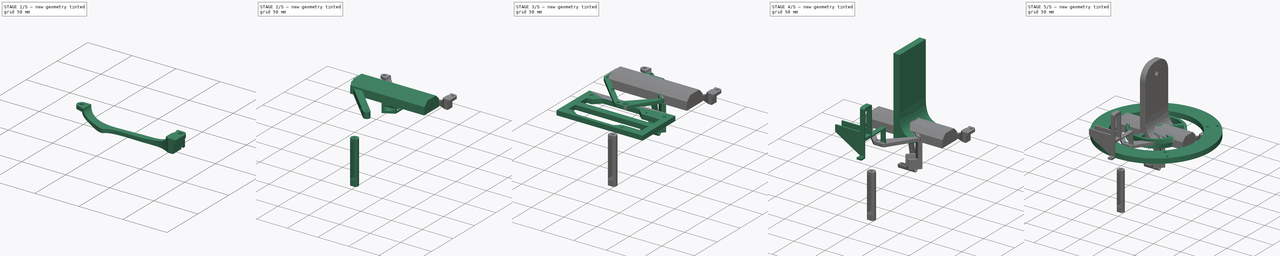
[diagram: build sequence overview — one tinted view per stage of 5, left to right]
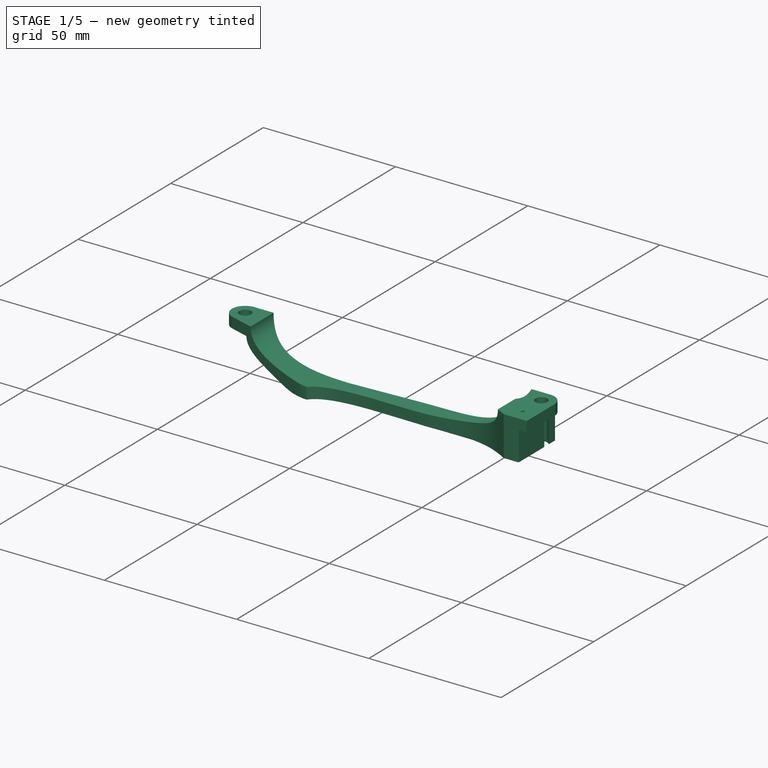
[diagram: stage 1 of 5 — iso view after this stage's code; geometry added in this stage tinted green]
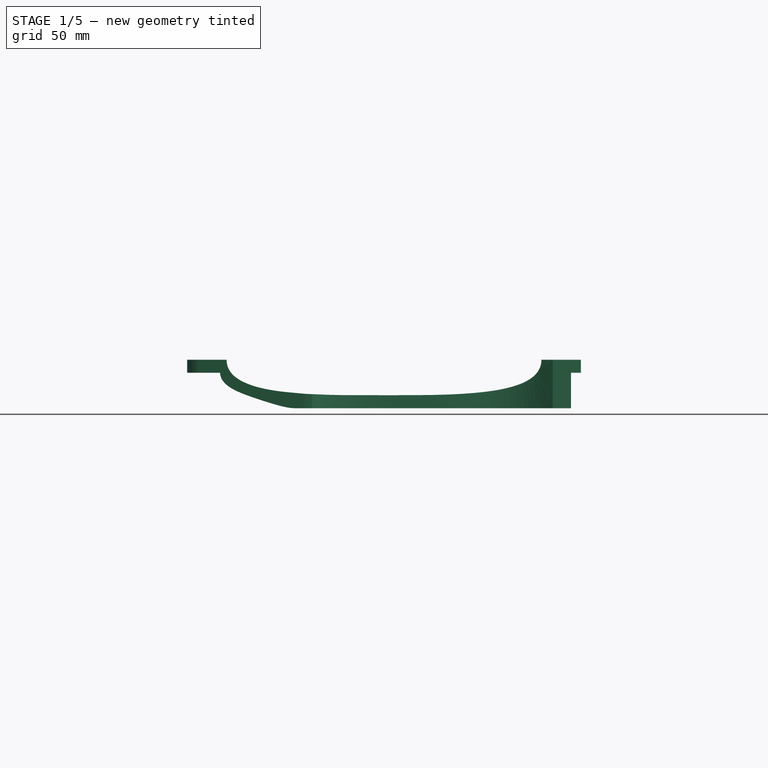
[diagram: stage 1 of 5 — front view after this stage's code; geometry added in this stage tinted green]
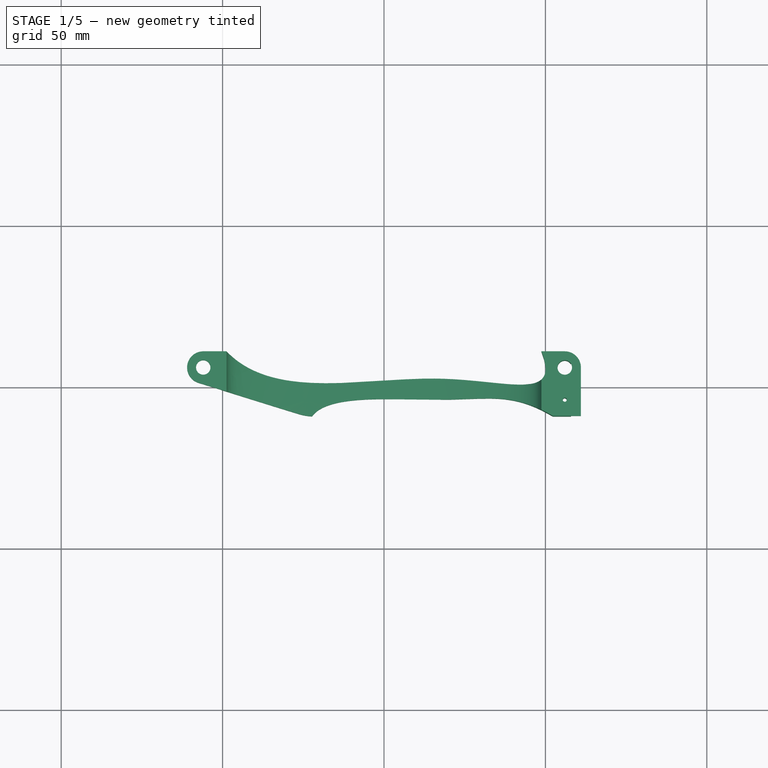
[diagram: stage 1 of 5 — top view after this stage's code; geometry added in this stage tinted green]
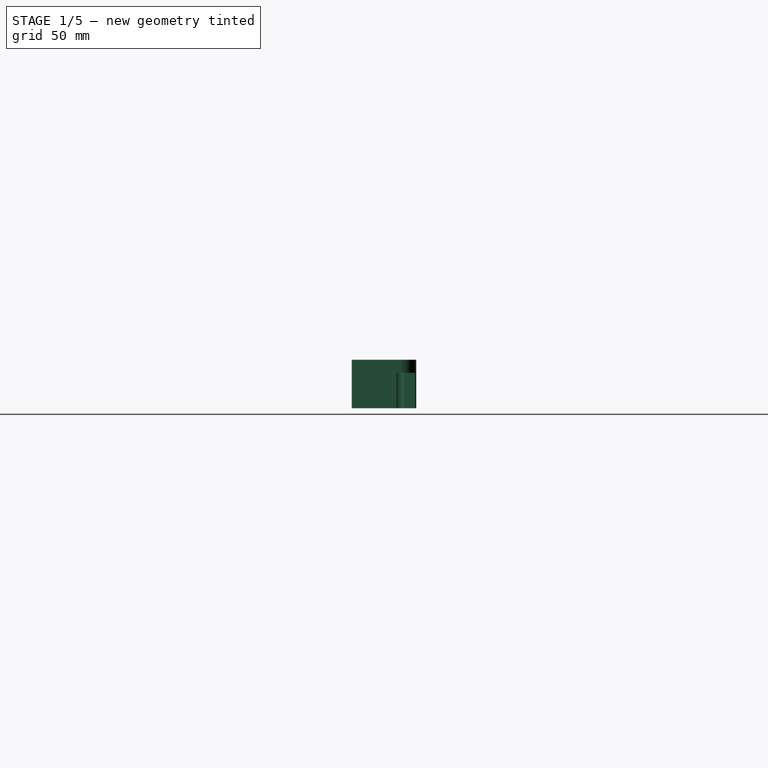
[diagram: stage 1 of 5 — right view after this stage's code; geometry added in this stage tinted green]
FCSTD DOCUMENT  (FreeCAD 1.0R39285 (Git))
Label: tripod_base
License: All rights reserved
LicenseURL: http://en.wikipedia.org/wiki/All_rights_reserved
objects: Sketcher::SketchObject×83, PartDesign::Pocket×52, PartDesign::Pad×25, PartDesign::Body×21, App::Part×15, PartDesign::Fillet×9, PartDesign::SubShapeBinder×8, PartDesign::Chamfer×6, App::Link×5, App::DocumentObjectGroup×5, PartDesign::FeaturePython×4, Spreadsheet::Sheet×3
note: 479 computed .brp shape members not serialized (recipe doc carries the construction recipe); baked Part::Feature solids carry a one-line shape summary decoded from their .brp
EXTERNAL_REF file=tripod_rotary_gears.FCStd obj=Part013
EXTERNAL_REF file=nema17.FCStd obj=nema17_pancake
EXTERNAL_REF file=608-2RS Skate Board Ball Bearing.FCStd obj=Part
EXTERNAL_REF file=tripod_camera_u.FCStd obj=Part

FEATURE [PartDesign::Body] Body006
  AllowCompound = false
  Group = -> [Sketch009,Pad004]
  Origin = -> Origin013
  Tip = -> Pad004
FEATURE [App::Part] Part004  label="Truntable"
  Group = -> [Body006]
  Origin = -> Origin012
FEATURE [Sketcher::SketchObject] Sketch010
  ArcFitTolerance = 1e-06
  AttachmentSupport = -> [XY_Plane015]
  FullyConstrained = true
  MakeInternals = false
  MapMode = 5
  expr: Constraints[31] = (<<head_m>>.tt_inner_dia + 12 * 2) / 2
  expr: Constraints[41] = <<head_m>>.tt_inner_dia
  expr: Constraints[8] = <<head_m>>.tt_distance
  sketch-geometry (59):
    g0: LineSegment [constr] StartX=-56 StartY=56 StartZ=0 EndX=-56 EndY=-56 EndZ=0
    g1: LineSegment [constr] StartX=-56 StartY=-56 StartZ=0 EndX=56 EndY=-56 EndZ=0
    g2: LineSegment [constr] StartX=56 StartY=-56 StartZ=0 EndX=56 EndY=56 EndZ=0
    g3: LineSegment [constr] StartX=56 StartY=56 StartZ=0 EndX=-56 EndY=56 EndZ=0
    g4: Circle CenterX=56 CenterY=56 CenterZ=0 NormalX=0 NormalY=0 NormalZ=1 AngleXU=0 Radius=2.25
    g5: Circle CenterX=-56 CenterY=56 CenterZ=0 NormalX=0 NormalY=0 NormalZ=1 AngleXU=0 Radius=2.25
    g6: Circle CenterX=56 CenterY=-56 CenterZ=0 NormalX=0 NormalY=0 NormalZ=1 AngleXU=0 Radius=2.25
    g7: Circle CenterX=-56 CenterY=-56 CenterZ=0 NormalX=0 NormalY=0 NormalZ=1 AngleXU=0 Radius=2.25
    g8: ArcOfCircle CenterX=0 CenterY=0 CenterZ=0 NormalX=0 NormalY=0 NormalZ=1 AngleXU=0 Radius=85 StartAngle=3.50231 EndAngle=5.92247
    g9: ArcOfCircle CenterX=0 CenterY=0 CenterZ=0 NormalX=0 NormalY=0 NormalZ=1 AngleXU=0 Radius=85 StartAngle=0.360713 EndAngle=2.78088
    g10: LineSegment StartX=-79.5299 StartY=30 StartZ=0 EndX=-100 EndY=30 EndZ=0
    g11: LineSegment StartX=-100 StartY=30 StartZ=0 EndX=-100 EndY=-30 EndZ=0
    g12: LineSegment StartX=-100 StartY=-30 StartZ=0 EndX=-79.5299 EndY=-30 EndZ=0
    g13: LineSegment StartX=79.5299 StartY=-30 StartZ=0 EndX=100 EndY=-30 EndZ=0
    g14: LineSegment StartX=100 StartY=-30 StartZ=0 EndX=100 EndY=30 EndZ=0
    g15: LineSegment StartX=100 StartY=30 StartZ=0 EndX=79.5299 EndY=30 EndZ=0
    g16: Circle CenterX=0 CenterY=65 CenterZ=0 NormalX=0 NormalY=0 NormalZ=1 AngleXU=0 Radius=1.65
    g17: Circle CenterX=-65 CenterY=0 CenterZ=0 NormalX=0 NormalY=0 NormalZ=1 AngleXU=0 Radius=1.65
    g18: Circle CenterX=0 CenterY=-65 CenterZ=0 NormalX=0 NormalY=0 NormalZ=1 AngleXU=0 Radius=1.65
    g19: Circle [constr] CenterX=0 CenterY=0 CenterZ=0 NormalX=0 NormalY=0 NormalZ=1 AngleXU=0 Radius=73
    g20: GeomPoint [constr] X=0 Y=73 Z=0
    g21: ArcOfCircle CenterX=0 CenterY=0 CenterZ=0 NormalX=0 NormalY=0 NormalZ=1 AngleXU=0 Radius=65 StartAngle=3.29559 EndAngle=4.55839
    g22: ArcOfCircle CenterX=-65 CenterY=0 CenterZ=0 NormalX=0 NormalY=0 NormalZ=1 AngleXU=0 Radius=10 StartAngle=4.78939 EndAngle=7.77698
    g23: ArcOfCircle CenterX=0 CenterY=-65 CenterZ=0 NormalX=0 NormalY=0 NormalZ=1 AngleXU=0 Radius=10 StartAngle=0.0769991 EndAngle=3.06459
    g24: ArcOfCircle CenterX=0 CenterY=65 CenterZ=0 NormalX=0 NormalY=0 NormalZ=1 AngleXU=0 Radius=10 StartAngle=3.21859 EndAngle=6.12873
    g25: ArcOfCircle CenterX=0 CenterY=0 CenterZ=0 NormalX=0 NormalY=0 NormalZ=1 AngleXU=0 Radius=65 StartAngle=1.72479 EndAngle=2.98759
    g26: Circle [constr] CenterX=0 CenterY=0 CenterZ=0 NormalX=0 NormalY=0 NormalZ=1 AngleXU=0 Radius=65
    g27: ArcOfCircle [constr] CenterX=0 CenterY=65 CenterZ=0 NormalX=0 NormalY=0 NormalZ=1 AngleXU=0 Radius=100 StartAngle=5.10322 EndAngle=5.45229
    g28: GeomPoint [constr] X=67.4211 Y=-8.85385 Z=0
    g29: ArcOfCircle CenterX=38.0956 CenterY=-27.4593 CenterZ=0 NormalX=0 NormalY=0 NormalZ=1 AngleXU=0 Radius=1.65 StartAngle=1.96163 EndAngle=5.10322
    g30: ArcOfCircle CenterX=0 CenterY=65 CenterZ=0 NormalX=0 NormalY=0 NormalZ=1 AngleXU=0 Radius=98.35 StartAngle=5.10322 EndAngle=5.45229
    g31: ArcOfCircle CenterX=0 CenterY=65 CenterZ=0 NormalX=0 NormalY=0 NormalZ=1 AngleXU=0 Radius=101.65 StartAngle=5.10322 EndAngle=5.45229
    g32: LineSegment [constr] StartX=37.4671 StartY=-25.9337 StartZ=0 EndX=38.7242 EndY=-28.9849 EndZ=0
    g33: ArcOfCircle CenterX=67.4211 CenterY=-8.85385 CenterZ=0 NormalX=0 NormalY=0 NormalZ=1 AngleXU=0 Radius=1.65 StartAngle=5.45228 EndAngle=8.59388
    g34: LineSegment [constr] StartX=66.3087 StartY=-7.63526 StartZ=0 EndX=68.5336 EndY=-10.0724 EndZ=0
    g35: GeomPoint [constr] X=63.8971 Y=-11.9231 Z=0
    g36: GeomPoint X=-56 Y=0 Z=0
    g37: GeomPoint X=0 Y=56 Z=0
    g38: ArcOfCircle CenterX=38.0956 CenterY=-27.4593 CenterZ=0 NormalX=0 NormalY=0 NormalZ=1 AngleXU=0 Radius=4.15 StartAngle=1.96163 EndAngle=3.99935
    g39: ArcOfCircle CenterX=0 CenterY=65 CenterZ=0 NormalX=0 NormalY=0 NormalZ=1 AngleXU=0 Radius=95.85 StartAngle=5.10322 EndAngle=5.54652
    g40: Circle [constr] CenterX=40.75 CenterY=-50.6403 CenterZ=0 NormalX=0 NormalY=0 NormalZ=1 AngleXU=0 Radius=1
    g41: Circle [constr] CenterX=49.1646 CenterY=-42.5187 CenterZ=0 NormalX=0 NormalY=0 NormalZ=1 AngleXU=0 Radius=1
    g42: Circle [constr] CenterX=35.381 CenterY=-30.5983 CenterZ=0 NormalX=0 NormalY=0 NormalZ=1 AngleXU=0 Radius=1
    g43: BSplineCurve PolesCount=3 KnotsCount=2 Degree=2 IsPeriodic=0
    g44: GeomPoint [constr] X=40.75 Y=-50.6403 Z=0
    g45: GeomPoint [constr] X=35.381 Y=-30.5983 Z=0
    g46: LineSegment [constr] StartX=35.381 StartY=-30.5983 StartZ=0 EndX=49.1646 EndY=-42.5187 EndZ=0
    g47: Circle [constr] CenterX=9.88095 CenterY=63.4615 CenterZ=0 NormalX=0 NormalY=0 NormalZ=1 AngleXU=0 Radius=1
    g48: Circle [constr] CenterX=10.9231 CenterY=70.1547 CenterZ=0 NormalX=0 NormalY=0 NormalZ=1 AngleXU=0 Radius=1
    g49: Circle [constr] CenterX=17.7902 CenterY=68.7351 CenterZ=0 NormalX=0 NormalY=0 NormalZ=1 AngleXU=0 Radius=1
    g50: BSplineCurve PolesCount=3 KnotsCount=2 Degree=2 IsPeriodic=0
    g51: GeomPoint [constr] X=9.88095 Y=63.4615 Z=0
    g52: GeomPoint [constr] X=17.7902 Y=68.7351 Z=0
    g53: LineSegment [constr] StartX=9.88095 StartY=63.4615 StartZ=0 EndX=10.9231 EndY=70.1547 EndZ=0
    g54: Circle [constr] CenterX=0 CenterY=0 CenterZ=0 NormalX=0 NormalY=0 NormalZ=1 AngleXU=0 Radius=71
    g55: ArcOfCircle CenterX=0 CenterY=0 CenterZ=0 NormalX=0 NormalY=0 NormalZ=1 AngleXU=0 Radius=71 StartAngle=0.00853504 EndAngle=1.31753
    g56: LineSegment [constr] StartX=67.4211 StartY=-8.85385 StartZ=0 EndX=72.3786 EndY=-9.50486 EndZ=0
    g57: GeomPoint [constr] X=69.0571 Y=-9.06868 Z=0
    g58: ArcOfCircle CenterX=0 CenterY=0 CenterZ=0 NormalX=0 NormalY=0 NormalZ=1 AngleXU=0 Radius=65 StartAngle=4.86639 EndAngle=5.38999
  constraints (147):
    c: Coincident(g0,g1)
    c: Coincident(g1,g2)
    c: Coincident(g2,g3)
    c: Coincident(g3,g0)
    c: Vertical(g0)
    c: Vertical(g2)
    c: Horizontal(g1)
    c: Horizontal(g3)
    c: DistanceX(g3,g3) = 112
    c: Equal(g3,g2)
    c: Coincident(g4,g2)
    c: Coincident(g5,g0)
    c: Coincident(g6,g1)
    c: Coincident(g7,g0)
    c: Equal(g5,g7)
    c: Equal(g6,g4)
    c: Equal(g6,g7)
    c: Diameter(g4) = 4.5
    c: Coincident(g10,g11)
    c: Coincident(g11,g12)
    c: Horizontal(g10)
    c: Horizontal(g12)
    c: Coincident(g10,g9)
    c: Coincident(g13,g14)
    c: Coincident(g14,g15)
    c: Horizontal(g13)
    c: Horizontal(g15)
    c: Coincident(g12,g8)
    c: Coincident(g13,g8)
    c: Coincident(g15,g9)
    c: Equal(g9,g8)
    c: Radius(g9) = 85
    c: Symmetric(g14,g13,g-1)
    c: Symmetric(g11,g10,g-1)
    c: Horizontal(g9,g9)
    c: Equal(g15,g10)
    c: DistanceY(g14,g14) = 60
    c: PointOnObject(g16,g-2)
    c: PointOnObject(g17,g-1)
    c: Equal(g16,g17)
    c: Equal(g16,g18)
    c: Diameter(g19) = 146
    c: PointOnObject(g20,g19)
    c: PointOnObject(g20,g-2)
    c: Coincident(g22,g17)
    c: Coincident(g22,g21)
    c: Coincident(g23,g18)
    c: PointOnObject(g18,g-2)
    c: Coincident(g24,g16)
    c: Equal(g24,g22)
    c: Coincident(g21,g23)
    c: Coincident(g19,g-1)
    c: Coincident(g8,g19)
    c: Coincident(g9,g8)
    c: Radius(g24) = 10
    c: Distance(g16,g20) = 8
    c: Coincident(g21,g8)
    c: Coincident(g25,g8)
    c: Coincident(g25,g24)
    c: Coincident(g25,g22)
    c: Equal(g25,g21)
    c: Equal(g22,g23)
    c: Coincident(g26,g8)
    c: PointOnObject(g16,g26)
    c: PointOnObject(g17,g26)
    c: PointOnObject(g18,g26)
    c: DistanceX(g10,g14) = 200
    c: Radius(g25) = 65
    c: Diameter(g26) = 130
    c: Coincident(g27,g16)
    c: Coincident(g27,g28)
    c: Coincident(g30,g16)
    c: Coincident(g30,g29)
    c: Coincident(g31,g16)
    c: Coincident(g31,g29)
    c: Radius(g29) = 1.65
    c: Coincident(g32,g29)
    c: Coincident(g32,g29)
    c: PointOnObject(g29,g32)
    c: Angle(g32,g27,g29) = 1.5708
    c: Coincident(g33,g30)
    c: Coincident(g33,g31)
    c: PointOnObject(g23,g26)
    c: Coincident(g34,g30)
    c: Coincident(g34,g31)
    c: Coincident(g27,g33)
    c: Coincident(g27,g29)
    c: Angle(g30) = 0.349066
    c: Symmetric(g0,g0,g36)
    c: PointOnObject(g36,g-1)
    c: Symmetric(g3,g3,g37)
    c: PointOnObject(g37,g-2)
    c: PointOnObject(g35,g27)
    c: PointOnObject(g35,g26)
    c: Radius(g27) = 100
    c: Coincident(g38,g27)
    c: Coincident(g39,g16)
    c: Coincident(g39,g38)
    c: Angle(g38,g39,g38) = 3.14159
    c: Weight(g40) = 1
    c: Equal(g40,g41)
    c: Equal(g40,g42)
    c: InternalAlignment(g40,g43)
    c: InternalAlignment(g41,g43)
    c: InternalAlignment(g42,g43)
    c: InternalAlignment(g44,g43)
    c: InternalAlignment(g45,g43)
    c: PointOnObject(g41,g26)
    c: Coincident(g42,g38)
    c: Coincident(g46,g43)
    c: Coincident(g46,g41)
    c: Angle(g46,g38,g38) = 0
    c: Weight(g47) = 1
    c: Equal(g47,g48)
    c: Equal(g47,g49)
    c: InternalAlignment(g47,g50)
    c: InternalAlignment(g48,g50)
    c: InternalAlignment(g49,g50)
    c: InternalAlignment(g51,g50)
    c: InternalAlignment(g52,g50)
    c: Coincident(g47,g24)
    c: Coincident(g53,g50)
    c: Coincident(g53,g48)
    c: Angle(g24,g53,g24) = 0
    c: Distance(g29,g38) = 2.5
    c: Coincident(g54,g8)
    c: Coincident(g55,g8)
    c: Coincident(g55,g50)
    c: Coincident(g55,g39)
    c: Angle(g46,g26,g41) = 1.5708
    c: PointOnObject(g39,g54)
    c: Radius(g55) = 71
    c: PointOnObject(g48,g54)
    c: Angle(g53,g54,g48) = 1.5708
    c: PointOnObject(g16,g34)
    c: Coincident(g56,g27)
    c: PointOnObject(g57,g56)
    c: PointOnObject(g57,g33)
    c: PointOnObject(g56,g19)
    c: Angle(g56,g19,g56) = 1.5708
    c: Distance(g56,g56) = 5
    c: Coincident(g58,g8)
    c: Coincident(g58,g23)
    c: Coincident(g58,g43)
    c: Angle(g58) = 0.523599
    c: Angle(g55) = 1.309
    c: Diameter(g17) = 3.3
FEATURE [Spreadsheet::Sheet] Spreadsheet001  label="head_m"
  cells = A1='turntable; D1='centering thing; G1='Rotory things; A2='distance; B2(tt_distance)=112; D2='mounting dist from edge from for mounting; E2(mountingDistFromEdgeFromForMounting)=9.8; G2='r_axis_height; H2(r_axis_height)=105; A3='inner_dia; B3(tt_inner_dia)=146; D3='ct_radius; E3(ct_radius)=3.8; D4='ct_width; E4(ct_width)=12; D5='ct_depth; E5(ct_depth)=10
FEATURE [PartDesign::Pad] Pad005  label="Center_ring"
  Direction = (0,0,1)
  Length = 8
  Length2 = 10
  Profile = -> Sketch010
  ReferenceAxis = -> Sketch010 [N_Axis]
  Suppressed = false
  Type = 0
FEATURE [PartDesign::Pocket] Pocket013
  BaseFeature = -> Pocket004
  Direction = (0,-1,2e-16)
  Length = 5
  Length2 = 5
  Profile = -> Sketch020
  ReferenceAxis = -> Sketch020 [N_Axis]
  Suppressed = false
  Type = 1
FEATURE [PartDesign::Chamfer] Chamfer
  Angle = 45
  Base = -> Pocket013 [Edge9,Edge14]
  BaseFeature = -> Pocket013
  ChamferType = 1
  FlipDirection = false
  Size = 2.99
  Size2 = 5
  SupportTransform = false
  Suppressed = false
  UseAllEdges = false
FEATURE [Sketcher::SketchObject] Sketch025
  ArcFitTolerance = 1e-06
  FullyConstrained = true
  MakeInternals = false
  MapMode = 5
  Placement = pos=(0,0,8) rot=(0,0,1;0rad)
  sketch-geometry (8):
    g0: LineSegment [constr] StartX=-90.25 StartY=25.5 StartZ=0 EndX=-90.25 EndY=-25.5 EndZ=0
    g1: LineSegment [constr] StartX=-90.25 StartY=-25.5 StartZ=0 EndX=90.25 EndY=-25.5 EndZ=0
    g2: LineSegment [constr] StartX=90.25 StartY=-25.5 StartZ=0 EndX=90.25 EndY=25.5 EndZ=0
    g3: LineSegment [constr] StartX=90.25 StartY=25.5 StartZ=0 EndX=-90.25 EndY=25.5 EndZ=0
    g4: Circle CenterX=-90.25 CenterY=25.5 CenterZ=0 NormalX=0 NormalY=0 NormalZ=1 AngleXU=0 Radius=2.125
    g5: Circle CenterX=-90.25 CenterY=-25.5 CenterZ=0 NormalX=0 NormalY=0 NormalZ=1 AngleXU=0 Radius=2.125
    g6: Circle CenterX=90.25 CenterY=25.5 CenterZ=0 NormalX=0 NormalY=0 NormalZ=1 AngleXU=0 Radius=2.125
    g7: Circle CenterX=90.25 CenterY=-25.5 CenterZ=0 NormalX=0 NormalY=0 NormalZ=1 AngleXU=0 Radius=2.125
  constraints (19):
    c: Coincident(g0,g1)
    c: Coincident(g1,g2)
    c: Coincident(g2,g3)
    c: Coincident(g3,g0)
    c: Vertical(g0)
    c: Vertical(g2)
    c: Horizontal(g1)
    c: Horizontal(g3)
    c: Symmetric(g2,g0,g-1)
    c: DistanceX(g3,g3) = 180.5
    c: Distance(g0,g0) = 51
    c: Coincident(g4,g0)
    c: Coincident(g5,g0)
    c: Coincident(g6,g2)
    c: Coincident(g7,g1)
    c: Equal(g6,g7)
    c: Equal(g5,g4)
    c: Equal(g4,g6)
    c: Diameter(g6) = 4.25
FEATURE [PartDesign::Pocket] Pocket015  label="rotary_screws"
  BaseFeature = -> Chamfer
  Direction = (0,0,-1)
  Length = 5
  Length2 = 5
  Profile = -> Sketch025
  ReferenceAxis = -> Sketch025 [N_Axis]
  Suppressed = false
  Type = 1
FEATURE [PartDesign::Fillet] Fillet
  Base = -> Pocket018 [Edge1513]
  BaseFeature = -> Pocket018
  Radius = 2
  SupportTransform = false
  Suppressed = false
  UseAllEdges = false
FEATURE [PartDesign::Fillet] Fillet001
  Base = -> Fillet [Edge1142,Edge1140,Edge1126,Edge1123,Edge1130,Edge1134,Edge1146,Edge1150,Edge1158,Edge1155]
  BaseFeature = -> Fillet
  Radius = 10
  SupportTransform = false
  Suppressed = false
  UseAllEdges = false
FEATURE [PartDesign::Body] Body010
  AllowCompound = false
  Group = -> [InvoluteGear,Sketch029,Pad010,Sketch030,Pocket018,Fillet,Fillet001]
  Origin = -> Origin020
  Tip = -> Fillet001
FEATURE [App::Part] Part007  label="small_gear"
  Group = -> [Body010]
  Origin = -> Origin019
  Placement = pos=(28,28,-19) rot=(0,0,1;0rad)
FEATURE [Sketcher::SketchObject] Sketch031
  ArcFitTolerance = 1e-06
  AttachmentSupport = -> [XY_Plane021]
  FullyConstrained = false
  MakeInternals = false
  MapMode = 5
  expr: Constraints[1] = <<head_m>>.tt_inner_dia + 10
  sketch-geometry (15):
    g0: Circle [constr] CenterX=0 CenterY=0 CenterZ=0 NormalX=0 NormalY=0 NormalZ=1 AngleXU=0 Radius=78
    g1: Circle CenterX=0 CenterY=65 CenterZ=0 NormalX=0 NormalY=0 NormalZ=1 AngleXU=0 Radius=1.65
    g2: Circle CenterX=56.3544 CenterY=-17.6086 CenterZ=0 NormalX=0 NormalY=0 NormalZ=1 AngleXU=0 Radius=1.65
    g3: ArcOfCircle CenterX=0 CenterY=65 CenterZ=0 NormalX=0 NormalY=0 NormalZ=1 AngleXU=0 Radius=5.5 StartAngle=0.967113 EndAngle=3.28013
    g4: LineSegment [constr] StartX=0 StartY=65 StartZ=0 EndX=3.12223 EndY=69.5279 EndZ=0
    g5: LineSegment [constr] StartX=0 StartY=65 StartZ=0 EndX=-5.4473 EndY=64.2405 EndZ=0
    g6: ArcOfCircle [constr] CenterX=0 CenterY=65 CenterZ=0 NormalX=0 NormalY=0 NormalZ=1 AngleXU=0 Radius=100 StartAngle=5.42153 EndAngle=5.46606
    g7: ArcOfCircle CenterX=30.9761 CenterY=2.94782 CenterZ=0 NormalX=0 NormalY=0 NormalZ=1 AngleXU=0 Radius=39 StartAngle=5.34389 EndAngle=7.2503
    g8: LineSegment StartX=3.12223 StartY=69.5279 StartZ=0 EndX=53.1156 EndY=35.0546 EndZ=0
    g9: LineSegment [constr] StartX=0 StartY=65 StartZ=0 EndX=54 EndY=-28.5307 EndZ=0
    g10: LineSegment [constr] StartX=56.3544 StartY=-17.6086 StartZ=0 EndX=49.8592 EndY=-21.3586 EndZ=0
    g11: LineSegment StartX=-5.4473 StartY=64.2405 StartZ=0 EndX=0.766939 EndY=19.6716 EndZ=0
    g12: LineSegment [constr] StartX=34.6134 StartY=5.04782 StartZ=0 EndX=30.9761 EndY=2.94782 EndZ=0
    g13: LineSegment [constr] StartX=19.8195 StartY=30.6716 StartZ=0 EndX=0.766939 EndY=19.6716 EndZ=0
    g14: LineSegment StartX=0.766939 StartY=19.6716 StartZ=0 EndX=54 EndY=-28.5307 EndZ=0
  constraints (40):
    c: Coincident(g0,g-1)
    c: Diameter(g0) = 156
    c: PointOnObject(g1,g-2)
    c: Diameter(g1) = 3.3
    c: Coincident(g3,g1)
    c: Coincident(g4,g1)
    c: Coincident(g5,g1)
    c: Coincident(g5,g3)
    c: Radius(g3) = 5.5
    c: Coincident(g3,g4)
    c: Coincident(g6,g1)
    c: Radius(g6) = 100
    c: PointOnObject(g2,g6)
    c: DistanceY(g0,g1) = 65
    c: Coincident(g8,g3)
    c: Coincident(g8,g7)
    c: Coincident(g9,g1)
    c: Distance(g9,g9) = 108
    c: Angle(g7,g8,g7) = 3.14159
    c: Coincident(g10,g2)
    c: Distance(g10,g10) = 7.5
    c: Angle(g-2,g9) = 0.523599
    c: Coincident(g11,g3)
    c: Angle(g11,g3,g3) = 0
    c: Coincident(g7,g9)
    c: PointOnObject(g10,g9)
    c: Angle(g10,g9,g10) = 1.5708
    c: PointOnObject(g12,g9)
    c: Angle(g9,g12) = 1.5708
    c: Coincident(g12,g7)
    c: Distance(g12,g12) = 4.2
    c: Radius(g7) = 39
    c: PointOnObject(g13,g9)
    c: Angle(g9,g13) = 1.5708
    c: Coincident(g13,g11)
    c: Coincident(g14,g11)
    c: Coincident(g14,g7)
    c: PointOnObject(g6,g7)
    c: Distance(g11,g11) = 45
    c: Distance(g13,g13) = 22
FEATURE [PartDesign::Pad] Pad011
  Direction = (0,0,1)
  Length = 8.5
  Length2 = 10
  Profile = -> Sketch031
  ReferenceAxis = -> Sketch031 [N_Axis]
  Suppressed = false
  Type = 0
FEATURE [PartDesign::Body] Body013
  AllowCompound = false
  Group = -> [InvoluteGear002,Sketch033,Pocket023]
  Origin = -> Origin025
  Tip = -> Pocket023
FEATURE [App::Part] Part009  label="smallest_gear_stepper"
  Group = -> [Body013]
  Origin = -> Origin024
  Placement = pos=(41,16,-17) rot=(0,0,1;0rad)
FEATURE [Sketcher::SketchObject] Sketch038
  ArcFitTolerance = 1e-06
  FullyConstrained = false
  MakeInternals = false
  MapMode = 5
  Placement = pos=(0,0,0) rot=(1,0,0;3.14159rad)
  sketch-geometry (40):
    g0: LineSegment [constr] StartX=0 StartY=-65 StartZ=0 EndX=63.8433 EndY=-9.3226 EndZ=0
    g1: Circle [constr] CenterX=63.8433 CenterY=-9.3226 CenterZ=0 NormalX=0 NormalY=0 NormalZ=1 AngleXU=0 Radius=21
    g2: Circle [constr] CenterX=39.8226 CenterY=-18.2773 CenterZ=0 NormalX=0 NormalY=0 NormalZ=1 AngleXU=0 Radius=7
    g3: LineSegment [constr] StartX=39.8226 StartY=-18.2773 StartZ=0 EndX=63.8433 EndY=-9.3226 EndZ=0
    g4: GeomPoint [constr] X=46.3817 Y=-15.8321 Z=0
    g5: GeomPoint [constr] X=44.1661 Y=-16.658 Z=0
    g6: LineSegment [constr] StartX=19.8847 StartY=-9.16789 StartZ=0 EndX=48.932 EndY=1.66063 EndZ=0
    g7: LineSegment [constr] StartX=48.932 StartY=1.66063 StartZ=0 EndX=59.7605 EndY=-27.3866 EndZ=0
    g8: LineSegment [constr] StartX=59.7605 StartY=-27.3866 StartZ=0 EndX=30.7132 EndY=-38.2151 EndZ=0
    g9: LineSegment [constr] StartX=30.7132 StartY=-38.2151 StartZ=0 EndX=19.8847 EndY=-9.16789 EndZ=0
    g10: LineSegment [constr] StartX=19.8847 StartY=-9.16789 StartZ=0 EndX=59.7605 EndY=-27.3866 EndZ=0
    g11: GeomPoint [constr] X=39.8226 Y=-18.2773 Z=0
    g12: LineSegment [constr] StartX=48.932 StartY=1.66063 StartZ=0 EndX=30.7132 EndY=-38.2151 EndZ=0
    g13: GeomPoint [constr] X=39.8226 Y=-18.2773 Z=0
    g14: ArcOfCircle CenterX=36.2126 CenterY=-36.165 CenterZ=0 NormalX=0 NormalY=0 NormalZ=1 AngleXU=0 Radius=1.75 StartAngle=5.06922 EndAngle=8.21081
    g15: ArcOfCircle CenterX=26.0282 CenterY=-39.9617 CenterZ=0 NormalX=0 NormalY=0 NormalZ=1 AngleXU=0 Radius=1.75 StartAngle=1.92763 EndAngle=5.06922
    g16: LineSegment StartX=36.8239 StartY=-37.8048 StartZ=0 EndX=26.6395 EndY=-41.6014 EndZ=0
    g17: LineSegment StartX=35.6013 StartY=-34.5253 StartZ=0 EndX=25.4169 EndY=-38.3219 EndZ=0
    g18: ArcOfCircle CenterX=50.5131 CenterY=-30.834 CenterZ=0 NormalX=0 NormalY=0 NormalZ=1 AngleXU=0 Radius=1.75 StartAngle=1.92763 EndAngle=5.06922
    g19: ArcOfCircle CenterX=60.6975 CenterY=-27.0373 CenterZ=0 NormalX=0 NormalY=0 NormalZ=1 AngleXU=0 Radius=1.75 StartAngle=5.06922 EndAngle=8.21081
    g20: LineSegment StartX=49.9018 StartY=-29.1942 StartZ=0 EndX=60.0862 EndY=-25.3976 EndZ=0
    g21: LineSegment StartX=51.1244 StartY=-32.4737 StartZ=0 EndX=61.3088 EndY=-28.6771 EndZ=0
    g22: ArcOfCircle CenterX=25.3841 CenterY=-7.11777 CenterZ=0 NormalX=0 NormalY=0 NormalZ=1 AngleXU=0 Radius=1.75 StartAngle=5.06922 EndAngle=8.21081
    g23: ArcOfCircle CenterX=15.1997 CenterY=-10.9144 CenterZ=0 NormalX=0 NormalY=0 NormalZ=1 AngleXU=0 Radius=1.75 StartAngle=1.92763 EndAngle=5.06922
    g24: LineSegment StartX=25.9954 StartY=-8.75754 StartZ=0 EndX=15.811 EndY=-12.5542 EndZ=0
    g25: LineSegment StartX=24.7728 StartY=-5.47801 StartZ=0 EndX=14.5884 EndY=-9.27466 EndZ=0
    g26: ArcOfCircle CenterX=39.6846 CenterY=-1.78671 CenterZ=0 NormalX=0 NormalY=0 NormalZ=1 AngleXU=0 Radius=1.75 StartAngle=1.92763 EndAngle=5.06922
    g27: ArcOfCircle CenterX=49.869 CenterY=2.00994 CenterZ=0 NormalX=0 NormalY=0 NormalZ=1 AngleXU=0 Radius=1.75 StartAngle=5.06922 EndAngle=8.21081
    g28: LineSegment StartX=39.0733 StartY=-0.146944 StartZ=0 EndX=49.2577 EndY=3.6497 EndZ=0
    g29: LineSegment StartX=40.2958 StartY=-3.42647 StartZ=0 EndX=50.4803 EndY=0.370175 EndZ=0
    g30: LineSegment [constr] StartX=49.869 StartY=2.00994 StartZ=0 EndX=60.6975 EndY=-27.0373 EndZ=0
    g31: LineSegment [constr] StartX=15.1997 StartY=-10.9144 StartZ=0 EndX=26.0282 EndY=-39.9617 EndZ=0
    g32: LineSegment [constr] StartX=25.3841 StartY=-7.11777 StartZ=0 EndX=36.2126 EndY=-36.165 EndZ=0
    g33: LineSegment [constr] StartX=39.6846 StartY=-1.78671 StartZ=0 EndX=50.5131 EndY=-30.834 EndZ=0
    g34: LineSegment [constr] StartX=49.869 StartY=2.00994 StartZ=0 EndX=48.932 EndY=1.66063 EndZ=0
    g35: LineSegment [constr] StartX=22.8972 StartY=-24.5869 StartZ=0 EndX=37.7431 EndY=-19.0525 EndZ=0
    g36: ArcOfCircle CenterX=37.7431 CenterY=-19.0525 CenterZ=0 NormalX=0 NormalY=0 NormalZ=1 AngleXU=0 Radius=11.5 StartAngle=5.06922 EndAngle=8.21081
    g37: ArcOfCircle CenterX=22.8972 CenterY=-24.5869 CenterZ=0 NormalX=0 NormalY=0 NormalZ=1 AngleXU=0 Radius=11.5 StartAngle=1.92763 EndAngle=5.06922
    g38: LineSegment StartX=41.7602 StartY=-29.8281 StartZ=0 EndX=26.9143 EndY=-35.3624 EndZ=0
    g39: LineSegment StartX=33.7261 StartY=-8.27686 StartZ=0 EndX=18.8802 EndY=-13.8113 EndZ=0
  constraints (87):
    c: Coincident(g0,g-3)
    c: Coincident(g0,g-4)
    c: Coincident(g1,g0)
    c: Diameter(g1) = 42
    c: Diameter(g2) = 14
    c: Coincident(g3,g2)
    c: Coincident(g3,g0)
    c: PointOnObject(g4,g2)
    c: PointOnObject(g5,g1)
    c: PointOnObject(g5,g3)
    c: PointOnObject(g4,g3)
    c: Coincident(g6,g7)
    c: Coincident(g7,g8)
    c: Coincident(g8,g9)
    c: Coincident(g9,g6)
    c: Angle(g9,g6) = 1.5708
    c: Equal(g6,g7)
    c: Coincident(g10,g6)
    c: Coincident(g10,g7)
    c: Symmetric(g10,g10,g11)
    c: Coincident(g12,g6)
    c: Coincident(g12,g8)
    c: Symmetric(g12,g12,g13)
    c: Coincident(g13,g11)
    c: Distance(g6,g6) = 31
    c: Coincident(g11,g2)
    c: Angle(g7,g3) = 1.5708
    c: PointOnObject(g8,g0)
    c: Tangent(g14,g16) = 1.5708
    c: Tangent(g14,g17) = -1.5708
    c: Tangent(g15,g16) = 1.5708
    c: Tangent(g15,g17) = -1.5708
    c: Equal(g14,g15)
    c: PointOnObject(g14,g8)
    c: Tangent(g18,g20) = 1.5708
    c: Tangent(g18,g21) = -1.5708
    c: Tangent(g19,g20) = 1.5708
    c: Tangent(g19,g21) = -1.5708
    c: Equal(g18,g19)
    c: PointOnObject(g18,g8)
    c: Tangent(g22,g24) = 1.5708
    c: Tangent(g22,g25) = -1.5708
    c: Tangent(g23,g24) = 1.5708
    c: Tangent(g23,g25) = -1.5708
    c: Equal(g22,g23)
    c: PointOnObject(g22,g6)
    c: Tangent(g26,g28) = 1.5708
    c: Tangent(g26,g29) = -1.5708
    c: Tangent(g27,g28) = 1.5708
    c: Tangent(g27,g29) = -1.5708
    c: Equal(g26,g27)
    c: PointOnObject(g26,g6)
    c: Parallel(g28,g25)
    c: Parallel(g25,g17)
    c: Parallel(g28,g6)
    c: Coincident(g30,g27)
    c: Coincident(g30,g19)
    c: Parallel(g30,g7)
    c: Coincident(g31,g23)
    c: Coincident(g31,g15)
    c: Parallel(g31,g9)
    c: Coincident(g32,g22)
    c: Coincident(g32,g14)
    c: Coincident(g33,g26)
    c: Coincident(g33,g18)
    c: Parallel(g33,g7)
    c: Equal(g22,g26)
    c: Equal(g14,g18)
    c: Equal(g22,g14)
    c: Radius(g18) = 1.75
    c: PointOnObject(g19,g8)
    c: Equal(g28,g25)
    c: Parallel(g32,g9)
    c: Coincident(g34,g27)
    c: Coincident(g34,g6)
    c: Distance(g34,g34) = 1
    c: Distance(g6,g23) = 5
    c: Tangent(g36,g38) = 1.5708
    c: Tangent(g36,g39) = -1.5708
    c: Tangent(g37,g38) = 1.5708
    c: Tangent(g37,g39) = -1.5708
    c: Equal(g36,g37)
    c: Coincident(g36,g35)
    c: Coincident(g37,g35)
    c: PointOnObject(g35,g3)
    c: PointOnObject(g35,g3)
    c: Radius(g36) = 11.5
FEATURE [Sketcher::SketchObject] Sketch039
  ArcFitTolerance = 1e-06
  FullyConstrained = false
  MakeInternals = false
  MapMode = 5
  Placement = pos=(0,0,8.5) rot=(0,0,1;0rad)
  sketch-geometry (5):
    g0: LineSegment StartX=-0.343127 StartY=10.3053 StartZ=0 EndX=16.9454 EndY=56.6813 EndZ=0
    g1: LineSegment StartX=69.1195 StartY=37.2313 StartZ=0 EndX=16.9454 EndY=56.6813 EndZ=0
    g2: LineSegment StartX=69.1195 StartY=37.2313 StartZ=0 EndX=51.831 EndY=-9.14473 EndZ=0
    g3: LineSegment StartX=51.831 StartY=-9.14473 StartZ=0 EndX=-0.343127 EndY=10.3053 EndZ=0
    g4: LineSegment [constr] StartX=7.16697 StartY=30.4509 StartZ=0 EndX=59.3411 EndY=11.0009 EndZ=0
  constraints (13):
    c: Coincident(g1,g0)
    c: Coincident(g1,g2)
    c: Coincident(g2,g3)
    c: Coincident(g3,g0)
    c: PointOnObject(g-4,g4)
    c: PointOnObject(g-3,g4)
    c: Equal(g2,g0)
    c: Angle(g2,g4) = 1.5708
    c: Parallel(g2,g0)
    c: Distance(g4,g0) = 21.5
    c: Distance(g4,g2) = 21.5
    c: PointOnObject(g4,g2)
    c: PointOnObject(g4,g0)
FEATURE [Sketcher::SketchObject] Sketch040
  ArcFitTolerance = 1e-06
  AttachmentSupport = -> [XY_Plane026]
  FullyConstrained = true
  MakeInternals = false
  MapMode = 5
  sketch-geometry (1):
    g0: Circle CenterX=0 CenterY=0 CenterZ=0 NormalX=0 NormalY=0 NormalZ=1 AngleXU=0 Radius=4.5
  constraints (2):
    c: Coincident(g0,g-1)
    c: Diameter(g0) = 9
FEATURE [PartDesign::Pad] Pad014
  Direction = (0,0,1)
  Length = 5
  Length2 = 10
  Profile = -> Sketch040
  ReferenceAxis = -> Sketch040 [N_Axis]
  Suppressed = false
  Type = 0
FEATURE [Sketcher::SketchObject] Sketch041
  ArcFitTolerance = 1e-06
  AttachmentSupport = -> [Pad014]
  FullyConstrained = true
  MakeInternals = false
  MapMode = 5
  Placement = pos=(0,0,5) rot=(0,0,1;0rad)
  sketch-geometry (2):
    g0: Circle CenterX=0 CenterY=0 CenterZ=0 NormalX=0 NormalY=0 NormalZ=1 AngleXU=0 Radius=3.7
    g1: Circle CenterX=0 CenterY=0 CenterZ=0 NormalX=0 NormalY=0 NormalZ=1 AngleXU=0 Radius=1.25
  constraints (4):
    c: Coincident(g0,g-1)
    c: Coincident(g1,g0)
    c: Diameter(g1) = 2.5
    c: Diameter(g0) = 7.4
FEATURE [PartDesign::Pad] Pad015
  BaseFeature = -> Pad014
  Direction = (0,0,1)
  Length = 14
  Length2 = 10
  Profile = -> Sketch041
  ReferenceAxis = -> Sketch041 [N_Axis]
  Suppressed = false
  Type = 0
FEATURE [Sketcher::SketchObject] Sketch042
  ArcFitTolerance = 1e-06
  FullyConstrained = true
  MakeInternals = false
  MapMode = 5
  Placement = pos=(0,0,0) rot=(1,0,0;3.14159rad)
  sketch-geometry (4):
    g0: LineSegment [constr] StartX=0 StartY=-65 StartZ=0 EndX=62.6919 EndY=2.22887 EndZ=0
    g1: LineSegment [constr] StartX=57.9179 StartY=-2.8906 StartZ=0 EndX=64.1345 EndY=-8.68759 EndZ=0
    g2: Circle [constr] CenterX=64.1345 CenterY=-8.68759 CenterZ=0 NormalX=0 NormalY=0 NormalZ=1 AngleXU=0 Radius=21
    g3: Circle CenterX=64.1345 CenterY=-8.68759 CenterZ=0 NormalX=0 NormalY=0 NormalZ=1 AngleXU=0 Radius=4.6
  constraints (10):
    c: Coincident(g0,g-4)
    c: Coincident(g0,g-3)
    c: PointOnObject(g1,g0)
    c: Angle(g0,g1) = 1.5708
    c: Coincident(g2,g1)
    c: Diameter(g2) = 42
    c: Distance(g1,g1) = 8.5
    c: Distance(g1,g0) = 7
    c: Coincident(g3,g1)
    c: Diameter(g3) = 9.2
FEATURE [Sketcher::SketchObject] Sketch043
  ArcFitTolerance = 1e-06
  FullyConstrained = true
  MakeInternals = false
  MapMode = 5
  Placement = pos=(0,0,2) rot=(1,0,0;3.14159rad)
  sketch-geometry (1):
    g0: Circle CenterX=64.1345 CenterY=-8.68759 CenterZ=0 NormalX=0 NormalY=0 NormalZ=1 AngleXU=0 Radius=1.65
  constraints (2):
    c: Coincident(g0,g-3)
    c: Diameter(g0) = 3.3
FEATURE [Sketcher::SketchObject] Sketch044
  ArcFitTolerance = 1e-06
  AttachmentOffset = pos=(0,0,-3) rot=(0,0,1;0rad)
  AttachmentSupport = -> [XZ_Plane026]
  ExternalGeometry = -> [Pad015]
  FullyConstrained = true
  MakeInternals = false
  MapMode = 5
  Placement = pos=(0,3,-7e-16) rot=(1,0,0;1.5708rad)
  sketch-geometry (6):
    g0: LineSegment StartX=-2.875 StartY=1.125 StartZ=0 EndX=2.875 EndY=1.125 EndZ=0
    g1: LineSegment StartX=-2.875 StartY=1.125 StartZ=0 EndX=-2.875 EndY=3.875 EndZ=0
    g2: LineSegment StartX=-2.875 StartY=3.875 StartZ=0 EndX=2.875 EndY=3.875 EndZ=0
    g3: LineSegment StartX=2.875 StartY=3.875 StartZ=0 EndX=2.875 EndY=1.125 EndZ=0
    g4: LineSegment [constr] StartX=-2.875 StartY=3.875 StartZ=0 EndX=-2.875 EndY=5 EndZ=0
    g5: LineSegment [constr] StartX=-2.875 StartY=1.125 StartZ=0 EndX=-2.875 EndY=0 EndZ=0
  constraints (17):
    c: Symmetric(g0,g0,g-2)
    c: DistanceX(g0,g0) = 5.75
    c: Coincident(g1,g0)
    c: Vertical(g1)
    c: Coincident(g2,g1)
    c: Horizontal(g2)
    c: Coincident(g3,g2)
    c: Coincident(g3,g0)
    c: Vertical(g3)
    c: DistanceY(g3,g3) = 2.75
    c: Coincident(g4,g1)
    c: Vertical(g4)
    c: Horizontal(g4,g-3)
    c: Coincident(g5,g0)
    c: Horizontal(g5,g-4)
    c: Vertical(g5)
    c: Equal(g5,g4)
FEATURE [PartDesign::Pocket] Pocket028
  BaseFeature = -> Pad015
  Direction = (0,1,-2e-16)
  Length = 9
  Length2 = 5
  Profile = -> Sketch044
  ReferenceAxis = -> Sketch044 [N_Axis]
  Reversed = true
  Suppressed = false
  Type = 0
FEATURE [Sketcher::SketchObject] Sketch045
  ArcFitTolerance = 1e-06
  AttachmentSupport = -> [Pocket028]
  FullyConstrained = true
  MakeInternals = false
  MapMode = 5
  Placement = pos=(0,0,0) rot=(1,0,0;3.14159rad)
  sketch-geometry (1):
    g0: Circle CenterX=0 CenterY=0 CenterZ=0 NormalX=0 NormalY=0 NormalZ=1 AngleXU=0 Radius=1.65
  constraints (2):
    c: Coincident(g0,g-1)
    c: Diameter(g0) = 3.3
FEATURE [PartDesign::Pocket] Pocket029
  BaseFeature = -> Pocket028
  Direction = (0,0,1)
  Length = 10
  Length2 = 5
  Profile = -> Sketch045
  ReferenceAxis = -> Sketch045 [N_Axis]
  Suppressed = false
  Type = 0
FEATURE [PartDesign::Body] Body014  label="stepper_mount_gear_axis"
  AllowCompound = false
  Group = -> [Sketch040,Pad014,Sketch041,Pad015,Sketch044,Pocket028,Sketch045,Pocket029]
  Origin = -> Origin026
  Placement = pos=(65,4,-7) rot=(0,1,0;3.14159rad)
  Tip = -> Pocket029
FEATURE [PartDesign::Chamfer] Chamfer001
  Angle = 45
  Base = -> Pocket015 [Edge87,Edge55,Edge56]
  BaseFeature = -> Pocket015
  ChamferType = 0
  FlipDirection = false
  Size = 2
  Size2 = 1
  SupportTransform = false
  Suppressed = false
  UseAllEdges = false
FEATURE [Sketcher::SketchObject] Sketch046
  ArcFitTolerance = 1e-06
  AttachmentSupport = -> [Pad011]
  ExternalGeometry = -> [Pad011]
  FullyConstrained = true
  MakeInternals = false
  MapMode = 5
  Placement = pos=(0,0,0) rot=(1,0,0;3.14159rad)
  sketch-geometry (7):
    g0: Circle CenterX=65.2261 CenterY=-2.96986 CenterZ=0 NormalX=0 NormalY=0 NormalZ=1 AngleXU=0 Radius=4.5
    g1: GeomPoint [constr] X=69.7261 Y=-2.97275 Z=0
    g2: GeomPoint [constr] X=69.9761 Y=-2.97292 Z=0
    g3: LineSegment [constr] StartX=69.7261 StartY=-2.97275 StartZ=0 EndX=69.9761 EndY=-2.97292 EndZ=0
    g4: LineSegment [constr] StartX=65.2261 StartY=-2.96986 StartZ=0 EndX=49.5918 EndY=7.69559 EndZ=0
    g5: LineSegment [constr] StartX=0 StartY=-65 StartZ=0 EndX=56.3544 EndY=17.6086 EndZ=0
    g6: LineSegment [constr] StartX=69.7261 StartY=-2.97275 StartZ=0 EndX=65.2261 EndY=-2.96986 EndZ=0
  constraints (16):
    c: Diameter(g0) = 9
    c: PointOnObject(g1,g0)
    c: Coincident(g3,g1)
    c: Coincident(g3,g2)
    c: PointOnObject(g0,g3)
    c: Distance(g3,g3) = 0.25
    c: Coincident(g4,g0)
    c: Coincident(g5,g-4)
    c: Coincident(g5,g-3)
    c: PointOnObject(g4,g5)
    c: Angle(g5,g4,g4) = 1.5708
    c: PointOnObject(g2,g-5)
    c: Coincident(g6,g1)
    c: Coincident(g6,g0)
    c: Distance(g4,g5) = 12
    c: Angle(g3,g-5,g2) = 1.5708
FEATURE [PartDesign::Pocket] Pocket030
  BaseFeature = -> Pad011
  Direction = (0,0,1)
  Length = 3
  Length2 = 5
  Profile = -> Sketch046
  ReferenceAxis = -> Sketch046 [N_Axis]
  Suppressed = false
  Type = 0
FEATURE [Sketcher::SketchObject] Sketch047
  ArcFitTolerance = 1e-06
  AttachmentSupport = -> [Pocket030]
  ExternalGeometry = -> [Pocket030]
  FullyConstrained = true
  MakeInternals = false
  MapMode = 5
  Placement = pos=(0,0,0) rot=(1,0,0;3.14159rad)
  sketch-geometry (1):
    g0: Circle CenterX=65.2261 CenterY=-2.96986 CenterZ=0 NormalX=0 NormalY=0 NormalZ=1 AngleXU=0 Radius=1.65
  constraints (2):
    c: Coincident(g0,g-3)
    c: Diameter(g0) = 3.3
FEATURE [PartDesign::Pocket] Pocket031
  BaseFeature = -> Pocket030
  Direction = (0,0,1)
  Length = 5
  Length2 = 5
  Profile = -> Sketch047
  ReferenceAxis = -> Sketch047 [N_Axis]
  Suppressed = false
  Type = 1
FEATURE [Sketcher::SketchObject] Sketch048
  ArcFitTolerance = 1e-06
  AttachmentSupport = -> [Pocket031]
  ExternalGeometry = -> [Pocket031]
  FullyConstrained = true
  MakeInternals = false
  MapMode = 5
  Placement = pos=(0,0,0) rot=(1,0,0;3.14159rad)
  sketch-geometry (33):
    g0: Circle [constr] CenterX=65.2261 CenterY=-2.96986 CenterZ=0 NormalX=0 NormalY=0 NormalZ=1 AngleXU=0 Radius=21
    g1: LineSegment [constr] StartX=15.5736 StartY=-15.7767 StartZ=0 EndX=40.145 EndY=3.12414 EndZ=0
    g2: LineSegment [constr] StartX=40.145 StartY=3.12414 StartZ=0 EndX=59.0459 EndY=-21.4473 EndZ=0
    g3: LineSegment [constr] StartX=59.0459 StartY=-21.4473 StartZ=0 EndX=34.4744 EndY=-40.3482 EndZ=0
    g4: LineSegment [constr] StartX=34.4744 StartY=-40.3482 StartZ=0 EndX=15.5736 EndY=-15.7767 EndZ=0
    g5: LineSegment [constr] StartX=15.5736 StartY=-15.7767 StartZ=0 EndX=59.0459 EndY=-21.4473 EndZ=0
    g6: LineSegment [constr] StartX=40.145 StartY=3.12414 StartZ=0 EndX=34.4744 EndY=-40.3482 EndZ=0
    g7: GeomPoint [constr] X=37.3097 Y=-18.612 Z=0
    g8: GeomPoint [constr] X=37.3097 Y=-18.612 Z=0
    g9: LineSegment [constr] StartX=25.024 StartY=-28.0625 StartZ=0 EndX=49.5955 EndY=-9.1616 EndZ=0
    g10: ArcOfCircle CenterX=33.3466 CenterY=-21.6606 CenterZ=0 NormalX=0 NormalY=0 NormalZ=1 AngleXU=0 Radius=11.5 StartAngle=2.22649 EndAngle=5.36808
    g11: ArcOfCircle CenterX=41.2729 CenterY=-15.5635 CenterZ=0 NormalX=0 NormalY=0 NormalZ=1 AngleXU=0 Radius=11.5 StartAngle=5.36808 EndAngle=8.50967
    g12: LineSegment StartX=26.335 StartY=-12.5453 StartZ=0 EndX=34.2613 EndY=-6.44828 EndZ=0
    g13: LineSegment StartX=40.3582 StartY=-30.7758 StartZ=0 EndX=48.2845 EndY=-24.6787 EndZ=0
    g14: ArcOfCircle CenterX=44.1082 CenterY=6.17267 CenterZ=0 NormalX=0 NormalY=0 NormalZ=1 AngleXU=0 Radius=1.75 StartAngle=5.36808 EndAngle=8.50967
    g15: ArcOfCircle CenterX=36.1819 CenterY=0.0756145 CenterZ=0 NormalX=0 NormalY=0 NormalZ=1 AngleXU=0 Radius=1.75 StartAngle=2.22649 EndAngle=5.36808
    g16: LineSegment StartX=45.1752 StartY=4.78557 StartZ=0 EndX=37.2489 EndY=-1.31148 EndZ=0
    g17: LineSegment StartX=43.0412 StartY=7.55977 StartZ=0 EndX=35.1149 EndY=1.46271 EndZ=0
    g18: ArcOfCircle CenterX=19.5367 CenterY=-12.7282 CenterZ=0 NormalX=0 NormalY=0 NormalZ=1 AngleXU=0 Radius=1.75 StartAngle=5.36808 EndAngle=8.50967
    g19: ArcOfCircle CenterX=11.6104 CenterY=-18.8252 CenterZ=0 NormalX=0 NormalY=0 NormalZ=1 AngleXU=0 Radius=1.75 StartAngle=2.22649 EndAngle=5.36808
    g20: LineSegment StartX=20.6037 StartY=-14.1153 StartZ=0 EndX=12.6774 EndY=-20.2123 EndZ=0
    g21: LineSegment StartX=18.4697 StartY=-11.3411 StartZ=0 EndX=10.5434 EndY=-17.4382 EndZ=0
    g22: ArcOfCircle CenterX=55.0828 CenterY=-24.4959 CenterZ=0 NormalX=0 NormalY=0 NormalZ=1 AngleXU=0 Radius=1.75 StartAngle=2.22649 EndAngle=5.36808
    g23: ArcOfCircle CenterX=63.0091 CenterY=-18.3988 CenterZ=0 NormalX=0 NormalY=0 NormalZ=1 AngleXU=0 Radius=1.75 StartAngle=5.36808 EndAngle=8.50967
    g24: LineSegment StartX=54.0158 StartY=-23.1088 StartZ=0 EndX=61.9421 EndY=-17.0117 EndZ=0
    g25: LineSegment StartX=56.1498 StartY=-25.883 StartZ=0 EndX=64.076 EndY=-19.7859 EndZ=0
    g26: ArcOfCircle CenterX=38.4376 CenterY=-37.2997 CenterZ=0 NormalX=0 NormalY=0 NormalZ=1 AngleXU=0 Radius=1.75 StartAngle=5.36808 EndAngle=8.50967
    g27: ArcOfCircle CenterX=30.5113 CenterY=-43.3967 CenterZ=0 NormalX=0 NormalY=0 NormalZ=1 AngleXU=0 Radius=1.75 StartAngle=2.22649 EndAngle=5.36808
    g28: LineSegment StartX=39.5046 StartY=-38.6868 StartZ=0 EndX=31.5783 EndY=-44.7838 EndZ=0
    g29: LineSegment StartX=37.3706 StartY=-35.9126 StartZ=0 EndX=29.4443 EndY=-42.0096 EndZ=0
    g30: LineSegment [constr] StartX=0 StartY=-65 StartZ=0 EndX=56.3544 EndY=17.6086 EndZ=0
    g31: Circle [constr] CenterX=41.2729 CenterY=-15.5635 CenterZ=0 NormalX=0 NormalY=0 NormalZ=1 AngleXU=0 Radius=8.5
    g32: LineSegment [constr] StartX=46.7602 StartY=-30.8978 StartZ=0 EndX=49.199 EndY=-34.0683 EndZ=0
  constraints (73):
    c: Coincident(g0,g-3)
    c: Diameter(g0) = 42
    c: Coincident(g1,g2)
    c: Coincident(g2,g3)
    c: Coincident(g3,g4)
    c: Coincident(g4,g1)
    c: Coincident(g5,g1)
    c: Coincident(g5,g2)
    c: Coincident(g6,g1)
    c: Coincident(g6,g3)
    c: Symmetric(g6,g6,g7)
    c: Symmetric(g5,g5,g8)
    c: Coincident(g8,g7)
    c: Distance(g1,g1) = 31
    c: Equal(g1,g2)
    c: Equal(g6,g5)
    c: Symmetric(g4,g4,g9)
    c: Symmetric(g2,g2,g9)
    c: Tangent(g10,g12) = 1.5708
    c: Tangent(g10,g13) = -1.5708
    c: Tangent(g11,g12) = 1.5708
    c: Tangent(g11,g13) = -1.5708
    c: Equal(g10,g11)
    c: PointOnObject(g10,g9)
    c: Symmetric(g11,g10,g7)
    c: Radius(g11) = 11.5
    c: Tangent(g14,g16) = 1.5708
    c: Tangent(g14,g17) = -1.5708
    c: Tangent(g15,g16) = 1.5708
    c: Tangent(g15,g17) = -1.5708
    c: Equal(g14,g15)
    c: PointOnObject(g14,g1)
    c: Tangent(g18,g20) = 1.5708
    c: Tangent(g18,g21) = -1.5708
    c: Tangent(g19,g20) = 1.5708
    c: Tangent(g19,g21) = -1.5708
    c: Equal(g18,g19)
    c: PointOnObject(g18,g1)
    c: Symmetric(g14,g15,g1)
    c: Equal(g12,g17)
    c: Symmetric(g19,g18,g1)
    c: Equal(g21,g17)
    c: Equal(g18,g15)
    c: Tangent(g22,g24) = 1.5708
    c: Tangent(g22,g25) = -1.5708
    c: Tangent(g23,g24) = 1.5708
    c: Tangent(g23,g25) = -1.5708
    c: Equal(g22,g23)
    c: PointOnObject(g22,g3)
    c: Tangent(g26,g28) = 1.5708
    c: Tangent(g26,g29) = -1.5708
    c: Tangent(g27,g28) = 1.5708
    c: Tangent(g27,g29) = -1.5708
    c: Equal(g26,g27)
    c: PointOnObject(g26,g3)
    c: Symmetric(g23,g22,g2)
    c: Symmetric(g26,g27,g3)
    c: Equal(g20,g29)
    c: Equal(g29,g24)
    c: Equal(g26,g18)
    c: Equal(g26,g22)
    c: Radius(g19) = 1.75
    c: Coincident(g30,g-4)
    c: Coincident(g30,g-5)
    c: Coincident(g31,g11)
    c: Diameter(g31) = 17
    c: Distance(g17,g17) = 10
    c: Parallel(g3,g-6)
    c: Symmetric(g3,g3,g32)
    c: PointOnObject(g32,g-6)
    c: Angle(g3,g32) = 1.5708
    c: Distance(g32,g32) = 4
    c: Distance(g7,g0) = 32
FEATURE [PartDesign::Pocket] Pocket032
  BaseFeature = -> Pocket031
  Direction = (0,0,1)
  Length = 5
  Length2 = 5
  Profile = -> Sketch048
  ReferenceAxis = -> Sketch048 [N_Axis]
  Suppressed = false
  Type = 1
FEATURE [Sketcher::SketchObject] Sketch049
  ArcFitTolerance = 1e-06
  AttachmentSupport = -> [Pocket032]
  FullyConstrained = false
  MakeInternals = false
  MapMode = 5
  Placement = pos=(0,0,8.5) rot=(0,0,1;0rad)
  sketch-geometry (8):
    g0: LineSegment StartX=1.98614 StartY=19.1062 StartZ=0 EndX=42.6351 EndY=-13.9841 EndZ=0
    g1: LineSegment StartX=42.6351 StartY=-13.9841 StartZ=0 EndX=69.7817 EndY=19.3635 EndZ=0
    g2: LineSegment StartX=69.7817 StartY=19.3635 StartZ=0 EndX=29.1328 EndY=52.4538 EndZ=0
    g3: LineSegment StartX=29.1328 StartY=52.4538 StartZ=0 EndX=1.98614 EndY=19.1062 EndZ=0
    g4: LineSegment [constr] StartX=1.98614 StartY=19.1062 StartZ=0 EndX=69.7817 EndY=19.3635 EndZ=0
    g5: LineSegment [constr] StartX=29.1328 StartY=52.4538 StartZ=0 EndX=42.6351 EndY=-13.9841 EndZ=0
    g6: GeomPoint [constr] X=35.8839 Y=19.2349 Z=0
    g7: GeomPoint [constr] X=35.8839 Y=19.2349 Z=0
  constraints (18):
    c: Coincident(g0,g1)
    c: Coincident(g1,g2)
    c: Coincident(g2,g3)
    c: Coincident(g3,g0)
    c: Coincident(g4,g0)
    c: Coincident(g4,g1)
    c: PointOnObject(g-4,g4)
    c: PointOnObject(g-3,g4)
    c: Coincident(g5,g2)
    c: Coincident(g5,g0)
    c: PointOnObject(g6,g4)
    c: PointOnObject(g7,g5)
    c: Equal(g4,g5)
    c: PointOnObject(g6,g5)
    c: PointOnObject(g7,g4)
    c: Equal(g3,g1)
    c: Equal(g2,g0)
    c: Distance(g3,g3) = 43
FEATURE [PartDesign::Pocket] Pocket033
  BaseFeature = -> Pocket032
  Direction = (0,0,-1)
  Length = 5
  Length2 = 5
  Profile = -> Sketch049
  ReferenceAxis = -> Sketch049 [N_Axis]
  Suppressed = false
  Type = 0
FEATURE [PartDesign::Body] Body011  label="stepper_mount"
  AllowCompound = false
  Group = -> [Sketch031,Pad011,Sketch038,Sketch039,Sketch042,Sketch043,Sketch046,Pocket030,Sketch047,Pocket031,Sketch048,Pocket032,Sketch049,Pocket033]
  Origin = -> Origin021
  Placement = pos=(0,0,-9) rot=(0,0,1;0rad)
  Tip = -> Pocket033
FEATURE [PartDesign::Chamfer] Chamfer002
  Angle = 45
  Base = -> Chamfer001 [Edge120,Edge158,Edge122,Edge98]
  BaseFeature = -> Chamfer001
  ChamferType = 0
  FlipDirection = false
  Size = 2
  Size2 = 1
  SupportTransform = false
  Suppressed = false
  UseAllEdges = false
FEATURE [PartDesign::Body] Body027  label="usbhub"
  AllowCompound = false
  Group = -> [Sketch109,Pad035,Sketch110,Pocket066]
  Origin = -> Origin046
  Tip = -> Pocket066
FEATURE [App::Part] Part017  label="new_usb_hub"
  Group = -> [Body027]
  Origin = -> Origin047
  Placement = pos=(0,49,-34) rot=(1,0,0;3.14159rad)
FEATURE [PartDesign::Pad] Pad036
  Direction = (0,0,-1)
  Length = 15
  Length2 = 10
  Placement = pos=(0,0,-9) rot=(0,0,1;0rad)
  Profile = -> Sketch105
  ReferenceAxis = -> Sketch105 [N_Axis]
  Suppressed = false
  Type = 0
FEATURE [Sketcher::SketchObject] Sketch111
  ArcFitTolerance = 1e-06
  AttachmentSupport = -> [Pad036]
  ExternalGeometry = -> [Pad036]
  FullyConstrained = false
  MakeInternals = false
  MapMode = 5
  Placement = pos=(0,61,-9) rot=(0,0.707107,0.707107;3.14159rad)
  sketch-geometry (26):
    g0: LineSegment StartX=-48.7673 StartY=9 StartZ=0 EndX=48.7673 EndY=9 EndZ=0
    g1-g5: Circle [constr] x5 (B-spline internal-alignment scaffolding for g6; pole/knot coordinates omitted)
    g6: BSplineCurve PolesCount=5 KnotsCount=3 Degree=3 IsPeriodic=0
    g7: GeomPoint [constr] X=-48.7673 Y=9 Z=0
    g8: GeomPoint [constr] X=0 Y=-2 Z=0
    g9: GeomPoint [constr] X=48.7673 Y=9 Z=0
    g10: LineSegment StartX=61 StartY=-6 StartZ=0 EndX=61 EndY=5 EndZ=0
    g11: LineSegment StartX=61 StartY=5 StartZ=0 EndX=50.7673 EndY=5 EndZ=0
    g12: LineSegment StartX=61 StartY=-6 StartZ=0 EndX=27.625 EndY=-6 EndZ=0
    g13: LineSegment StartX=-61 StartY=-6 StartZ=0 EndX=-57.9232 EndY=-6 EndZ=0
    g14: LineSegment StartX=-61 StartY=-6 StartZ=0 EndX=-61 EndY=5 EndZ=0
    g15: LineSegment StartX=-61 StartY=5 StartZ=0 EndX=-57.9232 EndY=5 EndZ=0
    g16-g20: Circle [constr] x5 (B-spline internal-alignment scaffolding for g21; pole/knot coordinates omitted)
    g21: BSplineCurve PolesCount=5 KnotsCount=3 Degree=3 IsPeriodic=0
    g22: GeomPoint [constr] X=27.625 Y=-6 Z=0
    g23: GeomPoint [constr] X=39.6768 Y=-2.95477 Z=0
    g24: GeomPoint [constr] X=50.7673 Y=5 Z=0
    g25: LineSegment StartX=-57.9232 StartY=-6 StartZ=0 EndX=-57.9232 EndY=5 EndZ=0
  constraints (45):
    c: Horizontal(g0,g-4)
    c: Symmetric(g0,g0,g-2)
    c: DistanceX(g0,g-4) = 5
    c: Weight(g1) = 1
    c: Equal(g1, g2-g5) x4
    c: InternalAlignment(g1-g5 -> g6) x5
    c: InternalAlignment(g7,g6)
    c: InternalAlignment(g8,g6)
    c: InternalAlignment(g9,g6)
    c: Coincident(g1,g0)
    c: PointOnObject(g3,g-2)
    c: Coincident(g5,g0)
    c: Vertical(g6,g4)
    c: Symmetric(g2,g4,g-2)
    c: DistanceY(g-5,g8) = 4
    c: Horizontal(g4,g8)
    c: Coincident(g-7,g10)
    c: Vertical(g10)
    c: Coincident(g10,g11)
    c: Coincident(g10,g12)
    c: Horizontal(g12)
    c: Coincident(g-8,g13)
    c: Horizontal(g13)
    c: Coincident(g13,g14)
    c: Vertical(g14)
    c: Coincident(g14,g15)
    c: Horizontal(g15)
    c: Horizontal(g11)
    c: DistanceY(g10,g-4) = 4
    c: DistanceX(g-4,g11) = -3
    c: DistanceX(g-5,g12) = 3
    c: Weight(g16) = 1
    c: Equal(g16, g17-g20) x4
    c: InternalAlignment(g16-g20 -> g21) x5
    c: InternalAlignment(g22,g21)
    c: InternalAlignment(g23,g21)
    c: InternalAlignment(g24,g21)
    c: Coincident(g16,g12)
    c: PointOnObject(g17,g12)
    c: Coincident(g20,g11)
    c: Vertical(g19,g21)
    c: Coincident(g25,g13)
    c: Coincident(g25,g15)
    c: Horizontal(g15,g21)
    c: Vertical(g25)
FEATURE [PartDesign::Pocket] Pocket067
  BaseFeature = -> Pad036
  Direction = (0,-1,2e-16)
  Length = 5
  Length2 = 5
  Placement = pos=(0,0,-9) rot=(0,0,1;0rad)
  Profile = -> Sketch111
  ReferenceAxis = -> Sketch111 [N_Axis]
  Suppressed = false
  Type = 1
FEATURE [Sketcher::SketchObject] Sketch112
  ArcFitTolerance = 1e-06
  AttachmentSupport = -> [Pocket067]
  ExternalGeometry = -> [Pocket067]
  FullyConstrained = false
  MakeInternals = false
  MapMode = 5
  Placement = pos=(0,0,-15) rot=(1,0,0;3.14159rad)
  sketch-geometry (20):
    g0: LineSegment StartX=-48.7673 StartY=-61 StartZ=0 EndX=48.7673 EndY=-61 EndZ=0
    g1-g5: Circle [constr] x5 (B-spline internal-alignment scaffolding for g6; pole/knot coordinates omitted)
    g6: BSplineCurve PolesCount=5 KnotsCount=3 Degree=3 IsPeriodic=0
    g7: GeomPoint [constr] X=-22.3038 Y=-41 Z=0
    g8: GeomPoint [constr] X=18.1075 Y=-46.1752 Z=0
    g9: GeomPoint [constr] X=52.2839 Y=-41 Z=0
    g10-g14: Circle [constr] x5 (B-spline internal-alignment scaffolding for g15; pole/knot coordinates omitted)
    g15: BSplineCurve PolesCount=5 KnotsCount=3 Degree=3 IsPeriodic=0
    g16: GeomPoint [constr] X=-48.7673 Y=-61 Z=0
    g17: GeomPoint [constr] X=15.8447 Y=-52.7433 Z=0
    g18: GeomPoint [constr] X=48.7673 Y=-61 Z=0
    g19: LineSegment StartX=-22.3038 StartY=-41 StartZ=0 EndX=52.2839 EndY=-41 EndZ=0
  constraints (20):
    c: Coincident(g-4,g0)
    c: Coincident(g0,g-3)
    c: Weight(g1) = 1
    c: Equal(g1, g2-g5) x4
    c: InternalAlignment(g1-g5 -> g6) x5
    c: InternalAlignment(g7,g6)
    c: InternalAlignment(g8,g6)
    c: InternalAlignment(g9,g6)
    c: Weight(g10) = 1
    c: Equal(g10, g11-g14) x4
    c: InternalAlignment(g10-g14 -> g15) x5
    c: InternalAlignment(g16,g15)
    c: InternalAlignment(g17,g15)
    c: InternalAlignment(g18,g15)
    c: Coincident(g10,g0)
    c: Coincident(g15,g0)
    c: Coincident(g19,g6)
    c: Horizontal(g19)
    c: Coincident(g6,g19)
    c: Horizontal(g6,g-3)
FEATURE [PartDesign::Pocket] Pocket068
  BaseFeature = -> Pocket067
  Direction = (0,0,1)
  Length = 5
  Length2 = 5
  Placement = pos=(0,0,-9) rot=(0,0,1;0rad)
  Profile = -> Sketch112
  ReferenceAxis = -> Sketch112 [N_Axis]
  Suppressed = false
  Type = 1
FEATURE [PartDesign::Chamfer] Chamfer
  Angle = 45
  Base = -> Pocket003 [Edge56,Edge54,Edge57,Edge55]
  BaseFeature = -> Pocket003
  ChamferType = 0
  FlipDirection = false
  Placement = pos=(0,0,0) rot=(1,0,0;1.5708rad)
  Size = 4
  Size2 = 1
  SupportTransform = false
  Suppressed = false
  UseAllEdges = false
FEATURE [Sketcher::SketchObject] Sketch005
  ArcFitTolerance = 1e-06
  AttachmentSupport = -> [Chamfer]
  ExternalGeometry = -> [Chamfer]
  FullyConstrained = true
  MakeInternals = false
  MapMode = 5
  Placement = pos=(92,0,0) rot=(0.707107,0,0.707107;3.14159rad)
  sketch-geometry (2):
    g0: Circle CenterX=88 CenterY=0 CenterZ=0 NormalX=0 NormalY=0 NormalZ=1 AngleXU=0 Radius=4
    g1: Circle CenterX=88 CenterY=0 CenterZ=0 NormalX=0 NormalY=0 NormalZ=1 AngleXU=0 Radius=5
  constraints (4):
    c: Coincident(g0,g-3)
    c: Equal(g0,g-3)
    c: Coincident(g1,g0)
    c: Diameter(g1) = 10
FEATURE [PartDesign::Pad] Pad001
  BaseFeature = -> Chamfer
  Direction = (1,0,-2e-16)
  Length = 2
  Length2 = 10
  Placement = pos=(0,0,0) rot=(1,0,0;1.5708rad)
  Profile = -> Sketch005
  ReferenceAxis = -> Sketch005 [N_Axis]
  Suppressed = false
  Type = 0
FEATURE [Sketcher::SketchObject] Sketch006
  ArcFitTolerance = 1e-06
  AttachmentSupport = -> [Pad001]
  ExternalGeometry = -> [Pad001]
  FullyConstrained = true
  MakeInternals = false
  MapMode = 5
  Placement = pos=(-75,0,0) rot=(0.707107,0,-0.707107;3.14159rad)
  sketch-geometry (11):
    g0: LineSegment [constr] StartX=-98 StartY=0 StartZ=0 EndX=-91.0902 EndY=-9.51057 EndZ=0
    g1: LineSegment [constr] StartX=-91.0902 StartY=-9.51057 StartZ=0 EndX=-79.9098 EndY=-5.87785 EndZ=0
    g2: LineSegment [constr] StartX=-79.9098 StartY=-5.87785 StartZ=0 EndX=-79.9098 EndY=5.87785 EndZ=0
    g3: LineSegment [constr] StartX=-79.9098 StartY=5.87785 StartZ=0 EndX=-91.0902 EndY=9.51057 EndZ=0
    g4: LineSegment [constr] StartX=-91.0902 StartY=9.51057 StartZ=0 EndX=-98 EndY=0 EndZ=0
    g5: Circle [constr] CenterX=-88 CenterY=0 CenterZ=0 NormalX=0 NormalY=0 NormalZ=1 AngleXU=0 Radius=10
    g6: Circle CenterX=-91.0902 CenterY=9.51057 CenterZ=0 NormalX=0 NormalY=0 NormalZ=1 AngleXU=0 Radius=1.65
    g7: Circle CenterX=-79.9098 CenterY=5.87785 CenterZ=0 NormalX=0 NormalY=0 NormalZ=1 AngleXU=0 Radius=1.65
    g8: Circle CenterX=-79.9098 CenterY=-5.87785 CenterZ=0 NormalX=0 NormalY=0 NormalZ=1 AngleXU=0 Radius=1.65
    g9: Circle CenterX=-91.0902 CenterY=-9.51057 CenterZ=0 NormalX=0 NormalY=0 NormalZ=1 AngleXU=0 Radius=1.65
    g10: Circle CenterX=-98 CenterY=0 CenterZ=0 NormalX=0 NormalY=0 NormalZ=1 AngleXU=0 Radius=1.65
  constraints (24):
    c: Coincident(g0,g1)
    c: Coincident(g1,g2)
    c: Coincident(g2,g3)
    c: Coincident(g3,g4)
    c: Coincident(g4,g0)
    c: Equal(g0, g1-g4) x4
    c: PointOnObject(g0,g5)
    c: PointOnObject(g1,g5)
    c: PointOnObject(g2,g5)
    c: PointOnObject(g3,g5)
    c: PointOnObject(g4,g5)
    c: Coincident(g5,g-3)
    c: PointOnObject(g4,g-1)
    c: Diameter(g5) = 20
    c: Coincident(g6,g3)
    c: Coincident(g7,g2)
    c: Coincident(g8,g1)
    c: Coincident(g9,g0)
    c: Coincident(g10,g0)
    c: Equal(g6,g7)
    c: Equal(g7,g8)
    c: Equal(g8,g9)
    c: Equal(g9,g10)
    c: Diameter(g10) = 3.3
FEATURE [PartDesign::Pocket] Pocket004
  BaseFeature = -> Pad001
  Direction = (1,0,2e-16)
  Length = 0
  Length2 = 5
  Placement = pos=(0,0,0) rot=(1,0,0;1.5708rad)
  Profile = -> Sketch006
  ReferenceAxis = -> Sketch006 [N_Axis]
  Suppressed = false
  Type = 3
  UpToFace = -> Pad001 [Face17]
FEATURE [PartDesign::Chamfer] Chamfer001
  Angle = 45
  Base = -> Pocket004 [Edge76,Edge75,Edge73,Edge74,Edge78]
  BaseFeature = -> Pocket004
  ChamferType = 0
  FlipDirection = false
  Placement = pos=(0,0,0) rot=(1,0,0;1.5708rad)
  Size = 2
  Size2 = 1
  SupportTransform = false
  Suppressed = false
  UseAllEdges = false
FEATURE [PartDesign::Chamfer] Chamfer
  Angle = 45
  Base = -> Pocket049 [Edge1334]
  BaseFeature = -> Pocket049
  ChamferType = 0
  FlipDirection = false
  Size = 2
  Size2 = 1
  SupportTransform = false
  Suppressed = false
  UseAllEdges = false
FEATURE [PartDesign::Body] Body019  label="large_1"
  AllowCompound = false
  Group = -> [InvoluteGear006,Sketch064,Pocket045,Fillet,Sketch068,Pad,Sketch069,Pad019,Sketch074,Pocket049,Chamfer]
  Origin = -> Origin034
  Placement = pos=(0,-42.25,-21) rot=(0,0,1;0rad)
  Tip = -> Chamfer
FEATURE [App::DocumentObjectGroup] Group  label="double"
  Group = -> [Body018,Body019]
FEATURE [App::Part] Part013  label="rotary_large_gear"
  Group = -> [Body017,Body021,Group,Body018,Body019,Body]
  Origin = -> Origin036
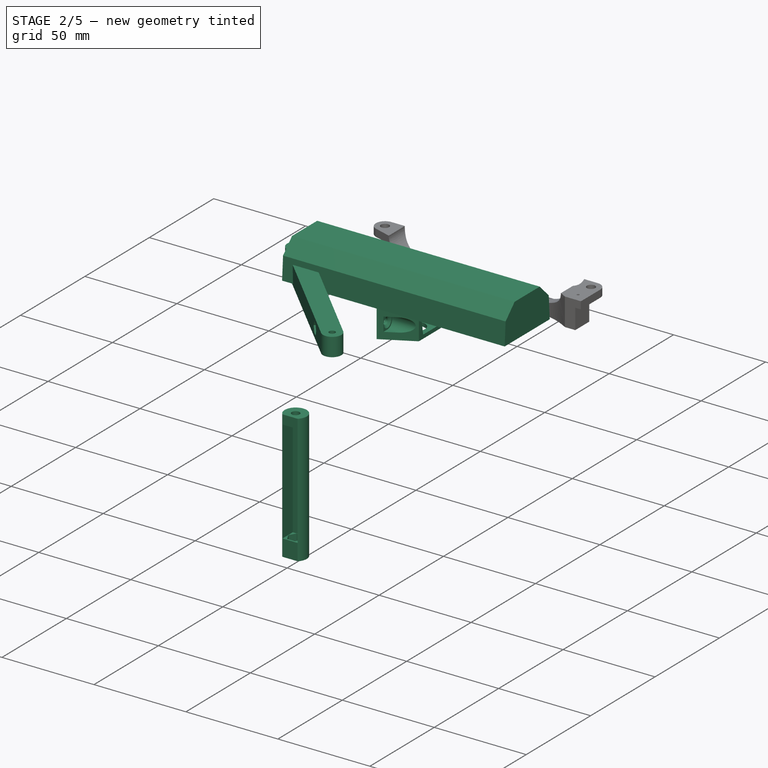
[diagram: stage 2 of 5 — iso view after this stage's code; geometry added in this stage tinted green]
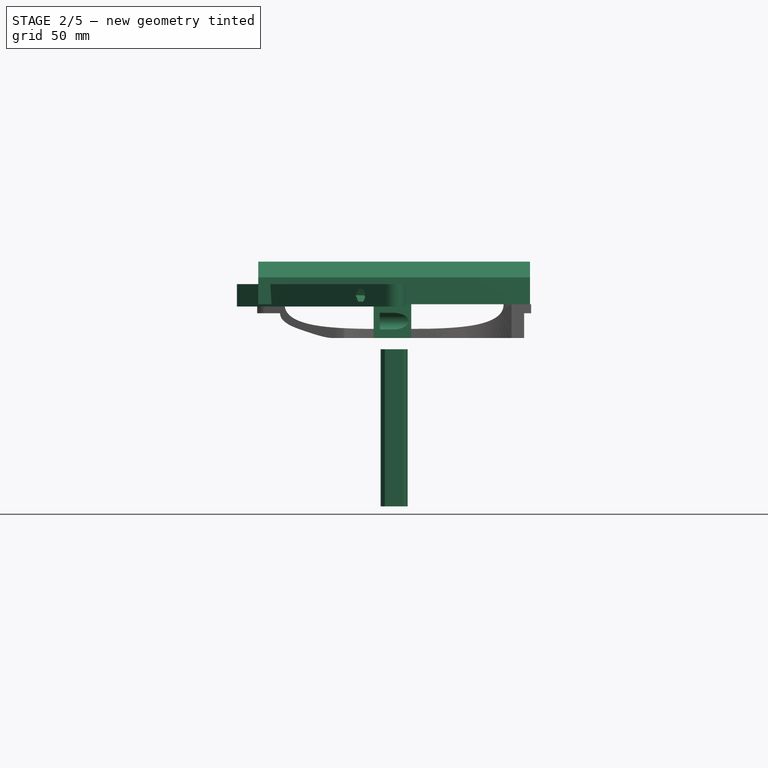
[diagram: stage 2 of 5 — front view after this stage's code; geometry added in this stage tinted green]
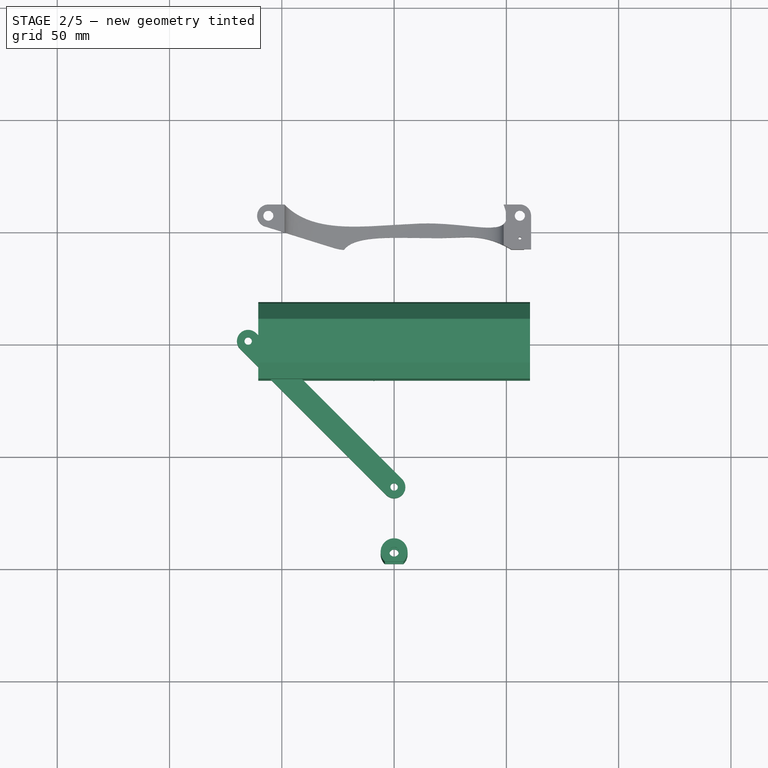
[diagram: stage 2 of 5 — top view after this stage's code; geometry added in this stage tinted green]
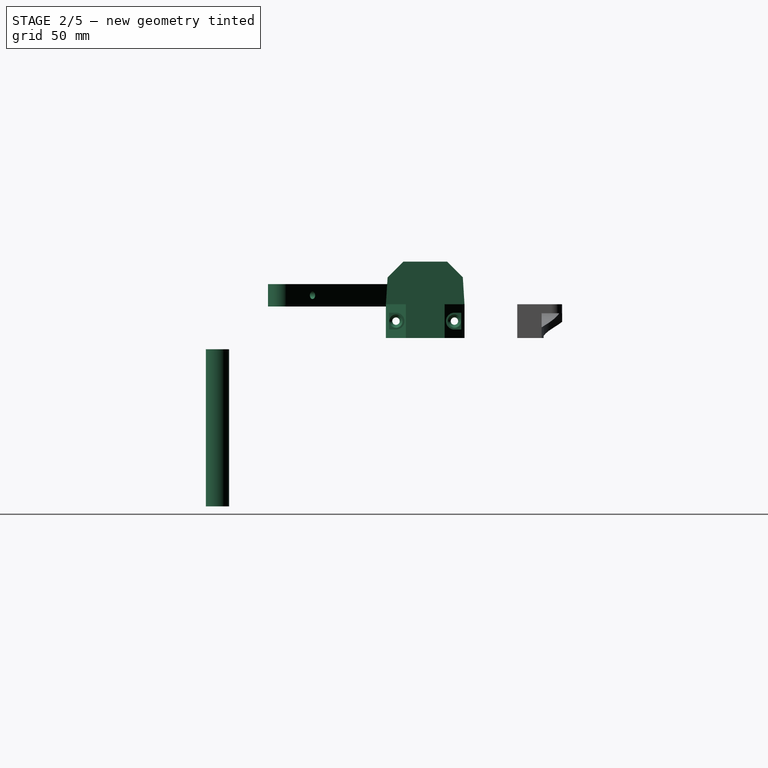
[diagram: stage 2 of 5 — right view after this stage's code; geometry added in this stage tinted green]
FEATURE [Sketcher::SketchObject] Sketch
  ArcFitTolerance = 1e-06
  AttachmentSupport = -> [XY_Plane001]
  FullyConstrained = true
  MakeInternals = false
  MapMode = 5
  sketch-geometry (13):
    g0: Circle CenterX=0 CenterY=0 CenterZ=0 NormalX=0 NormalY=0 NormalZ=1 AngleXU=0 Radius=99.3381
    g1: LineSegment [constr] StartX=66 StartY=-66 StartZ=0 EndX=66 EndY=66 EndZ=0
    g2: LineSegment [constr] StartX=66 StartY=66 StartZ=0 EndX=-66 EndY=66 EndZ=0
    g3: LineSegment [constr] StartX=-66 StartY=66 StartZ=0 EndX=-66 EndY=-66 EndZ=0
    g4: LineSegment [constr] StartX=-66 StartY=-66 StartZ=0 EndX=66 EndY=-66 EndZ=0
    g5: GeomPoint [constr] X=70.2426 Y=70.2426 Z=0
    g6: LineSegment [constr] StartX=-66 StartY=-66 StartZ=0 EndX=66 EndY=66 EndZ=0
    g7: Circle CenterX=-66 CenterY=66 CenterZ=0 NormalX=0 NormalY=0 NormalZ=1 AngleXU=0 Radius=2.25
    g8: Circle CenterX=66 CenterY=66 CenterZ=0 NormalX=0 NormalY=0 NormalZ=1 AngleXU=0 Radius=2.25
    g9: Circle CenterX=-66 CenterY=-66 CenterZ=0 NormalX=0 NormalY=0 NormalZ=1 AngleXU=0 Radius=2.25
    g10: Circle CenterX=66 CenterY=-66 CenterZ=0 NormalX=0 NormalY=0 NormalZ=1 AngleXU=0 Radius=2.25
    g11: Circle CenterX=0 CenterY=0 CenterZ=0 NormalX=0 NormalY=0 NormalZ=1 AngleXU=0 Radius=88.3381
    g12: GeomPoint [constr] X=62.4645 Y=62.4645 Z=0
  constraints (29):
    c: Coincident(g0,g-1)
    c: Coincident(g1,g2)
    c: Coincident(g2,g3)
    c: Coincident(g3,g4)
    c: Coincident(g4,g1)
    c: Vertical(g1)
    c: Vertical(g3)
    c: Horizontal(g2)
    c: Horizontal(g4)
    c: Symmetric(g1,g3,g0)
    c: DistanceX(g2,g2) = 132
    c: Equal(g2,g1)
    c: PointOnObject(g5,g0)
    c: Coincident(g6,g3)
    c: Coincident(g6,g1)
    c: PointOnObject(g5,g6)
    c: Distance(g5,g1) = 6
    c: Coincident(g7,g2)
    c: Coincident(g8,g1)
    c: Coincident(g9,g3)
    c: Coincident(g10,g1)
    c: Equal(g7,g9)
    c: Equal(g10,g8)
    c: Equal(g10,g9)
    c: Diameter(g8) = 4.5
    c: Coincident(g11,g0)
    c: PointOnObject(g12,g11)
    c: PointOnObject(g12,g6)
    c: Distance(g12,g1) = 5
FEATURE [PartDesign::Pad] Pad
  Direction = (0,0,1)
  Length = 6
  Length2 = 10
  Profile = -> Sketch
  ReferenceAxis = -> Sketch [N_Axis]
  Suppressed = false
  Type = 0
FEATURE [Sketcher::SketchObject] Sketch001
  ArcFitTolerance = 1e-06
  AttachmentSupport = -> [Pad]
  ExternalGeometry = -> [Pad]
  FullyConstrained = true
  MakeInternals = false
  MapMode = 5
  Placement = pos=(0,0,0) rot=(1,0,0;3.14159rad)
  sketch-geometry (28):
    g0: LineSegment StartX=-68.1073 StartY=-62.35 StartZ=0 EndX=-70.2147 EndY=-66 EndZ=0
    g1: LineSegment StartX=-70.2147 StartY=-66 StartZ=0 EndX=-68.1073 EndY=-69.65 EndZ=0
    g2: LineSegment StartX=-68.1073 StartY=-69.65 StartZ=0 EndX=-63.8927 EndY=-69.65 EndZ=0
    g3: LineSegment StartX=-63.8927 StartY=-69.65 StartZ=0 EndX=-61.7853 EndY=-66 EndZ=0
    g4: LineSegment StartX=-61.7853 StartY=-66 StartZ=0 EndX=-63.8927 EndY=-62.35 EndZ=0
    g5: LineSegment StartX=-63.8927 StartY=-62.35 StartZ=0 EndX=-68.1073 EndY=-62.35 EndZ=0
    g6: Circle [constr] CenterX=-66 CenterY=-66 CenterZ=0 NormalX=0 NormalY=0 NormalZ=1 AngleXU=0 Radius=4.21466
    g7: LineSegment StartX=63.8927 StartY=-62.35 StartZ=0 EndX=61.7853 EndY=-66 EndZ=0
    g8: LineSegment StartX=61.7853 StartY=-66 StartZ=0 EndX=63.8927 EndY=-69.65 EndZ=0
    g9: LineSegment StartX=63.8927 StartY=-69.65 StartZ=0 EndX=68.1073 EndY=-69.65 EndZ=0
    g10: LineSegment StartX=68.1073 StartY=-69.65 StartZ=0 EndX=70.2147 EndY=-66 EndZ=0
    g11: LineSegment StartX=70.2147 StartY=-66 StartZ=0 EndX=68.1073 EndY=-62.35 EndZ=0
    g12: LineSegment StartX=68.1073 StartY=-62.35 StartZ=0 EndX=63.8927 EndY=-62.35 EndZ=0
    g13: Circle [constr] CenterX=66 CenterY=-66 CenterZ=0 NormalX=0 NormalY=0 NormalZ=1 AngleXU=0 Radius=4.21466
    g14: LineSegment StartX=63.8927 StartY=69.65 StartZ=0 EndX=61.7853 EndY=66 EndZ=0
    g15: LineSegment StartX=61.7853 StartY=66 StartZ=0 EndX=63.8927 EndY=62.35 EndZ=0
    g16: LineSegment StartX=63.8927 StartY=62.35 StartZ=0 EndX=68.1073 EndY=62.35 EndZ=0
    g17: LineSegment StartX=68.1073 StartY=62.35 StartZ=0 EndX=70.2147 EndY=66 EndZ=0
    g18: LineSegment StartX=70.2147 StartY=66 StartZ=0 EndX=68.1073 EndY=69.65 EndZ=0
    g19: LineSegment StartX=68.1073 StartY=69.65 StartZ=0 EndX=63.8927 EndY=69.65 EndZ=0
    g20: Circle [constr] CenterX=66 CenterY=66 CenterZ=0 NormalX=0 NormalY=0 NormalZ=1 AngleXU=0 Radius=4.21466
    g21: LineSegment StartX=-68.1073 StartY=69.65 StartZ=0 EndX=-70.2147 EndY=66 EndZ=0
    g22: LineSegment StartX=-70.2147 StartY=66 StartZ=0 EndX=-68.1073 EndY=62.35 EndZ=0
    g23: LineSegment StartX=-68.1073 StartY=62.35 StartZ=0 EndX=-63.8927 EndY=62.35 EndZ=0
    g24: LineSegment StartX=-63.8927 StartY=62.35 StartZ=0 EndX=-61.7853 EndY=66 EndZ=0
    g25: LineSegment StartX=-61.7853 StartY=66 StartZ=0 EndX=-63.8927 EndY=69.65 EndZ=0
    g26: LineSegment StartX=-63.8927 StartY=69.65 StartZ=0 EndX=-68.1073 EndY=69.65 EndZ=0
    g27: Circle [constr] CenterX=-66 CenterY=66 CenterZ=0 NormalX=0 NormalY=0 NormalZ=1 AngleXU=0 Radius=4.21466
  constraints (64):
    c: Coincident(g0,g1)
    c: Coincident(g1,g2)
    c: Coincident(g2,g3)
    c: Coincident(g3,g4)
    c: Coincident(g4,g5)
    c: Coincident(g5,g0)
    c: Equal(g0, g1-g5) x5
    c: PointOnObject(g0,g6)
    c: PointOnObject(g1,g6)
    c: PointOnObject(g2,g6)
    c: PointOnObject(g3,g6)
    c: PointOnObject(g4,g6)
    c: PointOnObject(g5,g6)
    c: Coincident(g6,g-6)
    c: Coincident(g7,g8)
    c: Coincident(g8,g9)
    c: Coincident(g9,g10)
    c: Coincident(g10,g11)
    c: Coincident(g11,g12)
    c: Coincident(g12,g7)
    c: Equal(g7, g8-g12) x5
    c: PointOnObject(g7,g13)
    c: PointOnObject(g8,g13)
    c: PointOnObject(g9,g13)
    c: PointOnObject(g10,g13)
    c: PointOnObject(g11,g13)
    c: PointOnObject(g12,g13)
    c: Coincident(g13,g-5)
    c: Coincident(g14,g15)
    c: Coincident(g15,g16)
    c: Coincident(g16,g17)
    c: Coincident(g17,g18)
    c: Coincident(g18,g19)
    c: Coincident(g19,g14)
    c: Equal(g14, g15-g19) x5
    c: PointOnObject(g14,g20)
    c: PointOnObject(g15,g20)
    c: PointOnObject(g16,g20)
    c: PointOnObject(g17,g20)
    c: PointOnObject(g18,g20)
    c: PointOnObject(g19,g20)
    c: Coincident(g20,g-4)
    c: Coincident(g21,g22)
    c: Coincident(g22,g23)
    c: Coincident(g23,g24)
    c: Coincident(g24,g25)
    c: Coincident(g25,g26)
    c: Coincident(g26,g21)
    c: Equal(g21, g22-g26) x5
    c: PointOnObject(g21,g27)
    c: PointOnObject(g22,g27)
    c: PointOnObject(g23,g27)
    c: PointOnObject(g24,g27)
    c: PointOnObject(g25,g27)
    c: PointOnObject(g26,g27)
    c: Coincident(g27,g-3)
    c: Horizontal(g26)
    c: Horizontal(g19)
    c: Horizontal(g12)
    c: Horizontal(g5)
    c: Equal(g27,g20)
    c: Equal(g20,g13)
    c: Equal(g27,g6)
    c: Distance(g18,g14) = 7.3
FEATURE [PartDesign::Pocket] Pocket
  BaseFeature = -> Pad
  Direction = (0,0,1)
  Length = 3.1
  Length2 = 5
  Profile = -> Sketch001
  ReferenceAxis = -> Sketch001 [N_Axis]
  Suppressed = false
  Type = 0
FEATURE [PartDesign::Body] Body  label="base_ring"
  AllowCompound = false
  Group = -> [Sketch,Pad,Sketch001,Pocket]
  Origin = -> Origin001
  Tip = -> Pocket
FEATURE [App::Part] Part  label="bot"
  Group = -> [Body]
  Origin = -> Origin
FEATURE [Spreadsheet::Sheet] Spreadsheet  label="numbers"
  cells = A1='Gear settings; A2='outside diameter; A3='teeth; B3(teeth)=170; A4='thickness; B4(thickness)=15; A5='module; B5(module)=1; A7='computed; A8='outside dia
FEATURE [PartDesign::FeaturePython] InternalInvoluteGear  # WARN: FeaturePython — macro-defined, semantics opaque (R4)
  AttacherType = Attacher::AttachEngine3D
  Suppressed = false
  addendum_diameter = 168.8
  angular_backlash = 0
  backlash = 0
  clearance = 0.25
  double_helix = true
  head = -0.4
  head_fillet = 0
  height = 20
  helix_angle = 30
  module = 1
  num_teeth = 170
  numpoints = 20
  outside_diameter = 200
  pitch_diameter = 170
  pressure_angle = 20
  properties_from_tool = false
  reversed_backlash = false
  root_diameter = 172.5
  root_fillet = 0
  shift = 0
  simple = false
  thickness = 15
  transverse_pitch = 3.14159
  version = 1.3.0
  expr: angular_backlash = backlash / pitch_diameter * 360 ° / pi
  expr: module = <<numbers>>.module
  expr: num_teeth = <<numbers>>.teeth
  expr: thickness = <<numbers>>.thickness
FEATURE [Sketcher::SketchObject] Sketch083
  ArcFitTolerance = 1e-06
  AttachmentSupport = -> [Pad026]
  FullyConstrained = true
  MakeInternals = false
  MapMode = 5
  Placement = pos=(0,0,-49) rot=(1,0,0;3.14159rad)
  sketch-geometry (1):
    g0: Circle CenterX=0 CenterY=0 CenterZ=0 NormalX=0 NormalY=0 NormalZ=1 AngleXU=0 Radius=5
  constraints (2):
    c: Coincident(g0,g-1)
    c: Diameter(g0) = 10
FEATURE [PartDesign::Pocket] Pocket048
  BaseFeature = -> Pad026
  Direction = (0,0,1)
  Length = 5
  Length2 = 5
  Profile = -> Sketch083
  ReferenceAxis = -> Sketch083 [N_Axis]
  Suppressed = false
  Type = 2
FEATURE [Sketcher::SketchObject] Sketch084
  ArcFitTolerance = 1e-06
  AttachmentSupport = -> [Pocket048]
  ExternalGeometry = -> [Pocket048]
  FullyConstrained = true
  MakeInternals = false
  MapMode = 5
  Placement = pos=(-4.94975,-4.94975,0) rot=(0.862856,-0.357407,-0.357407;1.71777rad)
  sketch-geometry (8):
    g0: LineSegment StartX=-5.125 StartY=-47 StartZ=0 EndX=5.125 EndY=-47 EndZ=0
    g1: LineSegment StartX=5.125 StartY=-47 StartZ=0 EndX=7 EndY=-34.5 EndZ=0
    g2: LineSegment StartX=-7 StartY=-34.5 StartZ=0 EndX=-5.125 EndY=-47 EndZ=0
    g3: LineSegment StartX=-7 StartY=-34.5 StartZ=0 EndX=-10 EndY=-34.5 EndZ=0
    g4: LineSegment StartX=-10 StartY=-34.5 StartZ=0 EndX=-10 EndY=6 EndZ=0
    g5: LineSegment StartX=-10 StartY=6 StartZ=0 EndX=10 EndY=6 EndZ=0
    g6: LineSegment StartX=10 StartY=6 StartZ=0 EndX=10 EndY=-34.5 EndZ=0
    g7: LineSegment StartX=10 StartY=-34.5 StartZ=0 EndX=7 EndY=-34.5 EndZ=0
  constraints (19):
    c: Coincident(g0,g1)
    c: Coincident(g2,g0)
    c: Symmetric(g0,g0,g-2)
    c: Symmetric(g1,g2,g-2)
    c: DistanceY(g0,g1) = 12.5
    c: DistanceY(g-4,g0) = 2
    c: DistanceX(g0,g0) = 10.25
    c: DistanceX(g2,g1) = 14
    c: Coincident(g2,g3)
    c: Coincident(g3,g-7)
    c: Coincident(g3,g4)
    c: Coincident(g4,g5)
    c: Coincident(g5,g6)
    c: Coincident(g6,g-7)
    c: Coincident(g6,g7)
    c: Coincident(g7,g1)
    c: PointOnObject(g5,g-5)
    c: Horizontal(g5)
    c: Coincident(g4,g-6)
FEATURE [PartDesign::Pocket] Pocket049
  BaseFeature = -> Pocket048
  Direction = (0.707107,0.707107,0)
  Length = 13
  Length2 = 5
  Profile = -> Sketch084
  ReferenceAxis = -> Sketch084 [N_Axis]
  Suppressed = false
  Type = 0
FEATURE [PartDesign::Body] Body017
  AllowCompound = false
  Group = -> [Binder,Sketch060,Pad017,Sketch061,Pad018,Fillet004,Sketch062,Pocket042,Sketch063,Pocket043,Sketch076,Pad025,Sketch082,Pad026,Sketch083,Pocket048,Sketch084,Pocket049]
  Origin = -> Origin032
  Tip = -> Pocket049
FEATURE [App::Part] Part012  label="Plate"
  Group = -> [Body017]
  Origin = -> Origin031
  Placement = pos=(0,0,-2) rot=(0,0,1;0rad)
FEATURE [PartDesign::SubShapeBinder] Binder003
  BindCopyOnChange = 0
  BindMode = 0
  ClaimChildren = false
  Fuse = false
  MakeFace = true
  OffsetFill = false
  OffsetIntersection = false
  OffsetJoinType = 0
  OffsetOpenResult = false
  PartialLoad = false
  Relative = true
  Support = -> [Part005[Body007.]]
  _Version = 2
FEATURE [Sketcher::SketchObject] Sketch085
  ArcFitTolerance = 1e-06
  AttachmentSupport = -> [Binder003]
  ExternalGeometry = -> [Binder003]
  FullyConstrained = false
  MakeInternals = false
  MapMode = 5
  Placement = pos=(0,0,9) rot=(1,0,0;3.14159rad)
  sketch-geometry (6):
    g0: ArcOfCircle CenterX=-65 CenterY=0 CenterZ=0 NormalX=0 NormalY=0 NormalZ=1 AngleXU=0 Radius=5 StartAngle=2.35619 EndAngle=5.49779
    g1: ArcOfCircle CenterX=0 CenterY=65 CenterZ=0 NormalX=0 NormalY=0 NormalZ=1 AngleXU=0 Radius=5 StartAngle=5.49779 EndAngle=8.63938
    g2: LineSegment StartX=-68.5355 StartY=3.53553 StartZ=0 EndX=-3.53553 EndY=68.5355 EndZ=0
    g3: LineSegment StartX=-61.4645 StartY=-3.53553 StartZ=0 EndX=3.53553 EndY=61.4645 EndZ=0
    g4: Circle CenterX=-65 CenterY=0 CenterZ=0 NormalX=0 NormalY=0 NormalZ=1 AngleXU=0 Radius=1.65
    g5: Circle CenterX=0 CenterY=65 CenterZ=0 NormalX=0 NormalY=0 NormalZ=1 AngleXU=0 Radius=1.65
  constraints (10):
    c: Tangent(g0,g2) = 1.5708
    c: Tangent(g0,g3) = -1.5708
    c: Tangent(g1,g2) = 1.5708
    c: Tangent(g1,g3) = -1.5708
    c: Equal(g0,g1)
    c: Radius(g0) = 5
    c: Coincident(g0,g-4)
    c: Coincident(g1,g-3)
    c: Coincident(g4,g0)
    c: Coincident(g5,g1)
FEATURE [PartDesign::Pad] Pad027
  Direction = (0,0,-1)
  Length = 10
  Length2 = 10
  Profile = -> Sketch085
  ReferenceAxis = -> Sketch085 [N_Axis]
  Suppressed = false
  Type = 0
FEATURE [Sketcher::SketchObject] Sketch086
  ArcFitTolerance = 1e-06
  AttachmentSupport = -> [Pad027]
  ExternalGeometry = -> [Pad027]
  FullyConstrained = true
  MakeInternals = false
  MapMode = 5
  Placement = pos=(0,0,-1) rot=(1,0,0;3.14159rad)
  sketch-geometry (17):
    g0: LineSegment StartX=-0.821861 StartY=68.0672 StartZ=0 EndX=-3.06723 EndY=65.8219 EndZ=0
    g1: LineSegment StartX=-3.06723 StartY=65.8219 StartZ=0 EndX=-2.24537 EndY=62.7546 EndZ=0
    g2: LineSegment StartX=-2.24537 StartY=62.7546 StartZ=0 EndX=0.821861 EndY=61.9328 EndZ=0
    g3: LineSegment StartX=0.821861 StartY=61.9328 StartZ=0 EndX=3.06723 EndY=64.1781 EndZ=0
    g4: LineSegment StartX=3.06723 StartY=64.1781 StartZ=0 EndX=2.24537 EndY=67.2454 EndZ=0
    g5: LineSegment StartX=2.24537 StartY=67.2454 StartZ=0 EndX=-0.821861 EndY=68.0672 EndZ=0
    g6: Circle [constr] CenterX=0 CenterY=65 CenterZ=0 NormalX=0 NormalY=0 NormalZ=1 AngleXU=0 Radius=3.17543
    g7: LineSegment StartX=-65.8219 StartY=3.06723 StartZ=0 EndX=-68.0672 EndY=0.821861 EndZ=0
    g8: LineSegment StartX=-68.0672 StartY=0.821861 StartZ=0 EndX=-67.2454 EndY=-2.24537 EndZ=0
    g9: LineSegment StartX=-67.2454 StartY=-2.24537 StartZ=0 EndX=-64.1781 EndY=-3.06723 EndZ=0
    g10: LineSegment StartX=-64.1781 StartY=-3.06723 StartZ=0 EndX=-61.9328 EndY=-0.821861 EndZ=0
    g11: LineSegment StartX=-61.9328 StartY=-0.821861 StartZ=0 EndX=-62.7546 EndY=2.24537 EndZ=0
    g12: LineSegment StartX=-62.7546 StartY=2.24537 StartZ=0 EndX=-65.8219 EndY=3.06723 EndZ=0
    g13: Circle [constr] CenterX=-65 CenterY=0 CenterZ=0 NormalX=0 NormalY=0 NormalZ=1 AngleXU=0 Radius=3.17543
    g14: LineSegment [constr] StartX=-62.7546 StartY=2.24537 StartZ=0 EndX=-2.24537 EndY=62.7546 EndZ=0
    g15: LineSegment [constr] StartX=-36.0355 StartY=36.0355 StartZ=0 EndX=-28.9645 EndY=28.9645 EndZ=0
    g16: GeomPoint [constr] X=-32.5 Y=32.5 Z=0
  constraints (37):
    c: Coincident(g0,g1)
    c: Coincident(g1,g2)
    c: Coincident(g2,g3)
    c: Coincident(g3,g4)
    c: Coincident(g4,g5)
    c: Coincident(g5,g0)
    c: Equal(g0, g1-g5) x5
    c: PointOnObject(g0,g6)
    c: PointOnObject(g1,g6)
    c: PointOnObject(g2,g6)
    c: PointOnObject(g3,g6)
    c: PointOnObject(g4,g6)
    c: PointOnObject(g5,g6)
    c: Coincident(g6,g-3)
    c: Coincident(g7,g8)
    c: Coincident(g8,g9)
    c: Coincident(g9,g10)
    c: Coincident(g10,g11)
    c: Coincident(g11,g12)
    c: Coincident(g12,g7)
    c: Equal(g7, g8-g12) x5
    c: PointOnObject(g7,g13)
    c: PointOnObject(g8,g13)
    c: PointOnObject(g9,g13)
    c: PointOnObject(g10,g13)
    c: PointOnObject(g11,g13)
    c: PointOnObject(g12,g13)
    c: Coincident(g13,g-4)
    c: Equal(g13,g6)
    c: Coincident(g14,g11)
    c: Coincident(g14,g1)
    c: Parallel(g14,g-5)
    c: Symmetric(g-5,g-5,g15)
    c: Symmetric(g-6,g-6,g15)
    c: Symmetric(g15,g15,g16)
    c: PointOnObject(g16,g14)
    c: Distance(g3,g1) = 5.5
FEATURE [PartDesign::Pocket] Pocket050
  BaseFeature = -> Pad027
  Direction = (0,0,1)
  Length = 4.5
  Length2 = 5
  Profile = -> Sketch086
  ReferenceAxis = -> Sketch086 [N_Axis]
  Suppressed = false
  Type = 0
FEATURE [Sketcher::SketchObject] Sketch087
  ArcFitTolerance = 1e-06
  AttachmentSupport = -> [Pocket050]
  ExternalGeometry = -> [Pocket050]
  FullyConstrained = true
  MakeInternals = false
  MapMode = 5
  Placement = pos=(-36.0355,-36.0355,0) rot=(0.862856,-0.357407,-0.357407;1.71777rad)
  sketch-geometry (5):
    g0: LineSegment [constr] StartX=-45.9619 StartY=4 StartZ=0 EndX=45.9619 EndY=4 EndZ=0
    g1: GeomPoint [constr] X=-30 Y=4 Z=0
    g2: GeomPoint [constr] X=30 Y=4 Z=0
    g3: Circle CenterX=-30 CenterY=4 CenterZ=0 NormalX=0 NormalY=0 NormalZ=1 AngleXU=0 Radius=1.65
    g4: Circle CenterX=30 CenterY=4 CenterZ=0 NormalX=0 NormalY=0 NormalZ=1 AngleXU=0 Radius=1.65
  constraints (9):
    c: Symmetric(g-5,g-5,g0)
    c: Symmetric(g-3,g-3,g0)
    c: PointOnObject(g1,g0)
    c: Coincident(g3,g1)
    c: Coincident(g4,g2)
    c: Symmetric(g2,g1,g-2)
    c: DistanceX(g1,g2) = 60
    c: Equal(g4,g3)
    c: Diameter(g4) = 3.3
FEATURE [PartDesign::Pocket] Pocket051
  BaseFeature = -> Pocket050
  Direction = (0.707107,0.707107,1e-16)
  Length = 5
  Length2 = 5
  Profile = -> Sketch087
  ReferenceAxis = -> Sketch087 [N_Axis]
  Suppressed = false
  Type = 1
FEATURE [Sketcher::SketchObject] Sketch088
  ArcFitTolerance = 1e-06
  AttachmentSupport = -> [Pocket051]
  ExternalGeometry = -> [Pocket051]
  FullyConstrained = true
  MakeInternals = false
  MapMode = 5
  Placement = pos=(-36.0355,-36.0355,0) rot=(0.862856,-0.357407,-0.357407;1.71777rad)
  sketch-geometry (14):
    g0: LineSegment StartX=28.3834 StartY=6.8 StartZ=0 EndX=26.7668 EndY=4 EndZ=0
    g1: LineSegment StartX=26.7668 StartY=4 StartZ=0 EndX=28.3834 EndY=1.2 EndZ=0
    g2: LineSegment StartX=28.3834 StartY=1.2 StartZ=0 EndX=31.6166 EndY=1.2 EndZ=0
    g3: LineSegment StartX=31.6166 StartY=1.2 StartZ=0 EndX=33.2332 EndY=4 EndZ=0
    g4: LineSegment StartX=33.2332 StartY=4 StartZ=0 EndX=31.6166 EndY=6.8 EndZ=0
    g5: LineSegment StartX=31.6166 StartY=6.8 StartZ=0 EndX=28.3834 EndY=6.8 EndZ=0
    g6: Circle [constr] CenterX=30 CenterY=4 CenterZ=0 NormalX=0 NormalY=0 NormalZ=1 AngleXU=0 Radius=3.23316
    g7: LineSegment StartX=-31.6166 StartY=6.8 StartZ=0 EndX=-33.2332 EndY=4 EndZ=0
    g8: LineSegment StartX=-33.2332 StartY=4 StartZ=0 EndX=-31.6166 EndY=1.2 EndZ=0
    g9: LineSegment StartX=-31.6166 StartY=1.2 StartZ=0 EndX=-28.3834 EndY=1.2 EndZ=0
    g10: LineSegment StartX=-28.3834 StartY=1.2 StartZ=0 EndX=-26.7668 EndY=4 EndZ=0
    g11: LineSegment StartX=-26.7668 StartY=4 StartZ=0 EndX=-28.3834 EndY=6.8 EndZ=0
    g12: LineSegment StartX=-28.3834 StartY=6.8 StartZ=0 EndX=-31.6166 EndY=6.8 EndZ=0
    g13: Circle [constr] CenterX=-30 CenterY=4 CenterZ=0 NormalX=0 NormalY=0 NormalZ=1 AngleXU=0 Radius=3.23316
  constraints (32):
    c: Coincident(g0,g1)
    c: Coincident(g1,g2)
    c: Coincident(g2,g3)
    c: Coincident(g3,g4)
    c: Coincident(g4,g5)
    c: Coincident(g5,g0)
    c: Equal(g0, g1-g5) x5
    c: PointOnObject(g0,g6)
    c: PointOnObject(g1,g6)
    c: PointOnObject(g2,g6)
    c: PointOnObject(g3,g6)
    c: PointOnObject(g4,g6)
    c: PointOnObject(g5,g6)
    c: Coincident(g6,g-4)
    c: Coincident(g7,g8)
    c: Coincident(g8,g9)
    c: Coincident(g9,g10)
    c: Coincident(g10,g11)
    c: Coincident(g11,g12)
    c: Coincident(g12,g7)
    c: Equal(g7, g8-g12) x5
    c: PointOnObject(g7,g13)
    c: PointOnObject(g8,g13)
    c: PointOnObject(g9,g13)
    c: PointOnObject(g10,g13)
    c: PointOnObject(g11,g13)
    c: PointOnObject(g12,g13)
    c: Coincident(g13,g-3)
    c: Horizontal(g12)
    c: Horizontal(g5)
    c: Equal(g6,g13)
    c: DistanceY(g1,g0) = 5.6
FEATURE [PartDesign::Pocket] Pocket052
  BaseFeature = -> Pocket051
  Direction = (0.707107,0.707107,1e-16)
  Length = 5.5
  Length2 = 5
  Profile = -> Sketch088
  ReferenceAxis = -> Sketch088 [N_Axis]
  Suppressed = false
  Type = 0
FEATURE [PartDesign::Body] Body022  label="plate"
  AllowCompound = false
  Group = -> [Binder004,Sketch089,Pad028,Sketch090,Pocket053,Sketch091,Pocket054]
  Origin = -> Origin039
  Tip = -> Pocket054
FEATURE [Sketcher::SketchObject] Sketch092
  ArcFitTolerance = 1e-06
  AttachmentSupport = -> [XY_Plane040]
  FullyConstrained = true
  MakeInternals = false
  MapMode = 5
  sketch-geometry (9):
    g0: Circle CenterX=0 CenterY=0 CenterZ=0 NormalX=0 NormalY=0 NormalZ=1 AngleXU=0 Radius=5
    g1: LineSegment [constr] StartX=-6.125 StartY=7.125 StartZ=0 EndX=-6.125 EndY=-7.125 EndZ=0
    g2: LineSegment [constr] StartX=-6.125 StartY=-7.125 StartZ=0 EndX=6.125 EndY=-7.125 EndZ=0
    g3: LineSegment [constr] StartX=6.125 StartY=-7.125 StartZ=0 EndX=6.125 EndY=7.125 EndZ=0
    g4: LineSegment [constr] StartX=6.125 StartY=7.125 StartZ=0 EndX=-6.125 EndY=7.125 EndZ=0
    g5: LineSegment StartX=-9.125 StartY=17.5 StartZ=0 EndX=-9.125 EndY=-17.5 EndZ=0
    g6: LineSegment StartX=7.625 StartY=-8.625 StartZ=0 EndX=7.625 EndY=8.625 EndZ=0
    g7: LineSegment StartX=7.625 StartY=8.625 StartZ=0 EndX=-9.125 EndY=17.5 EndZ=0
    g8: LineSegment StartX=-9.125 StartY=-17.5 StartZ=0 EndX=7.625 EndY=-8.625 EndZ=0
  constraints (23):
    c: Coincident(g0,g-1)
    c: Diameter(g0) = 10
    c: Coincident(g1,g2)
    c: Coincident(g2,g3)
    c: Coincident(g3,g4)
    c: Coincident(g4,g1)
    c: Vertical(g1)
    c: Vertical(g3)
    c: Horizontal(g2)
    c: Horizontal(g4)
    c: Symmetric(g3,g1,g0)
    c: DistanceX(g4,g4) = 12.25
    c: DistanceY(g3,g3) = 14.25
    c: DistanceX(g3,g6) = 1.5
    c: DistanceY(g3,g6) = 1.5
    c: Symmetric(g6,g6,g-1)
    c: Coincident(g7,g6)
    c: Coincident(g5,g7)
    c: Symmetric(g5,g5,g-1)
    c: Coincident(g8,g5)
    c: Coincident(g8,g6)
    c: DistanceY(g5,g5) = 35
    c: DistanceX(g5,g1) = 3
FEATURE [PartDesign::Pad] Pad029
  Direction = (0,0,1)
  Length = 15
  Length2 = 10
  Profile = -> Sketch092
  ReferenceAxis = -> Sketch092 [N_Axis]
  Reversed = true
  Suppressed = false
  Type = 0
FEATURE [Sketcher::SketchObject] Sketch093
  ArcFitTolerance = 1e-06
  AttachmentSupport = -> [Pad029]
  ExternalGeometry = -> [Pad029]
  FullyConstrained = true
  MakeInternals = false
  MapMode = 5
  Placement = pos=(7.625,4e-16,0) rot=(0.57735,0.57735,0.57735;2.0944rad)
  sketch-geometry (4):
    g0: LineSegment StartX=-7.25 StartY=0 StartZ=0 EndX=-5.25 EndY=-13 EndZ=0
    g1: LineSegment StartX=-5.25 StartY=-13 StartZ=0 EndX=5.25 EndY=-13 EndZ=0
    g2: LineSegment StartX=5.25 StartY=-13 StartZ=0 EndX=7.25 EndY=0 EndZ=0
    g3: LineSegment StartX=7.25 StartY=0 StartZ=0 EndX=-7.25 EndY=0 EndZ=0
  constraints (10):
    c: PointOnObject(g0,g-5)
    c: Coincident(g0,g1)
    c: Coincident(g1,g2)
    c: Coincident(g2,g3)
    c: Coincident(g3,g0)
    c: Symmetric(g2,g0,g-2)
    c: DistanceY(g-4,g1) = 2
    c: DistanceX(g1,g1) = 10.5
    c: Symmetric(g1,g0,g-2)
    c: DistanceX(g3,g3) = 14.5
FEATURE [PartDesign::Pocket] Pocket055
  BaseFeature = -> Pad029
  Direction = (-1,0,0)
  Length = 14
  Length2 = 5
  Profile = -> Sketch093
  ReferenceAxis = -> Sketch093 [N_Axis]
  Suppressed = false
  Type = 0
FEATURE [Sketcher::SketchObject] Sketch094
  ArcFitTolerance = 1e-06
  AttachmentSupport = -> [Pocket055]
  ExternalGeometry = -> [Pocket055]
  FullyConstrained = false
  MakeInternals = false
  MapMode = 5
  Placement = pos=(7.625,4e-16,0) rot=(0.57735,0.57735,0.57735;2.0944rad)
  sketch-geometry (5):
    g0: Circle CenterX=-13.0156 CenterY=-7.5 CenterZ=0 NormalX=0 NormalY=0 NormalZ=1 AngleXU=0 Radius=1.65
    g1: Circle CenterX=13.0156 CenterY=-7.5 CenterZ=0 NormalX=0 NormalY=0 NormalZ=1 AngleXU=0 Radius=1.65
    g2: LineSegment [constr] StartX=-7.25 StartY=0 StartZ=0 EndX=-7.25 EndY=-15 EndZ=0
    g3: GeomPoint [constr] X=-7.25 Y=-7.5 Z=0
    g4: LineSegment [constr] StartX=-13.0156 StartY=-7.5 StartZ=0 EndX=13.0156 EndY=-7.5 EndZ=0
  constraints (10):
    c: Coincident(g2,g-4)
    c: PointOnObject(g2,g-3)
    c: Vertical(g2)
    c: Symmetric(g2,g2,g3)
    c: Coincident(g4,g0)
    c: Coincident(g4,g1)
    c: PointOnObject(g3,g4)
    c: Equal(g1,g0)
    c: Symmetric(g1,g0,g-2)
    c: Diameter(g0) = 3.3
FEATURE [PartDesign::Pocket] Pocket056
  BaseFeature = -> Pocket055
  Direction = (-1,0,0)
  Length = 5
  Length2 = 5
  Profile = -> Sketch094
  ReferenceAxis = -> Sketch094 [N_Axis]
  Suppressed = false
  Type = 1
FEATURE [Sketcher::SketchObject] Sketch095
  ArcFitTolerance = 1e-06
  AttachmentSupport = -> [Pocket056]
  ExternalGeometry = -> [Pocket056]
  FullyConstrained = false
  MakeInternals = false
  MapMode = 5
  Placement = pos=(7.625,4e-16,0) rot=(0.57735,0.57735,0.57735;2.0944rad)
  sketch-geometry (8):
    g0: ArcOfCircle CenterX=-13.0156 CenterY=-7.5 CenterZ=0 NormalX=0 NormalY=0 NormalZ=1 AngleXU=0 Radius=3.75 StartAngle=4.71174 EndAngle=7.85463
    g1: ArcOfCircle CenterX=13.0156 CenterY=-7.5 CenterZ=0 NormalX=0 NormalY=0 NormalZ=1 AngleXU=0 Radius=3.75 StartAngle=1.49671 EndAngle=4.78648
    g2: LineSegment StartX=-13.018 StartY=-3.75 StartZ=0 EndX=-20.6416 EndY=-3.75 EndZ=0
    g3: LineSegment StartX=-20.6416 StartY=-3.75 StartZ=0 EndX=-20.6416 EndY=-11.25 EndZ=0
    g4: LineSegment StartX=-20.6416 StartY=-11.25 StartZ=0 EndX=-13.018 EndY=-11.25 EndZ=0
    g5: LineSegment StartX=13.2932 StartY=-11.2397 StartZ=0 EndX=24.2573 EndY=-11.2397 EndZ=0
    g6: LineSegment StartX=24.2573 StartY=-11.2397 StartZ=0 EndX=24.2573 EndY=-3.76029 EndZ=0
    g7: LineSegment StartX=24.2573 StartY=-3.76029 StartZ=0 EndX=13.2932 EndY=-3.76029 EndZ=0
  constraints (16):
    c: Coincident(g0,g-4)
    c: Coincident(g1,g-3)
    c: Coincident(g2,g3)
    c: Coincident(g3,g4)
    c: Horizontal(g2)
    c: Horizontal(g4)
    c: Vertical(g3)
    c: Coincident(g2,g0)
    c: Coincident(g5,g6)
    c: Coincident(g6,g7)
    c: Vertical(g6)
    c: Horizontal(g5)
    c: Horizontal(g7)
    c: Coincident(g0,g4)
    c: Equal(g0,g1)
    c: Radius(g1) = 3.75
FEATURE [PartDesign::Pocket] Pocket057
  BaseFeature = -> Pocket056
  Direction = (-1,0,0)
  Length = 0
  Length2 = 5
  Profile = -> Sketch095
  ReferenceAxis = -> Sketch095 [N_Axis]
  Suppressed = false
  Type = 3
  UpToFace = -> Pocket056 [Face10]
FEATURE [PartDesign::Chamfer] Chamfer004
  Angle = 45
  Base = -> Pocket057 [Edge30,Edge28]
  BaseFeature = -> Pocket057
  ChamferType = 1
  FlipDirection = false
  Size = 1
  Size2 = 1.3
  SupportTransform = false
  Suppressed = false
  UseAllEdges = false
FEATURE [PartDesign::Body] Body024  label="power_mount_bracket"
  AllowCompound = false
  Group = -> [Binder005,Binder006,Sketch096,Pad030,Sketch097,Pocket058,Sketch099,Pocket060,Sketch100,Pocket061,Chamfer005,Fillet010,Sketch101,Pocket062]
  Origin = -> Origin041
  Placement = pos=(0,0,0) rot=(0,0,1;0.785398rad)
  Tip = -> Pocket062
FEATURE [App::Part] Part014  label="inner"
  Group = -> [Body021,Body022,Body023,Body024]
  Origin = -> Origin037
FEATURE [App::DocumentObjectGroup] Group003  label="Electronics_mount"
  Group = -> [Part012,Part014]
FEATURE [PartDesign::SubShapeBinder] Binder007
  BindCopyOnChange = 0
  BindMode = 0
  ClaimChildren = false
  Context = -> Part015 [Body025.Binder007.]
  Fuse = false
  MakeFace = true
  OffsetFill = false
  OffsetIntersection = false
  OffsetJoinType = 0
  OffsetOpenResult = false
  PartialLoad = false
  Relative = true
  Support = -> [Part001[Body001.Pocket003.Face4]]
  _Version = 2
FEATURE [Sketcher::SketchObject] Sketch102
  ArcFitTolerance = 1e-06
  AttachmentSupport = -> [Binder007]
  ExternalGeometry = -> [Binder007]
  FullyConstrained = true
  MakeInternals = false
  MapMode = 5
  Placement = pos=(-2.8168e-05,-1.91593e-06,-20) rot=(1,0,-1e-06;3.14159rad)
  sketch-geometry (5):
    g0: Circle CenterX=2.8168e-05 CenterY=93.3381 CenterZ=0 NormalX=0 NormalY=0 NormalZ=1 AngleXU=0 Radius=2.15
    g1: LineSegment StartX=-4.12497 StartY=97.6952 StartZ=0 EndX=4.12503 EndY=97.6952 EndZ=0
    g2: ArcOfCircle CenterX=2.8168e-05 CenterY=93.3381 CenterZ=0 NormalX=0 NormalY=0 NormalZ=1 AngleXU=0 Radius=6 StartAngle=2.32884 EndAngle=7.09594
    g3: Circle [constr] CenterX=2.8168e-05 CenterY=93.3381 CenterZ=0 NormalX=0 NormalY=0 NormalZ=1 AngleXU=0 Radius=4
    g4: GeomPoint [constr] X=0 Y=89.3381 Z=0
  constraints (13):
    c: Coincident(g0,g-3)
    c: Diameter(g0) = 4.3
    c: Horizontal(g1)
    c: Coincident(g2,g0)
    c: Coincident(g2,g1)
    c: Coincident(g2,g1)
    c: Radius(g2) = 6
    c: DistanceX(g1,g1) = 8.25
    c: Coincident(g3,g0)
    c: Diameter(g3) = 8
    c: PointOnObject(g4,g3)
    c: PointOnObject(g4,g-2)
    c: DistanceY(g4,g1) = 8.35711
FEATURE [PartDesign::Pad] Pad031
  Direction = (-1.4084e-06,-9.57964e-08,-1)
  Length = 70
  Length2 = 10
  Profile = -> Sketch102
  ReferenceAxis = -> Sketch102 [N_Axis]
  Suppressed = false
  Type = 0
FEATURE [Sketcher::SketchObject] Sketch103
  ArcFitTolerance = 1e-06
  AttachmentSupport = -> [Pad031]
  ExternalGeometry = -> [Pad031]
  FullyConstrained = true
  MakeInternals = false
  MapMode = 5
  Placement = pos=(0,-97.6952,9.35885e-06) rot=(1,0,0;1.5708rad)
  sketch-geometry (4):
    g0: LineSegment StartX=-4.12501 StartY=-25 StartZ=0 EndX=-4.12501 EndY=-81 EndZ=0
    g1: LineSegment StartX=-4.12501 StartY=-81 StartZ=0 EndX=4.12491 EndY=-81 EndZ=0
    g2: LineSegment StartX=4.12491 StartY=-81 StartZ=0 EndX=4.12491 EndY=-25 EndZ=0
    g3: LineSegment StartX=4.12491 StartY=-25 StartZ=0 EndX=-4.12501 EndY=-25 EndZ=0
  constraints (12):
    c: Coincident(g0,g1)
    c: Coincident(g1,g2)
    c: Coincident(g2,g3)
    c: Coincident(g3,g0)
    c: Vertical(g0)
    c: Vertical(g2)
    c: Horizontal(g1)
    c: Horizontal(g3)
    c: PointOnObject(g0,g-3)
    c: PointOnObject(g1,g-4)
    c: DistanceY(g2,g-4) = 5
    c: DistanceY(g-4,g1) = 9
FEATURE [PartDesign::Pocket] Pocket063
  BaseFeature = -> Pad031
  Direction = (0,1,-9.57964e-08)
  Length = 8
  Length2 = 5
  Profile = -> Sketch103
  ReferenceAxis = -> Sketch103 [N_Axis]
  Suppressed = false
  Type = 0
FEATURE [Sketcher::SketchObject] Sketch104
  ArcFitTolerance = 1e-06
  AttachmentSupport = -> [Pocket063]
  ExternalGeometry = -> [Pocket063]
  FullyConstrained = true
  MakeInternals = false
  MapMode = 5
  Placement = pos=(0,-7.75951e-06,-81) rot=(-1.03323,0,0;0rad)
  sketch-geometry (7):
    g0: LineSegment StartX=-2.02073 StartY=-89.8381 StartZ=0 EndX=-4.04145 EndY=-93.3381 EndZ=0
    g1: LineSegment StartX=-4.04145 StartY=-93.3381 StartZ=0 EndX=-2.02073 EndY=-96.8381 EndZ=0
    g2: LineSegment StartX=-2.02073 StartY=-96.8381 StartZ=0 EndX=2.02073 EndY=-96.8381 EndZ=0
    g3: LineSegment StartX=2.02073 StartY=-96.8381 StartZ=0 EndX=4.04145 EndY=-93.3381 EndZ=0
    g4: LineSegment StartX=4.04145 StartY=-93.3381 StartZ=0 EndX=2.02073 EndY=-89.8381 EndZ=0
    g5: LineSegment StartX=2.02073 StartY=-89.8381 StartZ=0 EndX=-2.02073 EndY=-89.8381 EndZ=0
    g6: Circle [constr] CenterX=-4.50824e-11 CenterY=-93.3381 CenterZ=0 NormalX=0 NormalY=0 NormalZ=1 AngleXU=0 Radius=4.04145
  constraints (16):
    c: Coincident(g0,g1)
    c: Coincident(g1,g2)
    c: Coincident(g2,g3)
    c: Coincident(g3,g4)
    c: Coincident(g4,g5)
    c: Coincident(g5,g0)
    c: Equal(g0, g1-g5) x5
    c: PointOnObject(g0,g6)
    c: PointOnObject(g1,g6)
    c: PointOnObject(g2,g6)
    c: PointOnObject(g3,g6)
    c: PointOnObject(g4,g6)
    c: PointOnObject(g5,g6)
    c: Coincident(g6,g-3)
    c: Horizontal(g5)
    c: Distance(g4,g0) = 7
FEATURE [PartDesign::Pocket] Pocket064
  BaseFeature = -> Pocket063
  Direction = (0,-9.57964e-08,-1)
  Length = 4
  Length2 = 5
  Profile = -> Sketch104
  ReferenceAxis = -> Sketch104 [N_Axis]
  Suppressed = false
  Type = 0
FEATURE [PartDesign::Body] Body025
  AllowCompound = false
  Group = -> [Binder007,Sketch102,Pad031,Sketch103,Pocket063,Sketch104,Pocket064]
  Origin = -> Origin043
  Tip = -> Pocket064
FEATURE [App::Part] Part015  label="studs"
  Group = -> [Body025]
  Origin = -> Origin042
FEATURE [App::DocumentObjectGroup] Group001  label="base"
  Group = -> [Part,Part001,Part004,Part015]
FEATURE [PartDesign::SubShapeBinder] Binder008
  BindCopyOnChange = 0
  BindMode = 0
  ClaimChildren = false
  Context = -> Part016 [Body026.Binder008.]
  Fuse = false
  MakeFace = true
  OffsetFill = false
  OffsetIntersection = false
  OffsetJoinType = 0
  OffsetOpenResult = false
  PartialLoad = false
  Placement = pos=(0,0,-9) rot=(0,0,1;0rad)
  Relative = true
  Support = -> [Part005[Body007.Chamfer002.Face62]]
  _Version = 2
FEATURE [Sketcher::SketchObject] Sketch105
  ArcFitTolerance = 1e-06
  AttachmentSupport = -> [Binder008]
  ExternalGeometry = -> [Binder008]
  FullyConstrained = false
  MakeInternals = false
  MapMode = 5
  Placement = pos=(0,0,0) rot=(1,0,0;3.14159rad)
  sketch-geometry (13):
    g0: ArcOfCircle CenterX=56 CenterY=-56 CenterZ=0 NormalX=0 NormalY=0 NormalZ=1 AngleXU=0 Radius=5 StartAngle=4.71239 EndAngle=6.28319
    g1: ArcOfCircle CenterX=-56 CenterY=-56 CenterZ=0 NormalX=0 NormalY=0 NormalZ=1 AngleXU=0 Radius=5 StartAngle=1.86718 EndAngle=4.71239
    g2: LineSegment StartX=56 StartY=-61 StartZ=0 EndX=-56 EndY=-61 EndZ=0
    g3: Circle CenterX=56 CenterY=-56 CenterZ=0 NormalX=0 NormalY=0 NormalZ=1 AngleXU=0 Radius=2.25
    g4: Circle CenterX=-56 CenterY=-56 CenterZ=0 NormalX=0 NormalY=0 NormalZ=1 AngleXU=0 Radius=2.23266
    g5: LineSegment StartX=-57.4603 StartY=-51.218 StartZ=0 EndX=-26.3893 EndY=-41.7296 EndZ=0
    g6: LineSegment StartX=61 StartY=-56 StartZ=0 EndX=61 EndY=-41 EndZ=0
    g7: LineSegment StartX=-21.5018 StartY=-41 StartZ=0 EndX=61 EndY=-41 EndZ=0
    g8: Circle CenterX=56 CenterY=-46 CenterZ=0 NormalX=0 NormalY=0 NormalZ=1 AngleXU=0 Radius=0.625
    g9: Circle CenterX=-24 CenterY=-45.6829 CenterZ=0 NormalX=0 NormalY=0 NormalZ=1 AngleXU=0 Radius=0.625
    g10: LineSegment [constr] StartX=-24 StartY=-45.6829 StartZ=0 EndX=56 EndY=-46 EndZ=0
    g11: ArcOfCircle CenterX=-21.5018 CenterY=-57.7344 CenterZ=0 NormalX=0 NormalY=0 NormalZ=1 AngleXU=0 Radius=16.7344 StartAngle=1.5708 EndAngle=1.86718
    g12: GeomPoint [constr] X=-24 Y=-41 Z=0
  constraints (28):
    c: Tangent(g0,g2) = 1.5708
    c: Tangent(g1,g2) = 1.5708
    c: Coincident(g1,g-3)
    c: Coincident(g-4,g0)
    c: Coincident(g3,g0)
    c: Coincident(g4,g1)
    c: Radius(g1) = 5
    c: Coincident(g5,g1)
    c: Coincident(g7,g6)
    c: Diameter(g8) = 1.25
    c: Equal(g8,g9)
    c: Coincident(g10,g9)
    c: Coincident(g10,g8)
    c: DistanceX(g10,g10) = 80
    c: DistanceY(g0,g8) = 10
    c: Angle(g6,g0,g0) = 0
    c: Coincident(g6,g0)
    c: Equal(g1,g0)
    c: Vertical(g8,g0)
    c: Vertical(g6)
    c: DistanceY(g8,g6) = 5
    c: Angle(g5,g1,g1) = 3.14159
    c: PointOnObject(g12,g5)
    c: PointOnObject(g12,g7)
    c: Tangent(g5,g11) = 1.5708
    c: Tangent(g7,g11) = 1.5708
    c: Horizontal(g7)
    c: Vertical(g12,g9)
FEATURE [Sketcher::SketchObject] Sketch109
  ArcFitTolerance = 1e-06
  AttachmentSupport = -> [XY_Plane046]
  FullyConstrained = true
  MakeInternals = false
  MapMode = 5
  sketch-geometry (4):
    g0: LineSegment StartX=-60.5 StartY=17.5 StartZ=0 EndX=-60.5 EndY=-17.5 EndZ=0
    g1: LineSegment StartX=-60.5 StartY=-17.5 StartZ=0 EndX=60.5 EndY=-17.5 EndZ=0
    g2: LineSegment StartX=60.5 StartY=-17.5 StartZ=0 EndX=60.5 EndY=17.5 EndZ=0
    g3: LineSegment StartX=60.5 StartY=17.5 StartZ=0 EndX=-60.5 EndY=17.5 EndZ=0
  constraints (11):
    c: Coincident(g0,g1)
    c: Coincident(g1,g2)
    c: Coincident(g2,g3)
    c: Coincident(g3,g0)
    c: Vertical(g0)
    c: Vertical(g2)
    c: Horizontal(g1)
    c: Horizontal(g3)
    c: Symmetric(g2,g0,g-1)
    c: DistanceY(g2,g2) = 35
    c: DistanceX(g3,g3) = 121
FEATURE [PartDesign::Pad] Pad035
  Direction = (0,0,1)
  Length = 19
  Length2 = 10
  Profile = -> Sketch109
  ReferenceAxis = -> Sketch109 [N_Axis]
  Suppressed = false
  Type = 0
FEATURE [Sketcher::SketchObject] Sketch110
  ArcFitTolerance = 1e-06
  AttachmentSupport = -> [Pad035]
  ExternalGeometry = -> [Pad035]
  FullyConstrained = true
  MakeInternals = false
  MapMode = 5
  Placement = pos=(60.5,0,0) rot=(0.57735,0.57735,0.57735;2.0944rad)
  sketch-geometry (8):
    g0: LineSegment StartX=-17.5 StartY=0 StartZ=0 EndX=-16.75 EndY=12 EndZ=0
    g1: LineSegment StartX=-16.75 StartY=12 StartZ=0 EndX=-9.75 EndY=19 EndZ=0
    g2: LineSegment StartX=-9.75 StartY=19 StartZ=0 EndX=9.75 EndY=19 EndZ=0
    g3: LineSegment StartX=9.75 StartY=19 StartZ=0 EndX=16.75 EndY=12 EndZ=0
    g4: LineSegment StartX=16.75 StartY=12 StartZ=0 EndX=17.5 EndY=0 EndZ=0
    g5: LineSegment StartX=17.5 StartY=0 StartZ=0 EndX=17.5 EndY=20 EndZ=0
    g6: LineSegment StartX=17.5 StartY=20 StartZ=0 EndX=-17.5 EndY=20 EndZ=0
    g7: LineSegment StartX=-17.5 StartY=20 StartZ=0 EndX=-17.5 EndY=0 EndZ=0
  constraints (19):
    c: Coincident(g0,g-3)
    c: Coincident(g1,g0)
    c: Coincident(g2,g1)
    c: Coincident(g3,g2)
    c: Coincident(g4,g3)
    c: Coincident(g4,g-3)
    c: Coincident(g5,g4)
    c: Vertical(g5)
    c: Coincident(g6,g5)
    c: Coincident(g7,g6)
    c: Coincident(g7,g0)
    c: Symmetric(g5,g6,g-2)
    c: Symmetric(g2,g1,g-2)
    c: Symmetric(g3,g0,g-2)
    c: DistanceY(g4,g2) = 19
    c: DistanceY(g5,g5) = 20
    c: DistanceX(g0,g3) = 33.5
    c: DistanceX(g2,g2) = 19.5
    c: DistanceY(g4,g3) = 12
FEATURE [PartDesign::Pocket] Pocket066
  BaseFeature = -> Pad035
  Direction = (-1,0,0)
  Length = 5
  Length2 = 5
  Profile = -> Sketch110
  ReferenceAxis = -> Sketch110 [N_Axis]
  Suppressed = false
  Type = 1
FEATURE [Sketcher::SketchObject] Sketch113
  ArcFitTolerance = 1e-06
  AttachmentSupport = -> [Pocket068]
  ExternalGeometry = -> [Pocket068]
  FullyConstrained = true
  MakeInternals = false
  MapMode = 5
  Placement = pos=(61,0,-9) rot=(0.57735,0.57735,0.57735;2.0944rad)
  sketch-geometry (4):
    g0: LineSegment StartX=51.8259 StartY=-6 StartZ=0 EndX=51.8259 EndY=5 EndZ=0
    g1: LineSegment StartX=51.8259 StartY=5 StartZ=0 EndX=61 EndY=5 EndZ=0
    g2: LineSegment StartX=61 StartY=5 StartZ=0 EndX=61 EndY=-6 EndZ=0
    g3: LineSegment StartX=61 StartY=-6 StartZ=0 EndX=51.8259 EndY=-6 EndZ=0
  constraints (10):
    c: Coincident(g0,g-3)
    c: Vertical(g0)
    c: Coincident(g1,g0)
    c: Horizontal(g1)
    c: Coincident(g2,g1)
    c: Coincident(g3,g2)
    c: Coincident(g3,g0)
    c: Coincident(g2,g-3)
    c: Vertical(g2)
    c: PointOnObject(g0,g-4)
FEATURE [PartDesign::Pocket] Pocket069
  BaseFeature = -> Pocket068
  Direction = (-1,0,0)
  Length = 13
  Length2 = 5
  Placement = pos=(0,0,-9) rot=(0,0,1;0rad)
  Profile = -> Sketch113
  ReferenceAxis = -> Sketch113 [N_Axis]
  Suppressed = false
  Type = 0
FEATURE [Sketcher::SketchObject] Sketch002
  ArcFitTolerance = 1e-06
  AttachmentSupport = -> [Fillet001]
  FullyConstrained = true
  MakeInternals = false
  MapMode = 5
  Placement = pos=(0,4.4e-15,10) rot=(0,0,1;3.14159rad)
  sketch-geometry (6):
    g0: ArcOfCircle CenterX=15 CenterY=1e-16 CenterZ=0 NormalX=0 NormalY=0 NormalZ=1 AngleXU=0 Radius=3.175 StartAngle=4.71239 EndAngle=7.85398
    g1: ArcOfCircle CenterX=-15 CenterY=-1e-16 CenterZ=0 NormalX=0 NormalY=0 NormalZ=1 AngleXU=0 Radius=3.175 StartAngle=1.5708 EndAngle=4.71239
    g2: LineSegment StartX=15 StartY=-3.175 StartZ=0 EndX=-15 EndY=-3.175 EndZ=0
    g3: LineSegment StartX=15 StartY=3.175 StartZ=0 EndX=-15 EndY=3.175 EndZ=0
    g4: LineSegment [constr] StartX=-15 StartY=-1e-16 StartZ=0 EndX=15 EndY=1e-16 EndZ=0
    g5: GeomPoint [constr] X=0 Y=0 Z=0
  constraints (12):
    c: Tangent(g0,g2) = 1.5708
    c: Tangent(g0,g3) = -1.5708
    c: Tangent(g1,g2) = 1.5708
    c: Tangent(g1,g3) = -1.5708
    c: Equal(g0,g1)
    c: Horizontal(g3)
    c: Coincident(g4,g1)
    c: Coincident(g4,g0)
    c: Symmetric(g4,g4,g5)
    c: Coincident(g5,g-1)
    c: Radius(g0) = 3.175
    c: DistanceX(g3,g3) = 30
FEATURE [PartDesign::Pocket] Pocket001
  BaseFeature = -> Fillet001
  Direction = (0,0,-1)
  Length = 5
  Length2 = 5
  Placement = pos=(0,0,0) rot=(1,0,0;1.5708rad)
  Profile = -> Sketch002
  ReferenceAxis = -> Sketch002 [N_Axis]
  Suppressed = false
  Type = 1
FEATURE [Sketcher::SketchObject] Sketch003
  ArcFitTolerance = 1e-06
  AttachmentSupport = -> [Pocket001]
  ExternalGeometry = -> [Pocket001]
  FullyConstrained = true
  MakeInternals = false
  MapMode = 5
  Placement = pos=(0,0,-1e-16) rot=(1,0,0;3.14159rad)
  sketch-geometry (4):
    g0: ArcOfCircle CenterX=-15 CenterY=-2.2e-15 CenterZ=0 NormalX=0 NormalY=0 NormalZ=1 AngleXU=0 Radius=10 StartAngle=1.5708 EndAngle=4.71239
    g1: ArcOfCircle CenterX=15 CenterY=-2.2e-15 CenterZ=0 NormalX=0 NormalY=0 NormalZ=1 AngleXU=0 Radius=10 StartAngle=4.71239 EndAngle=7.85398
    g2: LineSegment StartX=-15 StartY=10 StartZ=0 EndX=15 EndY=10 EndZ=0
    g3: LineSegment StartX=-15 StartY=-10 StartZ=0 EndX=15 EndY=-10 EndZ=0
  constraints (8):
    c: Tangent(g0,g2) = 1.5708
    c: Tangent(g0,g3) = -1.5708
    c: Tangent(g1,g2) = 1.5708
    c: Tangent(g1,g3) = -1.5708
    c: Equal(g0,g1)
    c: Radius(g1) = 10
    c: Coincident(g1,g-3)
    c: Coincident(g0,g-4)
FEATURE [PartDesign::Pocket] Pocket002
  BaseFeature = -> Pocket001
  Direction = (0,0,1)
  Length = 5
  Length2 = 5
  Placement = pos=(0,0,0) rot=(1,0,0;1.5708rad)
  Profile = -> Sketch003
  ReferenceAxis = -> Sketch003 [N_Axis]
  Suppressed = false
  Type = 0
FEATURE [Sketcher::SketchObject] Sketch004
  ArcFitTolerance = 1e-06
  AttachmentSupport = -> [Pocket002]
  ExternalGeometry = -> [Pocket002]
  FullyConstrained = true
  MakeInternals = false
  MapMode = 5
  Placement = pos=(0,4.4e-15,10) rot=(0,0,1;3.14159rad)
  sketch-geometry (1):
    g0: Circle CenterX=15 CenterY=0 CenterZ=0 NormalX=0 NormalY=0 NormalZ=1 AngleXU=0 Radius=3.625
  constraints (2):
    c: Coincident(g0,g-3)
    c: Diameter(g0) = 7.25
FEATURE [PartDesign::Pocket] Pocket003
  BaseFeature = -> Pocket002
  Direction = (0,0,-1)
  Length = 5
  Length2 = 5
  Placement = pos=(0,0,0) rot=(1,0,0;1.5708rad)
  Profile = -> Sketch004
  ReferenceAxis = -> Sketch004 [N_Axis]
  Suppressed = false
  Type = 1
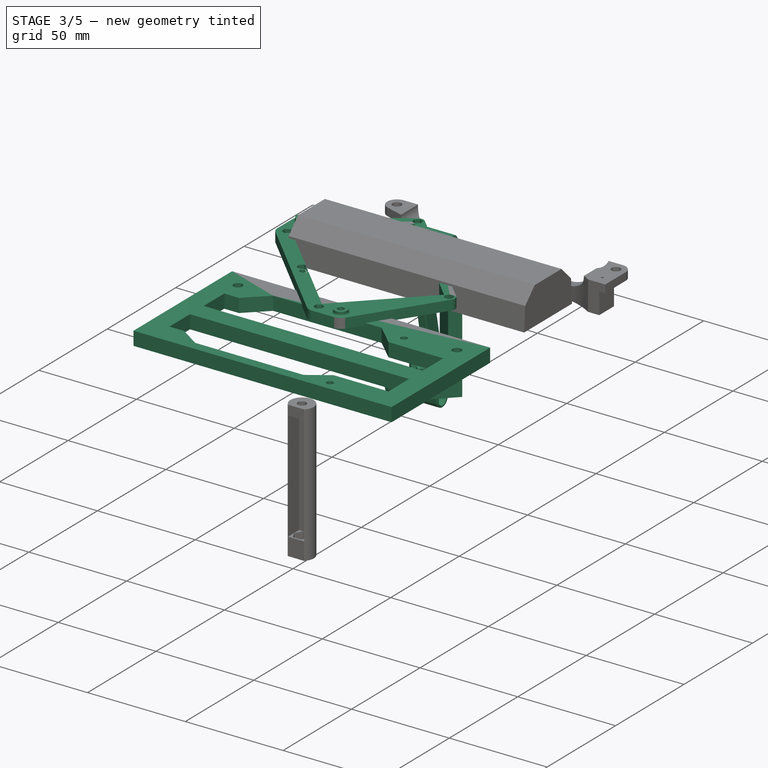
[diagram: stage 3 of 5 — iso view after this stage's code; geometry added in this stage tinted green]
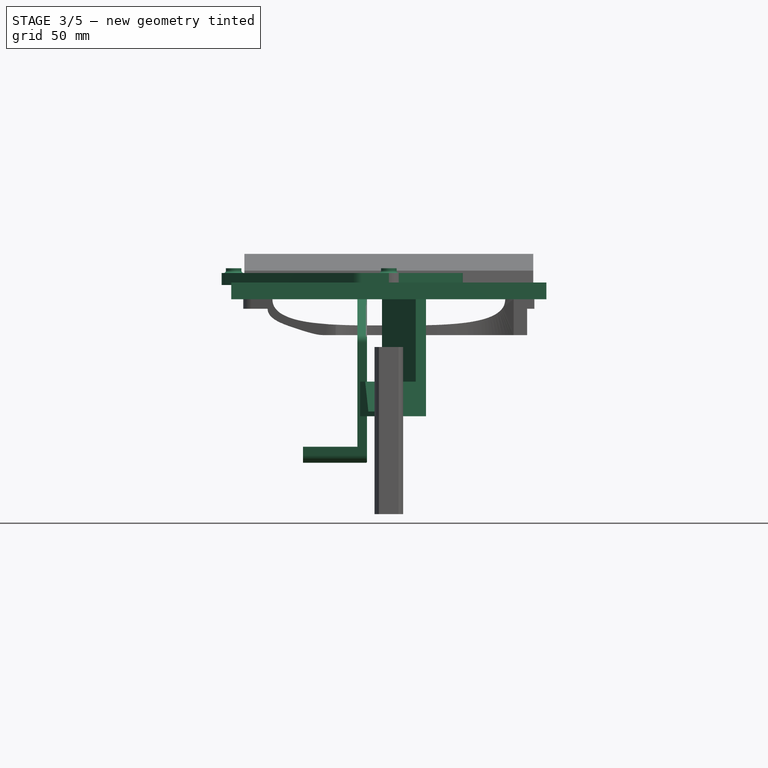
[diagram: stage 3 of 5 — front view after this stage's code; geometry added in this stage tinted green]
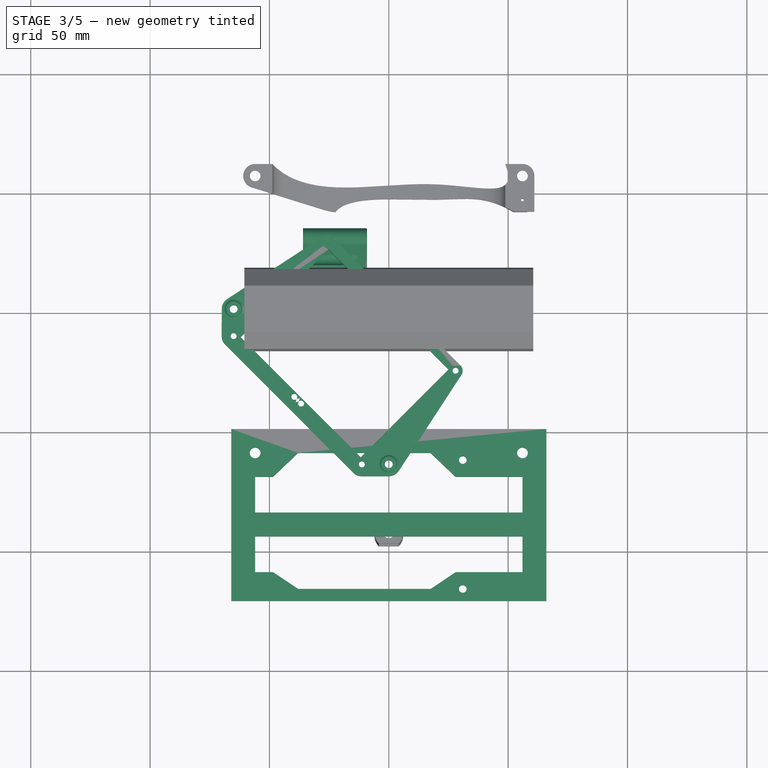
[diagram: stage 3 of 5 — top view after this stage's code; geometry added in this stage tinted green]
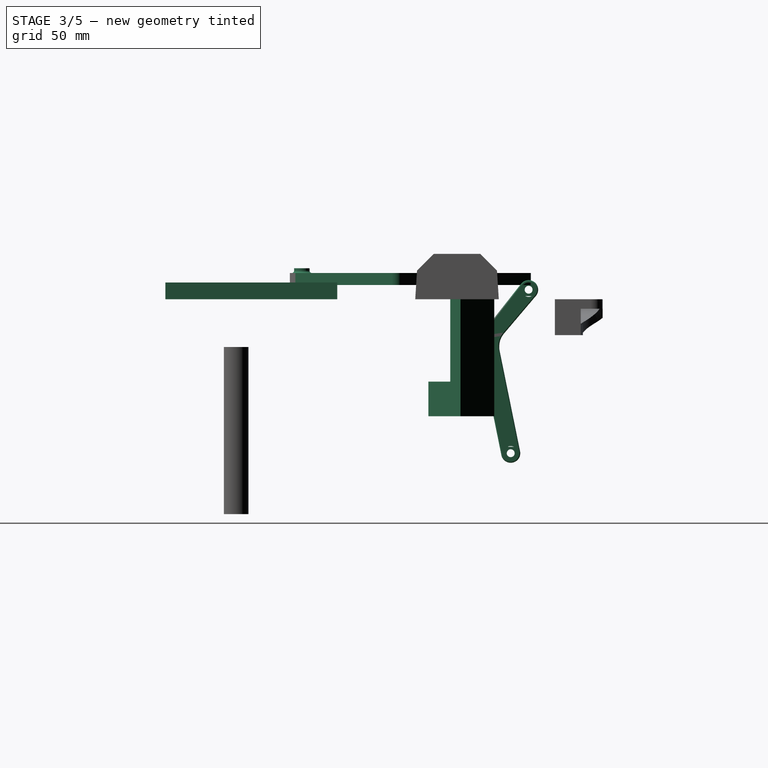
[diagram: stage 3 of 5 — right view after this stage's code; geometry added in this stage tinted green]
FEATURE [PartDesign::Body] Body016  label="left002"
  AllowCompound = false
  Group = -> [Sketch051,Pad016,Sketch052,Pocket034,Sketch053,Pocket035,Sketch055,Pocket037,Sketch056,Pocket038,Fillet003]
  Origin = -> Origin030
  Tip = -> Fillet003
FEATURE [App::Part] Part011  label="right001"
  Group = -> [Body016]
  Origin = -> Origin029
  Placement = pos=(91,0,17) rot=(0,0,1;3.14159rad)
FEATURE [App::DocumentObjectGroup] Group002  label="rotary"
  Group = -> [Part006,Part011,Link,Link001,Link002]
FEATURE [PartDesign::SubShapeBinder] Binder
  BindCopyOnChange = 0
  BindMode = 0
  ClaimChildren = false
  Context = -> Part012 [Body017.Binder.]
  Fuse = false
  MakeFace = true
  OffsetFill = false
  OffsetIntersection = false
  OffsetJoinType = 0
  OffsetOpenResult = false
  PartialLoad = false
  Relative = true
  Support = -> [Part005[Body007.]]
  _Version = 2
FEATURE [Sketcher::SketchObject] Sketch060
  ArcFitTolerance = 1e-06
  AttachmentSupport = -> [Binder]
  ExternalGeometry = -> [Binder]
  FullyConstrained = false
  MakeInternals = false
  MapMode = 5
  Placement = pos=(0,0,11) rot=(1,0,0;3.14159rad)
  sketch-geometry (30):
    g0: LineSegment [constr] StartX=-65.0269 StartY=11.2868 StartZ=0 EndX=-11.2868 EndY=65.0269 EndZ=0
    g1: LineSegment [constr] StartX=-11.2868 StartY=65.0269 StartZ=0 EndX=27.9576 EndY=25.7825 EndZ=0
    g2: LineSegment [constr] StartX=27.9576 StartY=25.7825 StartZ=0 EndX=-25.7825 EndY=-27.9576 EndZ=0
    g3: LineSegment [constr] StartX=-25.7825 StartY=-27.9576 StartZ=0 EndX=-65.0269 EndY=11.2868 EndZ=0
    g4: LineSegment [constr] StartX=-38.1569 StartY=38.1569 StartZ=0 EndX=1.08757 EndY=-1.08757 EndZ=0
    g5: Circle CenterX=-65.0269 CenterY=11.2868 CenterZ=0 NormalX=0 NormalY=0 NormalZ=1 AngleXU=0 Radius=1.25
    g6: Circle CenterX=-25.7825 CenterY=-27.9576 CenterZ=0 NormalX=0 NormalY=0 NormalZ=1 AngleXU=0 Radius=1.25
    g7: Circle CenterX=27.9576 CenterY=25.7825 CenterZ=0 NormalX=0 NormalY=0 NormalZ=1 AngleXU=0 Radius=1.25
    g8: Circle CenterX=-11.2868 CenterY=65.0269 CenterZ=0 NormalX=0 NormalY=0 NormalZ=1 AngleXU=0 Radius=1.25
    g9: Circle CenterX=-36.7426 CenterY=39.5711 CenterZ=0 NormalX=0 NormalY=0 NormalZ=1 AngleXU=0 Radius=1.25
    g10: Circle CenterX=-39.5711 CenterY=36.7426 CenterZ=0 NormalX=0 NormalY=0 NormalZ=1 AngleXU=0 Radius=1.25
    g11: Circle CenterX=-0.326641 CenterY=-2.50179 CenterZ=0 NormalX=0 NormalY=0 NormalZ=1 AngleXU=0 Radius=1.25
    g12: Circle CenterX=2.50179 CenterY=0.326641 CenterZ=0 NormalX=0 NormalY=0 NormalZ=1 AngleXU=0 Radius=1.25
    g13: GeomPoint [constr] X=-18.5346 Y=18.5346 Z=0
    g14: LineSegment [constr] StartX=0 StartY=65 StartZ=0 EndX=-65 EndY=0 EndZ=0
    g15: GeomPoint [constr] X=-32.5 Y=32.5 Z=0
    g16: LineSegment StartX=-68.5624 StartY=14.8223 StartZ=0 EndX=-14.8223 EndY=68.5624 EndZ=0
    g17: LineSegment StartX=30.079 StartY=23.6612 StartZ=0 EndX=-23.6612 EndY=-30.079 EndZ=0
    g18: ArcOfCircle CenterX=-11.2868 CenterY=65.0269 CenterZ=0 NormalX=0 NormalY=0 NormalZ=1 AngleXU=0 Radius=5 StartAngle=1.56841 EndAngle=2.35619
    g19: ArcOfCircle CenterX=0 CenterY=65 CenterZ=0 NormalX=0 NormalY=0 NormalZ=1 AngleXU=0 Radius=5 StartAngle=0.577784 EndAngle=1.56841
    g20: LineSegment StartX=-11.2749 StartY=70.0269 StartZ=0 EndX=0.0119218 EndY=70 EndZ=0
    g21: ArcOfCircle CenterX=27.9576 CenterY=25.7825 CenterZ=0 NormalX=0 NormalY=0 NormalZ=1 AngleXU=0 Radius=3 StartAngle=5.49779 EndAngle=6.86097
    g22: LineSegment StartX=4.18837 StartY=67.7308 StartZ=0 EndX=30.4707 EndY=27.421 EndZ=0
    g23: ArcOfCircle CenterX=-25.7825 CenterY=-27.9576 CenterZ=0 NormalX=0 NormalY=0 NormalZ=1 AngleXU=0 Radius=3 StartAngle=4.1346 EndAngle=5.49779
    g24: ArcOfCircle CenterX=-65.0269 CenterY=11.2868 CenterZ=0 NormalX=0 NormalY=0 NormalZ=1 AngleXU=0 Radius=5 StartAngle=2.35619 EndAngle=3.14398
    g25: ArcOfCircle CenterX=-65 CenterY=0 CenterZ=0 NormalX=0 NormalY=0 NormalZ=1 AngleXU=0 Radius=5 StartAngle=3.14398 EndAngle=4.1346
    g26: LineSegment StartX=-70.0269 StartY=11.2749 StartZ=0 EndX=-70 EndY=-0.0119218 EndZ=0
    g27: LineSegment StartX=-67.7308 StartY=-4.18837 StartZ=0 EndX=-27.421 EndY=-30.4707 EndZ=0
    g28: Circle CenterX=0 CenterY=65 CenterZ=0 NormalX=0 NormalY=0 NormalZ=1 AngleXU=0 Radius=1.65
    g29: Circle CenterX=-65 CenterY=0 CenterZ=0 NormalX=0 NormalY=0 NormalZ=1 AngleXU=0 Radius=1.65
  constraints (74):
    c: Coincident(g0,g1)
    c: Coincident(g1,g2)
    c: Coincident(g2,g3)
    c: Coincident(g3,g0)
    c: Angle(g3,g0) = 1.5708
    c: Angle(g0,g1) = 1.5708
    c: Equal(g1,g3)
    c: Symmetric(g0,g0,g4)
    c: Symmetric(g2,g2,g4)
    c: Distance(g0,g0) = 76
    c: Coincident(g5,g0)
    c: Coincident(g6,g2)
    c: Coincident(g7,g1)
    c: Coincident(g8,g0)
    c: PointOnObject(g9,g0)
    c: PointOnObject(g11,g2)
    c: Symmetric(g9,g10,g4)
    c: Symmetric(g12,g11,g4)
    c: Equal(g8,g9)
    c: Equal(g10,g5)
    c: Equal(g6,g11)
    c: Equal(g12,g7)
    c: Equal(g7,g8)
    c: Equal(g6,g5)
    c: Equal(g8,g5)
    c: Diameter(g8) = 2.5
    c: Distance(g10,g9) = 4
    c: Distance(g12,g11) = 4
    c: Distance(g1,g1) = 55.5
    c: Symmetric(g4,g4,g13)
    c: Parallel(g0,g14)
    c: Symmetric(g14,g14,g15)
    c: PointOnObject(g15,g4)
    c: Coincident(g14,g-4)
    c: Coincident(g14,g-3)
    c: Distance(g15,g4) = 8
    c: Coincident(g18,g0)
    c: Coincident(g18,g16)
    c: Angle(g16,g18,g16) = 3.14159
    c: Coincident(g19,g14)
    c: Coincident(g20,g18)
    c: Coincident(g20,g19)
    c: Angle(g20,g18,g18) = 3.14159
    c: Angle(g19,g20,g19) = 3.14159
    c: Radius(g19) = 5
    c: Radius(g18) = 5
    c: Coincident(g21,g1)
    c: Coincident(g17,g21)
    c: Angle(g17,g21,g17) = 3.14159
    c: Coincident(g22,g19)
    c: Coincident(g22,g21)
    c: Angle(g21,g22,g21) = 3.14159
    c: Radius(g21) = 3
    c: Coincident(g23,g2)
    c: Coincident(g17,g23)
    c: Angle(g17,g23,g17) = 3.14159
    c: Coincident(g24,g0)
    c: Coincident(g25,g14)
    c: Coincident(g16,g24)
    c: Angle(g16,g24,g16) = 3.14159
    c: Coincident(g26,g24)
    c: Coincident(g26,g25)
    c: Angle(g25,g26,g25) = 0
    c: Equal(g24,g25)
    c: Equal(g24,g18)
    c: Angle(g26,g24,g24) = 0
    c: Coincident(g27,g25)
    c: Coincident(g27,g23)
    c: Angle(g23,g27,g23) = 0
    c: Angle(g27,g25,g25) = 0
    c: Equal(g21,g23)
    c: Angle(g22,g19,g19) = 3.14159
    c: Coincident(g28,g14)
    c: Coincident(g29,g14)
FEATURE [PartDesign::Pad] Pad017
  Direction = (0,0,-1)
  Length = 5
  Length2 = 10
  Profile = -> Sketch060
  ReferenceAxis = -> Sketch060 [N_Axis]
  Suppressed = false
  Type = 0
FEATURE [Sketcher::SketchObject] Sketch061
  ArcFitTolerance = 1e-06
  AttachmentSupport = -> [Pad017]
  ExternalGeometry = -> [Pad017]
  FullyConstrained = false
  MakeInternals = false
  MapMode = 5
  Placement = pos=(0,0,11) rot=(0,0,1;0rad)
  sketch-geometry (4):
    g0: Circle CenterX=-65 CenterY=0 CenterZ=0 NormalX=0 NormalY=0 NormalZ=1 AngleXU=0 Radius=3.25
    g1: Circle CenterX=0 CenterY=-65 CenterZ=0 NormalX=0 NormalY=0 NormalZ=1 AngleXU=0 Radius=3.25
    g2: Circle CenterX=0 CenterY=-65 CenterZ=0 NormalX=0 NormalY=0 NormalZ=1 AngleXU=0 Radius=1.65
    g3: Circle CenterX=-65 CenterY=0 CenterZ=0 NormalX=0 NormalY=0 NormalZ=1 AngleXU=0 Radius=1.65
  constraints (6):
    c: Coincident(g0,g-4)
    c: Coincident(g1,g-3)
    c: Equal(g0,g1)
    c: Diameter(g1) = 6.5
    c: Coincident(g2,g1)
    c: Coincident(g3,g0)
FEATURE [PartDesign::Pad] Pad018
  BaseFeature = -> Pad017
  Direction = (0,0,1)
  Length = 2
  Length2 = 10
  Profile = -> Sketch061
  ReferenceAxis = -> Sketch061 [N_Axis]
  Suppressed = false
  Type = 0
FEATURE [PartDesign::Fillet] Fillet004
  Base = -> Pad018 [Edge23,Edge26]
  BaseFeature = -> Pad018
  Radius = 1
  SupportTransform = false
  Suppressed = false
  UseAllEdges = false
FEATURE [Sketcher::SketchObject] Sketch062
  ArcFitTolerance = 1e-06
  AttachmentSupport = -> [Fillet004]
  ExternalGeometry = -> [Fillet004]
  FullyConstrained = false
  MakeInternals = false
  MapMode = 5
  Placement = pos=(0,0,11) rot=(0,0,1;0rad)
  sketch-geometry (56):
    g0: LineSegment StartX=-63.0269 StartY=-12.4415 StartZ=0 EndX=-63.0269 EndY=-10.1321 EndZ=0
    g1: LineSegment StartX=-63.0269 StartY=-10.1321 StartZ=0 EndX=-65.0269 EndY=-8.9774 EndZ=0
    g2: LineSegment StartX=-65.0269 StartY=-8.9774 StartZ=0 EndX=-67.0269 EndY=-10.1321 EndZ=0
    g3: LineSegment StartX=-67.0269 StartY=-10.1321 StartZ=0 EndX=-67.0269 EndY=-12.4415 EndZ=0
    g4: LineSegment StartX=-67.0269 StartY=-12.4415 StartZ=0 EndX=-65.0269 EndY=-13.5962 EndZ=0
    g5: LineSegment StartX=-65.0269 StartY=-13.5962 StartZ=0 EndX=-63.0269 EndY=-12.4415 EndZ=0
    g6: Circle [constr] CenterX=-65.0269 CenterY=-11.2868 CenterZ=0 NormalX=0 NormalY=0 NormalZ=1 AngleXU=0 Radius=2.3094
    g7: LineSegment StartX=-41.8018 StartY=-36.1449 StartZ=0 EndX=-41.2041 EndY=-38.3756 EndZ=0
    g8: LineSegment StartX=-41.2041 StartY=-38.3756 StartZ=0 EndX=-38.9734 EndY=-38.9734 EndZ=0
    g9: LineSegment StartX=-38.9734 StartY=-38.9734 StartZ=0 EndX=-37.3404 EndY=-37.3404 EndZ=0
    g10: LineSegment StartX=-37.3404 StartY=-37.3404 StartZ=0 EndX=-37.9381 EndY=-35.1096 EndZ=0
    g11: LineSegment StartX=-37.9381 StartY=-35.1096 StartZ=0 EndX=-40.1688 EndY=-34.5119 EndZ=0
    g12: LineSegment StartX=-40.1688 StartY=-34.5119 StartZ=0 EndX=-41.8018 EndY=-36.1449 EndZ=0
    g13: Circle [constr] CenterX=-39.5711 CenterY=-36.7426 CenterZ=0 NormalX=0 NormalY=0 NormalZ=1 AngleXU=0 Radius=2.3094
    g14: LineSegment StartX=-35.1096 StartY=-37.9381 StartZ=0 EndX=-37.3404 EndY=-37.3404 EndZ=0
    g15: LineSegment StartX=-37.3404 StartY=-37.3404 StartZ=0 EndX=-38.9734 EndY=-38.9734 EndZ=0
    g16: LineSegment StartX=-38.9734 StartY=-38.9734 StartZ=0 EndX=-38.3756 EndY=-41.2041 EndZ=0
    g17: LineSegment StartX=-38.3756 StartY=-41.2041 StartZ=0 EndX=-36.1449 EndY=-41.8018 EndZ=0
    g18: LineSegment StartX=-36.1449 StartY=-41.8018 StartZ=0 EndX=-34.5119 EndY=-40.1688 EndZ=0
    g19: LineSegment StartX=-34.5119 StartY=-40.1688 StartZ=0 EndX=-35.1096 EndY=-37.9381 EndZ=0
    g20: Circle [constr] CenterX=-36.7426 CenterY=-39.5711 CenterZ=0 NormalX=0 NormalY=0 NormalZ=1 AngleXU=0 Radius=2.3094
    g21: LineSegment StartX=-11.2868 StartY=-62.7175 StartZ=0 EndX=-13.2868 EndY=-63.8722 EndZ=0
    g22: LineSegment StartX=-13.2868 StartY=-63.8722 StartZ=0 EndX=-13.2868 EndY=-66.1816 EndZ=0
    g23: LineSegment StartX=-13.2868 StartY=-66.1816 StartZ=0 EndX=-11.2868 EndY=-67.3363 EndZ=0
    g24: LineSegment StartX=-11.2868 StartY=-67.3363 StartZ=0 EndX=-9.2868 EndY=-66.1816 EndZ=0
    g25: LineSegment StartX=-9.2868 StartY=-66.1816 StartZ=0 EndX=-9.2868 EndY=-63.8722 EndZ=0
    g26: LineSegment StartX=-9.2868 StartY=-63.8722 StartZ=0 EndX=-11.2868 EndY=-62.7175 EndZ=0
    g27: Circle [constr] CenterX=-11.2868 CenterY=-65.0269 CenterZ=0 NormalX=0 NormalY=0 NormalZ=1 AngleXU=0 Radius=2.3094
    g28: LineSegment StartX=29.1123 StartY=-23.7825 StartZ=0 EndX=26.8029 EndY=-23.7825 EndZ=0
    g29: LineSegment StartX=26.8029 StartY=-23.7825 StartZ=0 EndX=25.6482 EndY=-25.7825 EndZ=0
    g30: LineSegment StartX=25.6482 StartY=-25.7825 StartZ=0 EndX=26.8029 EndY=-27.7825 EndZ=0
    g31: LineSegment StartX=26.8029 StartY=-27.7825 StartZ=0 EndX=29.1123 EndY=-27.7825 EndZ=0
    g32: LineSegment StartX=29.1123 StartY=-27.7825 StartZ=0 EndX=30.267 EndY=-25.7825 EndZ=0
    g33: LineSegment StartX=30.267 StartY=-25.7825 StartZ=0 EndX=29.1123 EndY=-23.7825 EndZ=0
    g34: Circle [constr] CenterX=27.9576 CenterY=-25.7825 CenterZ=0 NormalX=0 NormalY=0 NormalZ=1 AngleXU=0 Radius=2.3094
    g35: LineSegment StartX=4.7325 StartY=-0.924358 StartZ=0 EndX=4.13478 EndY=1.30635 EndZ=0
    g36: LineSegment StartX=4.13478 StartY=1.30635 StartZ=0 EndX=1.90407 EndY=1.90407 EndZ=0
    g37: LineSegment StartX=1.90407 StartY=1.90407 StartZ=0 EndX=0.271076 EndY=0.271076 EndZ=0
    g38: LineSegment StartX=0.271076 StartY=0.271076 StartZ=0 EndX=0.868793 EndY=-1.95963 EndZ=0
    g39: LineSegment StartX=0.868793 StartY=-1.95963 StartZ=0 EndX=3.0995 EndY=-2.55735 EndZ=0
    g40: LineSegment StartX=3.0995 StartY=-2.55735 StartZ=0 EndX=4.7325 EndY=-0.924358 EndZ=0
    g41: Circle [constr] CenterX=2.50179 CenterY=-0.326641 CenterZ=0 NormalX=0 NormalY=0 NormalZ=1 AngleXU=0 Radius=2.3094
    g42: LineSegment StartX=-2.55735 StartY=3.0995 StartZ=0 EndX=-1.95963 EndY=0.868793 EndZ=0
    g43: LineSegment StartX=-1.95963 StartY=0.868793 StartZ=0 EndX=0.271076 EndY=0.271076 EndZ=0
    g44: LineSegment StartX=0.271076 StartY=0.271076 StartZ=0 EndX=1.90407 EndY=1.90407 EndZ=0
    g45: LineSegment StartX=1.90407 StartY=1.90407 StartZ=0 EndX=1.30635 EndY=4.13478 EndZ=0
    g46: LineSegment StartX=1.30635 StartY=4.13478 StartZ=0 EndX=-0.924358 EndY=4.7325 EndZ=0
    g47: LineSegment StartX=-0.924358 StartY=4.7325 StartZ=0 EndX=-2.55735 EndY=3.0995 EndZ=0
    g48: Circle [constr] CenterX=-0.326641 CenterY=2.50179 CenterZ=0 NormalX=0 NormalY=0 NormalZ=1 AngleXU=0 Radius=2.3094
    g49: LineSegment StartX=-26.1927 StartY=30.2303 StartZ=0 EndX=-27.9558 EndY=28.7387 EndZ=0
    g50: LineSegment StartX=-27.9558 StartY=28.7387 StartZ=0 EndX=-27.5456 EndY=26.466 EndZ=0
    g51: LineSegment StartX=-27.5456 StartY=26.466 StartZ=0 EndX=-25.3722 EndY=25.685 EndZ=0
    g52: LineSegment StartX=-25.3722 StartY=25.685 StartZ=0 EndX=-23.6092 EndY=27.1766 EndZ=0
    g53: LineSegment StartX=-23.6092 StartY=27.1766 StartZ=0 EndX=-24.0194 EndY=29.4492 EndZ=0
    g54: LineSegment StartX=-24.0194 StartY=29.4492 StartZ=0 EndX=-26.1927 EndY=30.2303 EndZ=0
    g55: Circle [constr] CenterX=-25.7825 CenterY=27.9576 CenterZ=0 NormalX=0 NormalY=0 NormalZ=1 AngleXU=0 Radius=2.3094
  constraints (125):
    c: Coincident(g0,g1)
    c: Coincident(g1,g2)
    c: Coincident(g2,g3)
    c: Coincident(g3,g4)
    c: Coincident(g4,g5)
    c: Coincident(g5,g0)
    c: Equal(g0, g1-g5) x5
    c: PointOnObject(g0,g6)
    c: PointOnObject(g1,g6)
    c: PointOnObject(g2,g6)
    c: PointOnObject(g3,g6)
    c: PointOnObject(g4,g6)
    c: PointOnObject(g5,g6)
    c: Coincident(g6,g-4)
    c: Coincident(g7,g8)
    c: Coincident(g8,g9)
    c: Coincident(g9,g10)
    c: Coincident(g10,g11)
    c: Coincident(g11,g12)
    c: Coincident(g12,g7)
    c: Equal(g7, g8-g12) x5
    c: PointOnObject(g7,g13)
    c: PointOnObject(g8,g13)
    c: PointOnObject(g9,g13)
    c: PointOnObject(g10,g13)
    c: PointOnObject(g11,g13)
    c: PointOnObject(g12,g13)
    c: Coincident(g13,g-8)
    c: Coincident(g14,g15)
    c: Coincident(g15,g16)
    c: Coincident(g16,g17)
    c: Coincident(g17,g18)
    c: Coincident(g18,g19)
    c: Coincident(g19,g14)
    c: Equal(g14, g15-g19) x5
    c: PointOnObject(g14,g20)
    c: PointOnObject(g15,g20)
    c: PointOnObject(g16,g20)
    c: PointOnObject(g17,g20)
    c: PointOnObject(g18,g20)
    c: PointOnObject(g19,g20)
    c: Coincident(g20,g-9)
    c: Coincident(g21,g22)
    c: Coincident(g22,g23)
    c: Coincident(g23,g24)
    c: Coincident(g24,g25)
    c: Coincident(g25,g26)
    c: Coincident(g26,g21)
    c: Equal(g21, g22-g26) x5
    c: PointOnObject(g21,g27)
    c: PointOnObject(g22,g27)
    c: PointOnObject(g23,g27)
    c: PointOnObject(g24,g27)
    c: PointOnObject(g25,g27)
    c: PointOnObject(g26,g27)
    c: Coincident(g27,g-10)
    c: Coincident(g28,g29)
    c: Coincident(g29,g30)
    c: Coincident(g30,g31)
    c: Coincident(g31,g32)
    c: Coincident(g32,g33)
    c: Coincident(g33,g28)
    c: Equal(g28, g29-g33) x5
    c: PointOnObject(g28,g34)
    c: PointOnObject(g29,g34)
    c: PointOnObject(g30,g34)
    c: PointOnObject(g31,g34)
    c: PointOnObject(g32,g34)
    c: PointOnObject(g33,g34)
    c: Coincident(g34,g-7)
    c: Coincident(g35,g36)
    c: Coincident(g36,g37)
    c: Coincident(g37,g38)
    c: Coincident(g38,g39)
    c: Coincident(g39,g40)
    c: Coincident(g40,g35)
    c: Equal(g35, g36-g40) x5
    c: PointOnObject(g35,g41)
    c: PointOnObject(g36,g41)
    c: PointOnObject(g37,g41)
    c: PointOnObject(g38,g41)
    c: PointOnObject(g39,g41)
    c: PointOnObject(g40,g41)
    c: Coincident(g41,g-6)
    c: Coincident(g42,g43)
    c: Coincident(g43,g44)
    c: Coincident(g44,g45)
    c: Coincident(g45,g46)
    c: Coincident(g46,g47)
    c: Coincident(g47,g42)
    c: Equal(g42, g43-g47) x5
    c: PointOnObject(g42,g48)
    c: PointOnObject(g43,g48)
    c: PointOnObject(g44,g48)
    c: PointOnObject(g45,g48)
    c: PointOnObject(g46,g48)
    c: PointOnObject(g47,g48)
    c: Coincident(g48,g-5)
    c: Coincident(g49,g50)
    c: Coincident(g50,g51)
    c: Coincident(g51,g52)
    c: Coincident(g52,g53)
    c: Coincident(g53,g54)
    c: Coincident(g54,g49)
    c: Equal(g49, g50-g54) x5
    c: PointOnObject(g49,g55)
    c: PointOnObject(g50,g55)
    c: PointOnObject(g51,g55)
    c: PointOnObject(g52,g55)
    c: PointOnObject(g53,g55)
    c: PointOnObject(g54,g55)
    c: Coincident(g55,g-3)
    c: Equal(g55,g48)
    c: Equal(g48,g41)
    c: Equal(g41,g34)
    c: Equal(g34,g27)
    c: Equal(g27,g20)
    c: Equal(g20,g13)
    c: Equal(g13,g6)
    c: Vertical(g0)
    c: DistanceX(g2,g0) = 4
    c: Coincident(g36,g44)
    c: Coincident(g14,g9)
    c: Horizontal(g28)
    c: Vertical(g25)
FEATURE [PartDesign::Pocket] Pocket042
  BaseFeature = -> Fillet004
  Direction = (0,0,-1)
  Length = 2
  Length2 = 5
  Profile = -> Sketch062
  ReferenceAxis = -> Sketch062 [N_Axis]
  Suppressed = false
  Type = 0
FEATURE [Sketcher::SketchObject] Sketch063
  ArcFitTolerance = 1e-06
  AttachmentSupport = -> [Pocket042]
  ExternalGeometry = -> [Pocket042]
  FullyConstrained = true
  MakeInternals = false
  MapMode = 5
  Placement = pos=(0,0,6) rot=(1,0,0;3.14159rad)
  sketch-geometry (8):
    g0: LineSegment StartX=-25.3204 StartY=-24.9934 StartZ=0 EndX=24.9934 EndY=25.3204 EndZ=0
    g1: LineSegment StartX=24.9934 StartY=25.3204 StartZ=0 EndX=-11.7489 EndY=62.0627 EndZ=0
    g2: LineSegment StartX=-11.7489 StartY=62.0627 StartZ=0 EndX=-62.0627 EndY=11.7489 EndZ=0
    g3: LineSegment StartX=-62.0627 StartY=11.7489 StartZ=0 EndX=-25.3204 EndY=-24.9934 EndZ=0
    g4: LineSegment [constr] StartX=-62.0627 StartY=11.7489 StartZ=0 EndX=24.9934 EndY=25.3204 EndZ=0
    g5: LineSegment [constr] StartX=-25.3204 StartY=-24.9934 StartZ=0 EndX=-11.7489 EndY=62.0627 EndZ=0
    g6: GeomPoint [constr] X=-18.5346 Y=18.5346 Z=0
    g7: GeomPoint [constr] X=-18.5346 Y=18.5346 Z=0
  constraints (16):
    c: Coincident(g0,g1)
    c: Coincident(g1,g2)
    c: Coincident(g2,g3)
    c: Coincident(g3,g0)
    c: Coincident(g4,g2)
    c: Coincident(g4,g0)
    c: Coincident(g5,g0)
    c: Coincident(g5,g1)
    c: Symmetric(g4,g4,g6)
    c: Symmetric(g5,g5,g7)
    c: Coincident(g7,g6)
    c: Angle(g2,g3,g2) = 1.5708
    c: PointOnObject(g-3,g4)
    c: Symmetric(g-3,g-5,g6)
    c: PointOnObject(g-4,g5)
    c: Distance(g-5,g0) = 3
FEATURE [PartDesign::Pocket] Pocket043
  BaseFeature = -> Pocket042
  Direction = (0,0,1)
  Length = 5
  Length2 = 5
  Profile = -> Sketch063
  ReferenceAxis = -> Sketch063 [N_Axis]
  Suppressed = false
  Type = 1
FEATURE [PartDesign::Body] Body020  label="usb_bracket"
  AllowCompound = false
  Group = -> [Binder002,Sketch067,Pad021,Sketch068,Pocket045,Sketch071,Pad022,Sketch073,Pad023,Sketch074,Pocket047,Sketch075,Pad024,Chamfer003,Fillet009]
  Origin = -> Origin036
  Placement = pos=(31,0,0) rot=(0,0,1;0rad)
  Tip = -> Fillet009
FEATURE [App::Part] Part013  label="usb"
  Group = -> [Body018,Body020]
  Origin = -> Origin033
  Placement = pos=(0,0,17) rot=(0,0,1;0rad)
FEATURE [Sketcher::SketchObject] Sketch076
  ArcFitTolerance = 1e-06
  AttachmentSupport = -> [Pocket043]
  ExternalGeometry = -> [Pocket043]
  FullyConstrained = true
  MakeInternals = false
  MapMode = 5
  Placement = pos=(0,0,11) rot=(0,0,1;0rad)
  sketch-geometry (5):
    g0: LineSegment StartX=-3.86218 StartY=10.28 StartZ=0 EndX=10.28 EndY=-3.86218 EndZ=0
    g1: LineSegment StartX=10.28 StartY=-3.86218 StartZ=0 EndX=15.5833 EndY=1.44113 EndZ=0
    g2: LineSegment StartX=15.5833 StartY=1.44113 StartZ=0 EndX=1.44113 EndY=15.5833 EndZ=0
    g3: LineSegment StartX=1.44113 StartY=15.5833 StartZ=0 EndX=-3.86218 EndY=10.28 EndZ=0
    g4: LineSegment [constr] StartX=3.20889 StartY=3.20889 StartZ=0 EndX=8.51219 EndY=8.51219 EndZ=0
  constraints (14):
    c: PointOnObject(g0,g-3)
    c: PointOnObject(g0,g-3)
    c: Coincident(g0,g1)
    c: Coincident(g1,g2)
    c: Coincident(g2,g3)
    c: Coincident(g3,g0)
    c: Parallel(g1,g3)
    c: Symmetric(g0,g0,g4)
    c: Symmetric(g2,g2,g4)
    c: PointOnObject(g-1,g4)
    c: Distance(g0,g0) = 20
    c: Parallel(g2,g0)
    c: Angle(g1,g0) = 1.5708
    c: Distance(g1,g1) = 7.5
FEATURE [PartDesign::Pad] Pad025
  BaseFeature = -> Pocket043
  Direction = (0,0,1)
  Length = 60
  Length2 = 10
  Profile = -> Sketch076
  ReferenceAxis = -> Sketch076 [N_Axis]
  Reversed = true
  Suppressed = false
  Type = 0
FEATURE [Sketcher::SketchObject] Sketch082
  ArcFitTolerance = 1e-06
  AttachmentSupport = -> [Pad025]
  ExternalGeometry = -> [Pad025]
  FullyConstrained = true
  MakeInternals = false
  MapMode = 5
  Placement = pos=(0,0,-49) rot=(1,0,0;3.14159rad)
  sketch-geometry (7):
    g0: LineSegment StartX=-3.86218 StartY=-10.28 StartZ=0 EndX=10.28 EndY=3.86218 EndZ=0
    g1: LineSegment StartX=10.28 StartY=3.86218 StartZ=0 EndX=2.12132 EndY=12.0208 EndZ=0
    g2: LineSegment StartX=2.12132 StartY=12.0208 StartZ=0 EndX=-12.0208 EndY=-2.12132 EndZ=0
    g3: LineSegment StartX=-12.0208 StartY=-2.12132 StartZ=0 EndX=-3.86218 EndY=-10.28 EndZ=0
    g4: Circle [constr] CenterX=0 CenterY=0 CenterZ=0 NormalX=0 NormalY=0 NormalZ=1 AngleXU=0 Radius=5
    g5: GeomPoint [constr] X=-3.53553 Y=3.53553 Z=0
    g6: LineSegment [constr] StartX=-4.94975 StartY=4.94975 StartZ=0 EndX=0 EndY=0 EndZ=0
  constraints (16):
    c: Coincident(g-5,g0)
    c: Coincident(g0,g-4)
    c: Coincident(g0,g1)
    c: Coincident(g1,g2)
    c: Coincident(g2,g3)
    c: Coincident(g3,g0)
    c: Parallel(g1,g-4)
    c: Parallel(g0,g2)
    c: Equal(g2,g0)
    c: Coincident(g4,g-1)
    c: Diameter(g4) = 10
    c: PointOnObject(g5,g4)
    c: Symmetric(g2,g2,g6)
    c: Coincident(g6,g4)
    c: PointOnObject(g5,g6)
    c: Distance(g5,g6) = 2
FEATURE [PartDesign::Pad] Pad026
  BaseFeature = -> Pad025
  Direction = (0,0,-1)
  Length = 14.5
  Length2 = 10
  Profile = -> Sketch082
  ReferenceAxis = -> Sketch082 [N_Axis]
  Reversed = true
  Suppressed = false
  Type = 0
FEATURE [PartDesign::Body] Body021  label="balken"
  AllowCompound = false
  Group = -> [Binder003,Sketch085,Pad027,Sketch086,Pocket050,Sketch087,Pocket051,Sketch088,Pocket052]
  Origin = -> Origin038
  Tip = -> Pocket052
FEATURE [PartDesign::SubShapeBinder] Binder004
  BindCopyOnChange = 0
  BindMode = 0
  ClaimChildren = false
  Context = -> Part014 [Body022.Binder004.]
  Fuse = false
  MakeFace = true
  OffsetFill = false
  OffsetIntersection = false
  OffsetJoinType = 0
  OffsetOpenResult = false
  PartialLoad = false
  Relative = true
  Support = -> [Body021]
  _Version = 2
FEATURE [Sketcher::SketchObject] Sketch089
  ArcFitTolerance = 1e-06
  AttachmentSupport = -> [Binder004]
  ExternalGeometry = -> [Binder004]
  FullyConstrained = true
  MakeInternals = false
  MapMode = 5
  Placement = pos=(-28.9645,-28.9645,0) rot=(0.281085,0.678598,0.678598;2.59356rad)
  sketch-geometry (54):
    g0: Circle CenterX=-30 CenterY=4 CenterZ=0 NormalX=0 NormalY=0 NormalZ=1 AngleXU=0 Radius=1.65
    g1: Circle CenterX=30 CenterY=4 CenterZ=0 NormalX=0 NormalY=0 NormalZ=1 AngleXU=0 Radius=1.65
    g2: LineSegment [constr] StartX=-38 StartY=-3 StartZ=0 EndX=-38 EndY=-58.5 EndZ=0
    g3: LineSegment [constr] StartX=-38 StartY=-58.5 StartZ=0 EndX=38 EndY=-58.5 EndZ=0
    g4: LineSegment [constr] StartX=38 StartY=-58.5 StartZ=0 EndX=38 EndY=-3 EndZ=0
    g5: LineSegment [constr] StartX=38 StartY=-3 StartZ=0 EndX=-38 EndY=-3 EndZ=0
    g6: LineSegment [constr] StartX=8e-16 StartY=-3 StartZ=0 EndX=4.4e-15 EndY=-58.5 EndZ=0
    g7: Circle CenterX=-38 CenterY=-3 CenterZ=0 NormalX=0 NormalY=0 NormalZ=1 AngleXU=0 Radius=1.25
    g8: Circle CenterX=38 CenterY=-3 CenterZ=0 NormalX=0 NormalY=0 NormalZ=1 AngleXU=0 Radius=1.25
    g9: Circle CenterX=38 CenterY=-58.5 CenterZ=0 NormalX=0 NormalY=0 NormalZ=1 AngleXU=0 Radius=1.25
    g10: Circle CenterX=-38 CenterY=-58.5 CenterZ=0 NormalX=0 NormalY=0 NormalZ=1 AngleXU=0 Radius=1.25
    g11: Circle CenterX=2 CenterY=-3 CenterZ=0 NormalX=0 NormalY=0 NormalZ=1 AngleXU=0 Radius=1.25
    g12: Circle CenterX=-2 CenterY=-3 CenterZ=0 NormalX=0 NormalY=0 NormalZ=1 AngleXU=0 Radius=1.25
    g13: Circle CenterX=-2 CenterY=-58.5 CenterZ=0 NormalX=0 NormalY=0 NormalZ=1 AngleXU=0 Radius=1.25
    g14: Circle CenterX=2 CenterY=-58.5 CenterZ=0 NormalX=0 NormalY=0 NormalZ=1 AngleXU=0 Radius=1.25
    g15: LineSegment [constr] StartX=-41.5 StartY=-5 StartZ=0 EndX=41.5 EndY=-5 EndZ=0
    g16: LineSegment [constr] StartX=41.5 StartY=-5 StartZ=0 EndX=41.5 EndY=-56.5 EndZ=0
    g17: LineSegment [constr] StartX=41.5 StartY=-56.5 StartZ=0 EndX=-41.5 EndY=-56.5 EndZ=0
    g18: LineSegment [constr] StartX=-41.5 StartY=-56.5 StartZ=0 EndX=-41.5 EndY=-5 EndZ=0
    g19: LineSegment StartX=44.5 StartY=-1 StartZ=0 EndX=44.5 EndY=-64.5 EndZ=0
    g20: LineSegment [constr] StartX=44.5 StartY=-64.5 StartZ=0 EndX=-44.5 EndY=-64.5 EndZ=0
    g21: LineSegment StartX=-44.5 StartY=-64.5 StartZ=0 EndX=-44.5 EndY=-1 EndZ=0
    g22: LineSegment [constr] StartX=-41.5 StartY=-5 StartZ=0 EndX=-44.5 EndY=-1 EndZ=0
    g23: LineSegment [constr] StartX=41.5 StartY=-5 StartZ=0 EndX=44.5 EndY=-1 EndZ=0
    g24: GeomPoint [constr] X=-43 Y=-3 Z=0
    g25: GeomPoint [constr] X=2.6e-15 Y=-30.75 Z=0
    g26: LineSegment StartX=-35 StartY=9 StartZ=0 EndX=35 EndY=9 EndZ=0
    g27: LineSegment StartX=-44.5 StartY=-1 StartZ=0 EndX=-35 EndY=9 EndZ=0
    g28: LineSegment StartX=44.5 StartY=-1 StartZ=0 EndX=35 EndY=9 EndZ=0
    g29: ArcOfCircle CenterX=-2 CenterY=-3 CenterZ=0 NormalX=0 NormalY=0 NormalZ=1 AngleXU=0 Radius=3.5 StartAngle=3.74984 EndAngle=4.71239
    g30: ArcOfCircle CenterX=2 CenterY=-3 CenterZ=0 NormalX=0 NormalY=0 NormalZ=1 AngleXU=0 Radius=3.5 StartAngle=4.71239 EndAngle=5.67494
    g31: LineSegment StartX=-2 StartY=-6.5 StartZ=0 EndX=2 EndY=-6.5 EndZ=0
    g32: ArcOfCircle CenterX=-2 CenterY=-58.5 CenterZ=0 NormalX=0 NormalY=0 NormalZ=1 AngleXU=0 Radius=3.5 StartAngle=1.5708 EndAngle=2.53335
    g33: ArcOfCircle CenterX=2 CenterY=-58.5 CenterZ=0 NormalX=0 NormalY=0 NormalZ=1 AngleXU=0 Radius=3.5 StartAngle=0.608246 EndAngle=1.5708
    g34: LineSegment StartX=-2 StartY=-55 StartZ=0 EndX=2 EndY=-55 EndZ=0
    g35: ArcOfCircle CenterX=38 CenterY=-3 CenterZ=0 NormalX=0 NormalY=0 NormalZ=1 AngleXU=0 Radius=3.5 StartAngle=3.74984 EndAngle=4.71239
    g36: LineSegment StartX=4.87228 StartY=-5 StartZ=0 EndX=35.1277 EndY=-5 EndZ=0
    g37: LineSegment StartX=41.5 StartY=-6.5 StartZ=0 EndX=41.5 EndY=-55 EndZ=0
    g38: LineSegment StartX=41.5 StartY=-6.5 StartZ=0 EndX=38 EndY=-6.5 EndZ=0
    g39: ArcOfCircle CenterX=38 CenterY=-58.5 CenterZ=0 NormalX=0 NormalY=0 NormalZ=1 AngleXU=0 Radius=3.5 StartAngle=1.5708 EndAngle=2.53335
    g40: LineSegment StartX=38 StartY=-55 StartZ=0 EndX=41.5 EndY=-55 EndZ=0
    g41: LineSegment StartX=4.87228 StartY=-56.5 StartZ=0 EndX=35.1277 EndY=-56.5 EndZ=0
    g42: LineSegment StartX=-4.87228 StartY=-56.5 StartZ=0 EndX=-35.1277 EndY=-56.5 EndZ=0
    g43: LineSegment StartX=-41.5 StartY=-55 StartZ=0 EndX=-38 EndY=-55 EndZ=0
    g44: LineSegment StartX=-41.5 StartY=-55 StartZ=0 EndX=-41.5 EndY=-6.5 EndZ=0
    g45: LineSegment StartX=-41.5 StartY=-6.5 StartZ=0 EndX=-38 EndY=-6.5 EndZ=0
    g46: LineSegment StartX=-35.1277 StartY=-5 StartZ=0 EndX=-4.87228 EndY=-5 EndZ=0
    g47: ArcOfCircle CenterX=-38 CenterY=-58.5 CenterZ=0 NormalX=0 NormalY=0 NormalZ=1 AngleXU=0 Radius=3.5 StartAngle=0.608246 EndAngle=1.5708
    g48: ArcOfCircle CenterX=-38 CenterY=-3 CenterZ=0 NormalX=0 NormalY=0 NormalZ=1 AngleXU=0 Radius=3.5 StartAngle=4.71239 EndAngle=5.67494
    g49: Circle CenterX=-22.5 CenterY=-64.5 CenterZ=0 NormalX=0 NormalY=0 NormalZ=1 AngleXU=0 Radius=1.65
    g50: Circle CenterX=22.5 CenterY=-64.5 CenterZ=0 NormalX=0 NormalY=0 NormalZ=1 AngleXU=0 Radius=1.65
    g51: LineSegment StartX=-44.5 StartY=-64.5 StartZ=0 EndX=-25 EndY=-68.5 EndZ=0
    g52: LineSegment StartX=44.5 StartY=-64.5 StartZ=0 EndX=25 EndY=-68.5 EndZ=0
    g53: LineSegment StartX=25 StartY=-68.5 StartZ=0 EndX=-25 EndY=-68.5 EndZ=0
  constraints (145):
    c: Coincident(g0,g-3)
    c: Equal(g0,g-3)
    c: Coincident(g1,g-4)
    c: Equal(g1,g-4)
    c: Coincident(g2,g3)
    c: Coincident(g3,g4)
    c: Coincident(g4,g5)
    c: Coincident(g5,g2)
    c: Vertical(g2)
    c: Vertical(g4)
    c: Horizontal(g3)
    c: Horizontal(g5)
    c: DistanceX(g5,g5) = 76
    c: Symmetric(g5,g5,g6)
    c: Symmetric(g3,g3,g6)
    c: Coincident(g7,g2)
    c: Coincident(g9,g3)
    c: Coincident(g10,g2)
    c: Equal(g7,g10)
    c: Equal(g8,g9)
    c: Coincident(g8,g4)
    c: Equal(g9,g10)
    c: Diameter(g8) = 2.5
    c: DistanceY(g4,g4) = 55.5
    c: PointOnObject(g11,g5)
    c: PointOnObject(g12,g5)
    c: PointOnObject(g13,g3)
    c: PointOnObject(g14,g3)
    c: DistanceX(g11,g4) = 36
    c: DistanceX(g2,g12) = 36
    c: DistanceX(g12,g11) = 4
    c: Equal(g8,g11)
    c: Equal(g12,g7)
    c: Equal(g13,g14)
    c: Equal(g14,g9)
    c: Vertical(g14,g11)
    c: Vertical(g12,g13)
    c: Coincident(g15,g16)
    c: Vertical(g16)
    c: Coincident(g16,g17)
    c: Horizontal(g17)
    c: Coincident(g17,g18)
    c: Vertical(g18)
    c: Coincident(g15,g18)
    c: Vertical(g19)
    c: Coincident(g19,g20)
    c: Horizontal(g20)
    c: Coincident(g20,g21)
    c: Vertical(g21)
    c: Coincident(g22,g15)
    c: Coincident(g23,g15)
    c: Equal(g22,g23)
    c: DistanceY(g15,g21) = 4
    c: Distance(g21,g18) = 3
    c: Symmetric(g22,g22,g24)
    c: Horizontal(g24,g2)
    c: DistanceX(g24,g2) = 5
    c: Symmetric(g6,g6,g25)
    c: Symmetric(g15,g15,g6)
    c: Coincident(g19,g23)
    c: Coincident(g22,g21)
    c: Symmetric(g26,g26,g6)
    c: PointOnObject(g26,g-6)
    c: Coincident(g27,g21)
    c: Coincident(g27,g26)
    c: Coincident(g28,g19)
    c: Coincident(g28,g26)
    c: Horizontal(g19,g21)
    c: DistanceX(g26,g26) = 70
    c: DistanceX(g26,g-1) = 35
    c: DistanceY(g19,g26) = 10
    c: PointOnObject(g29,g15)
    c: Radius(g29) = 3.5
    c: PointOnObject(g30,g15)
    c: Equal(g30,g29)
    c: Coincident(g31,g29)
    c: Coincident(g31,g30)
    c: Horizontal(g31)
    c: DistanceY(g30,g30) = 3.5
    c: Coincident(g30,g11)
    c: Coincident(g29,g12)
    c: Coincident(g32,g13)
    c: PointOnObject(g32,g17)
    c: Coincident(g33,g14)
    c: PointOnObject(g33,g17)
    c: Coincident(g34,g32)
    c: Coincident(g33,g34)
    c: Radius(g32) = 3.5
    c: Symmetric(g33,g32,g6)
    c: Coincident(g35,g4)
    c: PointOnObject(g35,g15)
    c: Radius(g35) = 3.5
    c: Coincident(g36,g30)
    c: Coincident(g36,g35)
    c: PointOnObject(g37,g16)
    c: PointOnObject(g37,g16)
    c: Coincident(g38,g37)
    c: Horizontal(g38)
    c: Coincident(g35,g38)
    c: Vertical(g35,g4)
    c: Coincident(g39,g3)
    c: PointOnObject(g39,g17)
    c: Coincident(g40,g39)
    c: Horizontal(g40)
    c: Coincident(g37,g40)
    c: Radius(g39) = 3.5
    c: PointOnObject(g39,g4)
    c: Coincident(g41,g33)
    c: Coincident(g41,g39)
    c: Coincident(g42,g32)
    c: PointOnObject(g42,g17)
    c: PointOnObject(g43,g18)
    c: Horizontal(g43)
    c: Coincident(g44,g43)
    c: PointOnObject(g44,g18)
    c: Coincident(g45,g44)
    c: Horizontal(g45)
    c: PointOnObject(g46,g15)
    c: Coincident(g46,g29)
    c: Coincident(g47,g2)
    c: Coincident(g47,g42)
    c: Coincident(g47,g43)
    c: Coincident(g48,g2)
    c: Coincident(g48,g45)
    c: Coincident(g48,g46)
    c: Equal(g29,g48)
    c: Equal(g48,g47)
    c: PointOnObject(g43,g2)
    c: PointOnObject(g45,g2)
    c: Vertical(g29,g32)
    c: DistanceY(g19,g19) = 63.5
    c: DistanceY(g19,g3) = 6
    c: DistanceY(g3,g16) = 2
    c: PointOnObject(g49,g20)
    c: Equal(g50,g49)
    c: Symmetric(g50,g49,g6)
    c: DistanceX(g49,g50) = 45
    c: Equal(g50,g1)
    c: Coincident(g51,g20)
    c: Coincident(g52,g19)
    c: Coincident(g53,g52)
    c: Coincident(g53,g51)
    c: Symmetric(g52,g51,g-2)
    c: DistanceX(g53,g53) = 50
    c: DistanceY(g52,g50) = 4
FEATURE [PartDesign::Pad] Pad028
  Direction = (0.707107,0.707107,1e-16)
  Length = 5
  Length2 = 10
  Profile = -> Sketch089
  ReferenceAxis = -> Sketch089 [N_Axis]
  Suppressed = false
  Type = 0
FEATURE [Sketcher::SketchObject] Sketch090
  ArcFitTolerance = 1e-06
  AttachmentSupport = -> [Pad028]
  ExternalGeometry = -> [Pad028]
  FullyConstrained = true
  MakeInternals = false
  MapMode = 5
  Placement = pos=(-28.9645,-28.9645,-8.2e-15) rot=(0.862856,-0.357407,-0.357407;1.71777rad)
  sketch-geometry (56):
    g0: LineSegment StartX=-40 StartY=-1.8453 StartZ=0 EndX=-40 EndY=-4.1547 EndZ=0
    g1: LineSegment StartX=-40 StartY=-4.1547 StartZ=0 EndX=-38 EndY=-5.3094 EndZ=0
    g2: LineSegment StartX=-38 StartY=-5.3094 StartZ=0 EndX=-36 EndY=-4.1547 EndZ=0
    g3: LineSegment StartX=-36 StartY=-4.1547 StartZ=0 EndX=-36 EndY=-1.8453 EndZ=0
    g4: LineSegment StartX=-36 StartY=-1.8453 StartZ=0 EndX=-38 EndY=-0.690599 EndZ=0
    g5: LineSegment StartX=-38 StartY=-0.690599 StartZ=0 EndX=-40 EndY=-1.8453 EndZ=0
    g6: Circle [constr] CenterX=-38 CenterY=-3 CenterZ=0 NormalX=0 NormalY=0 NormalZ=1 AngleXU=0 Radius=2.3094
    g7: LineSegment StartX=-4 StartY=-4.1547 StartZ=0 EndX=-2 EndY=-5.3094 EndZ=0
    g8: LineSegment StartX=-2 StartY=-5.3094 StartZ=0 EndX=-2.11e-14 EndY=-4.1547 EndZ=0
    g9: LineSegment StartX=-2.11e-14 StartY=-4.1547 StartZ=0 EndX=-2.15e-14 EndY=-1.8453 EndZ=0
    g10: LineSegment StartX=-2.15e-14 StartY=-1.8453 StartZ=0 EndX=-2 EndY=-0.690599 EndZ=0
    g11: LineSegment StartX=-2 StartY=-0.690599 StartZ=0 EndX=-4 EndY=-1.8453 EndZ=0
    g12: LineSegment StartX=-4 StartY=-1.8453 StartZ=0 EndX=-4 EndY=-4.1547 EndZ=0
    g13: Circle [constr] CenterX=-2 CenterY=-3 CenterZ=0 NormalX=0 NormalY=0 NormalZ=1 AngleXU=0 Radius=2.3094
    g14: LineSegment StartX=4 StartY=-4.1547 StartZ=0 EndX=4 EndY=-1.8453 EndZ=0
    g15: LineSegment StartX=4 StartY=-1.8453 StartZ=0 EndX=2 EndY=-0.690599 EndZ=0
    g16: LineSegment StartX=2 StartY=-0.690599 StartZ=0 EndX=-7.1e-15 EndY=-1.8453 EndZ=0
    g17: LineSegment StartX=-7.1e-15 StartY=-1.8453 StartZ=0 EndX=-7e-15 EndY=-4.1547 EndZ=0
    g18: LineSegment StartX=-7e-15 StartY=-4.1547 StartZ=0 EndX=2 EndY=-5.3094 EndZ=0
    g19: LineSegment StartX=2 StartY=-5.3094 StartZ=0 EndX=4 EndY=-4.1547 EndZ=0
    g20: Circle [constr] CenterX=2 CenterY=-3 CenterZ=0 NormalX=0 NormalY=0 NormalZ=1 AngleXU=0 Radius=2.3094
    g21: LineSegment StartX=36 StartY=-4.1547 StartZ=0 EndX=38 EndY=-5.3094 EndZ=0
    g22: LineSegment StartX=38 StartY=-5.3094 StartZ=0 EndX=40 EndY=-4.1547 EndZ=0
    g23: LineSegment StartX=40 StartY=-4.1547 StartZ=0 EndX=40 EndY=-1.8453 EndZ=0
    g24: LineSegment StartX=40 StartY=-1.8453 StartZ=0 EndX=38 EndY=-0.690599 EndZ=0
    g25: LineSegment StartX=38 StartY=-0.690599 StartZ=0 EndX=36 EndY=-1.8453 EndZ=0
    g26: LineSegment StartX=36 StartY=-1.8453 StartZ=0 EndX=36 EndY=-4.1547 EndZ=0
    g27: Circle [constr] CenterX=38 CenterY=-3 CenterZ=0 NormalX=0 NormalY=0 NormalZ=1 AngleXU=0 Radius=2.3094
    g28: LineSegment StartX=36 StartY=-59.6547 StartZ=0 EndX=38 EndY=-60.8094 EndZ=0
    g29: LineSegment StartX=38 StartY=-60.8094 StartZ=0 EndX=40 EndY=-59.6547 EndZ=0
    g30: LineSegment StartX=40 StartY=-59.6547 StartZ=0 EndX=40 EndY=-57.3453 EndZ=0
    g31: LineSegment StartX=40 StartY=-57.3453 StartZ=0 EndX=38 EndY=-56.1906 EndZ=0
    g32: LineSegment StartX=38 StartY=-56.1906 StartZ=0 EndX=36 EndY=-57.3453 EndZ=0
    g33: LineSegment StartX=36 StartY=-57.3453 StartZ=0 EndX=36 EndY=-59.6547 EndZ=0
    g34: Circle [constr] CenterX=38 CenterY=-58.5 CenterZ=0 NormalX=0 NormalY=0 NormalZ=1 AngleXU=0 Radius=2.3094
    g35: LineSegment StartX=4 StartY=-59.6547 StartZ=0 EndX=4 EndY=-57.3453 EndZ=0
    g36: LineSegment StartX=4 StartY=-57.3453 StartZ=0 EndX=2 EndY=-56.1906 EndZ=0
    g37: LineSegment StartX=2 StartY=-56.1906 StartZ=0 EndX=-1.38e-14 EndY=-57.3453 EndZ=0
    g38: LineSegment StartX=-1.38e-14 StartY=-57.3453 StartZ=0 EndX=-1.39e-14 EndY=-59.6547 EndZ=0
    g39: LineSegment StartX=-1.39e-14 StartY=-59.6547 StartZ=0 EndX=2 EndY=-60.8094 EndZ=0
    g40: LineSegment StartX=2 StartY=-60.8094 StartZ=0 EndX=4 EndY=-59.6547 EndZ=0
    g41: Circle [constr] CenterX=2 CenterY=-58.5 CenterZ=0 NormalX=0 NormalY=0 NormalZ=1 AngleXU=0 Radius=2.3094
    g42: LineSegment StartX=-4 StartY=-59.6547 StartZ=0 EndX=-2 EndY=-60.8094 EndZ=0
    g43: LineSegment StartX=-2 StartY=-60.8094 StartZ=0 EndX=-2.18e-14 EndY=-59.6547 EndZ=0
    g44: LineSegment StartX=-2.18e-14 StartY=-59.6547 StartZ=0 EndX=-2.16e-14 EndY=-57.3453 EndZ=0
    g45: LineSegment StartX=-2.16e-14 StartY=-57.3453 StartZ=0 EndX=-2 EndY=-56.1906 EndZ=0
    g46: LineSegment StartX=-2 StartY=-56.1906 StartZ=0 EndX=-4 EndY=-57.3453 EndZ=0
    g47: LineSegment StartX=-4 StartY=-57.3453 StartZ=0 EndX=-4 EndY=-59.6547 EndZ=0
    g48: Circle [constr] CenterX=-2 CenterY=-58.5 CenterZ=0 NormalX=0 NormalY=0 NormalZ=1 AngleXU=0 Radius=2.3094
    g49: LineSegment StartX=-36 StartY=-59.6547 StartZ=0 EndX=-36 EndY=-57.3453 EndZ=0
    g50: LineSegment StartX=-36 StartY=-57.3453 StartZ=0 EndX=-38 EndY=-56.1906 EndZ=0
    g51: LineSegment StartX=-38 StartY=-56.1906 StartZ=0 EndX=-40 EndY=-57.3453 EndZ=0
    g52: LineSegment StartX=-40 StartY=-57.3453 StartZ=0 EndX=-40 EndY=-59.6547 EndZ=0
    g53: LineSegment StartX=-40 StartY=-59.6547 StartZ=0 EndX=-38 EndY=-60.8094 EndZ=0
    g54: LineSegment StartX=-38 StartY=-60.8094 StartZ=0 EndX=-36 EndY=-59.6547 EndZ=0
    g55: Circle [constr] CenterX=-38 CenterY=-58.5 CenterZ=0 NormalX=0 NormalY=0 NormalZ=1 AngleXU=0 Radius=2.3094
  constraints (128):
    c: Coincident(g0,g1)
    c: Coincident(g1,g2)
    c: Coincident(g2,g3)
    c: Coincident(g3,g4)
    c: Coincident(g4,g5)
    c: Coincident(g5,g0)
    c: Equal(g0, g1-g5) x5
    c: PointOnObject(g0,g6)
    c: PointOnObject(g1,g6)
    c: PointOnObject(g2,g6)
    c: PointOnObject(g3,g6)
    c: PointOnObject(g4,g6)
    c: PointOnObject(g5,g6)
    c: Coincident(g6,g-3)
    c: Coincident(g7,g8)
    c: Coincident(g8,g9)
    c: Coincident(g9,g10)
    c: Coincident(g10,g11)
    c: Coincident(g11,g12)
    c: Coincident(g12,g7)
    c: Equal(g7, g8-g12) x5
    c: PointOnObject(g7,g13)
    c: PointOnObject(g8,g13)
    c: PointOnObject(g9,g13)
    c: PointOnObject(g10,g13)
    c: PointOnObject(g11,g13)
    c: PointOnObject(g12,g13)
    c: Coincident(g13,g-4)
    c: Coincident(g14,g15)
    c: Coincident(g15,g16)
    c: Coincident(g16,g17)
    c: Coincident(g17,g18)
    c: Coincident(g18,g19)
    c: Coincident(g19,g14)
    c: Equal(g14, g15-g19) x5
    c: PointOnObject(g14,g20)
    c: PointOnObject(g15,g20)
    c: PointOnObject(g16,g20)
    c: PointOnObject(g17,g20)
    c: PointOnObject(g18,g20)
    c: PointOnObject(g19,g20)
    c: Coincident(g20,g-5)
    c: Coincident(g21,g22)
    c: Coincident(g22,g23)
    c: Coincident(g23,g24)
    c: Coincident(g24,g25)
    c: Coincident(g25,g26)
    c: Coincident(g26,g21)
    c: Equal(g21, g22-g26) x5
    c: PointOnObject(g21,g27)
    c: PointOnObject(g22,g27)
    c: PointOnObject(g23,g27)
    c: PointOnObject(g24,g27)
    c: PointOnObject(g25,g27)
    c: PointOnObject(g26,g27)
    c: Coincident(g27,g-6)
    c: Coincident(g28,g29)
    c: Coincident(g29,g30)
    c: Coincident(g30,g31)
    c: Coincident(g31,g32)
    c: Coincident(g32,g33)
    c: Coincident(g33,g28)
    c: Equal(g28, g29-g33) x5
    c: PointOnObject(g28,g34)
    c: PointOnObject(g29,g34)
    c: PointOnObject(g30,g34)
    c: PointOnObject(g31,g34)
    c: PointOnObject(g32,g34)
    c: PointOnObject(g33,g34)
    c: Coincident(g34,g-7)
    c: Coincident(g35,g36)
    c: Coincident(g36,g37)
    c: Coincident(g37,g38)
    c: Coincident(g38,g39)
    c: Coincident(g39,g40)
    c: Coincident(g40,g35)
    c: Equal(g35, g36-g40) x5
    c: PointOnObject(g35,g41)
    c: PointOnObject(g36,g41)
    c: PointOnObject(g37,g41)
    c: PointOnObject(g38,g41)
    c: PointOnObject(g39,g41)
    c: PointOnObject(g40,g41)
    c: Coincident(g41,g-8)
    c: Coincident(g42,g43)
    c: Coincident(g43,g44)
    c: Coincident(g44,g45)
    c: Coincident(g45,g46)
    c: Coincident(g46,g47)
    c: Coincident(g47,g42)
    c: Equal(g42, g43-g47) x5
    c: PointOnObject(g42,g48)
    c: PointOnObject(g43,g48)
    c: PointOnObject(g44,g48)
    c: PointOnObject(g45,g48)
    c: PointOnObject(g46,g48)
    c: PointOnObject(g47,g48)
    c: Coincident(g48,g-9)
    c: Coincident(g49,g50)
    c: Coincident(g50,g51)
    c: Coincident(g51,g52)
    c: Coincident(g52,g53)
    c: Coincident(g53,g54)
    c: Coincident(g54,g49)
    c: Equal(g49, g50-g54) x5
    c: PointOnObject(g49,g55)
    c: PointOnObject(g50,g55)
    c: PointOnObject(g51,g55)
    c: PointOnObject(g52,g55)
    c: PointOnObject(g53,g55)
    c: PointOnObject(g54,g55)
    c: Coincident(g55,g-10)
    c: Equal(g6,g13)
    c: Equal(g13,g20)
    c: Equal(g20,g27)
    c: Equal(g27,g34)
    c: Equal(g34,g41)
    c: Equal(g41,g48)
    c: Equal(g48,g55)
    c: Vertical(g3)
    c: DistanceX(g0,g2) = 4
    c: Vertical(g12)
    c: Vertical(g14)
    c: Vertical(g26)
    c: Vertical(g33)
    c: Vertical(g47)
    c: Vertical(g35)
    c: Vertical(g49)
FEATURE [PartDesign::Pocket] Pocket053
  BaseFeature = -> Pad028
  Direction = (0.707107,0.707107,0)
  Length = 2.5
  Length2 = 5
  Profile = -> Sketch090
  ReferenceAxis = -> Sketch090 [N_Axis]
  Suppressed = false
  Type = 0
FEATURE [Sketcher::SketchObject] Sketch091
  ArcFitTolerance = 1e-06
  AttachmentSupport = -> [Pocket053]
  ExternalGeometry = -> [Pocket053]
  FullyConstrained = true
  MakeInternals = false
  MapMode = 5
  Placement = pos=(-28.9645,-28.9645,-8.2e-15) rot=(0.862856,-0.357407,-0.357407;1.71777rad)
  sketch-geometry (14):
    g0: LineSegment StartX=-20.9123 StartY=-61.75 StartZ=0 EndX=-24.0877 EndY=-61.75 EndZ=0
    g1: LineSegment StartX=-24.0877 StartY=-61.75 StartZ=0 EndX=-25.6754 EndY=-64.5 EndZ=0
    g2: LineSegment StartX=-25.6754 StartY=-64.5 StartZ=0 EndX=-24.0877 EndY=-67.25 EndZ=0
    g3: LineSegment StartX=-24.0877 StartY=-67.25 StartZ=0 EndX=-20.9123 EndY=-67.25 EndZ=0
    g4: LineSegment StartX=-20.9123 StartY=-67.25 StartZ=0 EndX=-19.3246 EndY=-64.5 EndZ=0
    g5: LineSegment StartX=-19.3246 StartY=-64.5 StartZ=0 EndX=-20.9123 EndY=-61.75 EndZ=0
    g6: Circle [constr] CenterX=-22.5 CenterY=-64.5 CenterZ=0 NormalX=0 NormalY=0 NormalZ=1 AngleXU=0 Radius=3.17543
    g7: LineSegment StartX=20.9123 StartY=-61.75 StartZ=0 EndX=19.3246 EndY=-64.5 EndZ=0
    g8: LineSegment StartX=19.3246 StartY=-64.5 StartZ=0 EndX=20.9123 EndY=-67.25 EndZ=0
    g9: LineSegment StartX=20.9123 StartY=-67.25 StartZ=0 EndX=24.0877 EndY=-67.25 EndZ=0
    g10: LineSegment StartX=24.0877 StartY=-67.25 StartZ=0 EndX=25.6754 EndY=-64.5 EndZ=0
    g11: LineSegment StartX=25.6754 StartY=-64.5 StartZ=0 EndX=24.0877 EndY=-61.75 EndZ=0
    g12: LineSegment StartX=24.0877 StartY=-61.75 StartZ=0 EndX=20.9123 EndY=-61.75 EndZ=0
    g13: Circle [constr] CenterX=22.5 CenterY=-64.5 CenterZ=0 NormalX=0 NormalY=0 NormalZ=1 AngleXU=0 Radius=3.17543
  constraints (32):
    c: Coincident(g0,g1)
    c: Coincident(g1,g2)
    c: Coincident(g2,g3)
    c: Coincident(g3,g4)
    c: Coincident(g4,g5)
    c: Coincident(g5,g0)
    c: Equal(g0, g1-g5) x5
    c: PointOnObject(g0,g6)
    c: PointOnObject(g1,g6)
    c: PointOnObject(g2,g6)
    c: PointOnObject(g3,g6)
    c: PointOnObject(g4,g6)
    c: PointOnObject(g5,g6)
    c: Coincident(g6,g-4)
    c: Coincident(g7,g8)
    c: Coincident(g8,g9)
    c: Coincident(g9,g10)
    c: Coincident(g10,g11)
    c: Coincident(g11,g12)
    c: Coincident(g12,g7)
    c: Equal(g7, g8-g12) x5
    c: PointOnObject(g7,g13)
    c: PointOnObject(g8,g13)
    c: PointOnObject(g9,g13)
    c: PointOnObject(g10,g13)
    c: PointOnObject(g11,g13)
    c: PointOnObject(g12,g13)
    c: Coincident(g13,g-3)
    c: Horizontal(g12)
    c: Horizontal(g0)
    c: Equal(g6,g13)
    c: DistanceY(g8,g7) = 5.5
FEATURE [PartDesign::Pocket] Pocket054
  BaseFeature = -> Pocket053
  Direction = (0.707107,0.707107,0)
  Length = 4
  Length2 = 5
  Profile = -> Sketch091
  ReferenceAxis = -> Sketch091 [N_Axis]
  Suppressed = false
  Type = 0
FEATURE [PartDesign::Body] Body023  label="power_mount_main"
  AllowCompound = false
  Group = -> [Sketch092,Pad029,Sketch093,Pocket055,Sketch094,Pocket056,Sketch095,Pocket057,Chamfer004]
  Origin = -> Origin040
  Placement = pos=(0,0,-10) rot=(0,0,1;0.785398rad)
  Tip = -> Chamfer004
FEATURE [PartDesign::SubShapeBinder] Binder005
  BindCopyOnChange = 0
  BindMode = 0
  ClaimChildren = false
  Context = -> Part014 [Body024.Binder005.]
  Fuse = false
  MakeFace = true
  OffsetFill = false
  OffsetIntersection = false
  OffsetJoinType = 0
  OffsetOpenResult = false
  PartialLoad = false
  Relative = true
  Support = -> [Body022]
  _Version = 2
FEATURE [PartDesign::SubShapeBinder] Binder006
  BindCopyOnChange = 0
  BindMode = 0
  ClaimChildren = false
  Context = -> Part014 [Body024.Binder006.]
  Fuse = false
  MakeFace = true
  OffsetFill = false
  OffsetIntersection = false
  OffsetJoinType = 0
  OffsetOpenResult = false
  PartialLoad = false
  Relative = true
  Support = -> [Body023]
  _Version = 2
FEATURE [Sketcher::SketchObject] Sketch096
  ArcFitTolerance = 1e-06
  AttachmentSupport = -> [Binder005]
  ExternalGeometry = -> [Binder005,Binder006]
  FullyConstrained = false
  MakeInternals = false
  MapMode = 5
  Placement = pos=(-35.9619,1.6e-14,-7.2e-15) rot=(0.57735,0.57735,0.57735;2.0944rad)
  sketch-geometry (11):
    g0: ArcOfCircle CenterX=30 CenterY=4 CenterZ=0 NormalX=0 NormalY=0 NormalZ=1 AngleXU=0 Radius=4 StartAngle=5.57995 EndAngle=8.75618
    g1: LineSegment StartX=33.051 StartY=1.41323 StartZ=0 EndX=19.7083 EndY=-14.324 EndZ=0
    g2: LineSegment StartX=26.8612 StartY=6.47954 StartZ=0 EndX=9.8768 EndY=-15.0205 EndZ=0
    g3: ArcOfCircle CenterX=22.5 CenterY=-64.5 CenterZ=0 NormalX=0 NormalY=0 NormalZ=1 AngleXU=0 Radius=4 StartAngle=3.34071 EndAngle=6.48398
    g4: LineSegment StartX=17.8461 StartY=-21.5803 StartZ=0 EndX=26.4196 EndY=-63.7022 EndZ=0
    g5: LineSegment StartX=9.09461 StartY=-18.2912 StartZ=0 EndX=18.579 EndY=-65.2912 EndZ=0
    g6: Circle [constr] CenterX=13.0156 CenterY=-17.5 CenterZ=0 NormalX=0 NormalY=0 NormalZ=1 AngleXU=0 Radius=4
    g7: ArcOfCircle CenterX=13.0156 CenterY=-17.5 CenterZ=0 NormalX=0 NormalY=0 NormalZ=1 AngleXU=0 Radius=4 StartAngle=2.473 EndAngle=3.34071
    g8: ArcOfCircle CenterX=26.2495 CenterY=-19.8698 CenterZ=0 NormalX=0 NormalY=0 NormalZ=1 AngleXU=0 Radius=8.57571 StartAngle=2.43835 EndAngle=3.34239
    g9: GeomPoint [constr] X=17.0156 Y=-17.5 Z=0
    g10: GeomPoint X=17.6738 Y=-19.8698 Z=0
  constraints (24):
    c: Tangent(g0,g1) = 1.5708
    c: Tangent(g0,g2) = -1.5708
    c: Coincident(g0,g-3)
    c: Tangent(g3,g4) = 1.5708
    c: Tangent(g3,g5) = -1.5708
    c: Coincident(g3,g-4)
    c: PointOnObject(g2,g6)
    c: PointOnObject(g9,g6)
    c: Coincident(g7,g6)
    c: Coincident(g7,g2)
    c: Coincident(g7,g5)
    c: PointOnObject(g9,g1)
    c: PointOnObject(g9,g4)
    c: Tangent(g1,g8) = -1.5708
    c: Tangent(g4,g8) = -1.5708
    c: Radius(g3) = 4
    c: Equal(g3,g0)
    c: Diameter(g6) = 8
    c: Horizontal(g9,g6)
    c: PointOnObject(g10,g8)
    c: Horizontal(g10,g8)
    c: Coincident(g6,g-5)
    c: Angle(g7,g2,g2) = 0
    c: Angle(g5,g7,g5) = 0
FEATURE [PartDesign::Pad] Pad030
  Direction = (1,0,0)
  Length = 10
  Length2 = 10
  Profile = -> Sketch096
  ReferenceAxis = -> Sketch096 [N_Axis]
  Suppressed = false
  Type = 3
  UpToFace = -> Binder006 [Face3]
FEATURE [Sketcher::SketchObject] Sketch097
  ArcFitTolerance = 1e-06
  AttachmentSupport = -> [XZ_Plane041]
  ExternalGeometry = -> [Pad030,Binder005]
  FullyConstrained = false
  MakeInternals = false
  MapMode = 5
  Placement = pos=(0,0,0) rot=(1,0,0;1.5708rad)
  sketch-geometry (10):
    g0: LineSegment [constr] StartX=-35.9619 StartY=-0.690599 StartZ=0 EndX=-35.9619 EndY=-60.8094 EndZ=0
    g1: LineSegment [constr] StartX=-35.9619 StartY=-60.8094 StartZ=0 EndX=-13.192 EndY=-60.8094 EndZ=0
    g2: LineSegment [constr] StartX=-13.192 StartY=-60.8094 StartZ=0 EndX=-13.192 EndY=-0.690599 EndZ=0
    g3: LineSegment [constr] StartX=-13.192 StartY=-0.690599 StartZ=0 EndX=-35.9619 EndY=-0.690599 EndZ=0
    g4: LineSegment StartX=-35.9619 StartY=-61.8094 StartZ=0 EndX=-13.192 EndY=-61.8094 EndZ=0
    g5: LineSegment StartX=-13.192 StartY=-61.8094 StartZ=0 EndX=-13.192 EndY=-45 EndZ=0
    g6: LineSegment StartX=-13.192 StartY=1.3094 StartZ=0 EndX=-35.9619 EndY=1.3094 EndZ=0
    g7: LineSegment StartX=-35.9619 StartY=1.3094 StartZ=0 EndX=-35.9619 EndY=-61.8094 EndZ=0
    g8: LineSegment StartX=-13.192 StartY=1.3094 StartZ=0 EndX=-13.192 EndY=-30 EndZ=0
    g9: LineSegment StartX=-13.192 StartY=-30 StartZ=0 EndX=-13.192 EndY=-45 EndZ=0
  constraints (29):
    c: Coincident(g0,g1)
    c: Coincident(g1,g2)
    c: Coincident(g2,g3)
    c: Coincident(g3,g0)
    c: Vertical(g0)
    c: Vertical(g2)
    c: Horizontal(g1)
    c: Horizontal(g3)
    c: Horizontal(g0,g-7)
    c: Horizontal(g0,g-6)
    c: Vertical(g-5,g0)
    c: Horizontal(g4)
    c: Coincident(g5,g4)
    c: Vertical(g4,g6)
    c: Horizontal(g6)
    c: Coincident(g7,g6)
    c: Coincident(g7,g4)
    c: Vertical(g7)
    c: Vertical(g-4,g4)
    c: Coincident(g8,g6)
    c: Coincident(g9,g8)
    c: Vertical(g9)
    c: Coincident(g5,g9)
    c: Horizontal(g8,g-3)
    c: Horizontal(g5,g-3)
    c: DistanceY(g0,g6) = 2
    c: DistanceY(g4,g0) = 1
    c: PointOnObject(g8,g2)
    c: Vertical(g6,g2)
FEATURE [PartDesign::Pocket] Pocket058
  BaseFeature = -> Pad030
  Direction = (0,1,-2e-16)
  Length = 5
  Length2 = 5
  Profile = -> Sketch097
  ReferenceAxis = -> Sketch097 [N_Axis]
  Suppressed = false
  Type = 1
FEATURE [Sketcher::SketchObject] Sketch099
  ArcFitTolerance = 1e-06
  ExternalGeometry = -> [Binder005,Binder006]
  FullyConstrained = true
  MakeInternals = false
  MapMode = 5
  Placement = pos=(-10.125,0,0) rot=(0.57735,-0.57735,-0.57735;2.0944rad)
  sketch-geometry (3):
    g0: Circle CenterX=-30 CenterY=4 CenterZ=0 NormalX=0 NormalY=0 NormalZ=1 AngleXU=0 Radius=1.65
    g1: Circle CenterX=-22.5 CenterY=-64.5 CenterZ=0 NormalX=0 NormalY=0 NormalZ=1 AngleXU=0 Radius=1.65
    g2: Circle CenterX=-13.0156 CenterY=-17.5 CenterZ=0 NormalX=0 NormalY=0 NormalZ=1 AngleXU=0 Radius=1.65
  constraints (6):
    c: Coincident(g0,g-4)
    c: Equal(g0,g-4)
    c: Coincident(g1,g-3)
    c: Equal(g1,g-3)
    c: Coincident(g2,g-5)
    c: Equal(g2,g-5)
FEATURE [PartDesign::Pocket] Pocket060
  BaseFeature = -> Pocket058
  Direction = (1,0,0)
  Length = 5
  Length2 = 5
  Midplane = true
  Profile = -> Sketch099
  ReferenceAxis = -> Sketch099 [N_Axis]
  Suppressed = false
  Type = 1
FEATURE [Sketcher::SketchObject] Sketch100
  ArcFitTolerance = 1e-06
  AttachmentSupport = -> [Pocket060]
  ExternalGeometry = -> [Pocket060]
  FullyConstrained = false
  MakeInternals = false
  MapMode = 5
  Placement = pos=(-9.125,0,0) rot=(0.57735,0.57735,0.57735;2.0944rad)
  sketch-geometry (2):
    g0: Circle CenterX=30 CenterY=4 CenterZ=0 NormalX=0 NormalY=0 NormalZ=1 AngleXU=0 Radius=3
    g1: Circle CenterX=22.5 CenterY=-64.5 CenterZ=0 NormalX=0 NormalY=0 NormalZ=1 AngleXU=0 Radius=3
  constraints (3):
    c: Coincident(g1,g-3)
    c: Equal(g1,g0)
    c: Diameter(g1) = 6
FEATURE [PartDesign::Pocket] Pocket061
  BaseFeature = -> Pocket060
  Direction = (-1,0,0)
  Length = 24
  Length2 = 5
  Profile = -> Sketch100
  ReferenceAxis = -> Sketch100 [N_Axis]
  Suppressed = false
  Type = 0
FEATURE [PartDesign::Chamfer] Chamfer005
  Angle = 45
  Base = -> Pocket061 [Edge14,Edge12,Edge59,Edge61]
  BaseFeature = -> Pocket061
  ChamferType = 0
  FlipDirection = false
  Size = 1.5
  Size2 = 1
  SupportTransform = false
  Suppressed = false
  UseAllEdges = false
FEATURE [PartDesign::Fillet] Fillet010
  Base = -> Chamfer005 [Edge28,Edge38,Edge62,Edge44,Edge47,Edge59,Edge55,Edge63]
  BaseFeature = -> Chamfer005
  Radius = 0.5
  SupportTransform = false
  Suppressed = false
  UseAllEdges = false
FEATURE [Sketcher::SketchObject] Sketch101
  ArcFitTolerance = 1e-06
  AttachmentSupport = -> [Fillet010]
  ExternalGeometry = -> [Fillet010]
  FullyConstrained = true
  MakeInternals = false
  MapMode = 5
  Placement = pos=(-13.192,0,8e-16) rot=(0.57735,-0.57735,-0.57735;2.0944rad)
  sketch-geometry (7):
    g0: LineSegment StartX=-11.4279 StartY=-14.75 StartZ=0 EndX=-14.6033 EndY=-14.75 EndZ=0
    g1: LineSegment StartX=-14.6033 StartY=-14.75 StartZ=0 EndX=-16.191 EndY=-17.5 EndZ=0
    g2: LineSegment StartX=-16.191 StartY=-17.5 StartZ=0 EndX=-14.6033 EndY=-20.25 EndZ=0
    g3: LineSegment StartX=-14.6033 StartY=-20.25 StartZ=0 EndX=-11.4279 EndY=-20.25 EndZ=0
    g4: LineSegment StartX=-11.4279 StartY=-20.25 StartZ=0 EndX=-9.84014 EndY=-17.5 EndZ=0
    g5: LineSegment StartX=-9.84014 StartY=-17.5 StartZ=0 EndX=-11.4279 EndY=-14.75 EndZ=0
    g6: Circle [constr] CenterX=-13.0156 CenterY=-17.5 CenterZ=0 NormalX=0 NormalY=0 NormalZ=1 AngleXU=0 Radius=3.17543
  constraints (16):
    c: Coincident(g0,g1)
    c: Coincident(g1,g2)
    c: Coincident(g2,g3)
    c: Coincident(g3,g4)
    c: Coincident(g4,g5)
    c: Coincident(g5,g0)
    c: Equal(g0, g1-g5) x5
    c: PointOnObject(g0,g6)
    c: PointOnObject(g1,g6)
    c: PointOnObject(g2,g6)
    c: PointOnObject(g3,g6)
    c: PointOnObject(g4,g6)
    c: PointOnObject(g5,g6)
    c: Coincident(g6,g-3)
    c: Horizontal(g0)
    c: Distance(g0,g1) = 5.5
FEATURE [PartDesign::Pocket] Pocket062
  BaseFeature = -> Fillet010
  Direction = (1,0,0)
  Length = 2
  Length2 = 5
  Profile = -> Sketch101
  ReferenceAxis = -> Sketch101 [N_Axis]
  Suppressed = false
  Type = 0
FEATURE [Sketcher::SketchObject] Sketch060
  ArcFitTolerance = 1e-06
  AttachmentSupport = -> [XY_Plane037]
  FullyConstrained = false
  MakeInternals = false
  MapMode = 5
  sketch-geometry (24):
    g0: LineSegment StartX=33.75 StartY=-3 StartZ=0 EndX=33.75 EndY=3 EndZ=0
    g1: GeomPoint X=0 Y=0 Z=0
    g2: ArcOfCircle CenterX=0 CenterY=0 CenterZ=0 NormalX=0 NormalY=0 NormalZ=1 AngleXU=0 Radius=4 StartAngle=4.71239 EndAngle=7.85398
    g3: LineSegment StartX=1.2e-15 StartY=4 StartZ=0 EndX=1.2e-15 EndY=5 EndZ=0
    g4: LineSegment StartX=-7e-16 StartY=-4 StartZ=0 EndX=-7e-16 EndY=-5 EndZ=0
    g5-g9: Circle [constr] x5 (B-spline internal-alignment scaffolding for g10; pole/knot coordinates omitted)
    g10: BSplineCurve PolesCount=5 KnotsCount=3 Degree=3 IsPeriodic=0
    g11: GeomPoint [constr] X=0 Y=5 Z=0
    g12: GeomPoint [constr] X=18.2387 Y=2.22783 Z=0
    g13: GeomPoint [constr] X=33.75 Y=3 Z=0
    g14-g18: Circle [constr] x5 (B-spline internal-alignment scaffolding for g19; pole/knot coordinates omitted)
    g19: BSplineCurve PolesCount=5 KnotsCount=3 Degree=3 IsPeriodic=0
    g20: GeomPoint [constr] X=0 Y=-5 Z=0
    g21: GeomPoint [constr] X=18.2387 Y=-2.22783 Z=0
    g22: GeomPoint [constr] X=33.75 Y=-3 Z=0
    g23: Circle CenterX=10 CenterY=0 CenterZ=0 NormalX=0 NormalY=0 NormalZ=1 AngleXU=0 Radius=1.65
  constraints (37):
    c: Vertical(g0)
    c: Coincident(g1,g-1)
    c: Coincident(g2,g1)
    c: Radius(g2) = 4
    c: Coincident(g3,g2)
    c: PointOnObject(g3,g-2)
    c: Vertical(g3)
    c: Coincident(g4,g2)
    c: PointOnObject(g4,g-2)
    c: Vertical(g4)
    c: Equal(g4,g3)
    c: Distance(g3,g2) = 1
    c: Weight(g5) = 1
    c: Equal(g5, g6-g9) x4
    c: InternalAlignment(g5-g9 -> g10) x5
    c: InternalAlignment(g11,g10)
    c: InternalAlignment(g12,g10)
    c: InternalAlignment(g13,g10)
    c: Coincident(g5,g3)
    c: Coincident(g9,g0)
    c: Weight(g14) = 1
    c: Equal(g14, g15-g18) x4
    c: InternalAlignment(g14-g18 -> g19) x5
    c: InternalAlignment(g20,g19)
    c: InternalAlignment(g21,g19)
    c: InternalAlignment(g22,g19)
    c: Coincident(g14,g4)
    c: Coincident(g18,g0)
    c: DistanceY(g0,g0) = 6
    c: Symmetric(g8,g17,g-1)
    c: Symmetric(g7,g16,g-1)
    c: Symmetric(g6,g15,g-1)
    c: DistanceX(g2,g10) = 33.75
    c: DistanceX(g7,g10) = 16.875
    c: PointOnObject(g23,g-1)
    c: DistanceX(g1,g23) = 10
    c: Diameter(g23) = 3.3
FEATURE [PartDesign::Pad] Pad017
  Direction = (0,0,1)
  Length = 10
  Length2 = 10
  Profile = -> Sketch060
  ReferenceAxis = -> Sketch060 [N_Axis]
  Suppressed = false
  Type = 0
FEATURE [Sketcher::SketchObject] Sketch069
  ArcFitTolerance = 1e-06
  AttachmentSupport = -> [Pad]
  FullyConstrained = true
  MakeInternals = false
  MapMode = 5
  Placement = pos=(-0.000101188,-9.4474e-06,10.4999) rot=(0.092961,-0.99567,0;1e-05rad)
  sketch-geometry (5):
    g0: Circle CenterX=0 CenterY=0 CenterZ=0 NormalX=0 NormalY=0 NormalZ=1 AngleXU=0 Radius=4.9
    g1: LineSegment StartX=-3.05 StartY=1.75 StartZ=0 EndX=-3.05 EndY=-1.75 EndZ=0
    g2: LineSegment StartX=-3.05 StartY=-1.75 StartZ=0 EndX=3.05 EndY=-1.75 EndZ=0
    g3: LineSegment StartX=3.05 StartY=-1.75 StartZ=0 EndX=3.05 EndY=1.75 EndZ=0
    g4: LineSegment StartX=3.05 StartY=1.75 StartZ=0 EndX=-3.05 EndY=1.75 EndZ=0
  constraints (13):
    c: Coincident(g0,g-1)
    c: Diameter(g0) = 9.8
    c: Coincident(g1,g2)
    c: Coincident(g2,g3)
    c: Coincident(g3,g4)
    c: Coincident(g4,g1)
    c: Vertical(g1)
    c: Vertical(g3)
    c: Horizontal(g2)
    c: Horizontal(g4)
    c: Symmetric(g3,g1,g0)
    c: DistanceY(g3,g3) = 3.5
    c: DistanceX(g4,g4) = 6.1
FEATURE [PartDesign::Pad] Pad019
  BaseFeature = -> Pad
  Direction = (-9.63703e-06,-8.99761e-07,1)
  Length = 10
  Length2 = 10
  Profile = -> Sketch069
  ReferenceAxis = -> Sketch069 [N_Axis]
  Suppressed = false
  Type = 0
FEATURE [PartDesign::Body] Body018  label="small_1"
  AllowCompound = false
  Group = -> [InvoluteGear005,Sketch,Pad020,Sketch070,Pad021,Sketch071,Pocket,Sketch072,Pocket047]
  Origin = -> Origin033
  Placement = pos=(0,-42.25,0) rot=(0,0,1;0rad)
  Tip = -> Pocket047
FEATURE [Sketcher::SketchObject] Sketch073
  ArcFitTolerance = 1e-06
  AttachmentSupport = -> [Pad017]
  ExternalGeometry = -> [Pad017]
  FullyConstrained = true
  MakeInternals = false
  MapMode = 5
  Placement = pos=(0,0,0) rot=(1,0,0;3.14159rad)
  sketch-geometry (7):
    g0: LineSegment StartX=12.8 StartY=1.61658 StartZ=0 EndX=10 EndY=3.23316 EndZ=0
    g1: LineSegment StartX=10 StartY=3.23316 StartZ=0 EndX=7.2 EndY=1.61658 EndZ=0
    g2: LineSegment StartX=7.2 StartY=1.61658 StartZ=0 EndX=7.2 EndY=-1.61658 EndZ=0
    g3: LineSegment StartX=7.2 StartY=-1.61658 StartZ=0 EndX=10 EndY=-3.23316 EndZ=0
    g4: LineSegment StartX=10 StartY=-3.23316 StartZ=0 EndX=12.8 EndY=-1.61658 EndZ=0
    g5: LineSegment StartX=12.8 StartY=-1.61658 StartZ=0 EndX=12.8 EndY=1.61658 EndZ=0
    g6: Circle [constr] CenterX=10 CenterY=0 CenterZ=0 NormalX=0 NormalY=0 NormalZ=1 AngleXU=0 Radius=3.23316
  constraints (16):
    c: Coincident(g0,g1)
    c: Coincident(g1,g2)
    c: Coincident(g2,g3)
    c: Coincident(g3,g4)
    c: Coincident(g4,g5)
    c: Coincident(g5,g0)
    c: Equal(g0, g1-g5) x5
    c: PointOnObject(g0,g6)
    c: PointOnObject(g1,g6)
    c: PointOnObject(g2,g6)
    c: PointOnObject(g3,g6)
    c: PointOnObject(g4,g6)
    c: PointOnObject(g5,g6)
    c: Coincident(g6,g-3)
    c: Vertical(g2)
    c: DistanceX(g1,g0) = 5.6
FEATURE [PartDesign::Pocket] Pocket048
  BaseFeature = -> Pad017
  Direction = (0,0,1)
  Length = 5.25
  Length2 = 5
  Profile = -> Sketch073
  ReferenceAxis = -> Sketch073 [N_Axis]
  Suppressed = false
  Type = 0
FEATURE [PartDesign::Body] Body021  label="spoke"
  AllowCompound = false
  Group = -> [Sketch060,Pad017,Sketch073,Pocket048]
  Origin = -> Origin037
  Tip = -> Pocket048
FEATURE [Part::FeaturePython] Array  # Draft array (typed FeaturePython)
  AlwaysSyncPlacement = false
  Angle = 360
  ArrayType = 1
  Axis = (0,0,1)
  Base = -> Body021
  Center = (0,0,0)
  Count = 5
  ExpandArray = false
  Fuse = false
  IntervalAxis = (0,0,0)
  IntervalX = (50,0,0)
  IntervalY = (0,50,0)
  IntervalZ = (0,0,50)
  NumberCircles = 3
  NumberPolar = 5
  NumberX = 2
  NumberY = 2
  NumberZ = 1
  PlacementList = 5 placements: [(0,0,0),(0,0,0),(0,0,0),(0,0,0),(0,0,0)]
  RadialDistance = 50
  ScaleList = (5) [(1,1,1),(1,1,1),(1,1,1),(1,1,1),(1,1,1)]
  Symmetry = 1
  TangentialDistance = 25
FEATURE [PartDesign::Boolean] Boolean
  BaseFeature = -> Pocket041
  Group = -> [Array]
  Suppressed = false
  Type = 0
  UsePlacement = true
FEATURE [PartDesign::Body] Body017  label="main"
  AllowCompound = false
  Group = -> [InvoluteGear003,Sketch059,Pocket041,Boolean]
  Origin = -> Origin032
  Tip = -> Boolean
FEATURE [Sketcher::SketchObject] Sketch074
  ArcFitTolerance = 1e-06
  AttachmentSupport = -> [Pad019]
  FullyConstrained = true
  MakeInternals = false
  MapMode = 5
  Placement = pos=(9.32763e-10,8.70874e-11,9.67895e-05) rot=(1,0,-5e-06;3.14159rad)
  sketch-geometry (1):
    g0: Circle CenterX=0 CenterY=0 CenterZ=0 NormalX=0 NormalY=0 NormalZ=1 AngleXU=0 Radius=1.65
  constraints (2):
    c: Coincident(g0,g-1)
    c: Diameter(g0) = 3.3
FEATURE [PartDesign::Pocket] Pocket049
  BaseFeature = -> Pad019
  Direction = (9.63703e-06,8.99761e-07,1)
  Length = 5
  Length2 = 5
  Profile = -> Sketch074
  ReferenceAxis = -> Sketch074 [N_Axis]
  Suppressed = false
  Type = 1
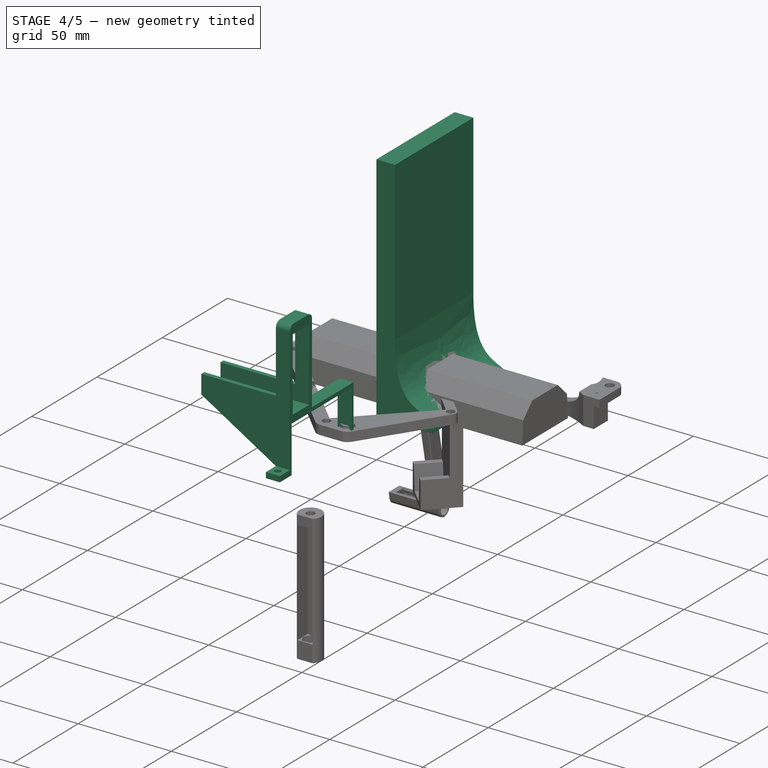
[diagram: stage 4 of 5 — iso view after this stage's code; geometry added in this stage tinted green]
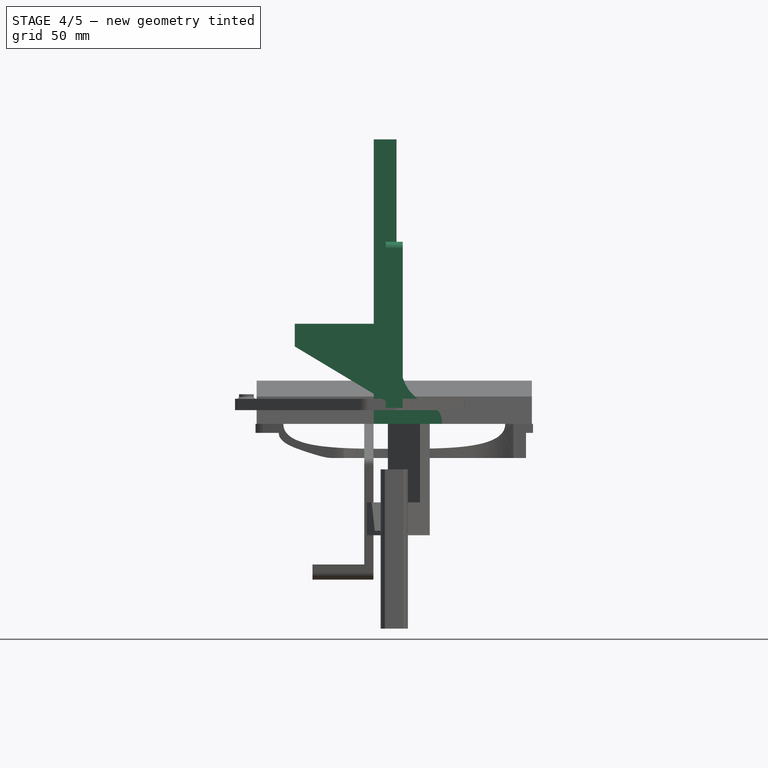
[diagram: stage 4 of 5 — front view after this stage's code; geometry added in this stage tinted green]
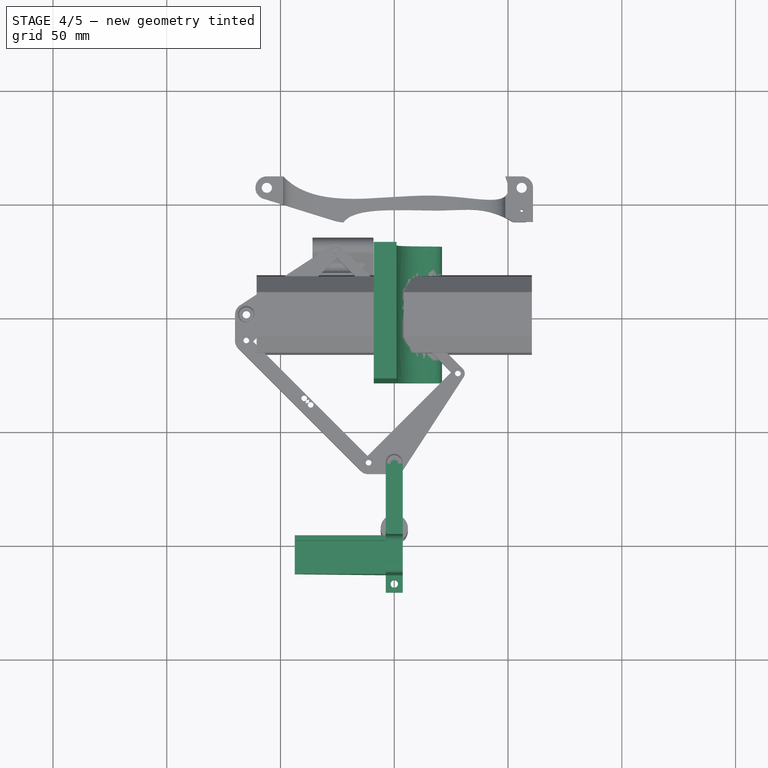
[diagram: stage 4 of 5 — top view after this stage's code; geometry added in this stage tinted green]
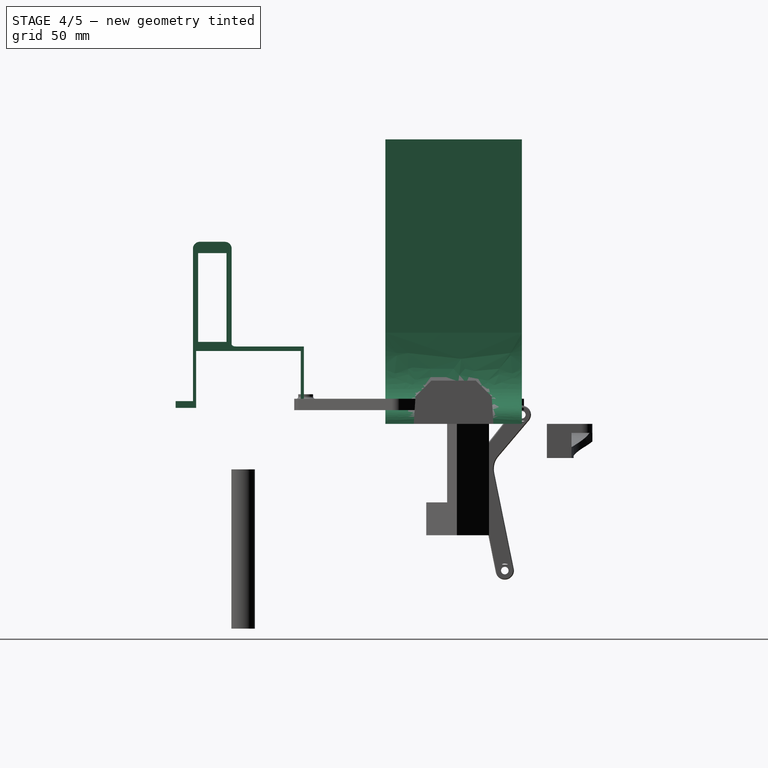
[diagram: stage 4 of 5 — right view after this stage's code; geometry added in this stage tinted green]
FEATURE [Sketcher::SketchObject] Sketch011
  ArcFitTolerance = 1e-06
  AttachmentSupport = -> [Pad005]
  FullyConstrained = true
  MakeInternals = false
  MapMode = 5
  Placement = pos=(0,0,8) rot=(0,0,1;0rad)
  sketch-geometry (32):
    g0: LineSegment [constr] StartX=-56 StartY=56 StartZ=0 EndX=-56 EndY=-56 EndZ=0
    g1: LineSegment [constr] StartX=-56 StartY=-56 StartZ=0 EndX=56 EndY=-56 EndZ=0
    g2: LineSegment [constr] StartX=56 StartY=-56 StartZ=0 EndX=56 EndY=56 EndZ=0
    g3: LineSegment [constr] StartX=56 StartY=56 StartZ=0 EndX=-56 EndY=56 EndZ=0
    g4: LineSegment StartX=-59.55 StartY=58.0496 StartZ=0 EndX=-59.55 EndY=53.9504 EndZ=0
    g5: LineSegment StartX=-59.55 StartY=53.9504 StartZ=0 EndX=-56 EndY=51.9008 EndZ=0
    g6: LineSegment StartX=-56 StartY=51.9008 StartZ=0 EndX=-52.45 EndY=53.9504 EndZ=0
    g7: LineSegment StartX=-52.45 StartY=53.9504 StartZ=0 EndX=-52.45 EndY=58.0496 EndZ=0
    g8: LineSegment StartX=-52.45 StartY=58.0496 StartZ=0 EndX=-56 EndY=60.0992 EndZ=0
    g9: LineSegment StartX=-56 StartY=60.0992 StartZ=0 EndX=-59.55 EndY=58.0496 EndZ=0
    g10: Circle [constr] CenterX=-56 CenterY=56 CenterZ=0 NormalX=0 NormalY=0 NormalZ=1 AngleXU=0 Radius=4.09919
    g11: LineSegment StartX=59.55 StartY=58.0496 StartZ=0 EndX=56 EndY=60.0992 EndZ=0
    g12: LineSegment StartX=56 StartY=60.0992 StartZ=0 EndX=52.45 EndY=58.0496 EndZ=0
    g13: LineSegment StartX=52.45 StartY=58.0496 StartZ=0 EndX=52.45 EndY=53.9504 EndZ=0
    g14: LineSegment StartX=52.45 StartY=53.9504 StartZ=0 EndX=56 EndY=51.9008 EndZ=0
    g15: LineSegment StartX=56 StartY=51.9008 StartZ=0 EndX=59.55 EndY=53.9504 EndZ=0
    g16: LineSegment StartX=59.55 StartY=53.9504 StartZ=0 EndX=59.55 EndY=58.0496 EndZ=0
    g17: Circle [constr] CenterX=56 CenterY=56 CenterZ=0 NormalX=0 NormalY=0 NormalZ=1 AngleXU=0 Radius=4.09919
    g18: LineSegment StartX=59.55 StartY=-58.0496 StartZ=0 EndX=59.55 EndY=-53.9504 EndZ=0
    g19: LineSegment StartX=59.55 StartY=-53.9504 StartZ=0 EndX=56 EndY=-51.9008 EndZ=0
    g20: LineSegment StartX=56 StartY=-51.9008 StartZ=0 EndX=52.45 EndY=-53.9504 EndZ=0
    g21: LineSegment StartX=52.45 StartY=-53.9504 StartZ=0 EndX=52.45 EndY=-58.0496 EndZ=0
    g22: LineSegment StartX=52.45 StartY=-58.0496 StartZ=0 EndX=56 EndY=-60.0992 EndZ=0
    g23: LineSegment StartX=56 StartY=-60.0992 StartZ=0 EndX=59.55 EndY=-58.0496 EndZ=0
    g24: Circle [constr] CenterX=56 CenterY=-56 CenterZ=0 NormalX=0 NormalY=0 NormalZ=1 AngleXU=0 Radius=4.09919
    g25: LineSegment StartX=-59.55 StartY=-58.0496 StartZ=0 EndX=-56 EndY=-60.0992 EndZ=0
    g26: LineSegment StartX=-56 StartY=-60.0992 StartZ=0 EndX=-52.45 EndY=-58.0496 EndZ=0
    g27: LineSegment StartX=-52.45 StartY=-58.0496 StartZ=0 EndX=-52.45 EndY=-53.9504 EndZ=0
    g28: LineSegment StartX=-52.45 StartY=-53.9504 StartZ=0 EndX=-56 EndY=-51.9008 EndZ=0
    g29: LineSegment StartX=-56 StartY=-51.9008 StartZ=0 EndX=-59.55 EndY=-53.9504 EndZ=0
    g30: LineSegment StartX=-59.55 StartY=-53.9504 StartZ=0 EndX=-59.55 EndY=-58.0496 EndZ=0
    g31: Circle [constr] CenterX=-56 CenterY=-56 CenterZ=0 NormalX=0 NormalY=0 NormalZ=1 AngleXU=0 Radius=4.09919
  constraints (75):
    c: Coincident(g0,g1)
    c: Coincident(g1,g2)
    c: Coincident(g2,g3)
    c: Coincident(g3,g0)
    c: Vertical(g0)
    c: Vertical(g2)
    c: Horizontal(g1)
    c: Horizontal(g3)
    c: DistanceX(g3,g3) = 112
    c: Equal(g3,g2)
    c: Coincident(g4,g5)
    c: Coincident(g5,g6)
    c: Coincident(g6,g7)
    c: Coincident(g7,g8)
    c: Coincident(g8,g9)
    c: Coincident(g9,g4)
    c: Equal(g4, g5-g9) x5
    c: PointOnObject(g4,g10)
    c: PointOnObject(g5,g10)
    c: PointOnObject(g6,g10)
    c: PointOnObject(g7,g10)
    c: PointOnObject(g8,g10)
    c: PointOnObject(g9,g10)
    c: Coincident(g10,g0)
    c: Coincident(g11,g12)
    c: Coincident(g12,g13)
    c: Coincident(g13,g14)
    c: Coincident(g14,g15)
    c: Coincident(g15,g16)
    c: Coincident(g16,g11)
    c: Equal(g11, g12-g16) x5
    c: PointOnObject(g11,g17)
    c: PointOnObject(g12,g17)
    c: PointOnObject(g13,g17)
    c: PointOnObject(g14,g17)
    c: PointOnObject(g15,g17)
    c: PointOnObject(g16,g17)
    c: Coincident(g17,g2)
    c: Coincident(g18,g19)
    c: Coincident(g19,g20)
    c: Coincident(g20,g21)
    c: Coincident(g21,g22)
    c: Coincident(g22,g23)
    c: Coincident(g23,g18)
    c: Equal(g18, g19-g23) x5
    c: PointOnObject(g18,g24)
    c: PointOnObject(g19,g24)
    c: PointOnObject(g20,g24)
    c: PointOnObject(g21,g24)
    c: PointOnObject(g22,g24)
    c: PointOnObject(g23,g24)
    c: Coincident(g24,g1)
    c: Coincident(g25,g26)
    c: Coincident(g26,g27)
    c: Coincident(g27,g28)
    c: Coincident(g28,g29)
    c: Coincident(g29,g30)
    c: Coincident(g30,g25)
    c: Equal(g25, g26-g30) x5
    c: PointOnObject(g25,g31)
    c: PointOnObject(g26,g31)
    c: PointOnObject(g27,g31)
    c: PointOnObject(g28,g31)
    c: PointOnObject(g29,g31)
    c: PointOnObject(g30,g31)
    c: Coincident(g31,g0)
    c: Equal(g10,g17)
    c: Equal(g31,g24)
    c: Equal(g31,g10)
    c: Vertical(g4)
    c: Vertical(g13)
    c: Vertical(g21)
    c: Vertical(g30)
    c: Symmetric(g2,g0,g-1)
    c: DistanceX(g4,g7) = 7.1
FEATURE [PartDesign::Pocket] Pocket004  label="counter_sink"
  BaseFeature = -> Pad005
  Direction = (0,0,-1)
  Length = 3.3
  Length2 = 5
  Profile = -> Sketch011
  ReferenceAxis = -> Sketch011 [N_Axis]
  Suppressed = false
  Type = 0
FEATURE [Sketcher::SketchObject] Sketch012
  ArcFitTolerance = 1e-06
  AttachmentSupport = -> [Pocket004]
  FullyConstrained = false
  MakeInternals = false
  MapMode = 5
  Placement = pos=(0,0,0) rot=(1,0,0;3.14159rad)
  expr: Constraints[9] = <<head_m>>.tt_inner_dia / 2 - 10
  sketch-geometry (6):
    g0: ArcOfCircle CenterX=0 CenterY=0 CenterZ=0 NormalX=0 NormalY=0 NormalZ=1 AngleXU=0 Radius=63 StartAngle=2.80158 EndAngle=6.6232
    g1: LineSegment StartX=-50.8835 StartY=18 StartZ=0 EndX=50.8835 EndY=18 EndZ=0
    g2: LineSegment [constr] StartX=0 StartY=0 StartZ=0 EndX=-59.3933 EndY=21.0103 EndZ=0
    g3: LineSegment [constr] StartX=0 StartY=0 StartZ=0 EndX=59.3933 EndY=21.0103 EndZ=0
    g4: LineSegment StartX=-50.8835 StartY=18 StartZ=0 EndX=-59.3933 EndY=21.0103 EndZ=0
    g5: LineSegment StartX=50.8835 StartY=18 StartZ=0 EndX=59.3933 EndY=21.0103 EndZ=0
  constraints (10):
    c: Symmetric(g1,g1,g-2)
    c: Coincident(g2,g0)
    c: Coincident(g3,g0)
    c: Coincident(g4,g1)
    c: Coincident(g4,g0)
    c: Coincident(g5,g1)
    c: Coincident(g5,g0)
    c: PointOnObject(g1,g3)
    c: PointOnObject(g1,g2)
    c: Radius(g0) = 63
FEATURE [Sketcher::SketchObject] Sketch013
  ArcFitTolerance = 1e-06
  FullyConstrained = false
  MakeInternals = false
  MapMode = 5
  Placement = pos=(0,0,-6) rot=(1,0,0;3.14159rad)
  sketch-geometry (17):
    g0: LineSegment [constr] StartX=-15.5 StartY=53.696 StartZ=0 EndX=-15.5 EndY=22.696 EndZ=0
    g1: LineSegment [constr] StartX=-15.5 StartY=22.696 StartZ=0 EndX=15.5 EndY=22.696 EndZ=0
    g2: LineSegment [constr] StartX=15.5 StartY=22.696 StartZ=0 EndX=15.5 EndY=53.696 EndZ=0
    g3: LineSegment [constr] StartX=15.5 StartY=53.696 StartZ=0 EndX=-15.5 EndY=53.696 EndZ=0
    g4: GeomPoint [constr] X=-15.5 Y=38.196 Z=0
    g5: GeomPoint [constr] X=0 Y=22.696 Z=0
    g6: ArcOfCircle [constr] CenterX=0 CenterY=38.196 CenterZ=0 NormalX=0 NormalY=0 NormalZ=1 AngleXU=0 Radius=5 StartAngle=5.87167 EndAngle=9.83629
    g7: LineSegment [constr] StartX=-4.58258 StartY=36.196 StartZ=0 EndX=4.58258 EndY=36.196 EndZ=0
    g8: Circle CenterX=15.5 CenterY=22.696 CenterZ=0 NormalX=0 NormalY=0 NormalZ=1 AngleXU=0 Radius=1.625
    g9: Circle CenterX=-15.5 CenterY=22.696 CenterZ=0 NormalX=0 NormalY=0 NormalZ=1 AngleXU=0 Radius=1.625
    g10: Circle CenterX=15.5 CenterY=53.696 CenterZ=0 NormalX=0 NormalY=0 NormalZ=1 AngleXU=0 Radius=1.625
    g11: Circle CenterX=-15.5 CenterY=53.696 CenterZ=0 NormalX=0 NormalY=0 NormalZ=1 AngleXU=0 Radius=1.625
    g12: LineSegment [constr] StartX=21 StartY=17.196 StartZ=0 EndX=21 EndY=59.196 EndZ=0
    g13: LineSegment [constr] StartX=21 StartY=59.196 StartZ=0 EndX=-21 EndY=59.196 EndZ=0
    g14: LineSegment [constr] StartX=-21 StartY=59.196 StartZ=0 EndX=-21 EndY=17.196 EndZ=0
    g15: LineSegment [constr] StartX=-21 StartY=17.196 StartZ=0 EndX=21 EndY=17.196 EndZ=0
    g16: Circle CenterX=0 CenterY=38.196 CenterZ=0 NormalX=0 NormalY=0 NormalZ=1 AngleXU=0 Radius=11.5
  constraints (41):
    c: Coincident(g0,g1)
    c: Coincident(g1,g2)
    c: Coincident(g2,g3)
    c: Coincident(g3,g0)
    c: Vertical(g0)
    c: Vertical(g2)
    c: Horizontal(g1)
    c: Horizontal(g3)
    c: DistanceX(g3,g3) = 31
    c: Equal(g2,g3)
    c: Symmetric(g0,g0,g4)
    c: Symmetric(g1,g1,g5)
    c: Coincident(g7,g6)
    c: Coincident(g7,g6)
    c: Horizontal(g7)
    c: Radius(g6) = 5
    c: DistanceY(g6,g6) = 2
    c: Vertical(g6,g5)
    c: Horizontal(g6,g4)
    c: PointOnObject(g6,g-2)
    c: Coincident(g8,g1)
    c: Coincident(g9,g0)
    c: Coincident(g10,g2)
    c: Coincident(g11,g0)
    c: Equal(g9,g11)
    c: Equal(g8,g10)
    c: Equal(g10,g11)
    c: Diameter(g10) = 3.25
    c: Coincident(g12,g13)
    c: Coincident(g13,g14)
    c: Coincident(g14,g15)
    c: Coincident(g15,g12)
    c: Vertical(g12)
    c: Vertical(g14)
    c: Horizontal(g13)
    c: Horizontal(g15)
    c: Symmetric(g12,g13,g6)
    c: DistanceY(g12,g12) = 42
    c: Equal(g12,g13)
    c: Coincident(g16,g6)
    c: Diameter(g16) = 23
FEATURE [Sketcher::SketchObject] Sketch017
  ArcFitTolerance = 1e-06
  FullyConstrained = true
  MakeInternals = false
  MapMode = 5
  Placement = pos=(0,0,0) rot=(1,0,0;1.5708rad)
  expr: Constraints[24] = <<head_m>>.r_axis_height + 20
  sketch-geometry (11):
    g0: LineSegment StartX=-9 StartY=125 StartZ=0 EndX=-9 EndY=0 EndZ=0
    g1: LineSegment StartX=1 StartY=125 StartZ=0 EndX=-9 EndY=125 EndZ=0
    g2: LineSegment StartX=1 StartY=125 StartZ=0 EndX=1 EndY=40 EndZ=0
    g3: LineSegment StartX=-9 StartY=0 StartZ=0 EndX=21 EndY=0 EndZ=0
    g4-g7: Circle [constr] x4 (B-spline internal-alignment scaffolding for g8; pole/knot coordinates omitted)
    g8: BSplineCurve PolesCount=4 KnotsCount=2 Degree=3 IsPeriodic=0
    g9: GeomPoint [constr] X=21 Y=0 Z=0
    g10: GeomPoint [constr] X=1 Y=40 Z=0
  constraints (26):
    c: Coincident(g1,g0)
    c: Vertical(g0)
    c: Horizontal(g1)
    c: Coincident(g3,g0)
    c: PointOnObject(g3,g-1)
    c: Horizontal(g3)
    c: Weight(g4) = 1
    c: Equal(g4,g5)
    c: Equal(g4,g6)
    c: Equal(g4,g7)
    c: InternalAlignment(g4-g7 -> g8) x4
    c: InternalAlignment(g9,g8)
    c: InternalAlignment(g10,g8)
    c: Coincident(g4,g3)
    c: Coincident(g8,g2)
    c: Vertical(g2,g6)
    c: DistanceX(g3,g3) = 30
    c: Vertical(g8,g5)
    c: PointOnObject(g6,g3)
    c: DistanceY(g8,g5) = 15
    c: Coincident(g2,g1)
    c: DistanceY(g0,g0) = 125
    c: Vertical(g2)
    c: Distance(g2,g0) = 10
    c: DistanceX(g0,g-1) = 9
    c: DistanceY(g6,g2) = 40
FEATURE [PartDesign::Pad] Pad008
  Direction = (0,-1,0)
  Length = 60
  Length2 = 10
  Midplane = true
  Placement = pos=(0,0,0) rot=(1,0,0;1.5708rad)
  Profile = -> Sketch017
  ReferenceAxis = -> Sketch017 [N_Axis]
  Suppressed = false
  Type = 0
FEATURE [Sketcher::SketchObject] Sketch019
  ArcFitTolerance = 1e-06
  AttachmentSupport = -> [Pad008]
  ExternalGeometry = -> [Pad008]
  FullyConstrained = true
  MakeInternals = false
  MapMode = 5
  Placement = pos=(0,0,0) rot=(1,0,0;3.14159rad)
  expr: Constraints[5] = <<head_m>>.mountingDistFromEdgeFromForMounting
  sketch-geometry (3):
    g0: Circle CenterX=0.8 CenterY=25.5 CenterZ=0 NormalX=0 NormalY=0 NormalZ=1 AngleXU=0 Radius=2.15
    g1: Circle CenterX=0.8 CenterY=-25.5 CenterZ=0 NormalX=0 NormalY=0 NormalZ=1 AngleXU=0 Radius=2.15
    g2: LineSegment [constr] StartX=0.8 StartY=25.5 StartZ=0 EndX=0.8 EndY=-25.5 EndZ=0
  constraints (7):
    c: Coincident(g2,g0)
    c: Coincident(g2,g1)
    c: Symmetric(g0,g1,g-1)
    c: Diameter(g0) = 4.3
    c: Equal(g0,g1)
    c: DistanceX(g-3,g1) = 9.8
    c: DistanceY(g2,g2) = 51
FEATURE [PartDesign::Pocket] Pocket007  label="screw_holes"
  BaseFeature = -> Pad008
  Direction = (0,0,1)
  Length = 20
  Length2 = 5
  Placement = pos=(0,0,0) rot=(1,0,0;1.5708rad)
  Profile = -> Sketch019
  ReferenceAxis = -> Sketch019 [N_Axis]
  Suppressed = false
  Type = 0
FEATURE [PartDesign::Body] Body007  label="center_plate"
  AllowCompound = false
  Group = -> [Sketch010,Pad005,Sketch011,Pocket004,Sketch012,Sketch013,Sketch020,Pocket013,Chamfer,Sketch025,Pocket015,Chamfer001,Chamfer002]
  Origin = -> Origin015
  Tip = -> Chamfer002
FEATURE [App::Part] Part005  label="turing_stepper"
  Group = -> [Body007,Body011,Body014]
  Origin = -> Origin014
  Placement = pos=(0,0,9) rot=(0,0,1;0rad)
FEATURE [Sketcher::SketchObject] Sketch051
  ArcFitTolerance = 1e-06
  FullyConstrained = true
  MakeInternals = false
  MapMode = 5
  Placement = pos=(0,0,0) rot=(1,0,0;1.5708rad)
  expr: Constraints[24] = <<head_m001>>.r_axis_height + 20
  sketch-geometry (11):
    g0: LineSegment StartX=-9 StartY=125 StartZ=0 EndX=-9 EndY=0 EndZ=0
    g1: LineSegment StartX=1 StartY=125 StartZ=0 EndX=-9 EndY=125 EndZ=0
    g2: LineSegment StartX=1 StartY=125 StartZ=0 EndX=1 EndY=40 EndZ=0
    g3: LineSegment StartX=-9 StartY=0 StartZ=0 EndX=21 EndY=0 EndZ=0
    g4-g7: Circle [constr] x4 (B-spline internal-alignment scaffolding for g8; pole/knot coordinates omitted)
    g8: BSplineCurve PolesCount=4 KnotsCount=2 Degree=3 IsPeriodic=0
    g9: GeomPoint [constr] X=21 Y=0 Z=0
    g10: GeomPoint [constr] X=1 Y=40 Z=0
  constraints (26):
    c: Coincident(g1,g0)
    c: Vertical(g0)
    c: Horizontal(g1)
    c: Coincident(g3,g0)
    c: PointOnObject(g3,g-1)
    c: Horizontal(g3)
    c: Weight(g4) = 1
    c: Equal(g4,g5)
    c: Equal(g4,g6)
    c: Equal(g4,g7)
    c: InternalAlignment(g4-g7 -> g8) x4
    c: InternalAlignment(g9,g8)
    c: InternalAlignment(g10,g8)
    c: Coincident(g4,g3)
    c: Coincident(g8,g2)
    c: Vertical(g2,g6)
    c: DistanceX(g3,g3) = 30
    c: Vertical(g8,g5)
    c: PointOnObject(g6,g3)
    c: DistanceY(g8,g5) = 15
    c: Coincident(g2,g1)
    c: DistanceY(g0,g0) = 125
    c: Vertical(g2)
    c: Distance(g2,g0) = 10
    c: DistanceX(g0,g-1) = 9
    c: DistanceY(g6,g2) = 40
FEATURE [PartDesign::Pad] Pad016
  Direction = (0,-1,0)
  Length = 60
  Length2 = 10
  Midplane = true
  Placement = pos=(0,0,0) rot=(1,0,0;1.5708rad)
  Profile = -> Sketch051
  ReferenceAxis = -> Sketch051 [N_Axis]
  Suppressed = false
  Type = 0
FEATURE [Sketcher::SketchObject] Sketch052
  ArcFitTolerance = 1e-06
  AttachmentSupport = -> [Pad016]
  ExternalGeometry = -> [Pad016]
  FullyConstrained = true
  MakeInternals = false
  MapMode = 5
  Placement = pos=(0,0,0) rot=(1,0,0;3.14159rad)
  expr: Constraints[5] = <<head_m001>>.mountingDistFromEdgeFromForMounting
  sketch-geometry (3):
    g0: Circle CenterX=0.8 CenterY=25.5 CenterZ=0 NormalX=0 NormalY=0 NormalZ=1 AngleXU=0 Radius=2.15
    g1: Circle CenterX=0.8 CenterY=-25.5 CenterZ=0 NormalX=0 NormalY=0 NormalZ=1 AngleXU=0 Radius=2.15
    g2: LineSegment [constr] StartX=0.8 StartY=25.5 StartZ=0 EndX=0.8 EndY=-25.5 EndZ=0
  constraints (7):
    c: Coincident(g2,g0)
    c: Coincident(g2,g1)
    c: Symmetric(g0,g1,g-1)
    c: Diameter(g0) = 4.3
    c: Equal(g0,g1)
    c: DistanceX(g-3,g1) = 9.8
    c: DistanceY(g2,g2) = 51
FEATURE [PartDesign::Pocket] Pocket034  label="screw_holes001"
  BaseFeature = -> Pad016
  Direction = (0,0,1)
  Length = 20
  Length2 = 5
  Placement = pos=(0,0,0) rot=(1,0,0;1.5708rad)
  Profile = -> Sketch052
  ReferenceAxis = -> Sketch052 [N_Axis]
  Suppressed = false
  Type = 0
FEATURE [Sketcher::SketchObject] Sketch053
  ArcFitTolerance = 1e-06
  AttachmentSupport = -> [Pocket034]
  ExternalGeometry = -> [Pocket034]
  FullyConstrained = true
  MakeInternals = false
  MapMode = 5
  Placement = pos=(-9,0,0) rot=(0.707107,0,-0.707107;3.14159rad)
  sketch-geometry (9):
    g0: LineSegment StartX=-15.3 StartY=29.13 StartZ=0 EndX=-15.3 EndY=21.87 EndZ=0
    g1: LineSegment StartX=-15.3 StartY=21.87 StartZ=0 EndX=-12 EndY=21.87 EndZ=0
    g2: LineSegment StartX=-12 StartY=21.87 StartZ=0 EndX=-12 EndY=29.13 EndZ=0
    g3: LineSegment StartX=-12 StartY=29.13 StartZ=0 EndX=-15.3 EndY=29.13 EndZ=0
    g4: LineSegment StartX=-15.3 StartY=-21.87 StartZ=0 EndX=-15.3 EndY=-29.13 EndZ=0
    g5: LineSegment StartX=-15.3 StartY=-29.13 StartZ=0 EndX=-12 EndY=-29.13 EndZ=0
    g6: LineSegment StartX=-12 StartY=-29.13 StartZ=0 EndX=-12 EndY=-21.87 EndZ=0
    g7: LineSegment StartX=-12 StartY=-21.87 StartZ=0 EndX=-15.3 EndY=-21.87 EndZ=0
    g8: GeomPoint X=-12 Y=25.5 Z=0
  constraints (23):
    c: Coincident(g0,g1)
    c: Coincident(g1,g2)
    c: Coincident(g2,g3)
    c: Coincident(g3,g0)
    c: Vertical(g0)
    c: Vertical(g2)
    c: Horizontal(g1)
    c: Horizontal(g3)
    c: Coincident(g4,g5)
    c: Coincident(g5,g6)
    c: Coincident(g6,g7)
    c: Coincident(g7,g4)
    c: Vertical(g6)
    c: Horizontal(g5)
    c: Horizontal(g7)
    c: Equal(g7,g1)
    c: Symmetric(g0,g4,g-1)
    c: Symmetric(g0,g4,g-1)
    c: DistanceX(g3,g3) = 3.3
    c: DistanceY(g0,g0) = 7.26
    c: Symmetric(g2,g2,g8)
    c: PointOnObject(g8,g-3)
    c: DistanceX(g2,g-3) = 12
FEATURE [PartDesign::Pocket] Pocket035  label="nut_slot001"
  BaseFeature = -> Pocket034
  Direction = (1,0,2e-16)
  Length = 0
  Length2 = 5
  Placement = pos=(0,0,0) rot=(1,0,0;1.5708rad)
  Profile = -> Sketch053
  ReferenceAxis = -> Sketch053 [N_Axis]
  Suppressed = false
  Type = 1
FEATURE [Sketcher::SketchObject] Sketch055
  ArcFitTolerance = 1e-06
  FullyConstrained = true
  MakeInternals = false
  MapMode = 5
  Placement = pos=(-9,0,0) rot=(0.707107,0,-0.707107;3.14159rad)
  expr: Constraints[1] = <<head_m001>>.r_axis_height
  sketch-geometry (1):
    g0: Circle CenterX=-105 CenterY=0 CenterZ=0 NormalX=0 NormalY=0 NormalZ=1 AngleXU=0 Radius=11
  constraints (3):
    c: PointOnObject(g0,g-1)
    c: DistanceX(g0,g-1) = 105
    c: Diameter(g0) = 22
FEATURE [PartDesign::Pocket] Pocket037  label="bearing_pocket001"
  BaseFeature = -> Pocket035
  Direction = (1,0,2e-16)
  Length = 7
  Length2 = 5
  Placement = pos=(0,0,0) rot=(1,0,0;1.5708rad)
  Profile = -> Sketch055
  ReferenceAxis = -> Sketch055 [N_Axis]
  Suppressed = false
  Type = 0
FEATURE [Sketcher::SketchObject] Sketch056  label="axis_hole003"
  ArcFitTolerance = 1e-06
  AttachmentSupport = -> [Pocket037]
  ExternalGeometry = -> [Pocket037]
  FullyConstrained = true
  MakeInternals = false
  MapMode = 5
  Placement = pos=(-2,0,0) rot=(0.707107,0,-0.707107;3.14159rad)
  sketch-geometry (1):
    g0: Circle CenterX=-105 CenterY=0 CenterZ=0 NormalX=0 NormalY=0 NormalZ=1 AngleXU=0 Radius=4.25
  constraints (2):
    c: Coincident(g0,g-3)
    c: Diameter(g0) = 8.5
FEATURE [PartDesign::Pocket] Pocket038  label="axis_hole002"
  BaseFeature = -> Pocket037
  Direction = (1,0,2e-16)
  Length = 5
  Length2 = 5
  Placement = pos=(0,0,0) rot=(1,0,0;1.5708rad)
  Profile = -> Sketch056
  ReferenceAxis = -> Sketch056 [N_Axis]
  Suppressed = false
  Type = 1
FEATURE [PartDesign::Body] Body008  label="left"
  AllowCompound = false
  Group = -> [Sketch017,Pad008,Sketch019,Pocket007,Sketch021,Pocket009,Sketch023,Pocket011,Sketch024,Pocket012,Sketch057,Pocket039,Sketch058,Pocket040,Sketch059,Pocket041,Fillet002]
  Origin = -> Origin017
  Tip = -> Fillet002
FEATURE [App::Part] Part006  label="left001"
  Group = -> [Body008]
  Origin = -> Origin016
  Placement = pos=(-91,0,17) rot=(0,0,1;0rad)
FEATURE [App::Link] Link003  label="camera_u"
  LinkPlacement = pos=(-10,0,-24) rot=(0,0,1;0rad)
  LinkedObject = -> <external tripod_camera_u.FCStd>#Part
  Placement = pos=(-10,0,-24) rot=(0,0,1;0rad)
FEATURE [App::Link] Link004  label="nema17_pancake001"
  LinkPlacement = pos=(30.6345,23.6438,39) rot=(0.898794,0.438371,0;3.14159rad)
  LinkedObject = -> <external nema17.FCStd>#nema17_pancake
  Placement = pos=(30.6345,23.6438,39) rot=(0.898794,0.438371,0;3.14159rad)
FEATURE [PartDesign::Fillet] Fillet003
  Base = -> Pocket038 [Edge16,Edge15]
  BaseFeature = -> Pocket038
  Placement = pos=(0,0,0) rot=(1,0,0;1.5708rad)
  Radius = 25
  SupportTransform = false
  Suppressed = false
  UseAllEdges = false
FEATURE [Sketcher::SketchObject] Sketch064
  ArcFitTolerance = 1e-06
  AttachmentSupport = -> [XY_Plane034]
  FullyConstrained = false
  MakeInternals = false
  MapMode = 5
  sketch-geometry (31):
    g0: Circle CenterX=-56 CenterY=-60.1762 CenterZ=0 NormalX=0 NormalY=0 NormalZ=1 AngleXU=0 Radius=2.25
    g1: Circle CenterX=56 CenterY=-60.1762 CenterZ=0 NormalX=0 NormalY=0 NormalZ=1 AngleXU=0 Radius=2.25
    g2: LineSegment StartX=-66 StartY=-50.1762 StartZ=0 EndX=-66 EndY=-122.176 EndZ=0
    g3: LineSegment StartX=-66 StartY=-122.176 StartZ=0 EndX=66 EndY=-122.176 EndZ=0
    g4: LineSegment StartX=66 StartY=-122.176 StartZ=0 EndX=66 EndY=-50.1762 EndZ=0
    g5: LineSegment StartX=66 StartY=-50.1762 StartZ=0 EndX=-66 EndY=-50.1762 EndZ=0
    g6: Circle CenterX=31 CenterY=-63.1762 CenterZ=0 NormalX=0 NormalY=0 NormalZ=1 AngleXU=0 Radius=1.625
    g7: Circle CenterX=31 CenterY=-117.176 CenterZ=0 NormalX=0 NormalY=0 NormalZ=1 AngleXU=0 Radius=1.625
    g8: LineSegment [constr] StartX=31 StartY=-113.176 StartZ=0 EndX=31 EndY=-67.1762 EndZ=0
    g9: LineSegment [constr] StartX=31 StartY=-67.1762 StartZ=0 EndX=18.1182 EndY=-67.1762 EndZ=0
    g10: LineSegment [constr] StartX=18.1182 StartY=-67.1762 StartZ=0 EndX=18.1182 EndY=-113.176 EndZ=0
    g11: LineSegment [constr] StartX=18.1182 StartY=-113.176 StartZ=0 EndX=31 EndY=-113.176 EndZ=0
    g12: GeomPoint [constr] X=31 Y=-90.1762 Z=0
    g13: LineSegment StartX=-56 StartY=-70.1762 StartZ=0 EndX=-56 EndY=-85.1762 EndZ=0
    g14: LineSegment StartX=-56 StartY=-85.1762 StartZ=0 EndX=56 EndY=-85.1762 EndZ=0
    g15: LineSegment StartX=56 StartY=-85.1762 StartZ=0 EndX=56 EndY=-70.1762 EndZ=0
    g16: LineSegment StartX=56 StartY=-110.176 StartZ=0 EndX=56 EndY=-95.1762 EndZ=0
    g17: LineSegment StartX=56 StartY=-95.1762 StartZ=0 EndX=-56 EndY=-95.1762 EndZ=0
    g18: LineSegment StartX=-56 StartY=-95.1762 StartZ=0 EndX=-56 EndY=-110.176 EndZ=0
    g19: LineSegment StartX=-56 StartY=-70.1762 StartZ=0 EndX=-48.4893 EndY=-70.1762 EndZ=0
    g20: LineSegment StartX=-48.4893 StartY=-70.1762 StartZ=0 EndX=-37.9978 EndY=-60.1762 EndZ=0
    g21: LineSegment StartX=-37.9978 StartY=-60.1762 StartZ=0 EndX=17.5085 EndY=-60.1762 EndZ=0
    g22: LineSegment StartX=17.5085 StartY=-60.1762 StartZ=0 EndX=28 EndY=-70.1762 EndZ=0
    g23: LineSegment StartX=28 StartY=-70.1762 StartZ=0 EndX=56 EndY=-70.1762 EndZ=0
    g24: LineSegment StartX=56 StartY=-110.176 StartZ=0 EndX=28 EndY=-110.176 EndZ=0
    g25: LineSegment StartX=28 StartY=-110.176 StartZ=0 EndX=17.5085 EndY=-117.176 EndZ=0
    g26: LineSegment StartX=17.5085 StartY=-117.176 StartZ=0 EndX=-37.9978 EndY=-117.176 EndZ=0
    g27: LineSegment StartX=-37.9978 StartY=-117.176 StartZ=0 EndX=-48.4893 EndY=-110.176 EndZ=0
    g28: LineSegment StartX=-48.4893 StartY=-110.176 StartZ=0 EndX=-56 EndY=-110.176 EndZ=0
    g29: GeomPoint X=31 Y=-95.1762 Z=0
    g30: GeomPoint X=31 Y=-85.1762 Z=0
  constraints (82):
    c: Equal(g1,g0)
    c: DistanceX(g0,g1) = 112
    c: Diameter(g0) = 4.5
    c: Coincident(g2,g3)
    c: Coincident(g3,g4)
    c: Coincident(g4,g5)
    c: Coincident(g5,g2)
    c: Vertical(g2)
    c: Vertical(g4)
    c: Horizontal(g3)
    c: Symmetric(g4,g2,g-2)
    c: Distance(g1,g4) = 10
    c: DistanceY(g4,g4) = 72
    c: DistanceY(g1,g4) = 10
    c: Diameter(g6) = 3.25
    c: Equal(g7,g6)
    c: Vertical(g7,g6)
    c: Coincident(g8,g9)
    c: Coincident(g9,g10)
    c: Coincident(g10,g11)
    c: Coincident(g11,g8)
    c: Vertical(g8)
    c: Vertical(g10)
    c: Horizontal(g9)
    c: Horizontal(g11)
    c: Symmetric(g8,g8,g12)
    c: Symmetric(g7,g6,g12)
    c: DistanceY(g8,g8) = 46
    c: Distance(g6,g8) = 4
    c: Coincident(g13,g14)
    c: Coincident(g14,g15)
    c: Vertical(g13)
    c: Vertical(g15)
    c: Horizontal(g14)
    c: Coincident(g16,g17)
    c: Coincident(g17,g18)
    c: Horizontal(g17)
    c: Vertical(g16)
    c: Vertical(g18)
    c: Vertical(g17,g13)
    c: Equal(g13,g18)
    c: Vertical(g14,g16)
    c: Coincident(g13,g19)
    c: Horizontal(g19)
    c: Coincident(g19,g20)
    c: Coincident(g20,g21)
    c: Coincident(g21,g22)
    c: Coincident(g22,g23)
    c: Coincident(g23,g15)
    c: Horizontal(g23)
    c: Horizontal(g1,g21)
    c: Vertical(g15,g1)
    c: Coincident(g16,g24)
    c: Horizontal(g24)
    c: Coincident(g24,g25)
    c: Coincident(g25,g26)
    c: Horizontal(g26)
    c: Coincident(g26,g27)
    c: Coincident(g27,g28)
    c: Coincident(g28,g18)
    c: Horizontal(g28)
    c: Equal(g24,g23)
    c: Equal(g15,g16)
    c: PointOnObject(g29,g17)
    c: PointOnObject(g30,g14)
    c: Symmetric(g29,g30,g12)
    c: DistanceX(g7,g3) = 35
    c: Vertical(g30,g29)
    c: DistanceY(g29,g30) = 10
    c: Horizontal(g22,g19)
    c: Vertical(g13,g0)
    c: Vertical(g25,g21)
    c: Vertical(g26,g20)
    c: DistanceX(g7,g24) = -3
    c: DistanceY(g3,g7) = 5
    c: Horizontal(g25,g7)
    c: Horizontal(g21)
    c: DistanceX(g3,g3) = 132
    c: Horizontal(g1,g0)
    c: Vertical(g27,g19)
    c: Equal(g22,g20)
    c: DistanceY(g15,g15) = 15
FEATURE [PartDesign::Pad] Pad019
  Direction = (0,0,1)
  Length = 7
  Length2 = 10
  Profile = -> Sketch064
  ReferenceAxis = -> Sketch064 [N_Axis]
  Suppressed = false
  Type = 0
FEATURE [PartDesign::SubShapeBinder] Binder002
  BindCopyOnChange = 0
  BindMode = 0
  ClaimChildren = false
  Context = -> Part013 [Body020.Binder002.]
  Fuse = false
  MakeFace = true
  OffsetFill = false
  OffsetIntersection = false
  OffsetJoinType = 0
  OffsetOpenResult = false
  PartialLoad = false
  Relative = true
  Support = -> [Body018[Pad019.]]
  _Version = 2
FEATURE [Sketcher::SketchObject] Sketch067
  ArcFitTolerance = 1e-06
  AttachmentSupport = -> [YZ_Plane036]
  ExternalGeometry = -> [Binder002]
  FullyConstrained = true
  MakeInternals = false
  MapMode = 5
  Placement = pos=(0,0,0) rot=(0.57735,0.57735,0.57735;2.0944rad)
  sketch-geometry (14):
    g0: LineSegment StartX=-122.176 StartY=10 StartZ=0 EndX=-114.551 EndY=10 EndZ=0
    g1: LineSegment StartX=-114.551 StartY=10 StartZ=0 EndX=-114.551 EndY=34 EndZ=0
    g2: LineSegment StartX=-114.551 StartY=34 StartZ=0 EndX=-65.8012 EndY=34 EndZ=0
    g3: LineSegment StartX=-65.8012 StartY=34 StartZ=0 EndX=-65.8012 EndY=10 EndZ=0
    g4: LineSegment StartX=-65.8012 StartY=10 StartZ=0 EndX=-58.1762 EndY=10 EndZ=0
    g5: LineSegment StartX=-58.1762 StartY=10 StartZ=0 EndX=-58.1762 EndY=7 EndZ=0
    g6: LineSegment StartX=-58.1762 StartY=7 StartZ=0 EndX=-67.1762 EndY=7 EndZ=0
    g7: LineSegment StartX=-67.1762 StartY=7 StartZ=0 EndX=-67.1762 EndY=32 EndZ=0
    g8: LineSegment StartX=-67.1762 StartY=32 StartZ=0 EndX=-113.176 EndY=32 EndZ=0
    g9: LineSegment StartX=-113.176 StartY=32 StartZ=0 EndX=-113.176 EndY=7 EndZ=0
    g10: LineSegment StartX=-113.176 StartY=7 StartZ=0 EndX=-122.176 EndY=7 EndZ=0
    g11: LineSegment StartX=-122.176 StartY=7 StartZ=0 EndX=-122.176 EndY=10 EndZ=0
    g12: LineSegment [constr] StartX=-114.551 StartY=34 StartZ=0 EndX=-113.176 EndY=32 EndZ=0
    g13: LineSegment [constr] StartX=-67.1762 StartY=32 StartZ=0 EndX=-65.8012 EndY=34 EndZ=0
  constraints (40):
    c: Horizontal(g0)
    c: Coincident(g0,g1)
    c: Vertical(g1)
    c: Coincident(g1,g2)
    c: Horizontal(g2)
    c: Coincident(g2,g3)
    c: Coincident(g3,g4)
    c: Horizontal(g4)
    c: Coincident(g4,g5)
    c: Coincident(g5,g6)
    c: Horizontal(g6)
    c: Coincident(g6,g7)
    c: Vertical(g7)
    c: Coincident(g7,g8)
    c: Horizontal(g8)
    c: Coincident(g8,g9)
    c: Vertical(g9)
    c: Vertical(g5)
    c: Horizontal(g3,g0)
    c: Equal(g0,g4)
    c: Vertical(g3)
    c: Horizontal(g6,g9)
    c: Coincident(g10,g9)
    c: Horizontal(g10)
    c: Coincident(g11,g10)
    c: Coincident(g11,g0)
    c: Vertical(g11)
    c: Equal(g10,g6)
    c: Coincident(g10,g-5)
    c: DistanceY(g11,g11) = 3
    c: DistanceX(g-3,g0) = 1
    c: DistanceY(g8,g1) = 2
    c: DistanceY(g9,g9) = 25
    c: DistanceX(g8,g8) = 46
    c: Coincident(g12,g1)
    c: Coincident(g12,g8)
    c: Coincident(g13,g7)
    c: Coincident(g13,g2)
    c: DistanceX(g-4,g3) = -1
    c: DistanceX(g7,g2) = 1.375
FEATURE [PartDesign::Pad] Pad021
  Direction = (1,0,0)
  Length = 7.5
  Length2 = 10
  Midplane = true
  Placement = pos=(0,0,0) rot=(1,1,1;2.0944rad)
  Profile = -> Sketch067
  ReferenceAxis = -> Sketch067 [N_Axis]
  Suppressed = false
  Type = 0
FEATURE [Sketcher::SketchObject] Sketch068
  ArcFitTolerance = 1e-06
  AttachmentSupport = -> [Pad021]
  ExternalGeometry = -> [Pad021]
  FullyConstrained = true
  MakeInternals = false
  MapMode = 5
  Placement = pos=(0,2.2e-15,10) rot=(0,0,-1;1.5708rad)
  sketch-geometry (2):
    g0: Circle CenterX=61.9887 CenterY=-1.73e-14 CenterZ=0 NormalX=0 NormalY=0 NormalZ=1 AngleXU=0 Radius=1.625
    g1: Circle CenterX=118.364 CenterY=-3.13e-14 CenterZ=0 NormalX=0 NormalY=0 NormalZ=1 AngleXU=0 Radius=1.625
  constraints (5):
    c: Symmetric(g-5,g-4,g0)
    c: Symmetric(g-3,g-6,g1)
    c: Equal(g1,g0)
    c: Diameter(g0) = 3.25
    c: DistanceX(g1,g-3) = 3.8125
FEATURE [PartDesign::Pocket] Pocket045
  BaseFeature = -> Pad021
  Direction = (0,0,-1)
  Length = 5
  Length2 = 5
  Placement = pos=(0,0,0) rot=(1,1,1;2.0944rad)
  Profile = -> Sketch068
  ReferenceAxis = -> Sketch068 [N_Axis]
  Suppressed = false
  Type = 1
FEATURE [Sketcher::SketchObject] Sketch070
  ArcFitTolerance = 1e-06
  AttachmentSupport = -> [Pad019]
  ExternalGeometry = -> [Pad019]
  FullyConstrained = true
  MakeInternals = false
  MapMode = 5
  Placement = pos=(0,0,0) rot=(1,0,0;3.14159rad)
  sketch-geometry (14):
    g0: LineSegment StartX=28.25 StartY=118.764 StartZ=0 EndX=28.25 EndY=115.589 EndZ=0
    g1: LineSegment StartX=28.25 StartY=115.589 StartZ=0 EndX=31 EndY=114.001 EndZ=0
    g2: LineSegment StartX=31 StartY=114.001 StartZ=0 EndX=33.75 EndY=115.589 EndZ=0
    g3: LineSegment StartX=33.75 StartY=115.589 StartZ=0 EndX=33.75 EndY=118.764 EndZ=0
    g4: LineSegment StartX=33.75 StartY=118.764 StartZ=0 EndX=31 EndY=120.352 EndZ=0
    g5: LineSegment StartX=31 StartY=120.352 StartZ=0 EndX=28.25 EndY=118.764 EndZ=0
    g6: Circle [constr] CenterX=31 CenterY=117.176 CenterZ=0 NormalX=0 NormalY=0 NormalZ=1 AngleXU=0 Radius=3.17543
    g7: LineSegment StartX=31 StartY=66.3516 StartZ=0 EndX=28.25 EndY=64.7639 EndZ=0
    g8: LineSegment StartX=28.25 StartY=64.7639 StartZ=0 EndX=28.25 EndY=61.5885 EndZ=0
    g9: LineSegment StartX=28.25 StartY=61.5885 StartZ=0 EndX=31 EndY=60.0008 EndZ=0
    g10: LineSegment StartX=31 StartY=60.0008 StartZ=0 EndX=33.75 EndY=61.5885 EndZ=0
    g11: LineSegment StartX=33.75 StartY=61.5885 StartZ=0 EndX=33.75 EndY=64.7639 EndZ=0
    g12: LineSegment StartX=33.75 StartY=64.7639 StartZ=0 EndX=31 EndY=66.3516 EndZ=0
    g13: Circle [constr] CenterX=31 CenterY=63.1762 CenterZ=0 NormalX=0 NormalY=0 NormalZ=1 AngleXU=0 Radius=3.17543
  constraints (32):
    c: Coincident(g0,g1)
    c: Coincident(g1,g2)
    c: Coincident(g2,g3)
    c: Coincident(g3,g4)
    c: Coincident(g4,g5)
    c: Coincident(g5,g0)
    c: Equal(g0, g1-g5) x5
    c: PointOnObject(g0,g6)
    c: PointOnObject(g1,g6)
    c: PointOnObject(g2,g6)
    c: PointOnObject(g3,g6)
    c: PointOnObject(g4,g6)
    c: PointOnObject(g5,g6)
    c: Coincident(g6,g-3)
    c: Vertical(g0)
    c: DistanceX(g0,g3) = 5.5
    c: Coincident(g7,g8)
    c: Coincident(g8,g9)
    c: Coincident(g9,g10)
    c: Coincident(g10,g11)
    c: Coincident(g11,g12)
    c: Coincident(g12,g7)
    c: Equal(g7, g8-g12) x5
    c: PointOnObject(g7,g13)
    c: PointOnObject(g8,g13)
    c: PointOnObject(g9,g13)
    c: PointOnObject(g10,g13)
    c: PointOnObject(g11,g13)
    c: PointOnObject(g12,g13)
    c: Coincident(g13,g-4)
    c: Vertical(g11)
    c: Equal(g13,g6)
FEATURE [PartDesign::Pocket] Pocket046
  BaseFeature = -> Pad019
  Direction = (0,0,1)
  Length = 5
  Length2 = 5
  Profile = -> Sketch070
  ReferenceAxis = -> Sketch070 [N_Axis]
  Suppressed = false
  Type = 0
FEATURE [PartDesign::Fillet] Fillet007
  Base = -> Pocket046 [Edge2,Edge1,Edge5,Edge8]
  BaseFeature = -> Pocket046
  Radius = 19
  SupportTransform = false
  Suppressed = false
  UseAllEdges = false
FEATURE [PartDesign::Fillet] Fillet008
  Base = -> Fillet007 [Face5]
  BaseFeature = -> Fillet007
  Radius = 1
  SupportTransform = false
  Suppressed = false
  UseAllEdges = false
FEATURE [PartDesign::Body] Body018  label="usb_plate"
  AllowCompound = false
  Group = -> [Sketch064,Pad019,Sketch070,Pocket046,Fillet007,Fillet008]
  Origin = -> Origin034
  Tip = -> Fillet008
FEATURE [Sketcher::SketchObject] Sketch071
  ArcFitTolerance = 1e-06
  AttachmentSupport = -> [Pocket045]
  ExternalGeometry = -> [Pocket045]
  FullyConstrained = true
  MakeInternals = false
  MapMode = 5
  Placement = pos=(0,7.5e-15,34) rot=(0,0,-1;1.5708rad)
  sketch-geometry (4):
    g0: LineSegment StartX=114.551 StartY=-3.75 StartZ=0 EndX=114.551 EndY=3.75 EndZ=0
    g1: LineSegment StartX=114.551 StartY=3.75 StartZ=0 EndX=97.5512 EndY=3.75 EndZ=0
    g2: LineSegment StartX=97.5512 StartY=3.75 StartZ=0 EndX=97.5512 EndY=-3.75 EndZ=0
    g3: LineSegment StartX=97.5512 StartY=-3.75 StartZ=0 EndX=114.551 EndY=-3.75 EndZ=0
  constraints (11):
    c: Coincident(g0,g1)
    c: Coincident(g1,g2)
    c: Coincident(g2,g3)
    c: Coincident(g3,g0)
    c: Vertical(g0)
    c: Vertical(g2)
    c: Horizontal(g1)
    c: Horizontal(g3)
    c: PointOnObject(g0,g-5)
    c: DistanceX(g1,g1) = 17
    c: Coincident(g0,g-4)
FEATURE [PartDesign::Pad] Pad022
  BaseFeature = -> Pocket045
  Direction = (0,0,1)
  Length = 46
  Length2 = 10
  Placement = pos=(0,0,0) rot=(1,1,1;2.0944rad)
  Profile = -> Sketch071
  ReferenceAxis = -> Sketch071 [N_Axis]
  Suppressed = false
  Type = 0
FEATURE [Sketcher::SketchObject] Sketch073
  ArcFitTolerance = 1e-06
  FullyConstrained = true
  MakeInternals = false
  MapMode = 5
  Placement = pos=(-3.75,0,-1.7e-15) rot=(0.57735,0.57735,-0.57735;4.18879rad)
  sketch-geometry (4):
    g0: LineSegment StartX=-114.551 StartY=-34 StartZ=0 EndX=-114.551 EndY=-44 EndZ=0
    g1: LineSegment StartX=-114.551 StartY=-44 StartZ=0 EndX=-97.5512 EndY=-44 EndZ=0
    g2: LineSegment StartX=-97.5512 StartY=-44 StartZ=0 EndX=-97.5512 EndY=-34 EndZ=0
    g3: LineSegment StartX=-97.5512 StartY=-34 StartZ=0 EndX=-114.551 EndY=-34 EndZ=0
  constraints (11):
    c: Coincident(g0,g1)
    c: Coincident(g1,g2)
    c: Coincident(g2,g3)
    c: Coincident(g3,g0)
    c: Vertical(g0)
    c: Vertical(g2)
    c: Horizontal(g1)
    c: Horizontal(g3)
    c: Coincident(g0,g-8)
    c: PointOnObject(g1,g-7)
    c: DistanceY(g2,g2) = 10
FEATURE [PartDesign::Pad] Pad023
  BaseFeature = -> Pad022
  Direction = (-1,2e-16,2e-16)
  Length = 40
  Length2 = 10
  Placement = pos=(0,0,0) rot=(1,1,1;2.0944rad)
  Profile = -> Sketch073
  ReferenceAxis = -> Sketch073 [N_Axis]
  Suppressed = false
  Type = 0
FEATURE [Sketcher::SketchObject] Sketch074
  ArcFitTolerance = 1e-06
  AttachmentSupport = -> [Pad023]
  ExternalGeometry = -> [Pad023]
  FullyConstrained = true
  MakeInternals = false
  MapMode = 5
  Placement = pos=(-43.75,0,0) rot=(0.57735,0.57735,-0.57735;4.18879rad)
  sketch-geometry (7):
    g0: LineSegment StartX=-112.301 StartY=-36 StartZ=0 EndX=-112.301 EndY=-75 EndZ=0
    g1: LineSegment StartX=-112.301 StartY=-75 StartZ=0 EndX=-99.8012 EndY=-75 EndZ=0
    g2: LineSegment StartX=-99.8012 StartY=-75 StartZ=0 EndX=-99.8012 EndY=-36 EndZ=0
    g3: LineSegment StartX=-99.8012 StartY=-36 StartZ=0 EndX=-112.301 EndY=-36 EndZ=0
    g4: GeomPoint X=-106.051 Y=-36 Z=0
    g5: LineSegment [constr] StartX=-114.551 StartY=-36 StartZ=0 EndX=-97.5512 EndY=-36 EndZ=0
    g6: GeomPoint [constr] X=-106.051 Y=-36 Z=0
  constraints (17):
    c: Coincident(g0,g1)
    c: Coincident(g1,g2)
    c: Coincident(g2,g3)
    c: Coincident(g3,g0)
    c: Vertical(g0)
    c: Vertical(g2)
    c: Horizontal(g1)
    c: Horizontal(g3)
    c: DistanceX(g3,g3) = 12.5
    c: DistanceY(g0,g0) = 39
    c: Symmetric(g3,g3,g4)
    c: PointOnObject(g5,g-4)
    c: PointOnObject(g5,g-3)
    c: Horizontal(g5)
    c: Symmetric(g5,g5,g6)
    c: Coincident(g4,g6)
    c: DistanceY(g2,g-3) = 2
FEATURE [PartDesign::Pocket] Pocket047
  BaseFeature = -> Pad023
  Direction = (1,0,0)
  Length = 5
  Length2 = 5
  Placement = pos=(0,0,0) rot=(1,1,1;2.0944rad)
  Profile = -> Sketch074
  ReferenceAxis = -> Sketch074 [N_Axis]
  Suppressed = false
  Type = 1
FEATURE [Sketcher::SketchObject] Sketch075
  ArcFitTolerance = 1e-06
  AttachmentSupport = -> [Pocket047]
  ExternalGeometry = -> [Pocket047]
  FullyConstrained = true
  MakeInternals = false
  MapMode = 5
  Placement = pos=(-5.04e-14,-114.551,-2.52e-14) rot=(0.57735,0.57735,-0.57735;2.0944rad)
  sketch-geometry (3):
    g0: LineSegment StartX=-34 StartY=-43.75 StartZ=0 EndX=-10 EndY=-3.75 EndZ=0
    g1: LineSegment StartX=-34 StartY=-3.75 StartZ=0 EndX=-10 EndY=-3.75 EndZ=0
    g2: LineSegment StartX=-34 StartY=-3.75 StartZ=0 EndX=-34 EndY=-43.75 EndZ=0
  constraints (7):
    c: Coincident(g0,g-4)
    c: Coincident(g0,g-3)
    c: Coincident(g1,g-4)
    c: PointOnObject(g1,g0)
    c: Horizontal(g1)
    c: Coincident(g2,g1)
    c: Coincident(g2,g0)
FEATURE [PartDesign::Pad] Pad024
  BaseFeature = -> Pocket047
  Direction = (0,-1,0)
  Length = 1.375
  Length2 = 10
  Placement = pos=(0,0,0) rot=(1,1,1;2.0944rad)
  Profile = -> Sketch075
  ReferenceAxis = -> Sketch075 [N_Axis]
  Reversed = true
  Suppressed = false
  Type = 0
FEATURE [PartDesign::Chamfer] Chamfer003
  Angle = 45
  Base = -> Pad024 [Edge69]
  BaseFeature = -> Pad024
  ChamferType = 1
  FlipDirection = false
  Placement = pos=(0,0,0) rot=(1,1,1;2.0944rad)
  Size = 2
  Size2 = 6
  SupportTransform = false
  Suppressed = false
  UseAllEdges = false
FEATURE [PartDesign::Fillet] Fillet009
  Base = -> Chamfer003 [Edge29,Edge89,Edge84]
  BaseFeature = -> Chamfer003
  Placement = pos=(0,0,0) rot=(1,1,1;2.0944rad)
  Radius = 3
  SupportTransform = false
  Suppressed = false
  UseAllEdges = false
FEATURE [Sketcher::SketchObject] Sketch064
  ArcFitTolerance = 1e-06
  FullyConstrained = false
  MakeInternals = false
  MapMode = 5
  Placement = pos=(1.57372e-09,1.57122e-10,0.000125759) rot=(1,0,-6e-06;3.14159rad)
  sketch-geometry (30):
    g0: ArcOfCircle CenterX=0 CenterY=0 CenterZ=0 NormalX=0 NormalY=0 NormalZ=1 AngleXU=0 Radius=6 StartAngle=2.38411 EndAngle=3.46621
    g1: ArcOfCircle CenterX=0 CenterY=0 CenterZ=0 NormalX=0 NormalY=0 NormalZ=1 AngleXU=0 Radius=26 StartAngle=2.38411 EndAngle=3.46621
    g2: ArcOfCircle CenterX=0 CenterY=0 CenterZ=0 NormalX=0 NormalY=0 NormalZ=1 AngleXU=0 Radius=26 StartAngle=1.12747 EndAngle=2.20958
    g3: ArcOfCircle CenterX=0 CenterY=0 CenterZ=0 NormalX=0 NormalY=0 NormalZ=1 AngleXU=0 Radius=6 StartAngle=1.12747 EndAngle=2.20958
    g4: ArcOfCircle CenterX=0 CenterY=0 CenterZ=0 NormalX=0 NormalY=0 NormalZ=1 AngleXU=0 Radius=26 StartAngle=6.15402 EndAngle=7.23613
    g5: ArcOfCircle CenterX=0 CenterY=0 CenterZ=0 NormalX=0 NormalY=0 NormalZ=1 AngleXU=0 Radius=6 StartAngle=6.15402 EndAngle=7.23613
    g6: ArcOfCircle CenterX=0 CenterY=0 CenterZ=0 NormalX=0 NormalY=0 NormalZ=1 AngleXU=0 Radius=6 StartAngle=4.89738 EndAngle=5.97949
    g7: ArcOfCircle CenterX=0 CenterY=0 CenterZ=0 NormalX=0 NormalY=0 NormalZ=1 AngleXU=0 Radius=6 StartAngle=3.64075 EndAngle=4.72285
    g8: ArcOfCircle CenterX=0 CenterY=0 CenterZ=0 NormalX=0 NormalY=0 NormalZ=1 AngleXU=0 Radius=26 StartAngle=3.64075 EndAngle=4.72285
    g9: ArcOfCircle CenterX=0 CenterY=0 CenterZ=0 NormalX=0 NormalY=0 NormalZ=1 AngleXU=0 Radius=26 StartAngle=4.89738 EndAngle=5.97949
    g10: LineSegment [constr] StartX=0 StartY=0 StartZ=0 EndX=-18.8908 EndY=17.8645 EndZ=0
    g11: LineSegment [constr] StartX=0 StartY=0 StartZ=0 EndX=-24.6421 EndY=-8.29271 EndZ=0
    g12: LineSegment [constr] StartX=0 StartY=0 StartZ=0 EndX=-22.8277 EndY=-12.4458 EndZ=0
    g13: LineSegment [constr] StartX=0 StartY=0 StartZ=0 EndX=0.272021 EndY=-25.9986 EndZ=0
    g14: LineSegment [constr] StartX=4.78249 StartY=-25.5564 StartZ=0 EndX=0 EndY=0 EndZ=0
    g15: LineSegment [constr] StartX=24.8102 StartY=-7.77529 StartZ=0 EndX=0 EndY=-9e-16 EndZ=0
    g16: LineSegment [constr] StartX=25.7834 StartY=-3.34893 StartZ=0 EndX=0 EndY=4e-16 EndZ=0
    g17: LineSegment [constr] StartX=15.0615 StartY=21.1932 StartZ=0 EndX=0 EndY=0 EndZ=0
    g18: LineSegment [constr] StartX=0 StartY=0 StartZ=0 EndX=11.1525 EndY=23.4866 EndZ=0
    g19: LineSegment [constr] StartX=-15.5016 StartY=20.8734 StartZ=0 EndX=0 EndY=0 EndZ=0
    g20: LineSegment StartX=-4.35941 StartY=4.12257 StartZ=0 EndX=-18.8908 EndY=17.8645 EndZ=0
    g21: LineSegment StartX=-5.68663 StartY=-1.9137 StartZ=0 EndX=-24.6421 EndY=-8.29271 EndZ=0
    g22: LineSegment StartX=-5.26792 StartY=-2.8721 StartZ=0 EndX=-22.8277 EndY=-12.4458 EndZ=0
    g23: LineSegment StartX=0.062774 StartY=-5.99967 StartZ=0 EndX=0.272021 EndY=-25.9986 EndZ=0
    g24: LineSegment StartX=4.78249 StartY=-25.5564 StartZ=0 EndX=1.10365 EndY=-5.89762 EndZ=0
    g25: LineSegment StartX=24.8102 StartY=-7.77529 StartZ=0 EndX=5.72543 EndY=-1.7943 EndZ=0
    g26: LineSegment StartX=25.7834 StartY=-3.34893 StartZ=0 EndX=5.95002 EndY=-0.77283 EndZ=0
    g27: LineSegment StartX=15.0615 StartY=21.1932 StartZ=0 EndX=3.47573 EndY=4.89073 EndZ=0
    g28: LineSegment StartX=11.1525 StartY=23.4866 StartZ=0 EndX=2.57366 EndY=5.41999 EndZ=0
    g29: LineSegment StartX=-3.5773 StartY=4.81694 StartZ=0 EndX=-15.5016 EndY=20.8734 EndZ=0
  constraints (80):
    c: Coincident(g0,g-1)
    c: Coincident(g1,g0)
    c: Coincident(g2,g0)
    c: Coincident(g3,g0)
    c: Coincident(g4,g0)
    c: Coincident(g5,g0)
    c: Coincident(g6,g0)
    c: Coincident(g7,g0)
    c: Coincident(g8,g0)
    c: Coincident(g9,g0)
    c: Coincident(g10,g0)
    c: Coincident(g10,g1)
    c: Coincident(g11,g0)
    c: Coincident(g11,g1)
    c: Coincident(g12,g0)
    c: Coincident(g12,g8)
    c: Coincident(g13,g0)
    c: Coincident(g13,g8)
    c: Coincident(g14,g9)
    c: Coincident(g14,g0)
    c: Coincident(g15,g9)
    c: Coincident(g15,g0)
    c: Coincident(g16,g4)
    c: Coincident(g16,g0)
    c: Coincident(g17,g4)
    c: Coincident(g17,g0)
    c: Coincident(g18,g0)
    c: Coincident(g18,g2)
    c: Coincident(g19,g2)
    c: Coincident(g19,g0)
    c: PointOnObject(g3,g19)
    c: PointOnObject(g3,g18)
    c: PointOnObject(g5,g17)
    c: PointOnObject(g5,g16)
    c: PointOnObject(g6,g15)
    c: PointOnObject(g6,g14)
    c: PointOnObject(g7,g13)
    c: PointOnObject(g7,g12)
    c: PointOnObject(g0,g11)
    c: PointOnObject(g0,g10)
    c: Equal(g1,g2)
    c: Equal(g2,g4)
    c: Equal(g4,g9)
    c: Equal(g8,g9)
    c: Equal(g0,g7)
    c: Equal(g0,g3)
    c: Equal(g3,g5)
    c: Equal(g6,g5)
    c: Radius(g2) = 26
    c: Radius(g3) = 6
    c: Coincident(g20,g0)
    c: Coincident(g20,g1)
    c: Coincident(g21,g0)
    c: Coincident(g21,g1)
    c: Coincident(g22,g7)
    c: Coincident(g22,g8)
    c: Coincident(g23,g7)
    c: Coincident(g23,g8)
    c: Coincident(g24,g9)
    c: Coincident(g24,g6)
    c: Coincident(g25,g9)
    c: Coincident(g25,g6)
    c: Coincident(g26,g4)
    c: Coincident(g26,g5)
    c: Coincident(g27,g4)
    c: Coincident(g27,g5)
    c: Coincident(g28,g2)
    c: Coincident(g28,g3)
    c: Angle(g17,g18) = 0.174533
    c: Angle(g19,g10) = 0.174533
    c: Coincident(g29,g3)
    c: Coincident(g29,g2)
    c: Angle(g11,g12) = 0.174533
    c: Angle(g13,g14) = 0.174533
    c: Angle(g15,g16) = 0.174533
    c: Angle(g18,g19) = 1.0821
    c: Angle(g10,g11) = 1.0821
    c: Angle(g12,g13) = 1.0821
    c: Angle(g14,g15) = 1.0821
    c: Angle(g16,g17) = 1.0821
FEATURE [PartDesign::Pocket] Pocket045
  BaseFeature = -> InvoluteGear006
  Direction = (1.25137e-05,1.24939e-06,1)
  Length = 5
  Length2 = 5
  Profile = -> Sketch064
  ReferenceAxis = -> Sketch064 [N_Axis]
  Suppressed = false
  Type = 1
FEATURE [Sketcher::SketchObject] Sketch067
  ArcFitTolerance = 1e-06
  AttachmentSupport = -> [InvoluteGear]
  FullyConstrained = true
  MakeInternals = false
  MapMode = 5
  Placement = pos=(0.000145476,-9.4763e-05,10.0002) rot=(0.545813,0.837909,4e-06;1.7e-05rad)
  sketch-geometry (4):
    g0: ArcOfCircle CenterX=0 CenterY=0 CenterZ=0 NormalX=0 NormalY=0 NormalZ=1 AngleXU=0 Radius=2.65 StartAngle=5.45627 EndAngle=10.2517
    g1: LineSegment StartX=-1.79444 StartY=-1.95 StartZ=0 EndX=1.79444 EndY=-1.95 EndZ=0
    g2: GeomPoint X=0 Y=2.65 Z=0
    g3: GeomPoint X=0 Y=-1.95 Z=0
  constraints (10):
    c: Coincident(g0,g-1)
    c: Coincident(g1,g0)
    c: Horizontal(g1)
    c: Coincident(g0,g1)
    c: PointOnObject(g2,g-2)
    c: PointOnObject(g3,g1)
    c: PointOnObject(g3,g-2)
    c: PointOnObject(g2,g0)
    c: DistanceY(g3,g2) = 4.6
    c: Radius(g0) = 2.65
FEATURE [PartDesign::Pocket] Pocket046
  BaseFeature = -> InvoluteGear
  Direction = (-1.45474e-05,9.47614e-06,-1)
  Length = 5
  Length2 = 5
  Profile = -> Sketch067
  ReferenceAxis = -> Sketch067 [N_Axis]
  Suppressed = false
  Type = 1
FEATURE [Sketcher::SketchObject] Sketch
  ArcFitTolerance = 1e-06
  FullyConstrained = true
  MakeInternals = false
  MapMode = 5
  Placement = pos=(6.25505e-09,-4.60966e-09,-0.000278749) rot=(1,0,1.1e-05;3.14158rad)
  sketch-geometry (1):
    g0: Circle CenterX=0 CenterY=0 CenterZ=0 NormalX=0 NormalY=0 NormalZ=1 AngleXU=0 Radius=5.5
  constraints (2):
    c: Coincident(g0,g-1)
    c: Diameter(g0) = 11
FEATURE [PartDesign::Pad] Pad020
  BaseFeature = -> InvoluteGear005
  Direction = (2.24397e-05,-1.6537e-05,-1)
  Length = 0.5
  Length2 = 10
  Profile = -> Sketch
  ReferenceAxis = -> Sketch [N_Axis]
  Suppressed = false
  Type = 0
FEATURE [Sketcher::SketchObject] Sketch070
  ArcFitTolerance = 1e-06
  AttachmentSupport = -> [Pad020]
  FullyConstrained = true
  MakeInternals = false
  MapMode = 5
  Placement = pos=(1.12261e-05,-8.27309e-06,-0.500279) rot=(1,0,1.1e-05;3.14158rad)
  sketch-geometry (4):
    g0: LineSegment StartX=-3 StartY=1.65 StartZ=0 EndX=-3 EndY=-1.65 EndZ=0
    g1: LineSegment StartX=-3 StartY=-1.65 StartZ=0 EndX=3 EndY=-1.65 EndZ=0
    g2: LineSegment StartX=3 StartY=-1.65 StartZ=0 EndX=3 EndY=1.65 EndZ=0
    g3: LineSegment StartX=3 StartY=1.65 StartZ=0 EndX=-3 EndY=1.65 EndZ=0
  constraints (11):
    c: Coincident(g0,g1)
    c: Coincident(g1,g2)
    c: Coincident(g2,g3)
    c: Coincident(g3,g0)
    c: Vertical(g0)
    c: Vertical(g2)
    c: Horizontal(g1)
    c: Horizontal(g3)
    c: Symmetric(g2,g0,g-1)
    c: DistanceX(g3,g3) = 6
    c: DistanceY(g0,g0) = 3.3
FEATURE [PartDesign::Pad] Pad021
  BaseFeature = -> Pad020
  Direction = (2.24397e-05,-1.6537e-05,-1)
  Length = 6
  Length2 = 10
  Profile = -> Sketch070
  ReferenceAxis = -> Sketch070 [N_Axis]
  Suppressed = false
  Type = 0
FEATURE [Sketcher::SketchObject] Sketch072
  ArcFitTolerance = 1e-06
  AttachmentSupport = -> [Pocket]
  FullyConstrained = true
  MakeInternals = false
  MapMode = 5
  Placement = pos=(0.000246843,-0.000181911,11.0003) rot=(0.593256,0.805014,7e-06;2.8e-05rad)
  sketch-geometry (7):
    g0: LineSegment StartX=0 StartY=3.23316 StartZ=0 EndX=-2.8 EndY=1.61658 EndZ=0
    g1: LineSegment StartX=-2.8 StartY=1.61658 StartZ=0 EndX=-2.8 EndY=-1.61658 EndZ=0
    g2: LineSegment StartX=-2.8 StartY=-1.61658 StartZ=0 EndX=4e-16 EndY=-3.23316 EndZ=0
    g3: LineSegment StartX=4e-16 StartY=-3.23316 StartZ=0 EndX=2.8 EndY=-1.61658 EndZ=0
    g4: LineSegment StartX=2.8 StartY=-1.61658 StartZ=0 EndX=2.8 EndY=1.61658 EndZ=0
    g5: LineSegment StartX=2.8 StartY=1.61658 StartZ=0 EndX=0 EndY=3.23316 EndZ=0
    g6: Circle [constr] CenterX=0 CenterY=0 CenterZ=0 NormalX=0 NormalY=0 NormalZ=1 AngleXU=0 Radius=3.23316
  constraints (16):
    c: Coincident(g0,g1)
    c: Coincident(g1,g2)
    c: Coincident(g2,g3)
    c: Coincident(g3,g4)
    c: Coincident(g4,g5)
    c: Coincident(g5,g0)
    c: Equal(g0, g1-g5) x5
    c: PointOnObject(g0,g6)
    c: PointOnObject(g1,g6)
    c: PointOnObject(g2,g6)
    c: PointOnObject(g3,g6)
    c: PointOnObject(g4,g6)
    c: PointOnObject(g5,g6)
    c: Coincident(g6,g-1)
    c: PointOnObject(g5,g-2)
    c: DistanceX(g0,g4) = 5.6
FEATURE [PartDesign::Pocket] Pocket047
  BaseFeature = -> Pocket
  Direction = (-2.24397e-05,1.6537e-05,-1)
  Length = 5
  Length2 = 5
  Profile = -> Sketch072
  ReferenceAxis = -> Sketch072 [N_Axis]
  Suppressed = false
  Type = 0
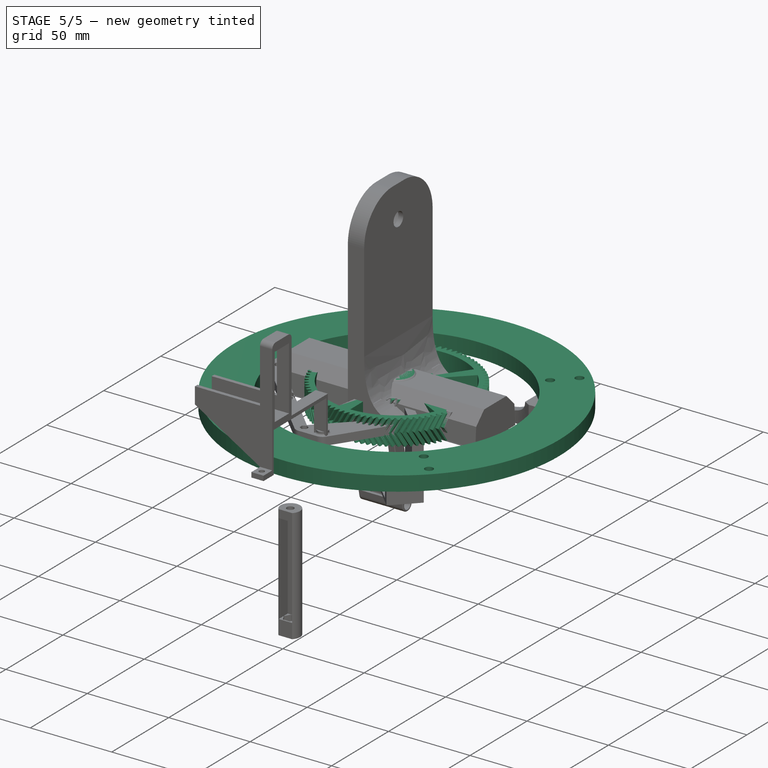
[diagram: stage 5 of 5 — iso view after this stage's code; geometry added in this stage tinted green]
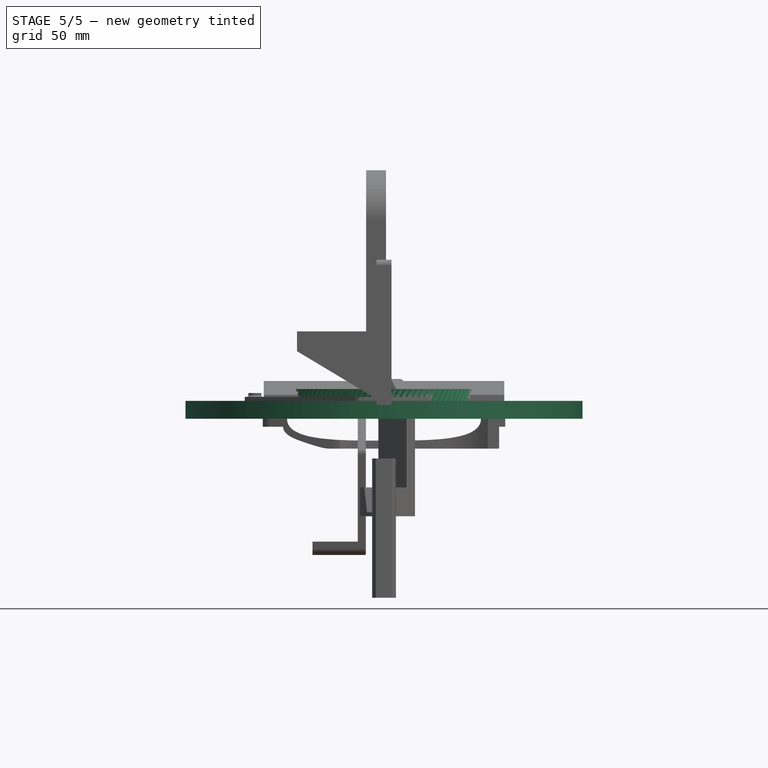
[diagram: stage 5 of 5 — front view after this stage's code; geometry added in this stage tinted green]
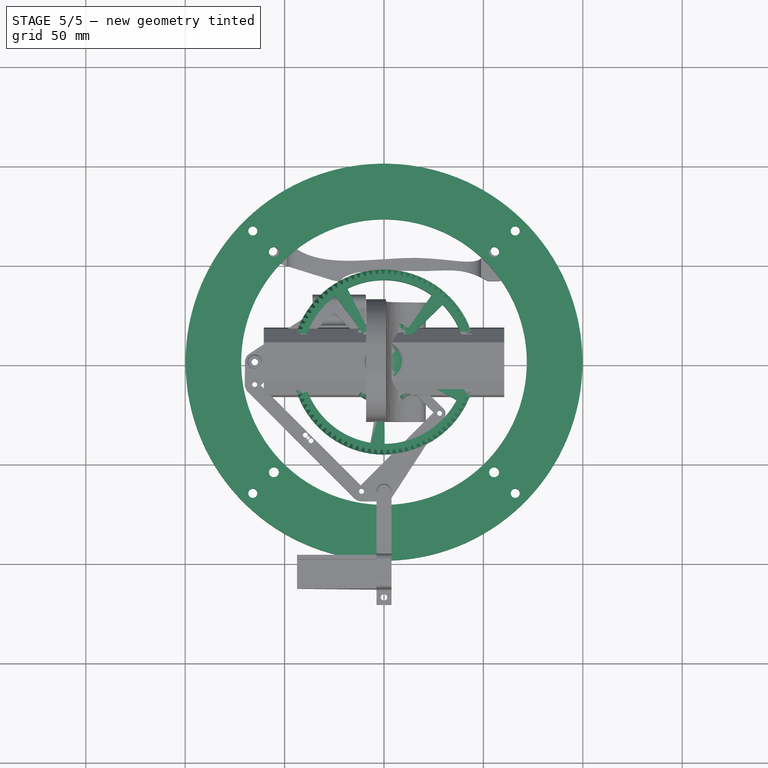
[diagram: stage 5 of 5 — top view after this stage's code; geometry added in this stage tinted green]
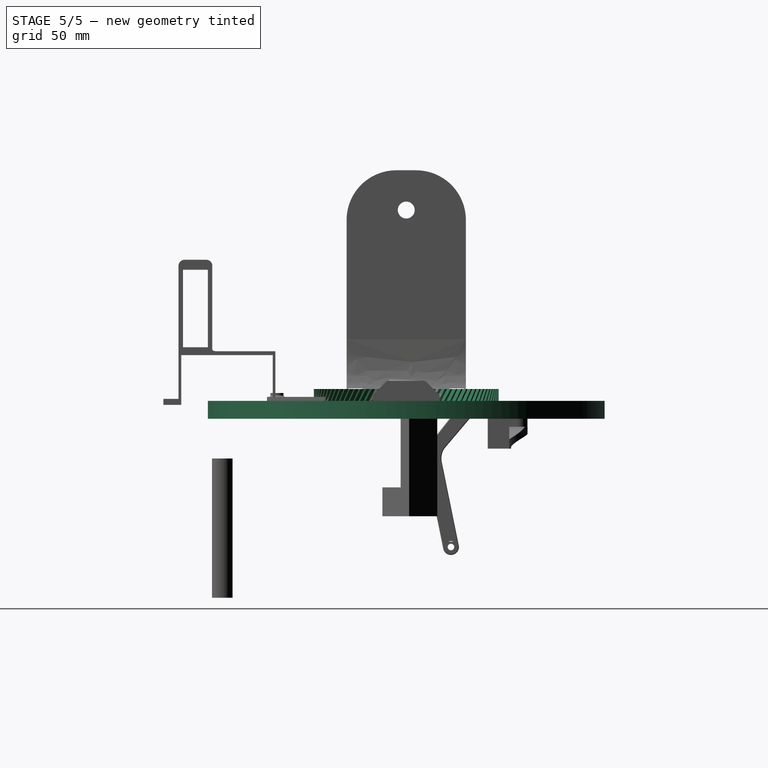
[diagram: stage 5 of 5 — right view after this stage's code; geometry added in this stage tinted green]
FEATURE [Sketcher::SketchObject] Sketch002
  ArcFitTolerance = 1e-06
  AttachmentSupport = -> [InternalInvoluteGear]
  FullyConstrained = true
  MakeInternals = false
  MapMode = 5
  Placement = pos=(-2.8168e-05,-1.91593e-06,20) rot=(0.067866,-0.997769,0;1e-06rad)
  sketch-geometry (21):
    g0: LineSegment [constr] StartX=-66 StartY=66 StartZ=0 EndX=-66 EndY=-66 EndZ=0
    g1: LineSegment [constr] StartX=-66 StartY=-66 StartZ=0 EndX=66 EndY=-66 EndZ=0
    g2: LineSegment [constr] StartX=66 StartY=-66 StartZ=0 EndX=66 EndY=66 EndZ=0
    g3: LineSegment [constr] StartX=66 StartY=66 StartZ=0 EndX=-66 EndY=66 EndZ=0
    g4: Circle CenterX=66 CenterY=66 CenterZ=0 NormalX=0 NormalY=0 NormalZ=1 AngleXU=0 Radius=2.15
    g5: Circle CenterX=-66 CenterY=66 CenterZ=0 NormalX=0 NormalY=0 NormalZ=1 AngleXU=0 Radius=2.15
    g6: Circle CenterX=66 CenterY=-66 CenterZ=0 NormalX=0 NormalY=0 NormalZ=1 AngleXU=0 Radius=2.15
    g7: Circle CenterX=-66 CenterY=-66 CenterZ=0 NormalX=0 NormalY=0 NormalZ=1 AngleXU=0 Radius=2.15
    g8: LineSegment [constr] StartX=-66 StartY=66 StartZ=0 EndX=-93.3381 EndY=1.42e-14 EndZ=0
    g9: LineSegment [constr] StartX=-93.3381 StartY=7.4e-15 StartZ=0 EndX=-66 EndY=-66 EndZ=0
    g10: LineSegment [constr] StartX=-66 StartY=-66 StartZ=0 EndX=-1.42e-14 EndY=-93.3381 EndZ=0
    g11: LineSegment [constr] StartX=-1.42e-14 StartY=-93.3381 StartZ=0 EndX=66 EndY=-66 EndZ=0
    g12: LineSegment [constr] StartX=66 StartY=-66 StartZ=0 EndX=93.3381 EndY=-1.42e-14 EndZ=0
    g13: LineSegment [constr] StartX=93.3381 StartY=-1.42e-14 StartZ=0 EndX=66 EndY=66 EndZ=0
    g14: LineSegment [constr] StartX=66 StartY=66 StartZ=0 EndX=0 EndY=93.3381 EndZ=0
    g15: LineSegment [constr] StartX=0 StartY=93.3381 StartZ=0 EndX=-66 EndY=66 EndZ=0
    g16: Circle [constr] CenterX=0 CenterY=0 CenterZ=0 NormalX=0 NormalY=0 NormalZ=1 AngleXU=0 Radius=93.3381
    g17: Circle CenterX=0 CenterY=93.3381 CenterZ=0 NormalX=0 NormalY=0 NormalZ=1 AngleXU=0 Radius=2.15
    g18: Circle CenterX=93.3381 CenterY=-1.42e-14 CenterZ=0 NormalX=0 NormalY=0 NormalZ=1 AngleXU=0 Radius=2.15
    g19: Circle CenterX=-1.42e-14 CenterY=-93.3381 CenterZ=0 NormalX=0 NormalY=0 NormalZ=1 AngleXU=0 Radius=2.15
    g20: Circle CenterX=-93.3381 CenterY=7.4e-15 CenterZ=0 NormalX=0 NormalY=0 NormalZ=1 AngleXU=0 Radius=2.15
  constraints (46):
    c: Coincident(g0,g1)
    c: Coincident(g1,g2)
    c: Coincident(g2,g3)
    c: Coincident(g3,g0)
    c: Vertical(g0)
    c: Vertical(g2)
    c: Horizontal(g1)
    c: Horizontal(g3)
    c: Symmetric(g2,g0,g-1)
    c: DistanceX(g3,g3) = 132
    c: Equal(g3,g2)
    c: Coincident(g4,g2)
    c: Coincident(g5,g0)
    c: Coincident(g6,g1)
    c: Coincident(g7,g0)
    c: Equal(g5,g4)
    c: Equal(g5,g7)
    c: Equal(g4,g6)
    c: Diameter(g4) = 4.3
    c: Coincident(g8,g9)
    c: Coincident(g9,g10)
    c: Coincident(g10,g11)
    c: Coincident(g11,g12)
    c: Coincident(g12,g13)
    c: Coincident(g13,g14)
    c: Coincident(g14,g15)
    c: Coincident(g15,g8)
    c: Equal(g8, g9-g15) x7
    c: PointOnObject(g8,g16)
    c: PointOnObject(g9,g16)
    c: PointOnObject(g10,g16)
    c: PointOnObject(g11,g16)
    c: PointOnObject(g12,g16)
    c: PointOnObject(g13,g16)
    c: PointOnObject(g14,g16)
    c: PointOnObject(g15,g16)
    c: Coincident(g16,g-1)
    c: Coincident(g15,g0)
    c: Coincident(g17,g14)
    c: Coincident(g18,g12)
    c: Coincident(g19,g10)
    c: Coincident(g20,g8)
    c: Equal(g17,g4)
    c: Equal(g4,g18)
    c: Equal(g6,g19)
    c: Equal(g20,g7)
FEATURE [PartDesign::Pocket] Pocket001  label="holes"
  BaseFeature = -> InternalInvoluteGear
  Direction = (1.4084e-06,9.57964e-08,-1)
  Length = 5
  Length2 = 5
  Profile = -> Sketch002
  ReferenceAxis = -> Sketch002 [N_Axis]
  Suppressed = false
  Type = 1
FEATURE [Sketcher::SketchObject] Sketch003
  ArcFitTolerance = 1e-06
  AttachmentSupport = -> [Pocket001]
  ExternalGeometry = -> [Pocket001]
  FullyConstrained = true
  MakeInternals = false
  MapMode = 5
  Placement = pos=(-2.8168e-05,-1.91593e-06,20) rot=(0.067866,-0.997769,0;1e-06rad)
  sketch-geometry (28):
    g0: LineSegment StartX=-93.3381 StartY=4.18579 StartZ=0 EndX=-96.9631 EndY=2.09289 EndZ=0
    g1: LineSegment StartX=-96.9631 StartY=2.09289 StartZ=0 EndX=-96.9631 EndY=-2.09289 EndZ=0
    g2: LineSegment StartX=-96.9631 StartY=-2.09289 StartZ=0 EndX=-93.3381 EndY=-4.18579 EndZ=0
    g3: LineSegment StartX=-93.3381 StartY=-4.18579 StartZ=0 EndX=-89.7131 EndY=-2.09289 EndZ=0
    g4: LineSegment StartX=-89.7131 StartY=-2.09289 StartZ=0 EndX=-89.7131 EndY=2.09289 EndZ=0
    g5: LineSegment StartX=-89.7131 StartY=2.09289 StartZ=0 EndX=-93.3381 EndY=4.18579 EndZ=0
    g6: Circle [constr] CenterX=-93.3381 CenterY=7.4e-15 CenterZ=0 NormalX=0 NormalY=0 NormalZ=1 AngleXU=0 Radius=4.18579
    g7: LineSegment StartX=93.3381 StartY=4.18579 StartZ=0 EndX=89.7131 EndY=2.09289 EndZ=0
    g8: LineSegment StartX=89.7131 StartY=2.09289 StartZ=0 EndX=89.7131 EndY=-2.09289 EndZ=0
    g9: LineSegment StartX=89.7131 StartY=-2.09289 StartZ=0 EndX=93.3381 EndY=-4.18579 EndZ=0
    g10: LineSegment StartX=93.3381 StartY=-4.18579 StartZ=0 EndX=96.9631 EndY=-2.09289 EndZ=0
    g11: LineSegment StartX=96.9631 StartY=-2.09289 StartZ=0 EndX=96.9631 EndY=2.09289 EndZ=0
    g12: LineSegment StartX=96.9631 StartY=2.09289 StartZ=0 EndX=93.3381 EndY=4.18579 EndZ=0
    g13: Circle [constr] CenterX=93.3381 CenterY=-1.42e-14 CenterZ=0 NormalX=0 NormalY=0 NormalZ=1 AngleXU=0 Radius=4.18579
    g14: LineSegment StartX=-2.09289 StartY=-89.7131 StartZ=0 EndX=-4.18579 EndY=-93.3381 EndZ=0
    g15: LineSegment StartX=-4.18579 StartY=-93.3381 StartZ=0 EndX=-2.09289 EndY=-96.9631 EndZ=0
    g16: LineSegment StartX=-2.09289 StartY=-96.9631 StartZ=0 EndX=2.09289 EndY=-96.9631 EndZ=0
    g17: LineSegment StartX=2.09289 StartY=-96.9631 StartZ=0 EndX=4.18579 EndY=-93.3381 EndZ=0
    g18: LineSegment StartX=4.18579 StartY=-93.3381 StartZ=0 EndX=2.09289 EndY=-89.7131 EndZ=0
    g19: LineSegment StartX=2.09289 StartY=-89.7131 StartZ=0 EndX=-2.09289 EndY=-89.7131 EndZ=0
    g20: Circle [constr] CenterX=-1.42e-14 CenterY=-93.3381 CenterZ=0 NormalX=0 NormalY=0 NormalZ=1 AngleXU=0 Radius=4.18579
    g21: LineSegment StartX=-2.09289 StartY=96.9631 StartZ=0 EndX=-4.18579 EndY=93.3381 EndZ=0
    g22: LineSegment StartX=-4.18579 StartY=93.3381 StartZ=0 EndX=-2.09289 EndY=89.7131 EndZ=0
    g23: LineSegment StartX=-2.09289 StartY=89.7131 StartZ=0 EndX=2.09289 EndY=89.7131 EndZ=0
    g24: LineSegment StartX=2.09289 StartY=89.7131 StartZ=0 EndX=4.18579 EndY=93.3381 EndZ=0
    g25: LineSegment StartX=4.18579 StartY=93.3381 StartZ=0 EndX=2.09289 EndY=96.9631 EndZ=0
    g26: LineSegment StartX=2.09289 StartY=96.9631 StartZ=0 EndX=-2.09289 EndY=96.9631 EndZ=0
    g27: Circle [constr] CenterX=0 CenterY=93.3381 CenterZ=0 NormalX=0 NormalY=0 NormalZ=1 AngleXU=0 Radius=4.18579
  constraints (64):
    c: Coincident(g0,g1)
    c: Coincident(g1,g2)
    c: Coincident(g2,g3)
    c: Coincident(g3,g4)
    c: Coincident(g4,g5)
    c: Coincident(g5,g0)
    c: Equal(g0, g1-g5) x5
    c: PointOnObject(g0,g6)
    c: PointOnObject(g1,g6)
    c: PointOnObject(g2,g6)
    c: PointOnObject(g3,g6)
    c: PointOnObject(g4,g6)
    c: PointOnObject(g5,g6)
    c: Coincident(g6,g-6)
    c: Coincident(g7,g8)
    c: Coincident(g8,g9)
    c: Coincident(g9,g10)
    c: Coincident(g10,g11)
    c: Coincident(g11,g12)
    c: Coincident(g12,g7)
    c: Equal(g7, g8-g12) x5
    c: PointOnObject(g7,g13)
    c: PointOnObject(g8,g13)
    c: PointOnObject(g9,g13)
    c: PointOnObject(g10,g13)
    c: PointOnObject(g11,g13)
    c: PointOnObject(g12,g13)
    c: Coincident(g13,g-4)
    c: Coincident(g14,g15)
    c: Coincident(g15,g16)
    c: Coincident(g16,g17)
    c: Coincident(g17,g18)
    c: Coincident(g18,g19)
    c: Coincident(g19,g14)
    c: Equal(g14, g15-g19) x5
    c: PointOnObject(g14,g20)
    c: PointOnObject(g15,g20)
    c: PointOnObject(g16,g20)
    c: PointOnObject(g17,g20)
    c: PointOnObject(g18,g20)
    c: PointOnObject(g19,g20)
    c: Coincident(g20,g-5)
    c: Coincident(g21,g22)
    c: Coincident(g22,g23)
    c: Coincident(g23,g24)
    c: Coincident(g24,g25)
    c: Coincident(g25,g26)
    c: Coincident(g26,g21)
    c: Equal(g21, g22-g26) x5
    c: PointOnObject(g21,g27)
    c: PointOnObject(g22,g27)
    c: PointOnObject(g23,g27)
    c: PointOnObject(g24,g27)
    c: PointOnObject(g25,g27)
    c: PointOnObject(g26,g27)
    c: Coincident(g27,g-3)
    c: Horizontal(g26)
    c: Vertical(g1)
    c: Horizontal(g19)
    c: Vertical(g11)
    c: Equal(g13,g27)
    c: Equal(g13,g20)
    c: Equal(g6,g20)
    c: Distance(g25,g21) = 7.25
FEATURE [PartDesign::Pocket] Pocket002
  BaseFeature = -> Pocket001
  Direction = (1.4084e-06,9.57964e-08,-1)
  Length = 3.3
  Length2 = 5
  Profile = -> Sketch003
  ReferenceAxis = -> Sketch003 [N_Axis]
  Suppressed = false
  Type = 0
FEATURE [Sketcher::SketchObject] Sketch004
  ArcFitTolerance = 1e-06
  AttachmentSupport = -> [Pocket002]
  ExternalGeometry = -> [Pocket002]
  FullyConstrained = true
  MakeInternals = false
  MapMode = 5
  Placement = pos=(1.98818e-11,1.3523e-12,1.41166e-05) rot=(1,0,-1e-06;3.14159rad)
  sketch-geometry (28):
    g0: LineSegment StartX=-66 StartY=70.1858 StartZ=0 EndX=-69.625 EndY=68.0929 EndZ=0
    g1: LineSegment StartX=-69.625 StartY=68.0929 StartZ=0 EndX=-69.625 EndY=63.9071 EndZ=0
    g2: LineSegment StartX=-69.625 StartY=63.9071 StartZ=0 EndX=-66 EndY=61.8142 EndZ=0
    g3: LineSegment StartX=-66 StartY=61.8142 StartZ=0 EndX=-62.375 EndY=63.9071 EndZ=0
    g4: LineSegment StartX=-62.375 StartY=63.9071 StartZ=0 EndX=-62.375 EndY=68.0929 EndZ=0
    g5: LineSegment StartX=-62.375 StartY=68.0929 StartZ=0 EndX=-66 EndY=70.1858 EndZ=0
    g6: Circle [constr] CenterX=-66 CenterY=66 CenterZ=0 NormalX=0 NormalY=0 NormalZ=1 AngleXU=0 Radius=4.18579
    g7: LineSegment StartX=66 StartY=70.1858 StartZ=0 EndX=62.375 EndY=68.0929 EndZ=0
    g8: LineSegment StartX=62.375 StartY=68.0929 StartZ=0 EndX=62.375 EndY=63.9071 EndZ=0
    g9: LineSegment StartX=62.375 StartY=63.9071 StartZ=0 EndX=66 EndY=61.8142 EndZ=0
    g10: LineSegment StartX=66 StartY=61.8142 StartZ=0 EndX=69.625 EndY=63.9071 EndZ=0
    g11: LineSegment StartX=69.625 StartY=63.9071 StartZ=0 EndX=69.625 EndY=68.0929 EndZ=0
    g12: LineSegment StartX=69.625 StartY=68.0929 StartZ=0 EndX=66 EndY=70.1858 EndZ=0
    g13: Circle [constr] CenterX=66 CenterY=66 CenterZ=0 NormalX=0 NormalY=0 NormalZ=1 AngleXU=0 Radius=4.18579
    g14: LineSegment StartX=66 StartY=-61.8142 StartZ=0 EndX=62.375 EndY=-63.9071 EndZ=0
    g15: LineSegment StartX=62.375 StartY=-63.9071 StartZ=0 EndX=62.375 EndY=-68.0929 EndZ=0
    g16: LineSegment StartX=62.375 StartY=-68.0929 StartZ=0 EndX=66 EndY=-70.1858 EndZ=0
    g17: LineSegment StartX=66 StartY=-70.1858 StartZ=0 EndX=69.625 EndY=-68.0929 EndZ=0
    g18: LineSegment StartX=69.625 StartY=-68.0929 StartZ=0 EndX=69.625 EndY=-63.9071 EndZ=0
    g19: LineSegment StartX=69.625 StartY=-63.9071 StartZ=0 EndX=66 EndY=-61.8142 EndZ=0
    g20: Circle [constr] CenterX=66 CenterY=-66 CenterZ=0 NormalX=0 NormalY=0 NormalZ=1 AngleXU=0 Radius=4.18579
    g21: LineSegment StartX=-62.375 StartY=-63.9071 StartZ=0 EndX=-66 EndY=-61.8142 EndZ=0
    g22: LineSegment StartX=-66 StartY=-61.8142 StartZ=0 EndX=-69.625 EndY=-63.9071 EndZ=0
    g23: LineSegment StartX=-69.625 StartY=-63.9071 StartZ=0 EndX=-69.625 EndY=-68.0929 EndZ=0
    g24: LineSegment StartX=-69.625 StartY=-68.0929 StartZ=0 EndX=-66 EndY=-70.1858 EndZ=0
    g25: LineSegment StartX=-66 StartY=-70.1858 StartZ=0 EndX=-62.375 EndY=-68.0929 EndZ=0
    g26: LineSegment StartX=-62.375 StartY=-68.0929 StartZ=0 EndX=-62.375 EndY=-63.9071 EndZ=0
    g27: Circle [constr] CenterX=-66 CenterY=-66 CenterZ=0 NormalX=0 NormalY=0 NormalZ=1 AngleXU=0 Radius=4.18579
  constraints (64):
    c: Coincident(g0,g1)
    c: Coincident(g1,g2)
    c: Coincident(g2,g3)
    c: Coincident(g3,g4)
    c: Coincident(g4,g5)
    c: Coincident(g5,g0)
    c: Equal(g0, g1-g5) x5
    c: PointOnObject(g0,g6)
    c: PointOnObject(g1,g6)
    c: PointOnObject(g2,g6)
    c: PointOnObject(g3,g6)
    c: PointOnObject(g4,g6)
    c: PointOnObject(g5,g6)
    c: Coincident(g6,g-3)
    c: Coincident(g7,g8)
    c: Coincident(g8,g9)
    c: Coincident(g9,g10)
    c: Coincident(g10,g11)
    c: Coincident(g11,g12)
    c: Coincident(g12,g7)
    c: Equal(g7, g8-g12) x5
    c: PointOnObject(g7,g13)
    c: PointOnObject(g8,g13)
    c: PointOnObject(g9,g13)
    c: PointOnObject(g10,g13)
    c: PointOnObject(g11,g13)
    c: PointOnObject(g12,g13)
    c: Coincident(g13,g-4)
    c: Coincident(g14,g15)
    c: Coincident(g15,g16)
    c: Coincident(g16,g17)
    c: Coincident(g17,g18)
    c: Coincident(g18,g19)
    c: Coincident(g19,g14)
    c: Equal(g14, g15-g19) x5
    c: PointOnObject(g14,g20)
    c: PointOnObject(g15,g20)
    c: PointOnObject(g16,g20)
    c: PointOnObject(g17,g20)
    c: PointOnObject(g18,g20)
    c: PointOnObject(g19,g20)
    c: Coincident(g20,g-5)
    c: Coincident(g21,g22)
    c: Coincident(g22,g23)
    c: Coincident(g23,g24)
    c: Coincident(g24,g25)
    c: Coincident(g25,g26)
    c: Coincident(g26,g21)
    c: Equal(g21, g22-g26) x5
    c: PointOnObject(g21,g27)
    c: PointOnObject(g22,g27)
    c: PointOnObject(g23,g27)
    c: PointOnObject(g24,g27)
    c: PointOnObject(g25,g27)
    c: PointOnObject(g26,g27)
    c: Coincident(g27,g-6)
    c: Equal(g27,g20)
    c: Equal(g6,g27)
    c: Equal(g13,g20)
    c: Vertical(g18)
    c: Vertical(g23)
    c: Vertical(g1)
    c: Vertical(g11)
    c: Distance(g7,g8) = 7.25
FEATURE [PartDesign::Pocket] Pocket003
  BaseFeature = -> Pocket002
  Direction = (1.4084e-06,9.57964e-08,1)
  Length = 3.3
  Length2 = 5
  Profile = -> Sketch004
  ReferenceAxis = -> Sketch004 [N_Axis]
  Suppressed = false
  Type = 0
FEATURE [PartDesign::Body] Body001  label="Body"
  AllowCompound = false
  Group = -> [InternalInvoluteGear,Sketch002,Pocket001,Sketch003,Pocket002,Sketch004,Pocket003]
  Origin = -> Origin003
  Tip = -> Pocket003
FEATURE [App::Part] Part001  label="main_gear"
  Group = -> [Spreadsheet,Body001]
  Origin = -> Origin002
  Placement = pos=(0,0,-20) rot=(0,0,1;0rad)
FEATURE [Sketcher::SketchObject] Sketch009
  ArcFitTolerance = 1e-06
  AttachmentSupport = -> [XY_Plane013]
  FullyConstrained = true
  MakeInternals = false
  MapMode = 5
  sketch-geometry (26):
    g0: LineSegment [constr] StartX=55.3934 StartY=55.3934 StartZ=0 EndX=55.3934 EndY=-55.3934 EndZ=0
    g1: LineSegment [constr] StartX=55.3934 StartY=-55.3934 StartZ=0 EndX=-55.3934 EndY=-55.3934 EndZ=0
    g2: LineSegment [constr] StartX=-55.3934 StartY=-55.3934 StartZ=0 EndX=-55.3934 EndY=55.3934 EndZ=0
    g3: LineSegment [constr] StartX=-55.3934 StartY=55.3934 StartZ=0 EndX=55.3934 EndY=55.3934 EndZ=0
    g4: LineSegment [constr] StartX=-55.3934 StartY=-55.3934 StartZ=0 EndX=55.3934 EndY=55.3934 EndZ=0
    g5: LineSegment [constr] StartX=55.3934 StartY=-55.3934 StartZ=0 EndX=-55.3934 EndY=55.3934 EndZ=0
    g6: Circle CenterX=-55.3934 CenterY=55.3934 CenterZ=0 NormalX=0 NormalY=0 NormalZ=1 AngleXU=0 Radius=2.5
    g7: Circle CenterX=55.3934 CenterY=55.3934 CenterZ=0 NormalX=0 NormalY=0 NormalZ=1 AngleXU=0 Radius=2.5
    g8: Circle CenterX=-55.3934 CenterY=-55.3934 CenterZ=0 NormalX=0 NormalY=0 NormalZ=1 AngleXU=0 Radius=2.5
    g9: Circle CenterX=55.3934 CenterY=-55.3934 CenterZ=0 NormalX=0 NormalY=0 NormalZ=1 AngleXU=0 Radius=2.5
    g10: Circle CenterX=0 CenterY=0 CenterZ=0 NormalX=0 NormalY=0 NormalZ=1 AngleXU=0 Radius=71.8381
    g11: Circle [constr] CenterX=0 CenterY=0 CenterZ=0 NormalX=0 NormalY=0 NormalZ=1 AngleXU=0 Radius=84.8381
    g12: Circle [constr] CenterX=0 CenterY=0 CenterZ=0 NormalX=0 NormalY=0 NormalZ=1 AngleXU=0 Radius=86.8381
    g13: Circle CenterX=0 CenterY=0 CenterZ=0 NormalX=0 NormalY=0 NormalZ=1 AngleXU=0 Radius=99.8381
    g14: GeomPoint [constr] X=50.7972 Y=50.7972 Z=0
    g15: GeomPoint [constr] X=59.9896 Y=59.9896 Z=0
    g16: GeomPoint [constr] X=70.5962 Y=70.5962 Z=0
    g17: GeomPoint [constr] X=61.4038 Y=61.4038 Z=0
    g18: LineSegment [constr] StartX=66 StartY=66 StartZ=0 EndX=-66 EndY=66 EndZ=0
    g19: LineSegment [constr] StartX=-66 StartY=66 StartZ=0 EndX=-66 EndY=-66 EndZ=0
    g20: LineSegment [constr] StartX=-66 StartY=-66 StartZ=0 EndX=66 EndY=-66 EndZ=0
    g21: LineSegment [constr] StartX=66 StartY=-66 StartZ=0 EndX=66 EndY=66 EndZ=0
    g22: Circle CenterX=66 CenterY=66 CenterZ=0 NormalX=0 NormalY=0 NormalZ=1 AngleXU=0 Radius=2.5
    g23: Circle CenterX=66 CenterY=-66 CenterZ=0 NormalX=0 NormalY=0 NormalZ=1 AngleXU=0 Radius=2.5
    g24: Circle CenterX=-66 CenterY=-66 CenterZ=0 NormalX=0 NormalY=0 NormalZ=1 AngleXU=0 Radius=2.5
    g25: Circle CenterX=-66 CenterY=66 CenterZ=0 NormalX=0 NormalY=0 NormalZ=1 AngleXU=0 Radius=2.5
  constraints (57):
    c: Coincident(g0,g1)
    c: Coincident(g1,g2)
    c: Coincident(g2,g3)
    c: Coincident(g3,g0)
    c: Vertical(g0)
    c: Vertical(g2)
    c: Horizontal(g1)
    c: Horizontal(g3)
    c: Symmetric(g0,g2,g-1)
    c: Coincident(g4,g1)
    c: Coincident(g4,g0)
    c: Coincident(g5,g0)
    c: Coincident(g5,g2)
    c: Equal(g3,g2)
    c: DistanceX(g3,g3) = 110.787
    c: Coincident(g6,g2)
    c: Coincident(g7,g0)
    c: Coincident(g8,g1)
    c: Coincident(g9,g0)
    c: Equal(g6,g7)
    c: Equal(g8,g9)
    c: Equal(g7,g9)
    c: Diameter(g7) = 5
    c: Coincident(g10,g-1)
    c: Coincident(g11,g10)
    c: Coincident(g12,g10)
    c: Coincident(g13,g10)
    c: PointOnObject(g14,g10)
    c: PointOnObject(g15,g11)
    c: PointOnObject(g14,g4)
    c: Distance(g14,g15) = 13
    c: Symmetric(g15,g14,g0)
    c: PointOnObject(g16,g13)
    c: PointOnObject(g16,g4)
    c: PointOnObject(g17,g12)
    c: PointOnObject(g17,g4)
    c: Distance(g16,g14) = 28
    c: Distance(g16,g17) = 13
    c: Coincident(g18,g19)
    c: Coincident(g19,g20)
    c: Coincident(g20,g21)
    c: Coincident(g21,g18)
    c: Horizontal(g18)
    c: Horizontal(g20)
    c: Vertical(g19)
    c: Vertical(g21)
    c: Symmetric(g18,g19,g10)
    c: Symmetric(g16,g17,g18)
    c: Coincident(g22,g18)
    c: Coincident(g23,g20)
    c: Coincident(g24,g19)
    c: Coincident(g25,g18)
    c: Equal(g25,g6)
    c: Equal(g24,g8)
    c: Equal(g23,g9)
    c: Equal(g22,g7)
    c: DistanceX(g18,g18) = 132
FEATURE [PartDesign::Pad] Pad004
  Direction = (0,0,1)
  Length = 9
  Length2 = 10
  Profile = -> Sketch009
  ReferenceAxis = -> Sketch009 [N_Axis]
  Suppressed = false
  Type = 0
FEATURE [Sketcher::SketchObject] Sketch020
  ArcFitTolerance = 1e-06
  AttachmentSupport = -> [Pocket004]
  ExternalGeometry = -> [Pocket004]
  FullyConstrained = false
  MakeInternals = false
  MapMode = 5
  Placement = pos=(0,30,0) rot=(0,0.707107,0.707107;3.14159rad)
  sketch-geometry (8):
    g0: LineSegment StartX=-100 StartY=0 StartZ=0 EndX=-79.5299 EndY=0 EndZ=0
    g1: LineSegment StartX=-79.5299 StartY=0 StartZ=0 EndX=-79.5299 EndY=3 EndZ=0
    g2: LineSegment StartX=-79.5299 StartY=3 StartZ=0 EndX=-100 EndY=3 EndZ=0
    g3: LineSegment StartX=-100 StartY=3 StartZ=0 EndX=-100 EndY=0 EndZ=0
    g4: LineSegment StartX=100 StartY=0 StartZ=0 EndX=100 EndY=3 EndZ=0
    g5: LineSegment StartX=100 StartY=3 StartZ=0 EndX=79.5299 EndY=3 EndZ=0
    g6: LineSegment StartX=79.5299 StartY=3 StartZ=0 EndX=79.5299 EndY=0 EndZ=0
    g7: LineSegment StartX=79.5299 StartY=0 StartZ=0 EndX=100 EndY=0 EndZ=0
  constraints (22):
    c: Coincident(g0,g1)
    c: Coincident(g1,g2)
    c: Coincident(g2,g3)
    c: Coincident(g3,g0)
    c: Horizontal(g0)
    c: Horizontal(g2)
    c: Vertical(g1)
    c: Vertical(g3)
    c: PointOnObject(g0,g-1)
    c: Coincident(g4,g5)
    c: Coincident(g5,g6)
    c: Coincident(g6,g7)
    c: Coincident(g7,g4)
    c: Vertical(g4)
    c: Vertical(g6)
    c: Horizontal(g5)
    c: Equal(g5,g2)
    c: Equal(g3,g4)
    c: Symmetric(g4,g0,g-2)
    c: Distance(g4,g4) = 3
    c: PointOnObject(g4,g-3)
    c: PointOnObject(g5,g-4)
FEATURE [Sketcher::SketchObject] Sketch021
  ArcFitTolerance = 1e-06
  AttachmentSupport = -> [Pocket007]
  ExternalGeometry = -> [Pocket007]
  FullyConstrained = true
  MakeInternals = false
  MapMode = 5
  Placement = pos=(-9,0,0) rot=(0.707107,0,-0.707107;3.14159rad)
  sketch-geometry (9):
    g0: LineSegment StartX=-18.3 StartY=29.13 StartZ=0 EndX=-18.3 EndY=21.87 EndZ=0
    g1: LineSegment StartX=-18.3 StartY=21.87 StartZ=0 EndX=-15 EndY=21.87 EndZ=0
    g2: LineSegment StartX=-15 StartY=21.87 StartZ=0 EndX=-15 EndY=29.13 EndZ=0
    g3: LineSegment StartX=-15 StartY=29.13 StartZ=0 EndX=-18.3 EndY=29.13 EndZ=0
    g4: LineSegment StartX=-18.3 StartY=-21.87 StartZ=0 EndX=-18.3 EndY=-29.13 EndZ=0
    g5: LineSegment StartX=-18.3 StartY=-29.13 StartZ=0 EndX=-15 EndY=-29.13 EndZ=0
    g6: LineSegment StartX=-15 StartY=-29.13 StartZ=0 EndX=-15 EndY=-21.87 EndZ=0
    g7: LineSegment StartX=-15 StartY=-21.87 StartZ=0 EndX=-18.3 EndY=-21.87 EndZ=0
    g8: GeomPoint X=-15 Y=25.5 Z=0
  constraints (23):
    c: Coincident(g0,g1)
    c: Coincident(g1,g2)
    c: Coincident(g2,g3)
    c: Coincident(g3,g0)
    c: Vertical(g0)
    c: Vertical(g2)
    c: Horizontal(g1)
    c: Horizontal(g3)
    c: Coincident(g4,g5)
    c: Coincident(g5,g6)
    c: Coincident(g6,g7)
    c: Coincident(g7,g4)
    c: Vertical(g6)
    c: Horizontal(g5)
    c: Horizontal(g7)
    c: Equal(g7,g1)
    c: Symmetric(g0,g4,g-1)
    c: Symmetric(g0,g4,g-1)
    c: DistanceX(g3,g3) = 3.3
    c: DistanceY(g0,g0) = 7.26
    c: Symmetric(g2,g2,g8)
    c: PointOnObject(g8,g-3)
    c: DistanceX(g2,g-3) = 15
FEATURE [PartDesign::Pocket] Pocket009  label="nut_slot"
  BaseFeature = -> Pocket007
  Direction = (1,0,2e-16)
  Length = 0
  Length2 = 5
  Placement = pos=(0,0,0) rot=(1,0,0;1.5708rad)
  Profile = -> Sketch021
  ReferenceAxis = -> Sketch021 [N_Axis]
  Suppressed = false
  Type = 1
FEATURE [Sketcher::SketchObject] Sketch023
  ArcFitTolerance = 1e-06
  FullyConstrained = true
  MakeInternals = false
  MapMode = 5
  Placement = pos=(-9,0,0) rot=(0.707107,0,-0.707107;3.14159rad)
  expr: Constraints[1] = <<head_m>>.r_axis_height
  sketch-geometry (1):
    g0: Circle CenterX=-105 CenterY=0 CenterZ=0 NormalX=0 NormalY=0 NormalZ=1 AngleXU=0 Radius=11
  constraints (3):
    c: PointOnObject(g0,g-1)
    c: DistanceX(g0,g-1) = 105
    c: Diameter(g0) = 22
FEATURE [PartDesign::Pocket] Pocket011  label="bearing_pocket"
  BaseFeature = -> Pocket009
  Direction = (1,1e-16,2e-16)
  Length = 7
  Length2 = 5
  Placement = pos=(0,0,0) rot=(1,0,0;1.5708rad)
  Profile = -> Sketch023
  ReferenceAxis = -> Sketch023 [N_Axis]
  Suppressed = false
  Type = 0
FEATURE [Sketcher::SketchObject] Sketch024  label="axis_hole"
  ArcFitTolerance = 1e-06
  AttachmentSupport = -> [Pocket011]
  ExternalGeometry = -> [Pocket011]
  FullyConstrained = true
  MakeInternals = false
  MapMode = 5
  Placement = pos=(-2,0,0) rot=(0.707107,0,-0.707107;3.14159rad)
  sketch-geometry (7):
    g0: Circle CenterX=-105 CenterY=0 CenterZ=0 NormalX=0 NormalY=0 NormalZ=1 AngleXU=0 Radius=4.25
    g1: Circle CenterX=-62.75 CenterY=0 CenterZ=0 NormalX=0 NormalY=0 NormalZ=1 AngleXU=0 Radius=5
    g2: ArcOfCircle CenterX=-24 CenterY=0 CenterZ=0 NormalX=0 NormalY=0 NormalZ=1 AngleXU=0 Radius=3 StartAngle=4.71239 EndAngle=7.85398
    g3: ArcOfCircle CenterX=-29 CenterY=0 CenterZ=0 NormalX=0 NormalY=0 NormalZ=1 AngleXU=0 Radius=3 StartAngle=1.5708 EndAngle=4.71239
    g4: LineSegment StartX=-24 StartY=-3 StartZ=0 EndX=-29 EndY=-3 EndZ=0
    g5: LineSegment StartX=-24 StartY=3 StartZ=0 EndX=-29 EndY=3 EndZ=0
    g6: GeomPoint X=-26.5 Y=3 Z=0
  constraints (16):
    c: Coincident(g0,g-3)
    c: Diameter(g0) = 8.5
    c: PointOnObject(g1,g-1)
    c: Diameter(g1) = 10
    c: DistanceX(g0,g1) = 42.25
    c: Tangent(g2,g4) = 1.5708
    c: Tangent(g2,g5) = -1.5708
    c: Tangent(g3,g4) = 1.5708
    c: Tangent(g3,g5) = -1.5708
    c: Equal(g2,g3)
    c: Horizontal(g5)
    c: PointOnObject(g2,g-1)
    c: Symmetric(g5,g5,g6)
    c: Radius(g2) = 3
    c: DistanceX(g0,g3) = 76
    c: DistanceX(g5,g5) = 5
FEATURE [PartDesign::Pocket] Pocket012  label="axis_hole001"
  BaseFeature = -> Pocket011
  Direction = (1,0,2e-16)
  Length = 5
  Length2 = 5
  Midplane = true
  Placement = pos=(0,0,0) rot=(1,0,0;1.5708rad)
  Profile = -> Sketch024
  ReferenceAxis = -> Sketch024 [N_Axis]
  Suppressed = false
  Type = 1
FEATURE [PartDesign::FeaturePython] InvoluteGear  # WARN: FeaturePython — macro-defined, semantics opaque (R4)
  AttacherType = Attacher::AttachEngine3D
  Suppressed = false
  addendum_diameter = 93
  angular_backlash = 0
  axle_hole = false
  axle_holesize = 10
  backlash = 0
  clearance = 0.25
  double_helix = true
  head = 0
  head_fillet = 0
  height = 15
  helix_angle = 30
  module = 1
  num_teeth = 91
  numpoints = 20
  offset_hole = false
  offset_holeoffset = 10
  offset_holesize = 10
  pitch_diameter = 91
  pressure_angle = 20
  properties_from_tool = false
  reversed_backlash = false
  root_diameter = 88.5
  root_fillet = 0
  shift = 0
  simple = false
  transverse_pitch = 3.14159
  traverse_module = 1
  undercut = false
  version = 1.3.0
  expr: angular_backlash = backlash / pitch_diameter * 360 ° / pi
FEATURE [Sketcher::SketchObject] Sketch029
  ArcFitTolerance = 1e-06
  AttachmentSupport = -> [InvoluteGear]
  FullyConstrained = true
  MakeInternals = false
  MapMode = 5
  Placement = pos=(-0.000107022,-1.02129e-05,14.9999) rot=(0.094996,-0.995477,0;7e-06rad)
  sketch-geometry (1):
    g0: Circle CenterX=0 CenterY=0 CenterZ=0 NormalX=0 NormalY=0 NormalZ=1 AngleXU=0 Radius=10
  constraints (2):
    c: Diameter(g0) = 20
    c: Coincident(g0,g-1)
FEATURE [PartDesign::Pad] Pad010
  BaseFeature = -> InvoluteGear
  Direction = (-7.13484e-06,-6.8086e-07,1)
  Length = 5
  Length2 = 10
  Profile = -> Sketch029
  ReferenceAxis = -> Sketch029 [N_Axis]
  Suppressed = false
  Type = 0
FEATURE [Sketcher::SketchObject] Sketch030
  ArcFitTolerance = 1e-06
  AttachmentSupport = -> [Pad010]
  ExternalGeometry = -> [Pad010]
  FullyConstrained = false
  MakeInternals = false
  MapMode = 5
  Placement = pos=(-0.000142696,-1.36172e-05,19.9999) rot=(0.094996,-0.995477,0;7e-06rad)
  sketch-geometry (37):
    g0: ArcOfCircle CenterX=0 CenterY=0 CenterZ=0 NormalX=0 NormalY=0 NormalZ=1 AngleXU=0 Radius=2.65 StartAngle=5.26899 EndAngle=10.439
    g1: LineSegment StartX=-1.4 StartY=-2.25 StartZ=0 EndX=1.4 EndY=-2.25 EndZ=0
    g2: GeomPoint X=0 Y=2.65 Z=0
    g3: Circle [constr] CenterX=0 CenterY=0 CenterZ=0 NormalX=0 NormalY=0 NormalZ=1 AngleXU=0 Radius=10.5
    g4: Circle [constr] CenterX=0 CenterY=0 CenterZ=0 NormalX=0 NormalY=0 NormalZ=1 AngleXU=0 Radius=41.2505
    g5: LineSegment [constr] StartX=-12.7978 StartY=42.3595 StartZ=0 EndX=-1.8e-15 EndY=0 EndZ=0
    g6: GeomPoint [constr] X=-11.9301 Y=39.4877 Z=0
    g7: ArcOfCircle CenterX=0 CenterY=0 CenterZ=0 NormalX=0 NormalY=0 NormalZ=1 AngleXU=0 Radius=10.5 StartAngle=5.97746 EndAngle=7.05956
    g8: ArcOfCircle CenterX=0 CenterY=0 CenterZ=0 NormalX=0 NormalY=0 NormalZ=1 AngleXU=0 Radius=41.2505 StartAngle=5.97746 EndAngle=7.05956
    g9: LineSegment [constr] StartX=0 StartY=0 StartZ=0 EndX=29.4305 EndY=28.9042 EndZ=0
    g10: LineSegment [constr] StartX=0 StartY=0 StartZ=0 EndX=39.3377 EndY=-12.4158 EndZ=0
    g11: LineSegment StartX=7.49129 StartY=7.35735 StartZ=0 EndX=29.4305 EndY=28.9042 EndZ=0
    g12: LineSegment StartX=10.0131 StartY=-3.16035 StartZ=0 EndX=39.3377 EndY=-12.4158 EndZ=0
    g13: LineSegment [constr] StartX=0 StartY=0 StartZ=0 EndX=36.5841 EndY=-19.0581 EndZ=0
    g14: LineSegment [constr] StartX=0 StartY=0 StartZ=0 EndX=0.347861 EndY=-41.2491 EndZ=0
    g15: LineSegment [constr] StartX=0 StartY=0 StartZ=0 EndX=-6.82025 EndY=-40.6828 EndZ=0
    g16: LineSegment [constr] StartX=0 StartY=0 StartZ=0 EndX=-39.1227 EndY=-13.0775 EndZ=0
    g17: LineSegment [constr] StartX=0 StartY=0 StartZ=0 EndX=-40.7992 EndY=-6.08524 EndZ=0
    g18: LineSegment [constr] StartX=0 StartY=0 StartZ=0 EndX=-24.527 EndY=33.1667 EndZ=0
    g19: LineSegment [constr] StartX=0 StartY=0 StartZ=0 EndX=-18.3951 EndY=36.9219 EndZ=0
    g20: LineSegment [constr] StartX=0 StartY=0 StartZ=0 EndX=23.9642 EndY=33.5757 EndZ=0
    g21: ArcOfCircle CenterX=0 CenterY=0 CenterZ=0 NormalX=0 NormalY=0 NormalZ=1 AngleXU=0 Radius=10.5 StartAngle=0.950911 EndAngle=2.03301
    g22: ArcOfCircle CenterX=0 CenterY=0 CenterZ=0 NormalX=0 NormalY=0 NormalZ=1 AngleXU=0 Radius=10.5 StartAngle=2.20755 EndAngle=3.28965
    g23: ArcOfCircle CenterX=0 CenterY=0 CenterZ=0 NormalX=0 NormalY=0 NormalZ=1 AngleXU=0 Radius=10.5 StartAngle=3.46418 EndAngle=4.54629
    g24: ArcOfCircle CenterX=0 CenterY=0 CenterZ=0 NormalX=0 NormalY=0 NormalZ=1 AngleXU=0 Radius=10.5 StartAngle=4.72082 EndAngle=5.80293
    g25: ArcOfCircle CenterX=0 CenterY=0 CenterZ=0 NormalX=0 NormalY=0 NormalZ=1 AngleXU=0 Radius=41.2505 StartAngle=4.72082 EndAngle=5.80293
    g26: ArcOfCircle CenterX=0 CenterY=0 CenterZ=0 NormalX=0 NormalY=0 NormalZ=1 AngleXU=0 Radius=41.2505 StartAngle=3.46418 EndAngle=4.54629
    g27: ArcOfCircle CenterX=0 CenterY=0 CenterZ=0 NormalX=0 NormalY=0 NormalZ=1 AngleXU=0 Radius=41.2505 StartAngle=2.20755 EndAngle=3.28965
    g28: ArcOfCircle CenterX=-2e-15 CenterY=2.8e-15 CenterZ=0 NormalX=0 NormalY=0 NormalZ=1 AngleXU=0 Radius=41.2505 StartAngle=0.950911 EndAngle=2.03301
    g29: LineSegment StartX=-18.3951 StartY=36.9219 StartZ=0 EndX=-4.68232 EndY=9.39819 EndZ=0
    g30: LineSegment StartX=-10.3851 StartY=-1.54895 StartZ=0 EndX=-40.7992 EndY=-6.08524 EndZ=0
    g31: LineSegment StartX=-39.1227 StartY=-13.0775 StartZ=0 EndX=-9.95838 EndY=-3.32877 EndZ=0
    g32: LineSegment StartX=23.9642 StartY=33.5757 StartZ=0 EndX=6.09989 EndY=8.54642 EndZ=0
    g33: LineSegment StartX=0.0885453 StartY=-10.4996 StartZ=0 EndX=0.347861 EndY=-41.2491 EndZ=0
    g34: LineSegment StartX=-6.82025 StartY=-40.6828 StartZ=0 EndX=-1.73604 EndY=-10.3555 EndZ=0
    g35: LineSegment StartX=9.31219 StartY=-4.8511 StartZ=0 EndX=36.5841 EndY=-19.0581 EndZ=0
    g36: LineSegment StartX=-24.527 StartY=33.1667 StartZ=0 EndX=-6.24316 EndY=8.44233 EndZ=0
  constraints (97):
    c: Coincident(g0,g-1)
    c: Radius(g0) = 2.65
    c: Coincident(g1,g0)
    c: Coincident(g1,g0)
    c: Horizontal(g1)
    c: PointOnObject(g2,g0)
    c: PointOnObject(g2,g-2)
    c: DistanceY(g0,g2) = 4.9
    c: Coincident(g3,g0)
    c: Diameter(g3) = 21
    c: Coincident(g4,g0)
    c: Coincident(g5,g-3)
    c: Coincident(g5,g0)
    c: PointOnObject(g6,g5)
    c: PointOnObject(g6,g4)
    c: Distance(g6,g5) = 3
    c: Coincident(g7,g0)
    c: PointOnObject(g7,g3)
    c: Coincident(g8,g0)
    c: PointOnObject(g8,g4)
    c: Coincident(g9,g0)
    c: Coincident(g9,g8)
    c: Coincident(g10,g0)
    c: Coincident(g10,g8)
    c: PointOnObject(g7,g10)
    c: PointOnObject(g7,g9)
    c: Coincident(g11,g7)
    c: Coincident(g11,g8)
    c: Coincident(g12,g7)
    c: Coincident(g12,g8)
    c: Angle(g10,g9) = 1.0821
    c: Coincident(g13,g0)
    c: PointOnObject(g13,g4)
    c: Coincident(g14,g0)
    c: Coincident(g15,g0)
    c: PointOnObject(g15,g4)
    c: Coincident(g16,g0)
    c: Coincident(g17,g0)
    c: PointOnObject(g17,g4)
    c: Coincident(g18,g0)
    c: Coincident(g19,g0)
    c: PointOnObject(g19,g4)
    c: Coincident(g20,g0)
    c: PointOnObject(g20,g4)
    c: Angle(g11,g20) = 0.174533
    c: Angle(g20,g19) = 1.0821
    c: Angle(g19,g18) = 0.174533
    c: Angle(g18,g17) = 1.0821
    c: Angle(g17,g16) = 0.174533
    c: Angle(g16,g15) = 1.0821
    c: Angle(g15,g14) = 0.174533
    c: Angle(g14,g13) = 1.0821
    c: Angle(g13,g12) = 0.174533
    c: Coincident(g21,g0)
    c: PointOnObject(g21,g3)
    c: Coincident(g22,g0)
    c: PointOnObject(g22,g3)
    c: Coincident(g23,g0)
    c: PointOnObject(g23,g3)
    c: Coincident(g24,g0)
    c: PointOnObject(g24,g3)
    c: Coincident(g25,g0)
    c: Coincident(g26,g0)
    c: Coincident(g27,g0)
    c: PointOnObject(g28,g18)
    c: Coincident(g29,g19)
    c: PointOnObject(g29,g19)
    c: Coincident(g28,g20)
    c: Coincident(g28,g19)
    c: Coincident(g27,g18)
    c: Coincident(g27,g17)
    c: Coincident(g26,g16)
    c: Coincident(g26,g15)
    c: Coincident(g25,g14)
    c: Coincident(g25,g13)
    c: PointOnObject(g21,g20)
    c: Coincident(g29,g21)
    c: PointOnObject(g22,g18)
    c: PointOnObject(g22,g17)
    c: PointOnObject(g23,g16)
    c: PointOnObject(g23,g15)
    c: PointOnObject(g24,g14)
    c: PointOnObject(g24,g13)
    c: Coincident(g30,g22)
    c: Coincident(g30,g17)
    c: Coincident(g31,g16)
    c: Coincident(g31,g23)
    c: Coincident(g32,g20)
    c: Coincident(g32,g21)
    c: Coincident(g33,g24)
    c: Coincident(g33,g14)
    c: Coincident(g34,g15)
    c: Coincident(g34,g23)
    c: Coincident(g35,g24)
    c: Coincident(g35,g13)
    c: Coincident(g36,g18)
    c: Coincident(g36,g22)
FEATURE [PartDesign::Pocket] Pocket018
  BaseFeature = -> Pad010
  Direction = (7.13484e-06,6.8086e-07,-1)
  Length = 5
  Length2 = 5
  Profile = -> Sketch030
  ReferenceAxis = -> Sketch030 [N_Axis]
  Suppressed = false
  Type = 1
FEATURE [PartDesign::FeaturePython] InvoluteGear001  # WARN: FeaturePython — macro-defined, semantics opaque (R4)
  AttacherType = Attacher::AttachEngine3D
  Suppressed = false
  addendum_diameter = 42
  angular_backlash = 0
  axle_hole = false
  axle_holesize = 10
  backlash = 0
  clearance = 0.25
  double_helix = true
  head = 0
  head_fillet = 0
  height = 14
  helix_angle = 30
  module = 1
  num_teeth = 40
  numpoints = 20
  offset_hole = false
  offset_holeoffset = 10
  offset_holesize = 10
  pitch_diameter = 40
  pressure_angle = 20
  properties_from_tool = false
  reversed_backlash = false
  root_diameter = 37.5
  root_fillet = 0
  shift = 0
  simple = false
  transverse_pitch = 3.14159
  traverse_module = 1
  undercut = false
  version = 1.3.0
  expr: angular_backlash = backlash / pitch_diameter * 360 ° / pi
FEATURE [PartDesign::FeaturePython] InvoluteGear002  # WARN: FeaturePython — macro-defined, semantics opaque (R4)
  AttacherType = Attacher::AttachEngine3D
  Suppressed = false
  addendum_diameter = 17
  angular_backlash = 0
  axle_hole = false
  axle_holesize = 10
  backlash = 0
  clearance = 0.25
  double_helix = true
  head = 0
  head_fillet = 0
  height = 14
  helix_angle = -30
  module = 1
  num_teeth = 15
  numpoints = 20
  offset_hole = false
  offset_holeoffset = 10
  offset_holesize = 10
  pitch_diameter = 15
  pressure_angle = 20
  properties_from_tool = false
  reversed_backlash = false
  root_diameter = 12.5
  root_fillet = 0
  shift = 0
  simple = false
  transverse_pitch = 3.14159
  traverse_module = 1
  undercut = false
  version = 1.3.0
  expr: angular_backlash = backlash / pitch_diameter * 360 ° / pi
FEATURE [Sketcher::SketchObject] Sketch033
  ArcFitTolerance = 1e-06
  AttachmentSupport = -> [InvoluteGear002]
  FullyConstrained = true
  MakeInternals = false
  MapMode = 5
  Placement = pos=(0.000144591,-8.64498e-05,14.0001) rot=(0.513165,0.85829,3e-06;1.2e-05rad)
  sketch-geometry (3):
    g0: ArcOfCircle CenterX=0 CenterY=0 CenterZ=0 NormalX=0 NormalY=0 NormalZ=1 AngleXU=0 Radius=2.6 StartAngle=5.37488 EndAngle=10.3331
    g1: LineSegment StartX=-1.59922 StartY=-2.05 StartZ=0 EndX=1.59922 EndY=-2.05 EndZ=0
    g2: GeomPoint X=0 Y=2.6 Z=0
  constraints (8):
    c: Coincident(g0,g-1)
    c: Horizontal(g1)
    c: Coincident(g0,g1)
    c: Coincident(g0,g1)
    c: Radius(g0) = 2.6
    c: PointOnObject(g2,g-2)
    c: PointOnObject(g2,g0)
    c: DistanceY(g0,g2) = 4.65
FEATURE [Sketcher::SketchObject] Sketch037
  ArcFitTolerance = 1e-06
  AttachmentSupport = -> [InvoluteGear001]
  FullyConstrained = true
  MakeInternals = false
  MapMode = 5
  Placement = pos=(1.30428e-08,2.67292e-09,-0.000364882) rot=(1,0,1.8e-05;3.1416rad)
  sketch-geometry (16):
    g0: Circle CenterX=0 CenterY=0 CenterZ=0 NormalX=0 NormalY=0 NormalZ=1 AngleXU=0 Radius=3.75
    g1: LineSegment [constr] StartX=-5.42355 StartY=11.2621 StartZ=0 EndX=-12.1866 EndY=2.78151 EndZ=0
    g2: LineSegment [constr] StartX=-12.1866 StartY=2.78151 StartZ=0 EndX=-9.77289 EndY=-7.79362 EndZ=0
    g3: LineSegment [constr] StartX=-9.77289 StartY=-7.79362 StartZ=0 EndX=6.4695e-12 EndY=-12.5 EndZ=0
    g4: LineSegment [constr] StartX=6.4695e-12 StartY=-12.5 StartZ=0 EndX=9.77289 EndY=-7.79362 EndZ=0
    g5: LineSegment [constr] StartX=9.77289 StartY=-7.79362 StartZ=0 EndX=12.1866 EndY=2.78151 EndZ=0
    g6: LineSegment [constr] StartX=12.1866 StartY=2.78151 StartZ=0 EndX=5.42355 EndY=11.2621 EndZ=0
    g7: LineSegment [constr] StartX=5.42355 StartY=11.2621 StartZ=0 EndX=-5.42355 EndY=11.2621 EndZ=0
    g8: Circle [constr] CenterX=0 CenterY=0 CenterZ=0 NormalX=0 NormalY=0 NormalZ=1 AngleXU=0 Radius=12.5
    g9: Circle CenterX=5.42355 CenterY=11.2621 CenterZ=0 NormalX=0 NormalY=0 NormalZ=1 AngleXU=0 Radius=4.5
    g10: Circle CenterX=12.1866 CenterY=2.78151 CenterZ=0 NormalX=0 NormalY=0 NormalZ=1 AngleXU=0 Radius=4.5
    g11: Circle CenterX=9.77289 CenterY=-7.79362 CenterZ=0 NormalX=0 NormalY=0 NormalZ=1 AngleXU=0 Radius=4.5
    g12: Circle CenterX=6.4695e-12 CenterY=-12.5 CenterZ=0 NormalX=0 NormalY=0 NormalZ=1 AngleXU=0 Radius=4.5
    g13: Circle CenterX=-9.77289 CenterY=-7.79362 CenterZ=0 NormalX=0 NormalY=0 NormalZ=1 AngleXU=0 Radius=4.5
    g14: Circle CenterX=-12.1866 CenterY=2.78151 CenterZ=0 NormalX=0 NormalY=0 NormalZ=1 AngleXU=0 Radius=4.5
    g15: Circle CenterX=-5.42355 CenterY=11.2621 CenterZ=0 NormalX=0 NormalY=0 NormalZ=1 AngleXU=0 Radius=4.5
  constraints (34):
    c: Coincident(g0,g-1)
    c: Diameter(g0) = 7.5
    c: Coincident(g1,g2)
    c: Coincident(g2,g3)
    c: Coincident(g3,g4)
    c: Coincident(g4,g5)
    c: Coincident(g5,g6)
    c: Coincident(g6,g7)
    c: Coincident(g7,g1)
    c: Equal(g1, g2-g7) x6
    c: PointOnObject(g1,g8)
    c: PointOnObject(g2,g8)
    c: PointOnObject(g3,g8)
    c: PointOnObject(g4,g8)
    c: PointOnObject(g5,g8)
    c: PointOnObject(g6,g8)
    c: PointOnObject(g7,g8)
    c: Coincident(g8,g0)
    c: Horizontal(g7)
    c: Coincident(g9,g6)
    c: Coincident(g10,g5)
    c: Coincident(g11,g4)
    c: Coincident(g12,g3)
    c: Coincident(g13,g2)
    c: Coincident(g14,g1)
    c: Coincident(g15,g1)
    c: Equal(g15,g9)
    c: Equal(g9,g10)
    c: Equal(g10,g11)
    c: Equal(g11,g12)
    c: Equal(g12,g13)
    c: Equal(g13,g14)
    c: Diameter(g8) = 25
    c: Diameter(g9) = 9
FEATURE [PartDesign::Pocket] Pocket022
  BaseFeature = -> InvoluteGear001
  Direction = (-3.57453e-05,-7.32544e-06,1)
  Length = 5
  Length2 = 5
  Profile = -> Sketch037
  ReferenceAxis = -> Sketch037 [N_Axis]
  Suppressed = false
  Type = 1
FEATURE [PartDesign::Body] Body012
  AllowCompound = false
  Group = -> [InvoluteGear001,Sketch037,Pocket022]
  Origin = -> Origin023
  Tip = -> Pocket022
FEATURE [App::Part] Part008  label="smallest_gear_fixed"
  Group = -> [Body012]
  Origin = -> Origin022
  Placement = pos=(65,4,-17) rot=(0,0,1;0rad)
FEATURE [PartDesign::Pocket] Pocket023
  BaseFeature = -> InvoluteGear002
  Direction = (-1.03278e-05,6.17493e-06,-1)
  Length = 5
  Length2 = 5
  Profile = -> Sketch033
  ReferenceAxis = -> Sketch033 [N_Axis]
  Suppressed = false
  Type = 1
FEATURE [Spreadsheet::Sheet] Spreadsheet002  label="head_m001"
  cells = A1='turntable; D1='centering thing; G1='Rotory things; A2='distance; B2(tt_distance)=112; D2='mounting dist from edge from for mounting; E2(mountingDistFromEdgeFromForMounting)=9.8; G2='r_axis_height; H2(r_axis_height)=105; A3='inner_dia; B3(tt_inner_dia)=146; D3='ct_radius; E3(ct_radius)=3.8; D4='ct_width; E4(ct_width)=12; D5='ct_depth; E5(ct_depth)=10
FEATURE [App::Link] Link  label="rotary_large_gear"
  LinkPlacement = pos=(-90,0,122) rot=(1,1,1;2.0944rad)
  LinkedObject = -> <external tripod_rotary_gears.FCStd>#Part013
  Placement = pos=(-90,0,122) rot=(1,1,1;2.0944rad)
FEATURE [App::Link] Link001  label="nema17_pancake"
  LinkPlacement = pos=(-53,-12.75,44) rot=(0,1,0;-1.5708rad)
  LinkedObject = -> <external nema17.FCStd>#nema17_pancake
  Placement = pos=(-53,-12.75,44) rot=(0,1,0;-1.5708rad)
FEATURE [App::Link] Link002  label="608 RS (d8-D22-7)"
  LinkPlacement = pos=(-96.5,0,122) rot=(0,0,1;0rad)
  LinkedObject = -> <external 608-2RS Skate Board Ball Bearing.FCStd>#Part
  Placement = pos=(-96.5,0,122) rot=(0,0,1;0rad)
FEATURE [Sketcher::SketchObject] Sketch057
  ArcFitTolerance = 1e-06
  AttachmentSupport = -> [Pocket012]
  ExternalGeometry = -> [Pocket012]
  FullyConstrained = true
  MakeInternals = false
  MapMode = 5
  Placement = pos=(-9,0,0) rot=(0.707107,0,-0.707107;3.14159rad)
  sketch-geometry (22):
    g0: LineSegment [constr] StartX=-46.5 StartY=15.5 StartZ=0 EndX=-46.5 EndY=-15.5 EndZ=0
    g1: LineSegment [constr] StartX=-46.5 StartY=-15.5 StartZ=0 EndX=-10.5 EndY=-15.5 EndZ=0
    g2: LineSegment [constr] StartX=-10.5 StartY=-15.5 StartZ=0 EndX=-10.5 EndY=15.5 EndZ=0
    g3: LineSegment [constr] StartX=-10.5 StartY=15.5 StartZ=0 EndX=-46.5 EndY=15.5 EndZ=0
    g4: ArcOfCircle CenterX=-46.5 CenterY=-15.5 CenterZ=0 NormalX=0 NormalY=0 NormalZ=1 AngleXU=0 Radius=1.7 StartAngle=1.5708 EndAngle=4.71239
    g5: ArcOfCircle CenterX=-41.5 CenterY=-15.5 CenterZ=0 NormalX=0 NormalY=0 NormalZ=1 AngleXU=0 Radius=1.7 StartAngle=4.71239 EndAngle=7.85398
    g6: LineSegment StartX=-46.5 StartY=-13.8 StartZ=0 EndX=-41.5 EndY=-13.8 EndZ=0
    g7: LineSegment StartX=-46.5 StartY=-17.2 StartZ=0 EndX=-41.5 EndY=-17.2 EndZ=0
    g8: ArcOfCircle CenterX=-46.5 CenterY=15.5 CenterZ=0 NormalX=0 NormalY=0 NormalZ=1 AngleXU=0 Radius=1.7 StartAngle=1.5708 EndAngle=4.71239
    g9: ArcOfCircle CenterX=-41.5 CenterY=15.5 CenterZ=0 NormalX=0 NormalY=0 NormalZ=1 AngleXU=0 Radius=1.7 StartAngle=4.71239 EndAngle=7.85398
    g10: LineSegment StartX=-46.5 StartY=17.2 StartZ=0 EndX=-41.5 EndY=17.2 EndZ=0
    g11: LineSegment StartX=-46.5 StartY=13.8 StartZ=0 EndX=-41.5 EndY=13.8 EndZ=0
    g12: ArcOfCircle CenterX=-10.5 CenterY=15.5 CenterZ=0 NormalX=0 NormalY=0 NormalZ=1 AngleXU=0 Radius=1.7 StartAngle=4.71239 EndAngle=7.85398
    g13: ArcOfCircle CenterX=-15.5 CenterY=15.5 CenterZ=0 NormalX=0 NormalY=0 NormalZ=1 AngleXU=0 Radius=1.7 StartAngle=1.5708 EndAngle=4.71239
    g14: LineSegment StartX=-10.5 StartY=13.8 StartZ=0 EndX=-15.5 EndY=13.8 EndZ=0
    g15: LineSegment StartX=-10.5 StartY=17.2 StartZ=0 EndX=-15.5 EndY=17.2 EndZ=0
    g16: ArcOfCircle CenterX=-10.5 CenterY=-15.5 CenterZ=0 NormalX=0 NormalY=0 NormalZ=1 AngleXU=0 Radius=1.7 StartAngle=4.71239 EndAngle=7.85398
    g17: ArcOfCircle CenterX=-15.5 CenterY=-15.5 CenterZ=0 NormalX=0 NormalY=0 NormalZ=1 AngleXU=0 Radius=1.7 StartAngle=1.5708 EndAngle=4.71239
    g18: LineSegment StartX=-10.5 StartY=-17.2 StartZ=0 EndX=-15.5 EndY=-17.2 EndZ=0
    g19: LineSegment StartX=-10.5 StartY=-13.8 StartZ=0 EndX=-15.5 EndY=-13.8 EndZ=0
    g20: LineSegment [constr] StartX=-15.5 StartY=15.5 StartZ=0 EndX=-46.5 EndY=-15.5 EndZ=0
    g21: GeomPoint [constr] X=-31 Y=-2e-16 Z=0
  constraints (50):
    c: Coincident(g0,g1)
    c: Coincident(g1,g2)
    c: Coincident(g2,g3)
    c: Coincident(g3,g0)
    c: Vertical(g2)
    c: Horizontal(g1)
    c: DistanceY(g0,g0) = 31
    c: Symmetric(g0,g0,g-1)
    c: Tangent(g4,g6) = 1.5708
    c: Tangent(g4,g7) = -1.5708
    c: Tangent(g5,g6) = 1.5708
    c: Tangent(g5,g7) = -1.5708
    c: Equal(g4,g5)
    c: Horizontal(g7)
    c: Coincident(g4,g0)
    c: Tangent(g8,g10) = 1.5708
    c: Tangent(g8,g11) = -1.5708
    c: Tangent(g9,g10) = 1.5708
    c: Tangent(g9,g11) = -1.5708
    c: Equal(g8,g9)
    c: Horizontal(g11)
    c: Tangent(g12,g14) = 1.5708
    c: Tangent(g12,g15) = -1.5708
    c: Tangent(g13,g14) = 1.5708
    c: Tangent(g13,g15) = -1.5708
    c: Equal(g12,g13)
    c: Horizontal(g15)
    c: Coincident(g12,g2)
    c: Tangent(g16,g18) = 1.5708
    c: Tangent(g16,g19) = -1.5708
    c: Tangent(g17,g18) = 1.5708
    c: Tangent(g17,g19) = -1.5708
    c: Equal(g16,g17)
    c: Horizontal(g19)
    c: Coincident(g16,g1)
    c: Equal(g6,g10)
    c: Equal(g10,g15)
    c: Equal(g6,g19)
    c: Radius(g4) = 1.7
    c: Equal(g4,g8)
    c: Equal(g8,g13)
    c: Equal(g4,g17)
    c: DistanceX(g0,g17) = 31
    c: Coincident(g8,g0)
    c: Coincident(g20,g13)
    c: Coincident(g20,g0)
    c: Horizontal(g3)
    c: Equal(g-4,g15)
    c: Symmetric(g20,g20,g21)
    c: DistanceX(g21,g-3) = 2
FEATURE [PartDesign::Pocket] Pocket039  label="stepper_mount001"
  BaseFeature = -> Pocket012
  Direction = (1,0,2e-16)
  Length = 5
  Length2 = 5
  Placement = pos=(0,0,0) rot=(1,0,0;1.5708rad)
  Profile = -> Sketch057
  ReferenceAxis = -> Sketch057 [N_Axis]
  Suppressed = false
  Type = 1
FEATURE [Sketcher::SketchObject] Sketch058
  ArcFitTolerance = 1e-06
  AttachmentSupport = -> [Pocket039]
  ExternalGeometry = -> [Pocket039]
  FullyConstrained = true
  MakeInternals = false
  MapMode = 5
  Placement = pos=(1,0,0) rot=(0.707107,0,0.707107;3.14159rad)
  sketch-geometry (4):
    g0: LineSegment StartX=3 StartY=21.25 StartZ=0 EndX=3 EndY=-21.25 EndZ=0
    g1: LineSegment StartX=3 StartY=-21.25 StartZ=0 EndX=50.25 EndY=-21.25 EndZ=0
    g2: LineSegment StartX=50.25 StartY=-21.25 StartZ=0 EndX=50.25 EndY=21.25 EndZ=0
    g3: LineSegment StartX=50.25 StartY=21.25 StartZ=0 EndX=3 EndY=21.25 EndZ=0
  constraints (11):
    c: Coincident(g0,g1)
    c: Coincident(g1,g2)
    c: Coincident(g2,g3)
    c: Coincident(g3,g0)
    c: Vertical(g0)
    c: Horizontal(g1)
    c: Horizontal(g3)
    c: Symmetric(g2,g1,g-1)
    c: DistanceY(g2,g2) = 42.5
    c: DistanceX(g-1,g0) = 3
    c: DistanceX(g-4,g2) = 21.25
FEATURE [PartDesign::Pocket] Pocket040
  BaseFeature = -> Pocket039
  Direction = (-1,0,2e-16)
  Length = 23
  Length2 = 5
  Placement = pos=(0,0,0) rot=(1,0,0;1.5708rad)
  Profile = -> Sketch058
  ReferenceAxis = -> Sketch058 [N_Axis]
  Reversed = true
  Suppressed = false
  Type = 1
FEATURE [Sketcher::SketchObject] Sketch059
  ArcFitTolerance = 1e-06
  AttachmentSupport = -> [Pocket040]
  ExternalGeometry = -> [Pocket040]
  FullyConstrained = true
  MakeInternals = false
  MapMode = 5
  Placement = pos=(1,0,0) rot=(0.707107,0,0.707107;3.14159rad)
  sketch-geometry (4):
    g0: ArcOfCircle CenterX=29 CenterY=2.89e-14 CenterZ=0 NormalX=0 NormalY=0 NormalZ=1 AngleXU=0 Radius=11.5 StartAngle=4.71239 EndAngle=7.85398
    g1: ArcOfCircle CenterX=24 CenterY=0 CenterZ=0 NormalX=0 NormalY=0 NormalZ=1 AngleXU=0 Radius=11.5 StartAngle=1.5708 EndAngle=4.71239
    g2: LineSegment StartX=29 StartY=-11.5 StartZ=0 EndX=24 EndY=-11.5 EndZ=0
    g3: LineSegment StartX=29 StartY=11.5 StartZ=0 EndX=24 EndY=11.5 EndZ=0
  constraints (9):
    c: Tangent(g0,g2) = 1.5708
    c: Tangent(g0,g3) = -1.5708
    c: Tangent(g1,g2) = 1.5708
    c: Tangent(g1,g3) = -1.5708
    c: Equal(g0,g1)
    c: Coincident(g0,g-3)
    c: PointOnObject(g1,g-1)
    c: Equal(g-4,g3)
    c: Radius(g0) = 11.5
FEATURE [PartDesign::Pocket] Pocket041
  BaseFeature = -> Pocket040
  Direction = (-1,0,2e-16)
  Length = 2.5
  Length2 = 5
  Placement = pos=(0,0,0) rot=(1,0,0;1.5708rad)
  Profile = -> Sketch059
  ReferenceAxis = -> Sketch059 [N_Axis]
  Suppressed = false
  Type = 0
FEATURE [PartDesign::Fillet] Fillet002
  Base = -> Pocket041 [Edge36,Edge37]
  BaseFeature = -> Pocket041
  Placement = pos=(0,0,0) rot=(1,0,0;1.5708rad)
  Radius = 25
  SupportTransform = false
  Suppressed = false
  UseAllEdges = false
FEATURE [PartDesign::Body] Body026
  AllowCompound = false
  Group = -> [Binder008,Sketch105,Pad036,Sketch111,Pocket067,Sketch112,Pocket068,Sketch113,Pocket069]
  Origin = -> Origin045
  Tip = -> Pocket069
FEATURE [App::Part] Part016  label="_inner"
  Group = -> [Body026]
  Origin = -> Origin044
FEATURE [App::DocumentObjectGroup] Group004  label="usb_mount"
  Group = -> [Part013,Part016,Part017]
FEATURE [App::DocumentObjectGroup] Group  label="head"
  Group = -> [Part005,Spreadsheet001,Part007,Part008,Part009,Group002,Link003,Link004,Group003,Group004]

RESOLVED EXTERNAL PARTS (link-assembly join: the EXTERNAL_REF files above that resolve inside this repo's crawl, each included once):
---- part tripod_camera_u.FCStd = doc fcstd_9d86342224b9 ----
FCSTD DOCUMENT  (FreeCAD 1.0R39285 (Git))
Label: tripod_camera_u
License: All rights reserved
LicenseURL: http://en.wikipedia.org/wiki/All_rights_reserved
objects: Sketcher::SketchObject×9, PartDesign::Pocket×7, PartDesign::Pad×2, PartDesign::Fillet×2, PartDesign::Chamfer×2, PartDesign::Body×1, App::Part×1
note: 58 computed .brp shape members not serialized (recipe doc carries the construction recipe); baked Part::Feature solids carry a one-line shape summary decoded from their .brp

FEATURE [Sketcher::SketchObject] Sketch
  ArcFitTolerance = 1e-06
  AttachmentSupport = -> [XZ_Plane001]
  FullyConstrained = true
  MakeInternals = false
  MapMode = 5
  Placement = pos=(0,0,0) rot=(1,0,0;1.5708rad)
  sketch-geometry (13):
    g0: LineSegment StartX=-75 StartY=106 StartZ=0 EndX=-67 EndY=106 EndZ=0
    g1: LineSegment StartX=-67 StartY=106 StartZ=0 EndX=-67 EndY=58 EndZ=0
    g2: LineSegment StartX=84 StartY=10 StartZ=0 EndX=84 EndY=106 EndZ=0
    g3: LineSegment StartX=84 StartY=106 StartZ=0 EndX=92 EndY=106 EndZ=0
    g4: LineSegment StartX=92 StartY=106 StartZ=0 EndX=92 EndY=0 EndZ=0
    g5: LineSegment StartX=-75 StartY=106 StartZ=0 EndX=-75 EndY=50 EndZ=0
    g6: LineSegment StartX=-75 StartY=50 StartZ=0 EndX=-60 EndY=50 EndZ=0
    g7: LineSegment StartX=-60 StartY=50 StartZ=0 EndX=-60 EndY=0 EndZ=0
    g8: LineSegment StartX=-60 StartY=0 StartZ=0 EndX=92 EndY=0 EndZ=0
    g9: LineSegment StartX=-52 StartY=10 StartZ=0 EndX=84 EndY=10 EndZ=0
    g10: GeomPoint X=-60 Y=50 Z=0
    g11: LineSegment StartX=-52 StartY=10 StartZ=0 EndX=-52 EndY=58 EndZ=0
    g12: LineSegment StartX=-52 StartY=58 StartZ=0 EndX=-67 EndY=58 EndZ=0
  constraints (38):
    c: Horizontal(g0)
    c: Coincident(g0,g1)
    c: Vertical(g1)
    c: Vertical(g2)
    c: Coincident(g2,g3)
    c: Horizontal(g3)
    c: Coincident(g3,g4)
    c: Vertical(g4)
    c: DistanceX(g2,g3) = 8
    c: Equal(g0,g3)
    c: DistanceY(g2,g2) = 96
    c: Coincident(g0,g5)
    c: Vertical(g5)
    c: Coincident(g5,g6)
    c: Horizontal(g6)
    c: Coincident(g6,g7)
    c: Vertical(g7)
    c: Coincident(g7,g8)
    c: Coincident(g8,g4)
    c: Horizontal(g8)
    c: Horizontal(g9)
    c: Coincident(g2,g9)
    c: PointOnObject(g-1,g8)
    c: Coincident(g10,g6)
    c: Distance(g6,g6) = 15
    c: Distance(g7,g7) = 50
    c: DistanceY(g4,g2) = 10
    c: DistanceX(g-1,g4) = 92
    c: DistanceX(g7,g-1) = 60
    c: Coincident(g9,g11)
    c: Vertical(g11)
    c: Coincident(g11,g12)
    c: Horizontal(g12)
    c: Coincident(g1,g12)
    c: DistanceX(g7,g9) = 8
    c: DistanceY(g5,g1) = 8
    c: Horizontal(g0,g2)
    c: DistanceX(g9,g2) = 136
FEATURE [PartDesign::Pad] Pad
  Direction = (0,-1,2e-16)
  Length = 40
  Length2 = 10
  Midplane = true
  Placement = pos=(0,0,0) rot=(1,0,0;1.5708rad)
  Profile = -> Sketch
  ReferenceAxis = -> Sketch [N_Axis]
  Suppressed = false
  Type = 0
FEATURE [Sketcher::SketchObject] Sketch001
  ArcFitTolerance = 1e-06
  AttachmentSupport = -> [Pad]
  FullyConstrained = true
  MakeInternals = false
  MapMode = 5
  Placement = pos=(-75,0,0) rot=(0.707107,0,-0.707107;3.14159rad)
  sketch-geometry (1):
    g0: Circle CenterX=-88 CenterY=0 CenterZ=0 NormalX=0 NormalY=0 NormalZ=1 AngleXU=0 Radius=4
  constraints (3):
    c: PointOnObject(g0,g-1)
    c: Diameter(g0) = 8
    c: DistanceX(g0,g-1) = 88
FEATURE [PartDesign::Pocket] Pocket  label="axis"
  BaseFeature = -> Pad
  Direction = (1,0,2e-16)
  Length = 5
  Length2 = 5
  Placement = pos=(0,0,0) rot=(1,0,0;1.5708rad)
  Profile = -> Sketch001
  ReferenceAxis = -> Sketch001 [N_Axis]
  Suppressed = false
  Type = 1
FEATURE [PartDesign::Fillet] Fillet
  Base = -> Pocket [Edge4,Edge41,Edge33,Edge39]
  BaseFeature = -> Pocket
  Placement = pos=(0,0,0) rot=(1,0,0;1.5708rad)
  Radius = 10
  SupportTransform = false
  Suppressed = false
  UseAllEdges = false
FEATURE [PartDesign::Fillet] Fillet001
  Base = -> Fillet [Edge20,Edge37,Edge7,Edge24]
  BaseFeature = -> Fillet
  Placement = pos=(0,0,0) rot=(1,0,0;1.5708rad)
  Radius = 15
  SupportTransform = false
  Suppressed = false
  UseAllEdges = false
FEATURE [Sketcher::SketchObject] Sketch007
  ArcFitTolerance = 1e-06
  AttachmentSupport = -> [Chamfer001]
  FullyConstrained = false
  MakeInternals = false
  MapMode = 5
  Placement = pos=(0,20,0) rot=(-1,0,0;1.5708rad)
  sketch-geometry (4):
    g0: LineSegment StartX=84 StartY=-16 StartZ=0 EndX=84 EndY=-25 EndZ=0
    g1: LineSegment StartX=84 StartY=-25 StartZ=0 EndX=94 EndY=-25 EndZ=0
    g2: LineSegment StartX=94 StartY=-25 StartZ=0 EndX=94 EndY=-16 EndZ=0
    g3: LineSegment StartX=94 StartY=-16 StartZ=0 EndX=84 EndY=-16 EndZ=0
  constraints (11):
    c: Coincident(g0,g1)
    c: Coincident(g1,g2)
    c: Coincident(g2,g3)
    c: Coincident(g3,g0)
    c: Vertical(g0)
    c: Vertical(g2)
    c: Horizontal(g1)
    c: Horizontal(g3)
    c: DistanceY(g2,g2) = 9
    c: Distance(g1,g1) = 10
    c: DistanceX(g-1,g0) = 84
FEATURE [PartDesign::Pocket] Pocket005
  BaseFeature = -> Chamfer001
  Direction = (0,-1,-2e-16)
  Length = 13
  Length2 = 5
  Placement = pos=(0,0,0) rot=(1,0,0;1.5708rad)
  Profile = -> Sketch007
  ReferenceAxis = -> Sketch007 [N_Axis]
  Suppressed = false
  Type = 0
FEATURE [Sketcher::SketchObject] Sketch008
  ArcFitTolerance = 1e-06
  AttachmentSupport = -> [Pocket005]
  FullyConstrained = true
  MakeInternals = false
  MapMode = 5
  Placement = pos=(-52,0,0) rot=(0.707107,0,0.707107;3.14159rad)
  sketch-geometry (4):
    g0: LineSegment StartX=45 StartY=16 StartZ=0 EndX=45 EndY=1 EndZ=0
    g1: LineSegment StartX=45 StartY=1 StartZ=0 EndX=60 EndY=1 EndZ=0
    g2: LineSegment StartX=60 StartY=1 StartZ=0 EndX=60 EndY=16 EndZ=0
    g3: LineSegment StartX=60 StartY=16 StartZ=0 EndX=45 EndY=16 EndZ=0
  constraints (12):
    c: Coincident(g0,g1)
    c: Coincident(g1,g2)
    c: Coincident(g2,g3)
    c: Coincident(g3,g0)
    c: Vertical(g0)
    c: Vertical(g2)
    c: Horizontal(g1)
    c: Horizontal(g3)
    c: DistanceX(g3,g3) = 15
    c: DistanceY(g2,g2) = 15
    c: DistanceX(g-1,g0) = 45
    c: Distance(g-1,g3) = 16
FEATURE [PartDesign::Pocket] Pocket006
  BaseFeature = -> Pocket005
  Direction = (-1,0,2e-16)
  Length = 5
  Length2 = 5
  Placement = pos=(0,0,0) rot=(1,0,0;1.5708rad)
  Profile = -> Sketch008
  ReferenceAxis = -> Sketch008 [N_Axis]
  Suppressed = false
  Type = 1
FEATURE [PartDesign::Body] Body
  AllowCompound = false
  Group = -> [Sketch,Pad,Sketch001,Pocket,Fillet,Fillet001,Sketch002,Pocket001,Sketch003,Pocket002,Sketch004,Pocket003,Chamfer,Sketch005,Pad001,Sketch006,Pocket004,Chamfer001,Sketch007,Pocket005,Sketch008,Pocket006]
  Origin = -> Origin001
  Placement = pos=(6,0,58) rot=(0,0,1;0rad)
  Tip = -> Pocket006
FEATURE [App::Part] Part  label="camera_u"
  Group = -> [Body]
  Origin = -> Origin
---- part tripod_rotary_gears.FCStd = doc fcstd_277096de8250 ----
FCSTD DOCUMENT  (FreeCAD 1.0R39285 (Git))
Label: tripod_rotary_gears
License: All rights reserved
LicenseURL: http://en.wikipedia.org/wiki/All_rights_reserved
objects: Sketcher::SketchObject×12, PartDesign::Pocket×7, PartDesign::Pad×5, PartDesign::Body×5, PartDesign::FeaturePython×4, PartDesign::Fillet×1, Part::FeaturePython×1, PartDesign::Boolean×1, PartDesign::Chamfer×1, App::DocumentObjectGroup×1, App::Part×1
note: 81 computed .brp shape members not serialized (recipe doc carries the construction recipe); baked Part::Feature solids carry a one-line shape summary decoded from their .brp

FEATURE [PartDesign::FeaturePython] InvoluteGear003  # WARN: FeaturePython — macro-defined, semantics opaque (R4)
  AttacherType = Attacher::AttachEngine3D
  Suppressed = false
  addendum_diameter = 77
  angular_backlash = 0
  axle_hole = false
  axle_holesize = 10
  backlash = 0
  clearance = 0.25
  double_helix = true
  head = 0
  head_fillet = 0
  height = 10
  helix_angle = 30
  module = 1
  num_teeth = 75
  numpoints = 20
  offset_hole = false
  offset_holeoffset = 10
  offset_holesize = 10
  pitch_diameter = 75
  pressure_angle = 20
  properties_from_tool = false
  reversed_backlash = false
  root_diameter = 72.5
  root_fillet = 0
  shift = 0
  simple = false
  transverse_pitch = 3.14159
  traverse_module = 1
  undercut = false
  version = 1.3.0
  expr: angular_backlash = backlash / pitch_diameter * 360 ° / pi
FEATURE [PartDesign::FeaturePython] InvoluteGear005  # WARN: FeaturePython — macro-defined, semantics opaque (R4)
  AttacherType = Attacher::AttachEngine3D
  Suppressed = false
  addendum_diameter = 12
  angular_backlash = 0
  axle_hole = false
  axle_holesize = 10
  backlash = 0
  clearance = 0.25
  double_helix = true
  head = 0
  head_fillet = 0
  height = 11
  helix_angle = -30
  module = 1
  num_teeth = 10
  numpoints = 20
  offset_hole = false
  offset_holeoffset = 10
  offset_holesize = 10
  pitch_diameter = 10
  pressure_angle = 20
  properties_from_tool = false
  reversed_backlash = false
  root_diameter = 7.5
  root_fillet = 0
  shift = 0
  simple = false
  transverse_pitch = 3.14159
  traverse_module = 1
  undercut = false
  version = 1.3.0
  expr: angular_backlash = backlash / pitch_diameter * 360 ° / pi
FEATURE [PartDesign::FeaturePython] InvoluteGear006  # WARN: FeaturePython — macro-defined, semantics opaque (R4)
  AttacherType = Attacher::AttachEngine3D
  Suppressed = false
  addendum_diameter = 64
  angular_backlash = 0
  axle_hole = false
  axle_holesize = 10
  backlash = 0
  clearance = 0.25
  double_helix = true
  head = 0
  head_fillet = 0
  height = 10
  helix_angle = 30
  module = 1
  num_teeth = 62
  numpoints = 20
  offset_hole = false
  offset_holeoffset = 10
  offset_holesize = 10
  pitch_diameter = 62
  pressure_angle = 20
  properties_from_tool = false
  reversed_backlash = false
  root_diameter = 59.5
  root_fillet = 0
  shift = 0
  simple = false
  transverse_pitch = 3.14159
  traverse_module = 1
  undercut = false
  version = 1.3.0
  expr: angular_backlash = backlash / pitch_diameter * 360 ° / pi
FEATURE [Sketcher::SketchObject] Sketch059
  ArcFitTolerance = 1e-06
  AttachmentSupport = -> [InvoluteGear003]
  FullyConstrained = true
  MakeInternals = false
  MapMode = 5
  Placement = pos=(-4.5567e-05,-3.51401e-06,9.99995) rot=(0.076889,-0.997035,0;5e-06rad)
  sketch-geometry (1):
    g0: Circle CenterX=0 CenterY=0 CenterZ=0 NormalX=0 NormalY=0 NormalZ=1 AngleXU=0 Radius=33.75
  constraints (2):
    c: Coincident(g0,g-1)
    c: Diameter(g0) = 67.5
FEATURE [PartDesign::Pocket] Pocket041
  BaseFeature = -> InvoluteGear003
  Direction = (4.55672e-06,3.51403e-07,-1)
  Length = 5
  Length2 = 5
  Profile = -> Sketch059
  ReferenceAxis = -> Sketch059 [N_Axis]
  Suppressed = false
  Type = 1
FEATURE [PartDesign::FeaturePython] InvoluteGear  # WARN: FeaturePython — macro-defined, semantics opaque (R4)
  AttacherType = Attacher::AttachEngine3D
  Suppressed = false
  addendum_diameter = 12
  angular_backlash = 0
  axle_hole = false
  axle_holesize = 10
  backlash = 0
  clearance = 0.25
  double_helix = true
  head = 0
  head_fillet = 0
  height = 10
  helix_angle = -30
  module = 1
  num_teeth = 10
  numpoints = 20
  offset_hole = false
  offset_holeoffset = 10
  offset_holesize = 10
  pitch_diameter = 10
  pressure_angle = 20
  properties_from_tool = false
  reversed_backlash = false
  root_diameter = 7.5
  root_fillet = 0
  shift = 0
  simple = false
  transverse_pitch = 3.14159
  traverse_module = 1
  undercut = false
  version = 1.3.0
  expr: angular_backlash = backlash / pitch_diameter * 360 ° / pi
FEATURE [PartDesign::Body] Body  label="small_stepper"
  AllowCompound = false
  Group = -> [InvoluteGear,Sketch067,Pocket046]
  Origin = -> Origin
  Placement = pos=(0,-78,-20) rot=(0,0,1;0rad)
  Tip = -> Pocket046
FEATURE [PartDesign::Fillet] Fillet
  Base = -> Pocket045 [Edge1053,Edge1054,Edge1046,Edge1045,Edge1038,Edge1037,Edge1042,Edge1043,Edge1051,Edge1050]
  BaseFeature = -> Pocket045
  Radius = 6
  SupportTransform = false
  Suppressed = false
  UseAllEdges = false
FEATURE [Sketcher::SketchObject] Sketch068
  ArcFitTolerance = 1e-06
  AttachmentSupport = -> [Fillet]
  FullyConstrained = true
  MakeInternals = false
  MapMode = 5
  Placement = pos=(-9.63694e-05,-8.99752e-06,9.9999) rot=(0.092961,-0.99567,0;1e-05rad)
  sketch-geometry (1):
    g0: Circle CenterX=0 CenterY=0 CenterZ=0 NormalX=0 NormalY=0 NormalZ=1 AngleXU=0 Radius=5.5
  constraints (2):
    c: Coincident(g0,g-1)
    c: Diameter(g0) = 11
FEATURE [PartDesign::Pad] Pad
  BaseFeature = -> Fillet
  Direction = (-9.63703e-06,-8.99761e-07,1)
  Length = 0.5
  Length2 = 10
  Profile = -> Sketch068
  ReferenceAxis = -> Sketch068 [N_Axis]
  Suppressed = false
  Type = 0
FEATURE [Sketcher::SketchObject] Sketch071
  ArcFitTolerance = 1e-06
  AttachmentSupport = -> [Pad021]
  FullyConstrained = true
  MakeInternals = false
  MapMode = 5
  Placement = pos=(0.000246843,-0.000181911,11.0003) rot=(0.593256,0.805014,7e-06;2.8e-05rad)
  sketch-geometry (1):
    g0: Circle CenterX=0 CenterY=0 CenterZ=0 NormalX=0 NormalY=0 NormalZ=1 AngleXU=0 Radius=1.65
  constraints (2):
    c: Coincident(g0,g-1)
    c: Diameter(g0) = 3.3
FEATURE [PartDesign::Pocket] Pocket
  BaseFeature = -> Pad021
  Direction = (-2.24397e-05,1.6537e-05,-1)
  Length = 5
  Length2 = 5
  Profile = -> Sketch071
  ReferenceAxis = -> Sketch071 [N_Axis]
  Suppressed = false
  Type = 1
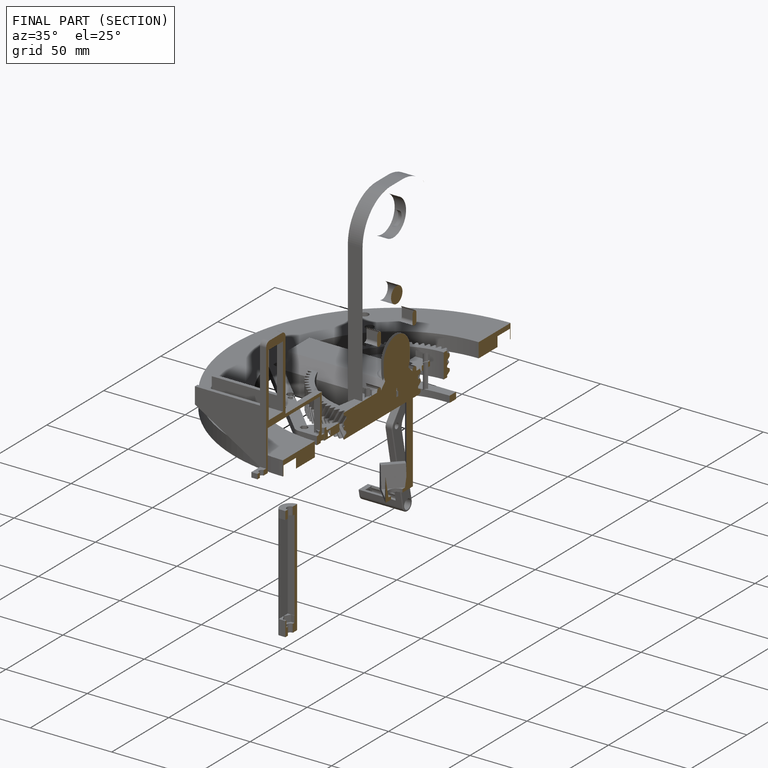
[diagram: finished part — half-section view (interior)]
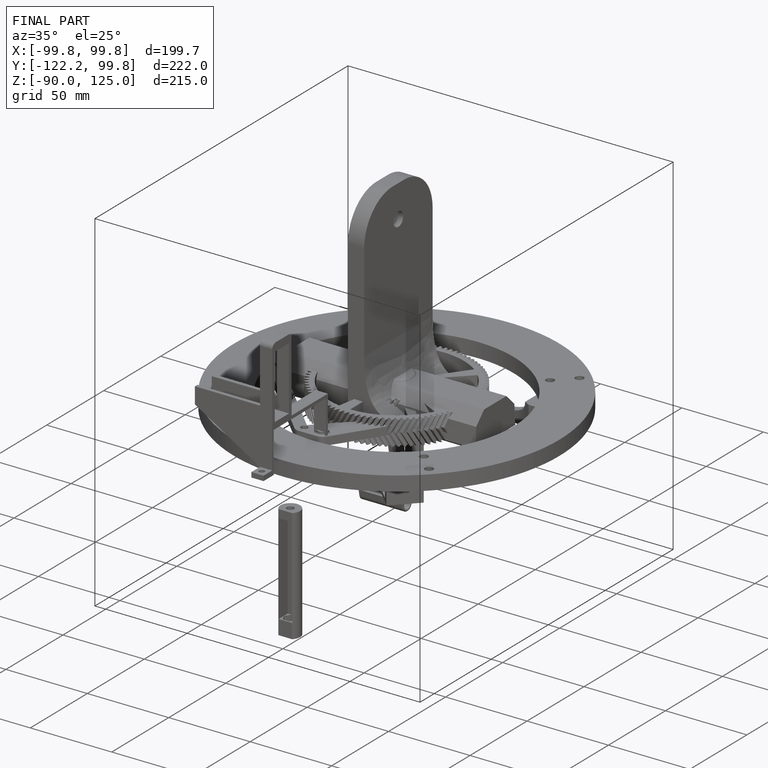
[diagram: finished part — iso view with bounding-box wireframe]
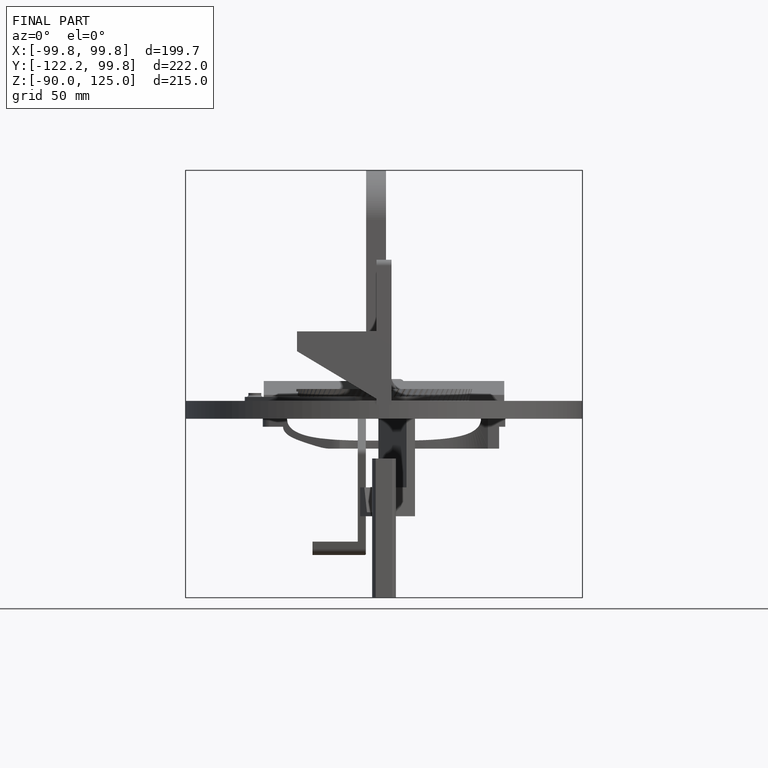
[diagram: finished part — front view with bounding-box wireframe]
